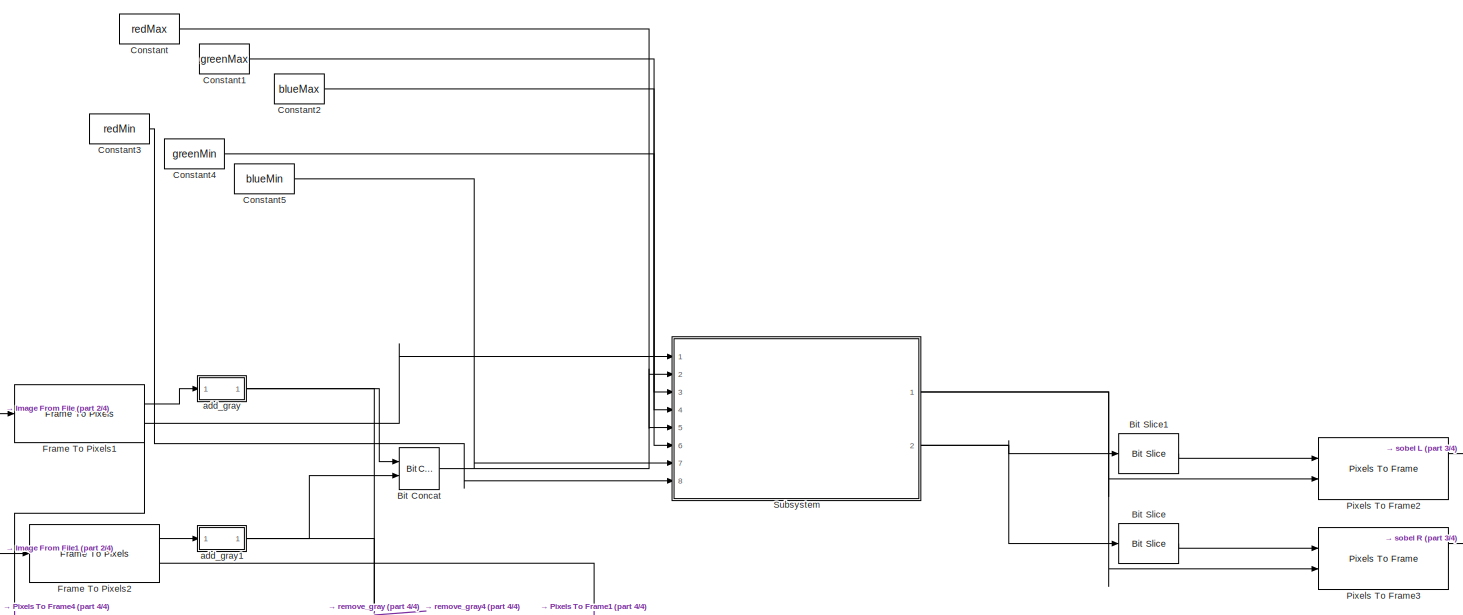
[diagram: root canvas - part 1/4, full width, top band]
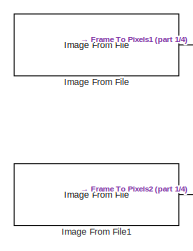
[diagram: root canvas - part 2/4, middle left region]
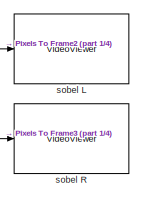
[diagram: root canvas - part 3/4, middle right region]
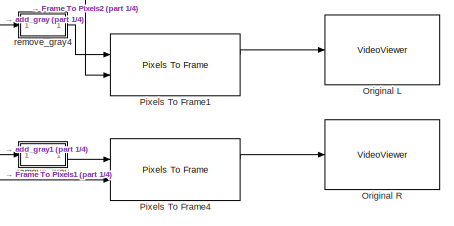
[diagram: root canvas - part 4/4, bottom center region]
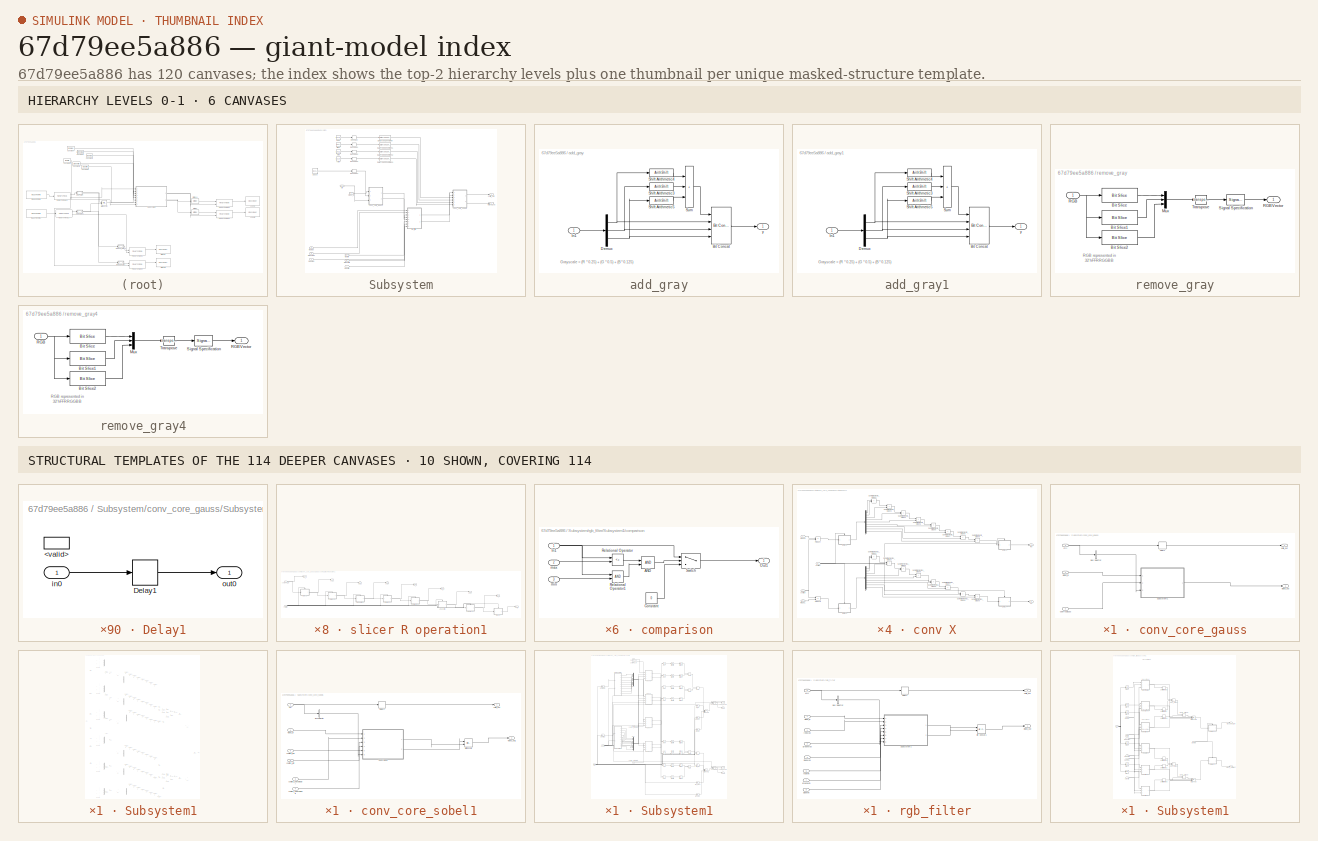
[diagram: thumbnail index - top-2 hierarchy levels (6 canvases) + 10 structural-template representatives of the remaining 114 canvases]
MODEL slx_67d79ee5a886
KIND model
CONFIG AbsTol = auto
CONFIG EnableMultiTasking = off
CONFIG FixedStep = auto
CONFIG MaxStep = auto
CONFIG MinStep = auto
CONFIG RelTol = 1e-3
CONFIG SampleTimeConstraint = Unconstrained
CONFIG SolverName = VariableStepAuto
CONFIG StartTime = 0.0
CONFIG StopTime = 10.0
BLOCK [Reference] Bit Concat  REF=hdlsllib/Logic and Bit
Operations/Bit Concat
  Ports = [2, 1]
  SourceBlock = hdlsllib/Logic and Bit\nOperations/Bit Concat
  SourceProductBaseCode = SL
  SourceType = Bit Concat
BLOCK [Reference] Bit Slice  REF=hdlsllib/Logic and Bit
Operations/Bit Slice
  Ports = [1, 1]
  SourceBlock = hdlsllib/Logic and Bit\nOperations/Bit Slice
  SourceProductBaseCode = SL
  SourceType = Bit Slice
BLOCK [Reference] Bit Slice1  REF=hdlsllib/Logic and Bit
Operations/Bit Slice
  Ports = [1, 1]
  SourceBlock = hdlsllib/Logic and Bit\nOperations/Bit Slice
  SourceProductBaseCode = SL
  SourceType = Bit Slice
BLOCK [Constant] Constant
  OutDataTypeStr = uint8
  SampleTime = -1
  Value = redMax
BLOCK [Constant] Constant1
  OutDataTypeStr = uint8
  SampleTime = -1
  Value = greenMax
BLOCK [Constant] Constant2
  OutDataTypeStr = uint8
  SampleTime = -1
  Value = blueMax
BLOCK [Constant] Constant3
  LockScale = on
  OutDataTypeStr = uint8
  SampleTime = -1
  Value = redMin
BLOCK [Constant] Constant4
  LockScale = on
  OutDataTypeStr = uint8
  SampleTime = -1
  Value = greenMin
BLOCK [Constant] Constant5
  LockScale = on
  OutDataTypeStr = uint8
  SampleTime = -1
  Value = blueMin
BLOCK [Reference] Frame To Pixels1  REF=visionhdlio/Frame To Pixels
  Ports = [1, 2]
  SourceBlock = visionhdlio/Frame To Pixels
  SourceProductBaseCode = VT
  SourceType = Frame To Pixels
BLOCK [Reference] Frame To Pixels2  REF=visionhdlio/Frame To Pixels
  Ports = [1, 2]
  SourceBlock = visionhdlio/Frame To Pixels
  SourceProductBaseCode = VT
  SourceType = Frame To Pixels
BLOCK [Reference] Image From File  REF=visionsources/Image From File
  Ports = [0, 1]
  SourceBlock = visionsources/Image From File
  SourceProductBaseCode = VP
  SourceType = Image From File
  Tag = vipblks_nd
BLOCK [Reference] Image From File1  REF=visionsources/Image From File
  Ports = [0, 1]
  SourceBlock = visionsources/Image From File
  SourceProductBaseCode = VP
  SourceType = Image From File
  Tag = vipblks_nd
BLOCK [VideoViewer] Original L
  FigPos = [949 630 562 322]
  Ports = [1]
  ScopeSpecificationString = vipscopes.VideoViewerScopeCfg('CurrentConfiguration', extmgr.ConfigurationSet(extmgr.Configuration('Core','General UI',true),extmgr.Configuration('Core','Source UI',true),extmgr.Configuration('Sources','WiredSimulink',true),extmgr.Configuration('Sources','Simulink',false),extmgr.Configuration('Sources','Workspace',false),extmgr.Configuration('Sources','File',false),extmgr.Configuration('Sources','...<+579ch>
  colormapValue = gray(256)
BLOCK [VideoViewer] Original R
  FigPos = [342 581 485 298]
  Ports = [1]
  ScopeSpecificationString = vipscopes.VideoViewerScopeCfg('CurrentConfiguration', extmgr.ConfigurationSet(extmgr.Configuration('Core','General UI',true),extmgr.Configuration('Core','Source UI',true),extmgr.Configuration('Sources','WiredSimulink',true),extmgr.Configuration('Sources','Simulink',false),extmgr.Configuration('Sources','Workspace',false),extmgr.Configuration('Sources','File',false),extmgr.Configuration('Sources','...<+608ch>
  colormapValue = gray(256)
BLOCK [Reference] Pixels To Frame1  REF=visionhdlio/Pixels To Frame
  Ports = [2, 2]
  SourceBlock = visionhdlio/Pixels To Frame
  SourceProductBaseCode = VT
  SourceType = Pixels To Frame
BLOCK [Reference] Pixels To Frame2  REF=visionhdlio/Pixels To Frame
  Ports = [2, 2]
  SourceBlock = visionhdlio/Pixels To Frame
  SourceProductBaseCode = VT
  SourceType = Pixels To Frame
BLOCK [Reference] Pixels To Frame3  REF=visionhdlio/Pixels To Frame
  Ports = [2, 2]
  SourceBlock = visionhdlio/Pixels To Frame
  SourceProductBaseCode = VT
  SourceType = Pixels To Frame
BLOCK [Reference] Pixels To Frame4  REF=visionhdlio/Pixels To Frame
  Ports = [2, 2]
  SourceBlock = visionhdlio/Pixels To Frame
  SourceProductBaseCode = VT
  SourceType = Pixels To Frame
BLOCK [SubSystem] Subsystem
  Ports = [8, 2]
  RequestExecContextInheritance = off
  TreatAsAtomicUnit = on
BLOCK [DataTypeConversion] Subsystem/Data Type Conversion
  OutDataTypeStr = int8
  RndMeth = Floor
  SaturateOnIntegerOverflow = off
BLOCK [DataTypeConversion] Subsystem/Data Type Conversion1
  OutDataTypeStr = int8
  RndMeth = Floor
  SaturateOnIntegerOverflow = off
BLOCK [DataTypeConversion] Subsystem/Data Type Conversion2
  OutDataTypeStr = int8
  RndMeth = Floor
  SaturateOnIntegerOverflow = off
BLOCK [DataTypeConversion] Subsystem/Data Type Conversion3
  OutDataTypeStr = int8
  RndMeth = Floor
  SaturateOnIntegerOverflow = off
BLOCK [Reshape] Subsystem/Reshape
  Ports = [1, 1]
BLOCK [Reshape] Subsystem/Reshape1
  Ports = [1, 1]
BLOCK [Reshape] Subsystem/Reshape2
  Ports = [1, 1]
BLOCK [Reshape] Subsystem/Reshape3
  Ports = [1, 1]
BLOCK [Reshape] Subsystem/Reshape4
  Ports = [1, 1]
BLOCK [Inport] Subsystem/blueMax
  OutDataTypeStr = uint8
  Port = 4
  PortDimensions = 1
  SampleTime = 2.77039007092199e-06
BLOCK [Inport] Subsystem/blueMin
  OutDataTypeStr = uint8
  Port = 7
  PortDimensions = 1
  SampleTime = 2.77039007092199e-06
BLOCK [SubSystem] Subsystem/conv_core_gauss
  Ports = [3, 2]
  RequestExecContextInheritance = off
BLOCK [BusSelector] Subsystem/conv_core_gauss/Bus Selector
  OutputSignals = valid
  Ports = [1, 1]
BLOCK [Delay] Subsystem/conv_core_gauss/Delay1
  InitialCondition = 0
  InputPortMap = u0
  Ports = [1, 1]
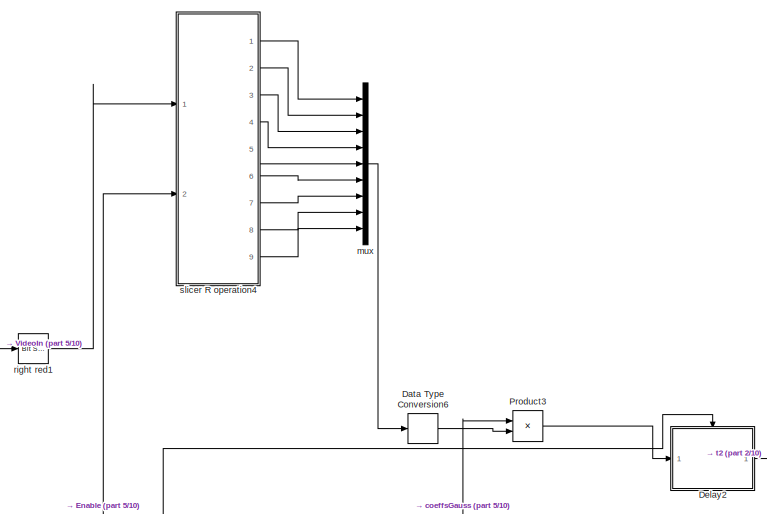
[diagram: Subsystem/conv_core_gauss/Subsystem1 - part 1/10, top left region]
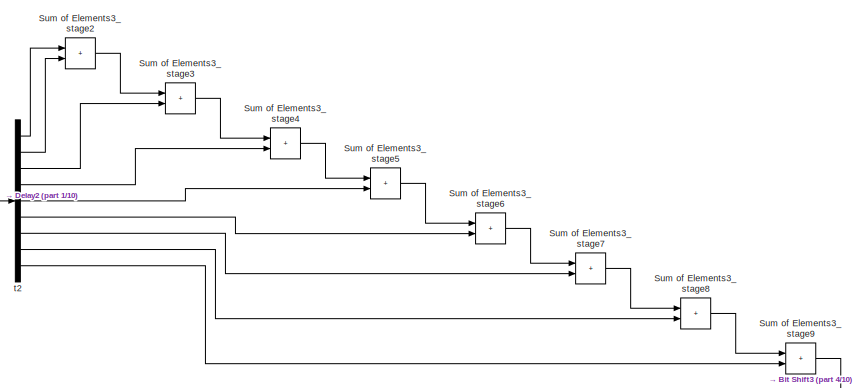
[diagram: Subsystem/conv_core_gauss/Subsystem1 - part 2/10, top center region]
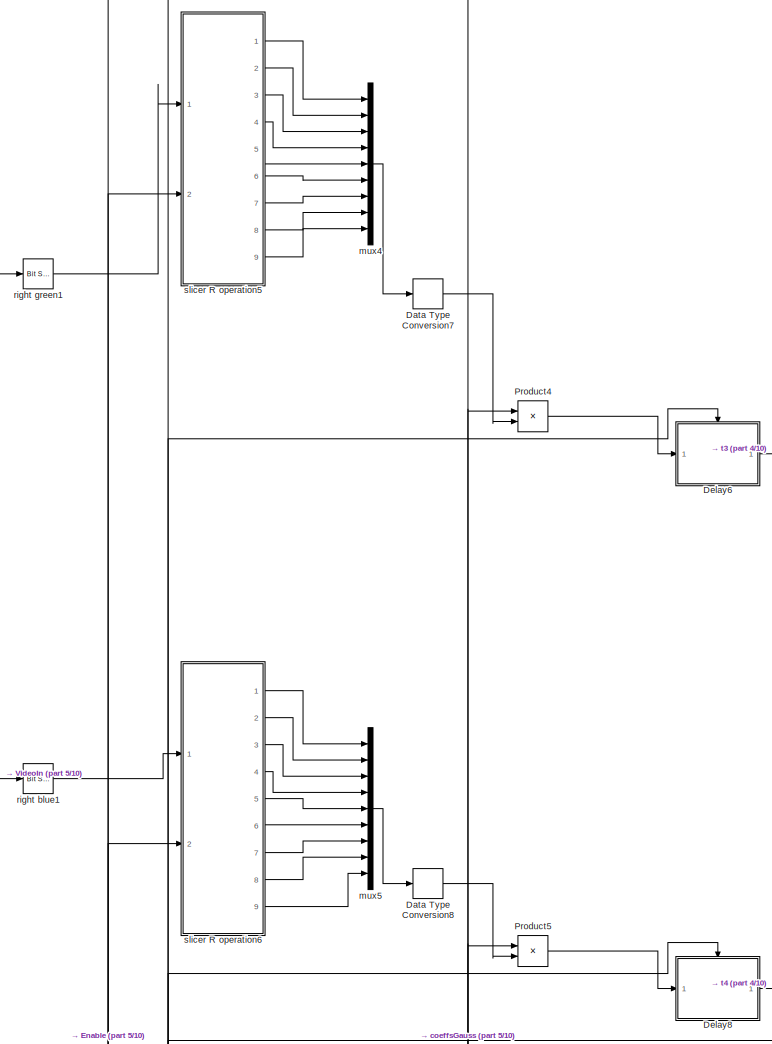
[diagram: Subsystem/conv_core_gauss/Subsystem1 - part 3/10, middle left region]
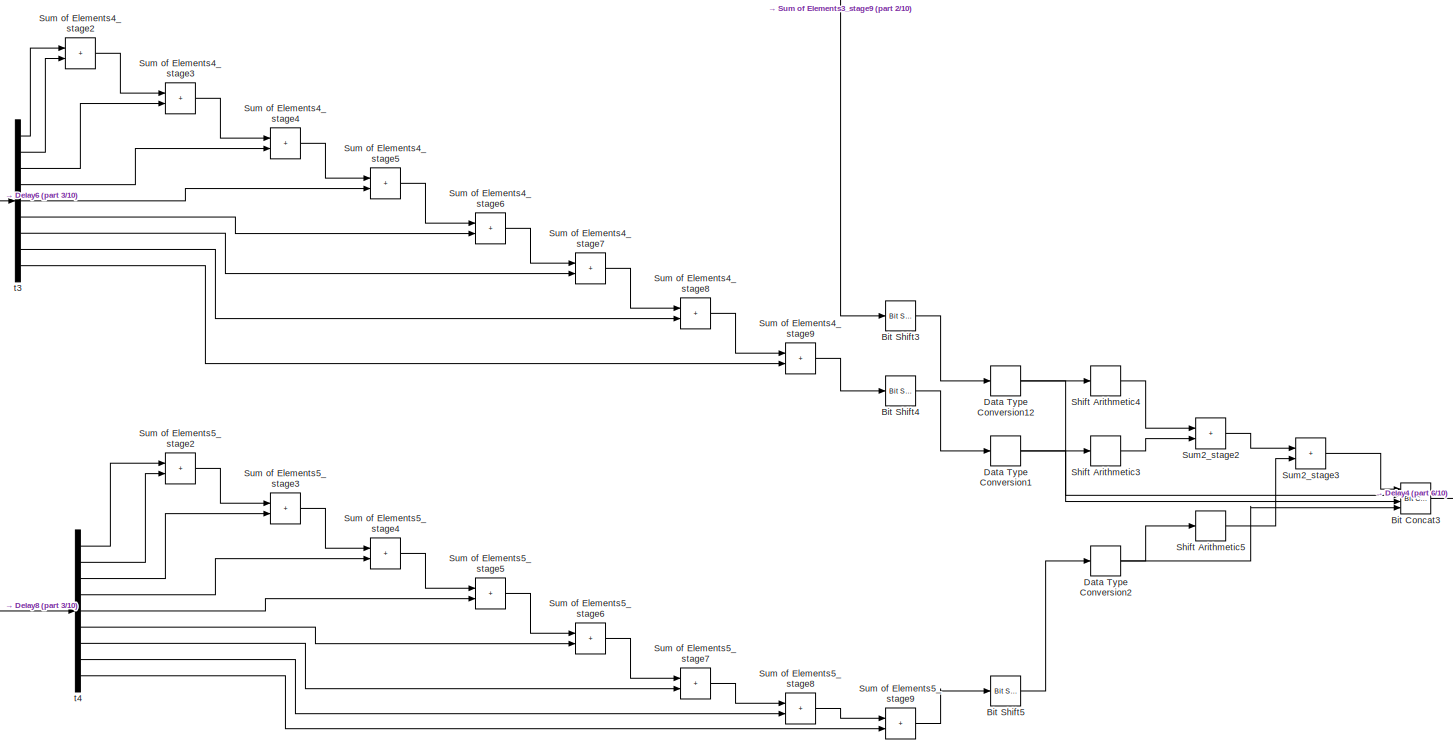
[diagram: Subsystem/conv_core_gauss/Subsystem1 - part 4/10, central region]
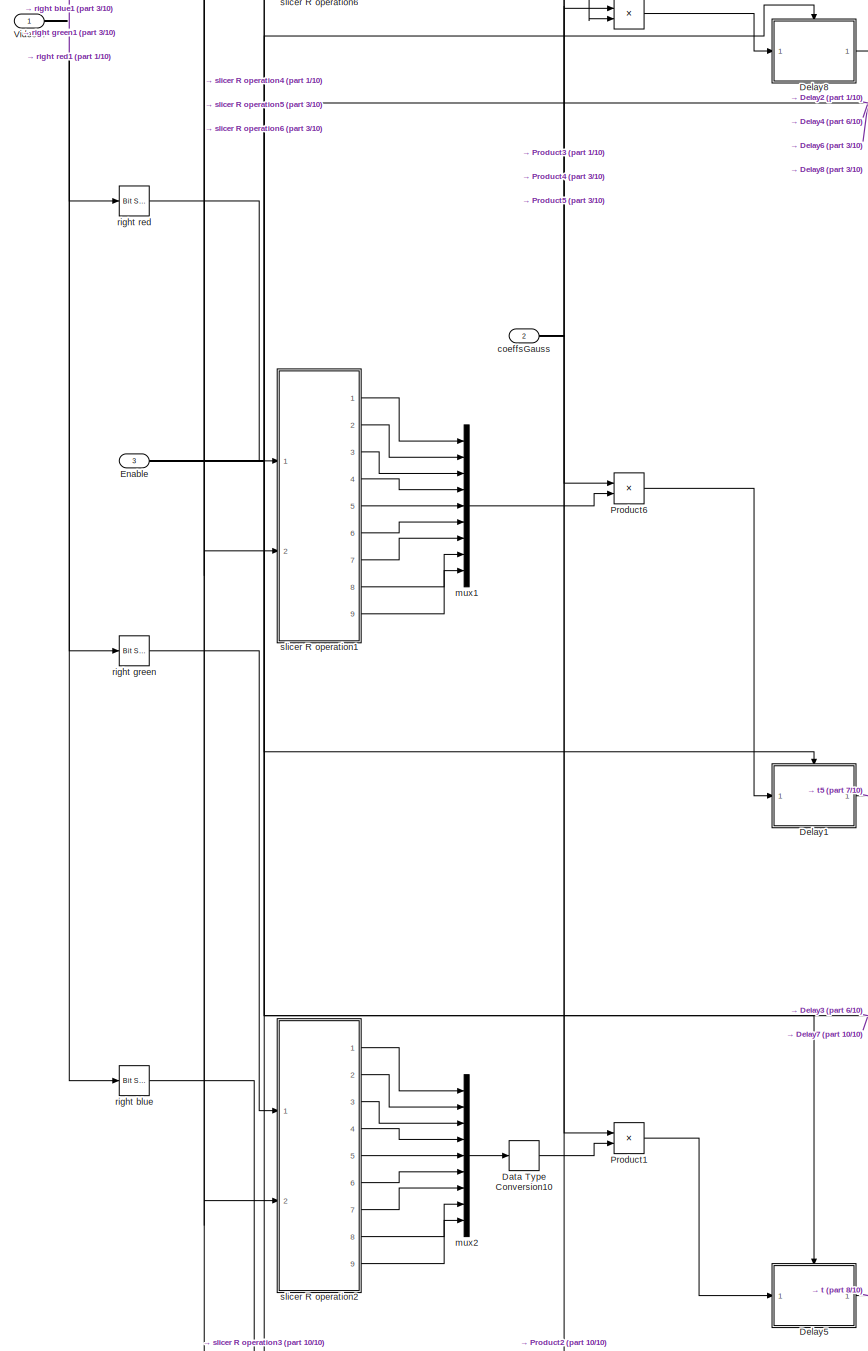
[diagram: Subsystem/conv_core_gauss/Subsystem1 - part 5/10, middle left region]
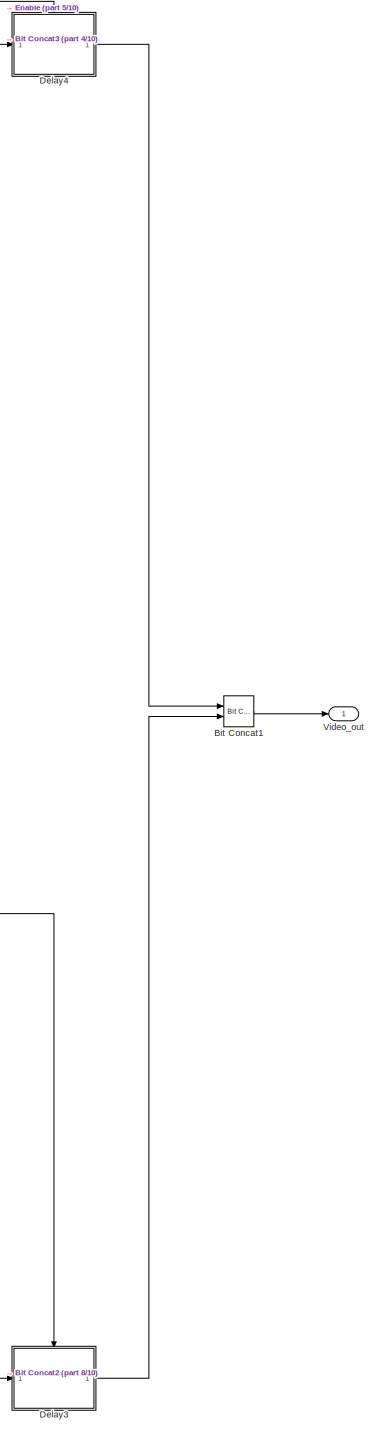
[diagram: Subsystem/conv_core_gauss/Subsystem1 - part 6/10, bottom right region]
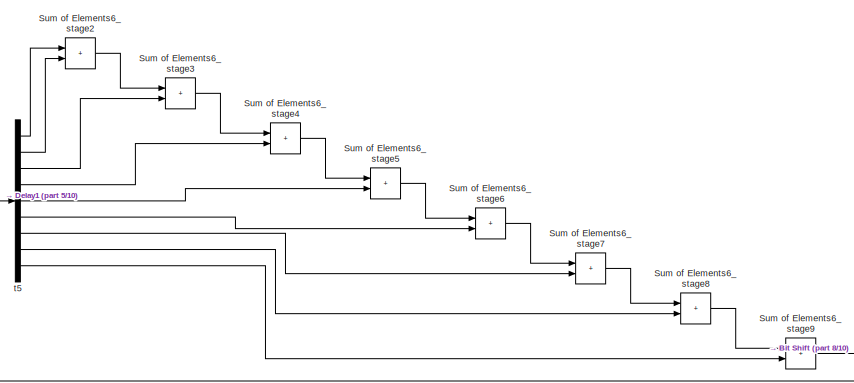
[diagram: Subsystem/conv_core_gauss/Subsystem1 - part 7/10, bottom center region]
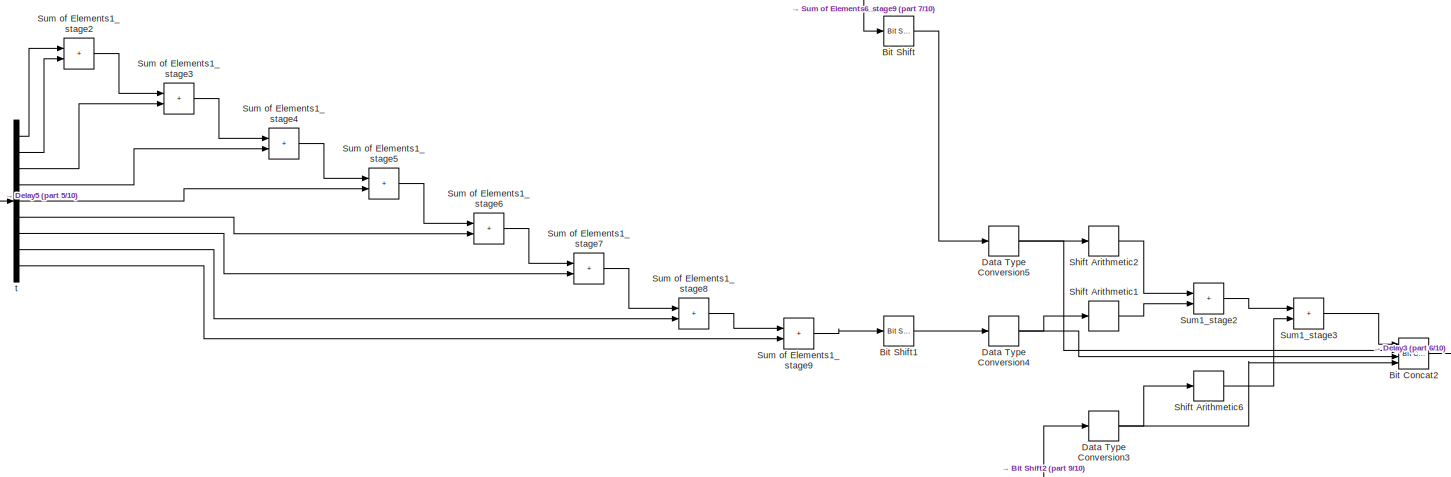
[diagram: Subsystem/conv_core_gauss/Subsystem1 - part 8/10, bottom center region]
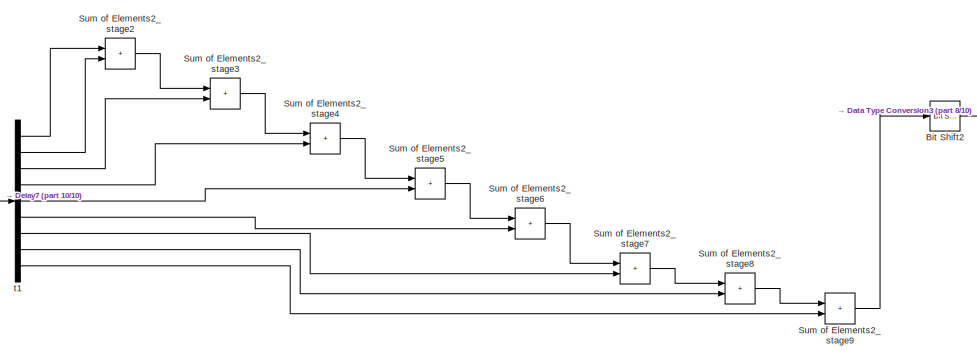
[diagram: Subsystem/conv_core_gauss/Subsystem1 - part 9/10, bottom center region]
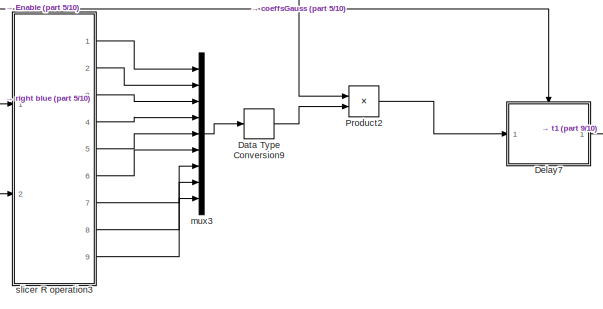
[diagram: Subsystem/conv_core_gauss/Subsystem1 - part 10/10, bottom left region]
BLOCK [SubSystem] Subsystem/conv_core_gauss/Subsystem1
  Ports = [3, 1]
  RequestExecContextInheritance = off
BLOCK [Reference] Subsystem/conv_core_gauss/Subsystem1/Bit Concat1  REF=hdlsllib/Logic and Bit
Operations/Bit Concat
  Ports = [2, 1]
  SourceBlock = hdlsllib/Logic and Bit\nOperations/Bit Concat
  SourceProductBaseCode = SL
  SourceType = Bit Concat
BLOCK [Reference] Subsystem/conv_core_gauss/Subsystem1/Bit Concat2  REF=hdlsllib/Logic and Bit
Operations/Bit Concat
  Ports = [4, 1]
  SourceBlock = hdlsllib/Logic and Bit\nOperations/Bit Concat
  SourceProductBaseCode = SL
  SourceType = Bit Concat
BLOCK [Reference] Subsystem/conv_core_gauss/Subsystem1/Bit Concat3  REF=hdlsllib/Logic and Bit
Operations/Bit Concat
  Ports = [4, 1]
  SourceBlock = hdlsllib/Logic and Bit\nOperations/Bit Concat
  SourceProductBaseCode = SL
  SourceType = Bit Concat
BLOCK [Reference] Subsystem/conv_core_gauss/Subsystem1/Bit Shift  REF=hdlsllib/Logic and Bit
Operations/Bit Shift
  Ports = [1, 1]
  SourceBlock = hdlsllib/Logic and Bit\nOperations/Bit Shift
  SourceProductBaseCode = SL
  SourceType = Bit Shift
BLOCK [Reference] Subsystem/conv_core_gauss/Subsystem1/Bit Shift1  REF=hdlsllib/Logic and Bit
Operations/Bit Shift
  Ports = [1, 1]
  SourceBlock = hdlsllib/Logic and Bit\nOperations/Bit Shift
  SourceProductBaseCode = SL
  SourceType = Bit Shift
BLOCK [Reference] Subsystem/conv_core_gauss/Subsystem1/Bit Shift2  REF=hdlsllib/Logic and Bit
Operations/Bit Shift
  Ports = [1, 1]
  SourceBlock = hdlsllib/Logic and Bit\nOperations/Bit Shift
  SourceProductBaseCode = SL
  SourceType = Bit Shift
BLOCK [Reference] Subsystem/conv_core_gauss/Subsystem1/Bit Shift3  REF=hdlsllib/Logic and Bit
Operations/Bit Shift
  Ports = [1, 1]
  SourceBlock = hdlsllib/Logic and Bit\nOperations/Bit Shift
  SourceProductBaseCode = SL
  SourceType = Bit Shift
BLOCK [Reference] Subsystem/conv_core_gauss/Subsystem1/Bit Shift4  REF=hdlsllib/Logic and Bit
Operations/Bit Shift
  Ports = [1, 1]
  SourceBlock = hdlsllib/Logic and Bit\nOperations/Bit Shift
  SourceProductBaseCode = SL
  SourceType = Bit Shift
BLOCK [Reference] Subsystem/conv_core_gauss/Subsystem1/Bit Shift5  REF=hdlsllib/Logic and Bit
Operations/Bit Shift
  Ports = [1, 1]
  SourceBlock = hdlsllib/Logic and Bit\nOperations/Bit Shift
  SourceProductBaseCode = SL
  SourceType = Bit Shift
BLOCK [DataTypeConversion] Subsystem/conv_core_gauss/Subsystem1/Data Type Conversion1
  OutDataTypeStr = uint8
  RndMeth = Floor
  SampleTime = 2.77039007092199e-06
  SaturateOnIntegerOverflow = off
BLOCK [DataTypeConversion] Subsystem/conv_core_gauss/Subsystem1/Data Type Conversion10
  OutDataTypeStr = uint8
  RndMeth = Floor
  SampleTime = 2.77039007092199e-06
  SaturateOnIntegerOverflow = off
BLOCK [DataTypeConversion] Subsystem/conv_core_gauss/Subsystem1/Data Type Conversion12
  OutDataTypeStr = uint8
  RndMeth = Floor
  SampleTime = 2.77039007092199e-06
  SaturateOnIntegerOverflow = off
BLOCK [DataTypeConversion] Subsystem/conv_core_gauss/Subsystem1/Data Type Conversion2
  OutDataTypeStr = uint8
  RndMeth = Floor
  SampleTime = 2.77039007092199e-06
  SaturateOnIntegerOverflow = off
BLOCK [DataTypeConversion] Subsystem/conv_core_gauss/Subsystem1/Data Type Conversion3
  OutDataTypeStr = uint8
  RndMeth = Floor
  SampleTime = 2.77039007092199e-06
  SaturateOnIntegerOverflow = off
BLOCK [DataTypeConversion] Subsystem/conv_core_gauss/Subsystem1/Data Type Conversion4
  OutDataTypeStr = uint8
  RndMeth = Floor
  SampleTime = 2.77039007092199e-06
  SaturateOnIntegerOverflow = off
BLOCK [DataTypeConversion] Subsystem/conv_core_gauss/Subsystem1/Data Type Conversion5
  OutDataTypeStr = uint8
  RndMeth = Floor
  SampleTime = 2.77039007092199e-06
  SaturateOnIntegerOverflow = off
BLOCK [DataTypeConversion] Subsystem/conv_core_gauss/Subsystem1/Data Type Conversion6
  OutDataTypeStr = uint8
  RndMeth = Floor
  SampleTime = 2.77039007092199e-06
  SaturateOnIntegerOverflow = off
BLOCK [DataTypeConversion] Subsystem/conv_core_gauss/Subsystem1/Data Type Conversion7
  OutDataTypeStr = uint8
  RndMeth = Floor
  SampleTime = 2.77039007092199e-06
  SaturateOnIntegerOverflow = off
BLOCK [DataTypeConversion] Subsystem/conv_core_gauss/Subsystem1/Data Type Conversion8
  OutDataTypeStr = uint8
  RndMeth = Floor
  SampleTime = 2.77039007092199e-06
  SaturateOnIntegerOverflow = off
BLOCK [DataTypeConversion] Subsystem/conv_core_gauss/Subsystem1/Data Type Conversion9
  OutDataTypeStr = uint8
  RndMeth = Floor
  SampleTime = 2.77039007092199e-06
  SaturateOnIntegerOverflow = off
BLOCK [SubSystem] Subsystem/conv_core_gauss/Subsystem1/Delay1
  MinAlgLoopOccurrences = on
  Ports = [1, 1, 1]
  RequestExecContextInheritance = off
BLOCK [EnablePort] Subsystem/conv_core_gauss/Subsystem1/Delay1/<valid>
  OutDataTypeStr = boolean
  Ports = []
BLOCK [Delay] Subsystem/conv_core_gauss/Subsystem1/Delay1/Delay1
  DelayLength = double(1)
  InitialCondition = 0
  InputPortMap = u0
  Ports = [1, 1]
BLOCK [Inport] Subsystem/conv_core_gauss/Subsystem1/Delay1/in0
  OutDataTypeStr = fixdt(0,16,0,'DataTypeOverride', 'Off')
  PortDimensions = [9]
  SampleTime = 2.77039007092199e-06
BLOCK [Outport] Subsystem/conv_core_gauss/Subsystem1/Delay1/out0
  InitialOutput = 0
  OutDataTypeStr = uint16
  PortDimensions = [9]
  SampleTime = 2.77039007092199e-06
BLOCK [SubSystem] Subsystem/conv_core_gauss/Subsystem1/Delay2
  MinAlgLoopOccurrences = on
  Ports = [1, 1, 1]
  RequestExecContextInheritance = off
BLOCK [EnablePort] Subsystem/conv_core_gauss/Subsystem1/Delay2/<valid>
  OutDataTypeStr = boolean
  Ports = []
BLOCK [Delay] Subsystem/conv_core_gauss/Subsystem1/Delay2/Delay2
  DelayLength = double(1)
  InitialCondition = 0
  InputPortMap = u0
  Ports = [1, 1]
BLOCK [Inport] Subsystem/conv_core_gauss/Subsystem1/Delay2/in0
  OutDataTypeStr = fixdt(0,16,0,'DataTypeOverride', 'Off')
  PortDimensions = [9]
  SampleTime = 2.77039007092199e-06
BLOCK [Outport] Subsystem/conv_core_gauss/Subsystem1/Delay2/out0
  InitialOutput = 0
  OutDataTypeStr = uint16
  PortDimensions = [9]
  SampleTime = 2.77039007092199e-06
BLOCK [SubSystem] Subsystem/conv_core_gauss/Subsystem1/Delay3
  MinAlgLoopOccurrences = on
  Ports = [1, 1, 1]
  RequestExecContextInheritance = off
BLOCK [EnablePort] Subsystem/conv_core_gauss/Subsystem1/Delay3/<valid>
  OutDataTypeStr = boolean
  Ports = []
BLOCK [Delay] Subsystem/conv_core_gauss/Subsystem1/Delay3/Delay3
  DelayLength = double(1)
  InitialCondition = 0
  InputPortMap = u0
  Ports = [1, 1]
BLOCK [Inport] Subsystem/conv_core_gauss/Subsystem1/Delay3/in0
  OutDataTypeStr = fixdt(0,32,0,'DataTypeOverride', 'Off')
  SampleTime = 2.77039007092199e-06
BLOCK [Outport] Subsystem/conv_core_gauss/Subsystem1/Delay3/out0
  InitialOutput = 0
  OutDataTypeStr = uint32
  SampleTime = 2.77039007092199e-06
BLOCK [SubSystem] Subsystem/conv_core_gauss/Subsystem1/Delay4
  MinAlgLoopOccurrences = on
  Ports = [1, 1, 1]
  RequestExecContextInheritance = off
BLOCK [EnablePort] Subsystem/conv_core_gauss/Subsystem1/Delay4/<valid>
  OutDataTypeStr = boolean
  Ports = []
BLOCK [Delay] Subsystem/conv_core_gauss/Subsystem1/Delay4/Delay4
  DelayLength = double(1)
  InitialCondition = 0
  InputPortMap = u0
  Ports = [1, 1]
BLOCK [Inport] Subsystem/conv_core_gauss/Subsystem1/Delay4/in0
  OutDataTypeStr = fixdt(0,32,0,'DataTypeOverride', 'Off')
  SampleTime = 2.77039007092199e-06
BLOCK [Outport] Subsystem/conv_core_gauss/Subsystem1/Delay4/out0
  InitialOutput = 0
  OutDataTypeStr = uint32
  SampleTime = 2.77039007092199e-06
BLOCK [SubSystem] Subsystem/conv_core_gauss/Subsystem1/Delay5
  MinAlgLoopOccurrences = on
  Ports = [1, 1, 1]
  RequestExecContextInheritance = off
BLOCK [EnablePort] Subsystem/conv_core_gauss/Subsystem1/Delay5/<valid>
  OutDataTypeStr = boolean
  Ports = []
BLOCK [Delay] Subsystem/conv_core_gauss/Subsystem1/Delay5/Delay5
  DelayLength = double(1)
  InitialCondition = 0
  InputPortMap = u0
  Ports = [1, 1]
BLOCK [Inport] Subsystem/conv_core_gauss/Subsystem1/Delay5/in0
  OutDataTypeStr = fixdt(0,16,0,'DataTypeOverride', 'Off')
  PortDimensions = [9]
  SampleTime = 2.77039007092199e-06
BLOCK [Outport] Subsystem/conv_core_gauss/Subsystem1/Delay5/out0
  InitialOutput = 0
  OutDataTypeStr = uint16
  PortDimensions = [9]
  SampleTime = 2.77039007092199e-06
BLOCK [SubSystem] Subsystem/conv_core_gauss/Subsystem1/Delay6
  MinAlgLoopOccurrences = on
  Ports = [1, 1, 1]
  RequestExecContextInheritance = off
BLOCK [EnablePort] Subsystem/conv_core_gauss/Subsystem1/Delay6/<valid>
  OutDataTypeStr = boolean
  Ports = []
BLOCK [Delay] Subsystem/conv_core_gauss/Subsystem1/Delay6/Delay6
  DelayLength = double(1)
  InitialCondition = 0
  InputPortMap = u0
  Ports = [1, 1]
BLOCK [Inport] Subsystem/conv_core_gauss/Subsystem1/Delay6/in0
  OutDataTypeStr = fixdt(0,16,0,'DataTypeOverride', 'Off')
  PortDimensions = [9]
  SampleTime = 2.77039007092199e-06
BLOCK [Outport] Subsystem/conv_core_gauss/Subsystem1/Delay6/out0
  InitialOutput = 0
  OutDataTypeStr = uint16
  PortDimensions = [9]
  SampleTime = 2.77039007092199e-06
BLOCK [SubSystem] Subsystem/conv_core_gauss/Subsystem1/Delay7
  MinAlgLoopOccurrences = on
  Ports = [1, 1, 1]
  RequestExecContextInheritance = off
BLOCK [EnablePort] Subsystem/conv_core_gauss/Subsystem1/Delay7/<valid>
  OutDataTypeStr = boolean
  Ports = []
BLOCK [Delay] Subsystem/conv_core_gauss/Subsystem1/Delay7/Delay7
  DelayLength = double(1)
  InitialCondition = 0
  InputPortMap = u0
  Ports = [1, 1]
BLOCK [Inport] Subsystem/conv_core_gauss/Subsystem1/Delay7/in0
  OutDataTypeStr = fixdt(0,16,0,'DataTypeOverride', 'Off')
  PortDimensions = [9]
  SampleTime = 2.77039007092199e-06
BLOCK [Outport] Subsystem/conv_core_gauss/Subsystem1/Delay7/out0
  InitialOutput = 0
  OutDataTypeStr = uint16
  PortDimensions = [9]
  SampleTime = 2.77039007092199e-06
BLOCK [SubSystem] Subsystem/conv_core_gauss/Subsystem1/Delay8
  MinAlgLoopOccurrences = on
  Ports = [1, 1, 1]
  RequestExecContextInheritance = off
BLOCK [EnablePort] Subsystem/conv_core_gauss/Subsystem1/Delay8/<valid>
  OutDataTypeStr = boolean
  Ports = []
BLOCK [Delay] Subsystem/conv_core_gauss/Subsystem1/Delay8/Delay8
  DelayLength = double(1)
  InitialCondition = 0
  InputPortMap = u0
  Ports = [1, 1]
BLOCK [Inport] Subsystem/conv_core_gauss/Subsystem1/Delay8/in0
  OutDataTypeStr = fixdt(0,16,0,'DataTypeOverride', 'Off')
  PortDimensions = [9]
  SampleTime = 2.77039007092199e-06
BLOCK [Outport] Subsystem/conv_core_gauss/Subsystem1/Delay8/out0
  InitialOutput = 0
  OutDataTypeStr = uint16
  PortDimensions = [9]
  SampleTime = 2.77039007092199e-06
BLOCK [Inport] Subsystem/conv_core_gauss/Subsystem1/Enable
  OutDataTypeStr = boolean
  Port = 3
  SampleTime = 2.77039007092199e-06
BLOCK [Product] Subsystem/conv_core_gauss/Subsystem1/Product1
  Inputs = **
  OutDataTypeStr = uint16
  Ports = [2, 1]
  SampleTime = 2.77039007092199e-06
  SaturateOnIntegerOverflow = on
BLOCK [Product] Subsystem/conv_core_gauss/Subsystem1/Product2
  Inputs = **
  OutDataTypeStr = uint16
  Ports = [2, 1]
  SampleTime = 2.77039007092199e-06
  SaturateOnIntegerOverflow = on
BLOCK [Product] Subsystem/conv_core_gauss/Subsystem1/Product3
  Inputs = **
  OutDataTypeStr = uint16
  Ports = [2, 1]
  SampleTime = 2.77039007092199e-06
  SaturateOnIntegerOverflow = on
BLOCK [Product] Subsystem/conv_core_gauss/Subsystem1/Product4
  Inputs = **
  OutDataTypeStr = uint16
  Ports = [2, 1]
  SampleTime = 2.77039007092199e-06
  SaturateOnIntegerOverflow = on
BLOCK [Product] Subsystem/conv_core_gauss/Subsystem1/Product5
  Inputs = **
  OutDataTypeStr = uint16
  Ports = [2, 1]
  SampleTime = 2.77039007092199e-06
  SaturateOnIntegerOverflow = on
BLOCK [Product] Subsystem/conv_core_gauss/Subsystem1/Product6
  Inputs = **
  OutDataTypeStr = uint16
  Ports = [2, 1]
  SampleTime = 2.77039007092199e-06
  SaturateOnIntegerOverflow = on
BLOCK [ArithShift] Subsystem/conv_core_gauss/Subsystem1/Shift Arithmetic1
  BinPtShiftNumber = double(0)
  BitShiftNumber = 1
  InputPortMap = u0
  Ports = [1, 1]
BLOCK [ArithShift] Subsystem/conv_core_gauss/Subsystem1/Shift Arithmetic2
  BinPtShiftNumber = double(0)
  BitShiftNumber = 2
  InputPortMap = u0
  Ports = [1, 1]
BLOCK [ArithShift] Subsystem/conv_core_gauss/Subsystem1/Shift Arithmetic3
  BinPtShiftNumber = double(0)
  BitShiftNumber = 1
  InputPortMap = u0
  Ports = [1, 1]
BLOCK [ArithShift] Subsystem/conv_core_gauss/Subsystem1/Shift Arithmetic4
  BinPtShiftNumber = double(0)
  BitShiftNumber = 2
  InputPortMap = u0
  Ports = [1, 1]
BLOCK [ArithShift] Subsystem/conv_core_gauss/Subsystem1/Shift Arithmetic5
  BinPtShiftNumber = double(0)
  BitShiftNumber = 3
  InputPortMap = u0
  Ports = [1, 1]
BLOCK [ArithShift] Subsystem/conv_core_gauss/Subsystem1/Shift Arithmetic6
  BinPtShiftNumber = double(0)
  BitShiftNumber = 3
  InputPortMap = u0
  Ports = [1, 1]
BLOCK [Sum] Subsystem/conv_core_gauss/Subsystem1/Sum of Elements1_stage2
  AccumDataTypeStr = uint32
  IconShape = rectangular
  OutDataTypeStr = uint32
  Ports = [2, 1]
  SampleTime = 2.77039007092199e-06
  SaturateOnIntegerOverflow = on
BLOCK [Sum] Subsystem/conv_core_gauss/Subsystem1/Sum of Elements1_stage3
  AccumDataTypeStr = uint32
  IconShape = rectangular
  OutDataTypeStr = uint32
  Ports = [2, 1]
  SampleTime = 2.77039007092199e-06
  SaturateOnIntegerOverflow = on
BLOCK [Sum] Subsystem/conv_core_gauss/Subsystem1/Sum of Elements1_stage4
  AccumDataTypeStr = uint32
  IconShape = rectangular
  OutDataTypeStr = uint32
  Ports = [2, 1]
  SampleTime = 2.77039007092199e-06
  SaturateOnIntegerOverflow = on
BLOCK [Sum] Subsystem/conv_core_gauss/Subsystem1/Sum of Elements1_stage5
  AccumDataTypeStr = uint32
  IconShape = rectangular
  OutDataTypeStr = uint32
  Ports = [2, 1]
  SampleTime = 2.77039007092199e-06
  SaturateOnIntegerOverflow = on
BLOCK [Sum] Subsystem/conv_core_gauss/Subsystem1/Sum of Elements1_stage6
  AccumDataTypeStr = uint32
  IconShape = rectangular
  OutDataTypeStr = uint32
  Ports = [2, 1]
  SampleTime = 2.77039007092199e-06
  SaturateOnIntegerOverflow = on
BLOCK [Sum] Subsystem/conv_core_gauss/Subsystem1/Sum of Elements1_stage7
  AccumDataTypeStr = uint32
  IconShape = rectangular
  OutDataTypeStr = uint32
  Ports = [2, 1]
  SampleTime = 2.77039007092199e-06
  SaturateOnIntegerOverflow = on
BLOCK [Sum] Subsystem/conv_core_gauss/Subsystem1/Sum of Elements1_stage8
  AccumDataTypeStr = uint32
  IconShape = rectangular
  OutDataTypeStr = uint32
  Ports = [2, 1]
  SampleTime = 2.77039007092199e-06
  SaturateOnIntegerOverflow = on
BLOCK [Sum] Subsystem/conv_core_gauss/Subsystem1/Sum of Elements1_stage9
  AccumDataTypeStr = uint32
  IconShape = rectangular
  OutDataTypeStr = uint32
  Ports = [2, 1]
  SampleTime = 2.77039007092199e-06
  SaturateOnIntegerOverflow = on
BLOCK [Sum] Subsystem/conv_core_gauss/Subsystem1/Sum of Elements2_stage2
  AccumDataTypeStr = uint32
  IconShape = rectangular
  OutDataTypeStr = uint32
  Ports = [2, 1]
  SampleTime = 2.77039007092199e-06
  SaturateOnIntegerOverflow = on
BLOCK [Sum] Subsystem/conv_core_gauss/Subsystem1/Sum of Elements2_stage3
  AccumDataTypeStr = uint32
  IconShape = rectangular
  OutDataTypeStr = uint32
  Ports = [2, 1]
  SampleTime = 2.77039007092199e-06
  SaturateOnIntegerOverflow = on
BLOCK [Sum] Subsystem/conv_core_gauss/Subsystem1/Sum of Elements2_stage4
  AccumDataTypeStr = uint32
  IconShape = rectangular
  OutDataTypeStr = uint32
  Ports = [2, 1]
  SampleTime = 2.77039007092199e-06
  SaturateOnIntegerOverflow = on
BLOCK [Sum] Subsystem/conv_core_gauss/Subsystem1/Sum of Elements2_stage5
  AccumDataTypeStr = uint32
  IconShape = rectangular
  OutDataTypeStr = uint32
  Ports = [2, 1]
  SampleTime = 2.77039007092199e-06
  SaturateOnIntegerOverflow = on
BLOCK [Sum] Subsystem/conv_core_gauss/Subsystem1/Sum of Elements2_stage6
  AccumDataTypeStr = uint32
  IconShape = rectangular
  OutDataTypeStr = uint32
  Ports = [2, 1]
  SampleTime = 2.77039007092199e-06
  SaturateOnIntegerOverflow = on
BLOCK [Sum] Subsystem/conv_core_gauss/Subsystem1/Sum of Elements2_stage7
  AccumDataTypeStr = uint32
  IconShape = rectangular
  OutDataTypeStr = uint32
  Ports = [2, 1]
  SampleTime = 2.77039007092199e-06
  SaturateOnIntegerOverflow = on
BLOCK [Sum] Subsystem/conv_core_gauss/Subsystem1/Sum of Elements2_stage8
  AccumDataTypeStr = uint32
  IconShape = rectangular
  OutDataTypeStr = uint32
  Ports = [2, 1]
  SampleTime = 2.77039007092199e-06
  SaturateOnIntegerOverflow = on
BLOCK [Sum] Subsystem/conv_core_gauss/Subsystem1/Sum of Elements2_stage9
  AccumDataTypeStr = uint32
  IconShape = rectangular
  OutDataTypeStr = uint32
  Ports = [2, 1]
  SampleTime = 2.77039007092199e-06
  SaturateOnIntegerOverflow = on
BLOCK [Sum] Subsystem/conv_core_gauss/Subsystem1/Sum of Elements3_stage2
  AccumDataTypeStr = uint32
  IconShape = rectangular
  OutDataTypeStr = uint32
  Ports = [2, 1]
  SampleTime = 2.77039007092199e-06
  SaturateOnIntegerOverflow = on
BLOCK [Sum] Subsystem/conv_core_gauss/Subsystem1/Sum of Elements3_stage3
  AccumDataTypeStr = uint32
  IconShape = rectangular
  OutDataTypeStr = uint32
  Ports = [2, 1]
  SampleTime = 2.77039007092199e-06
  SaturateOnIntegerOverflow = on
BLOCK [Sum] Subsystem/conv_core_gauss/Subsystem1/Sum of Elements3_stage4
  AccumDataTypeStr = uint32
  IconShape = rectangular
  OutDataTypeStr = uint32
  Ports = [2, 1]
  SampleTime = 2.77039007092199e-06
  SaturateOnIntegerOverflow = on
BLOCK [Sum] Subsystem/conv_core_gauss/Subsystem1/Sum of Elements3_stage5
  AccumDataTypeStr = uint32
  IconShape = rectangular
  OutDataTypeStr = uint32
  Ports = [2, 1]
  SampleTime = 2.77039007092199e-06
  SaturateOnIntegerOverflow = on
BLOCK [Sum] Subsystem/conv_core_gauss/Subsystem1/Sum of Elements3_stage6
  AccumDataTypeStr = uint32
  IconShape = rectangular
  OutDataTypeStr = uint32
  Ports = [2, 1]
  SampleTime = 2.77039007092199e-06
  SaturateOnIntegerOverflow = on
BLOCK [Sum] Subsystem/conv_core_gauss/Subsystem1/Sum of Elements3_stage7
  AccumDataTypeStr = uint32
  IconShape = rectangular
  OutDataTypeStr = uint32
  Ports = [2, 1]
  SampleTime = 2.77039007092199e-06
  SaturateOnIntegerOverflow = on
BLOCK [Sum] Subsystem/conv_core_gauss/Subsystem1/Sum of Elements3_stage8
  AccumDataTypeStr = uint32
  IconShape = rectangular
  OutDataTypeStr = uint32
  Ports = [2, 1]
  SampleTime = 2.77039007092199e-06
  SaturateOnIntegerOverflow = on
BLOCK [Sum] Subsystem/conv_core_gauss/Subsystem1/Sum of Elements3_stage9
  AccumDataTypeStr = uint32
  IconShape = rectangular
  OutDataTypeStr = uint32
  Ports = [2, 1]
  SampleTime = 2.77039007092199e-06
  SaturateOnIntegerOverflow = on
BLOCK [Sum] Subsystem/conv_core_gauss/Subsystem1/Sum of Elements4_stage2
  AccumDataTypeStr = uint32
  IconShape = rectangular
  OutDataTypeStr = uint32
  Ports = [2, 1]
  SampleTime = 2.77039007092199e-06
  SaturateOnIntegerOverflow = on
BLOCK [Sum] Subsystem/conv_core_gauss/Subsystem1/Sum of Elements4_stage3
  AccumDataTypeStr = uint32
  IconShape = rectangular
  OutDataTypeStr = uint32
  Ports = [2, 1]
  SampleTime = 2.77039007092199e-06
  SaturateOnIntegerOverflow = on
BLOCK [Sum] Subsystem/conv_core_gauss/Subsystem1/Sum of Elements4_stage4
  AccumDataTypeStr = uint32
  IconShape = rectangular
  OutDataTypeStr = uint32
  Ports = [2, 1]
  SampleTime = 2.77039007092199e-06
  SaturateOnIntegerOverflow = on
BLOCK [Sum] Subsystem/conv_core_gauss/Subsystem1/Sum of Elements4_stage5
  AccumDataTypeStr = uint32
  IconShape = rectangular
  OutDataTypeStr = uint32
  Ports = [2, 1]
  SampleTime = 2.77039007092199e-06
  SaturateOnIntegerOverflow = on
BLOCK [Sum] Subsystem/conv_core_gauss/Subsystem1/Sum of Elements4_stage6
  AccumDataTypeStr = uint32
  IconShape = rectangular
  OutDataTypeStr = uint32
  Ports = [2, 1]
  SampleTime = 2.77039007092199e-06
  SaturateOnIntegerOverflow = on
BLOCK [Sum] Subsystem/conv_core_gauss/Subsystem1/Sum of Elements4_stage7
  AccumDataTypeStr = uint32
  IconShape = rectangular
  OutDataTypeStr = uint32
  Ports = [2, 1]
  SampleTime = 2.77039007092199e-06
  SaturateOnIntegerOverflow = on
BLOCK [Sum] Subsystem/conv_core_gauss/Subsystem1/Sum of Elements4_stage8
  AccumDataTypeStr = uint32
  IconShape = rectangular
  OutDataTypeStr = uint32
  Ports = [2, 1]
  SampleTime = 2.77039007092199e-06
  SaturateOnIntegerOverflow = on
BLOCK [Sum] Subsystem/conv_core_gauss/Subsystem1/Sum of Elements4_stage9
  AccumDataTypeStr = uint32
  IconShape = rectangular
  OutDataTypeStr = uint32
  Ports = [2, 1]
  SampleTime = 2.77039007092199e-06
  SaturateOnIntegerOverflow = on
BLOCK [Sum] Subsystem/conv_core_gauss/Subsystem1/Sum of Elements5_stage2
  AccumDataTypeStr = uint32
  IconShape = rectangular
  OutDataTypeStr = uint32
  Ports = [2, 1]
  SampleTime = 2.77039007092199e-06
  SaturateOnIntegerOverflow = on
BLOCK [Sum] Subsystem/conv_core_gauss/Subsystem1/Sum of Elements5_stage3
  AccumDataTypeStr = uint32
  IconShape = rectangular
  OutDataTypeStr = uint32
  Ports = [2, 1]
  SampleTime = 2.77039007092199e-06
  SaturateOnIntegerOverflow = on
BLOCK [Sum] Subsystem/conv_core_gauss/Subsystem1/Sum of Elements5_stage4
  AccumDataTypeStr = uint32
  IconShape = rectangular
  OutDataTypeStr = uint32
  Ports = [2, 1]
  SampleTime = 2.77039007092199e-06
  SaturateOnIntegerOverflow = on
BLOCK [Sum] Subsystem/conv_core_gauss/Subsystem1/Sum of Elements5_stage5
  AccumDataTypeStr = uint32
  IconShape = rectangular
  OutDataTypeStr = uint32
  Ports = [2, 1]
  SampleTime = 2.77039007092199e-06
  SaturateOnIntegerOverflow = on
BLOCK [Sum] Subsystem/conv_core_gauss/Subsystem1/Sum of Elements5_stage6
  AccumDataTypeStr = uint32
  IconShape = rectangular
  OutDataTypeStr = uint32
  Ports = [2, 1]
  SampleTime = 2.77039007092199e-06
  SaturateOnIntegerOverflow = on
BLOCK [Sum] Subsystem/conv_core_gauss/Subsystem1/Sum of Elements5_stage7
  AccumDataTypeStr = uint32
  IconShape = rectangular
  OutDataTypeStr = uint32
  Ports = [2, 1]
  SampleTime = 2.77039007092199e-06
  SaturateOnIntegerOverflow = on
BLOCK [Sum] Subsystem/conv_core_gauss/Subsystem1/Sum of Elements5_stage8
  AccumDataTypeStr = uint32
  IconShape = rectangular
  OutDataTypeStr = uint32
  Ports = [2, 1]
  SampleTime = 2.77039007092199e-06
  SaturateOnIntegerOverflow = on
BLOCK [Sum] Subsystem/conv_core_gauss/Subsystem1/Sum of Elements5_stage9
  AccumDataTypeStr = uint32
  IconShape = rectangular
  OutDataTypeStr = uint32
  Ports = [2, 1]
  SampleTime = 2.77039007092199e-06
  SaturateOnIntegerOverflow = on
BLOCK [Sum] Subsystem/conv_core_gauss/Subsystem1/Sum of Elements6_stage2
  AccumDataTypeStr = uint32
  IconShape = rectangular
  OutDataTypeStr = uint32
  Ports = [2, 1]
  SampleTime = 2.77039007092199e-06
  SaturateOnIntegerOverflow = on
BLOCK [Sum] Subsystem/conv_core_gauss/Subsystem1/Sum of Elements6_stage3
  AccumDataTypeStr = uint32
  IconShape = rectangular
  OutDataTypeStr = uint32
  Ports = [2, 1]
  SampleTime = 2.77039007092199e-06
  SaturateOnIntegerOverflow = on
BLOCK [Sum] Subsystem/conv_core_gauss/Subsystem1/Sum of Elements6_stage4
  AccumDataTypeStr = uint32
  IconShape = rectangular
  OutDataTypeStr = uint32
  Ports = [2, 1]
  SampleTime = 2.77039007092199e-06
  SaturateOnIntegerOverflow = on
BLOCK [Sum] Subsystem/conv_core_gauss/Subsystem1/Sum of Elements6_stage5
  AccumDataTypeStr = uint32
  IconShape = rectangular
  OutDataTypeStr = uint32
  Ports = [2, 1]
  SampleTime = 2.77039007092199e-06
  SaturateOnIntegerOverflow = on
BLOCK [Sum] Subsystem/conv_core_gauss/Subsystem1/Sum of Elements6_stage6
  AccumDataTypeStr = uint32
  IconShape = rectangular
  OutDataTypeStr = uint32
  Ports = [2, 1]
  SampleTime = 2.77039007092199e-06
  SaturateOnIntegerOverflow = on
BLOCK [Sum] Subsystem/conv_core_gauss/Subsystem1/Sum of Elements6_stage7
  AccumDataTypeStr = uint32
  IconShape = rectangular
  OutDataTypeStr = uint32
  Ports = [2, 1]
  SampleTime = 2.77039007092199e-06
  SaturateOnIntegerOverflow = on
BLOCK [Sum] Subsystem/conv_core_gauss/Subsystem1/Sum of Elements6_stage8
  AccumDataTypeStr = uint32
  IconShape = rectangular
  OutDataTypeStr = uint32
  Ports = [2, 1]
  SampleTime = 2.77039007092199e-06
  SaturateOnIntegerOverflow = on
BLOCK [Sum] Subsystem/conv_core_gauss/Subsystem1/Sum of Elements6_stage9
  AccumDataTypeStr = uint32
  IconShape = rectangular
  OutDataTypeStr = uint32
  Ports = [2, 1]
  SampleTime = 2.77039007092199e-06
  SaturateOnIntegerOverflow = on
BLOCK [Sum] Subsystem/conv_core_gauss/Subsystem1/Sum1_stage2
  AccumDataTypeStr = uint8
  IconShape = rectangular
  OutDataTypeStr = uint8
  Ports = [2, 1]
  SampleTime = 2.77039007092199e-06
BLOCK [Sum] Subsystem/conv_core_gauss/Subsystem1/Sum1_stage3
  AccumDataTypeStr = uint8
  IconShape = rectangular
  OutDataTypeStr = uint8
  Ports = [2, 1]
  SampleTime = 2.77039007092199e-06
BLOCK [Sum] Subsystem/conv_core_gauss/Subsystem1/Sum2_stage2
  AccumDataTypeStr = uint8
  IconShape = rectangular
  OutDataTypeStr = uint8
  Ports = [2, 1]
  SampleTime = 2.77039007092199e-06
BLOCK [Sum] Subsystem/conv_core_gauss/Subsystem1/Sum2_stage3
  AccumDataTypeStr = uint8
  IconShape = rectangular
  OutDataTypeStr = uint8
  Ports = [2, 1]
  SampleTime = 2.77039007092199e-06
BLOCK [Inport] Subsystem/conv_core_gauss/Subsystem1/VideoIn
  OutDataTypeStr = fixdt(0, 64, 0)
  PortDimensions = 1
  SampleTime = 2.77039007092199e-06
BLOCK [Outport] Subsystem/conv_core_gauss/Subsystem1/Video_out
  InitialOutput = 0
  SampleTime = 2.77039007092199e-06
  VectorParamsAs1DForOutWhenUnconnected = off
BLOCK [Inport] Subsystem/conv_core_gauss/Subsystem1/coeffsGauss
  OutDataTypeStr = uint8
  Port = 2
  PortDimensions = [9]
  SampleTime = 2.77039007092199e-06
BLOCK [Mux] Subsystem/conv_core_gauss/Subsystem1/mux
  DisplayOption = bar
  Inputs = 9
  Ports = [9, 1]
BLOCK [Mux] Subsystem/conv_core_gauss/Subsystem1/mux1
  DisplayOption = bar
  Inputs = 9
  Ports = [9, 1]
BLOCK [Mux] Subsystem/conv_core_gauss/Subsystem1/mux2
  DisplayOption = bar
  Inputs = 9
  Ports = [9, 1]
BLOCK [Mux] Subsystem/conv_core_gauss/Subsystem1/mux3
  DisplayOption = bar
  Inputs = 9
  Ports = [9, 1]
BLOCK [Mux] Subsystem/conv_core_gauss/Subsystem1/mux4
  DisplayOption = bar
  Inputs = 9
  Ports = [9, 1]
BLOCK [Mux] Subsystem/conv_core_gauss/Subsystem1/mux5
  DisplayOption = bar
  Inputs = 9
  Ports = [9, 1]
BLOCK [Reference] Subsystem/conv_core_gauss/Subsystem1/right blue  REF=hdlsllib/Logic and Bit
Operations/Bit Slice
  Ports = [1, 1]
  SourceBlock = hdlsllib/Logic and Bit\nOperations/Bit Slice
  SourceProductBaseCode = SL
  SourceType = Bit Slice
BLOCK [Reference] Subsystem/conv_core_gauss/Subsystem1/right blue1  REF=hdlsllib/Logic and Bit
Operations/Bit Slice
  Ports = [1, 1]
  SourceBlock = hdlsllib/Logic and Bit\nOperations/Bit Slice
  SourceProductBaseCode = SL
  SourceType = Bit Slice
BLOCK [Reference] Subsystem/conv_core_gauss/Subsystem1/right green  REF=hdlsllib/Logic and Bit
Operations/Bit Slice
  Ports = [1, 1]
  SourceBlock = hdlsllib/Logic and Bit\nOperations/Bit Slice
  SourceProductBaseCode = SL
  SourceType = Bit Slice
BLOCK [Reference] Subsystem/conv_core_gauss/Subsystem1/right green1  REF=hdlsllib/Logic and Bit
Operations/Bit Slice
  Ports = [1, 1]
  SourceBlock = hdlsllib/Logic and Bit\nOperations/Bit Slice
  SourceProductBaseCode = SL
  SourceType = Bit Slice
BLOCK [Reference] Subsystem/conv_core_gauss/Subsystem1/right red  REF=hdlsllib/Logic and Bit
Operations/Bit Slice
  Ports = [1, 1]
  SourceBlock = hdlsllib/Logic and Bit\nOperations/Bit Slice
  SourceProductBaseCode = SL
  SourceType = Bit Slice
BLOCK [Reference] Subsystem/conv_core_gauss/Subsystem1/right red1  REF=hdlsllib/Logic and Bit
Operations/Bit Slice
  Ports = [1, 1]
  SourceBlock = hdlsllib/Logic and Bit\nOperations/Bit Slice
  SourceProductBaseCode = SL
  SourceType = Bit Slice
BLOCK [SubSystem] Subsystem/conv_core_gauss/Subsystem1/slicer R operation1
  Ports = [2, 9]
  RequestExecContextInheritance = off
BLOCK [Inport] Subsystem/conv_core_gauss/Subsystem1/slicer R operation1/<valid>
  OutDataTypeStr = boolean
  Port = 2
  SampleTime = 2.77039007092199e-06
BLOCK [SubSystem] Subsystem/conv_core_gauss/Subsystem1/slicer R operation1/Delay1
  MinAlgLoopOccurrences = on
  Ports = [1, 1, 1]
  RequestExecContextInheritance = off
BLOCK [EnablePort] Subsystem/conv_core_gauss/Subsystem1/slicer R operation1/Delay1/<valid>
  OutDataTypeStr = boolean
  Ports = []
BLOCK [Delay] Subsystem/conv_core_gauss/Subsystem1/slicer R operation1/Delay1/Delay1
  DelayLength = double(1)
  InitialCondition = 0
  InputPortMap = u0
  Ports = [1, 1]
BLOCK [Inport] Subsystem/conv_core_gauss/Subsystem1/slicer R operation1/Delay1/in0
  OutDataTypeStr = fixdt(0,8,0,'DataTypeOverride', 'Off')
  SampleTime = 2.77039007092199e-06
BLOCK [Outport] Subsystem/conv_core_gauss/Subsystem1/slicer R operation1/Delay1/out0
  InitialOutput = 0
  OutDataTypeStr = uint8
  SampleTime = 2.77039007092199e-06
BLOCK [SubSystem] Subsystem/conv_core_gauss/Subsystem1/slicer R operation1/Delay2
  MinAlgLoopOccurrences = on
  Ports = [1, 1, 1]
  RequestExecContextInheritance = off
BLOCK [EnablePort] Subsystem/conv_core_gauss/Subsystem1/slicer R operation1/Delay2/<valid>
  OutDataTypeStr = boolean
  Ports = []
BLOCK [Delay] Subsystem/conv_core_gauss/Subsystem1/slicer R operation1/Delay2/Delay2
  DelayLength = double(1)
  InitialCondition = 0
  InputPortMap = u0
  Ports = [1, 1]
BLOCK [Inport] Subsystem/conv_core_gauss/Subsystem1/slicer R operation1/Delay2/in0
  OutDataTypeStr = fixdt(0,8,0,'DataTypeOverride', 'Off')
  SampleTime = 2.77039007092199e-06
BLOCK [Outport] Subsystem/conv_core_gauss/Subsystem1/slicer R operation1/Delay2/out0
  InitialOutput = 0
  OutDataTypeStr = uint8
  SampleTime = 2.77039007092199e-06
BLOCK [SubSystem] Subsystem/conv_core_gauss/Subsystem1/slicer R operation1/Delay3
  MinAlgLoopOccurrences = on
  Ports = [1, 1, 1]
  RequestExecContextInheritance = off
BLOCK [EnablePort] Subsystem/conv_core_gauss/Subsystem1/slicer R operation1/Delay3/<valid>
  OutDataTypeStr = boolean
  Ports = []
BLOCK [Delay] Subsystem/conv_core_gauss/Subsystem1/slicer R operation1/Delay3/Delay3
  DelayLength = double(1)
  InitialCondition = 0
  InputPortMap = u0
  Ports = [1, 1]
BLOCK [Inport] Subsystem/conv_core_gauss/Subsystem1/slicer R operation1/Delay3/in0
  OutDataTypeStr = fixdt(0,8,0,'DataTypeOverride', 'Off')
  SampleTime = 2.77039007092199e-06
BLOCK [Outport] Subsystem/conv_core_gauss/Subsystem1/slicer R operation1/Delay3/out0
  InitialOutput = 0
  OutDataTypeStr = uint8
  SampleTime = 2.77039007092199e-06
BLOCK [SubSystem] Subsystem/conv_core_gauss/Subsystem1/slicer R operation1/Delay4
  MinAlgLoopOccurrences = on
  Ports = [1, 1, 1]
  RequestExecContextInheritance = off
BLOCK [EnablePort] Subsystem/conv_core_gauss/Subsystem1/slicer R operation1/Delay4/<valid>
  OutDataTypeStr = boolean
  Ports = []
BLOCK [Delay] Subsystem/conv_core_gauss/Subsystem1/slicer R operation1/Delay4/Delay4
  DelayLength = double(1)
  InitialCondition = 0
  InputPortMap = u0
  Ports = [1, 1]
BLOCK [Inport] Subsystem/conv_core_gauss/Subsystem1/slicer R operation1/Delay4/in0
  OutDataTypeStr = fixdt(0,8,0,'DataTypeOverride', 'Off')
  SampleTime = 2.77039007092199e-06
BLOCK [Outport] Subsystem/conv_core_gauss/Subsystem1/slicer R operation1/Delay4/out0
  InitialOutput = 0
  OutDataTypeStr = uint8
  SampleTime = 2.77039007092199e-06
BLOCK [SubSystem] Subsystem/conv_core_gauss/Subsystem1/slicer R operation1/Delay5
  MinAlgLoopOccurrences = on
  Ports = [1, 1, 1]
  RequestExecContextInheritance = off
BLOCK [EnablePort] Subsystem/conv_core_gauss/Subsystem1/slicer R operation1/Delay5/<valid>
  OutDataTypeStr = boolean
  Ports = []
BLOCK [Delay] Subsystem/conv_core_gauss/Subsystem1/slicer R operation1/Delay5/Delay5
  DelayLength = double(1)
  InitialCondition = 0
  InputPortMap = u0
  Ports = [1, 1]
BLOCK [Inport] Subsystem/conv_core_gauss/Subsystem1/slicer R operation1/Delay5/in0
  OutDataTypeStr = fixdt(0,8,0,'DataTypeOverride', 'Off')
  SampleTime = 2.77039007092199e-06
BLOCK [Outport] Subsystem/conv_core_gauss/Subsystem1/slicer R operation1/Delay5/out0
  InitialOutput = 0
  OutDataTypeStr = uint8
  SampleTime = 2.77039007092199e-06
BLOCK [SubSystem] Subsystem/conv_core_gauss/Subsystem1/slicer R operation1/Delay6
  MinAlgLoopOccurrences = on
  Ports = [1, 1, 1]
  RequestExecContextInheritance = off
BLOCK [EnablePort] Subsystem/conv_core_gauss/Subsystem1/slicer R operation1/Delay6/<valid>
  OutDataTypeStr = boolean
  Ports = []
BLOCK [Delay] Subsystem/conv_core_gauss/Subsystem1/slicer R operation1/Delay6/Delay6
  DelayLength = double(1)
  InitialCondition = 0
  InputPortMap = u0
  Ports = [1, 1]
BLOCK [Inport] Subsystem/conv_core_gauss/Subsystem1/slicer R operation1/Delay6/in0
  OutDataTypeStr = fixdt(0,8,0,'DataTypeOverride', 'Off')
  SampleTime = 2.77039007092199e-06
BLOCK [Outport] Subsystem/conv_core_gauss/Subsystem1/slicer R operation1/Delay6/out0
  InitialOutput = 0
  OutDataTypeStr = uint8
  SampleTime = 2.77039007092199e-06
BLOCK [SubSystem] Subsystem/conv_core_gauss/Subsystem1/slicer R operation1/Line buffer
  MinAlgLoopOccurrences = on
  Ports = [1, 1, 1]
  RequestExecContextInheritance = off
BLOCK [EnablePort] Subsystem/conv_core_gauss/Subsystem1/slicer R operation1/Line buffer/<valid>
  OutDataTypeStr = boolean
  Ports = []
BLOCK [Delay] Subsystem/conv_core_gauss/Subsystem1/slicer R operation1/Line buffer/Line buffer
  DelayLength = double(750)
  InitialCondition = 0
  InputPortMap = u0
  Ports = [1, 1]
BLOCK [Inport] Subsystem/conv_core_gauss/Subsystem1/slicer R operation1/Line buffer/in0
  OutDataTypeStr = fixdt(0,8,0,'DataTypeOverride', 'Off')
  SampleTime = 2.77039007092199e-06
BLOCK [Outport] Subsystem/conv_core_gauss/Subsystem1/slicer R operation1/Line buffer/out0
  InitialOutput = 0
  OutDataTypeStr = uint8
  SampleTime = 2.77039007092199e-06
BLOCK [SubSystem] Subsystem/conv_core_gauss/Subsystem1/slicer R operation1/Line buffer1
  MinAlgLoopOccurrences = on
  Ports = [1, 1, 1]
  RequestExecContextInheritance = off
BLOCK [EnablePort] Subsystem/conv_core_gauss/Subsystem1/slicer R operation1/Line buffer1/<valid>
  OutDataTypeStr = boolean
  Ports = []
BLOCK [Delay] Subsystem/conv_core_gauss/Subsystem1/slicer R operation1/Line buffer1/Line buffer1
  DelayLength = double(750)
  InitialCondition = 0
  InputPortMap = u0
  Ports = [1, 1]
BLOCK [Inport] Subsystem/conv_core_gauss/Subsystem1/slicer R operation1/Line buffer1/in0
  OutDataTypeStr = fixdt(0,8,0,'DataTypeOverride', 'Off')
  SampleTime = 2.77039007092199e-06
BLOCK [Outport] Subsystem/conv_core_gauss/Subsystem1/slicer R operation1/Line buffer1/out0
  InitialOutput = 0
  OutDataTypeStr = uint8
  SampleTime = 2.77039007092199e-06
BLOCK [Inport] Subsystem/conv_core_gauss/Subsystem1/slicer R operation1/channel_in
  OutDataTypeStr = uint8
  PortDimensions = 1
  SampleTime = 2.77039007092199e-06
BLOCK [Outport] Subsystem/conv_core_gauss/Subsystem1/slicer R operation1/out_1
  InitialOutput = 0
  SampleTime = 2.77039007092199e-06
  VectorParamsAs1DForOutWhenUnconnected = off
BLOCK [Outport] Subsystem/conv_core_gauss/Subsystem1/slicer R operation1/out_2
  InitialOutput = 0
  Port = 2
  SampleTime = 2.77039007092199e-06
  VectorParamsAs1DForOutWhenUnconnected = off
BLOCK [Outport] Subsystem/conv_core_gauss/Subsystem1/slicer R operation1/out_3
  InitialOutput = 0
  Port = 3
  SampleTime = 2.77039007092199e-06
  VectorParamsAs1DForOutWhenUnconnected = off
BLOCK [Outport] Subsystem/conv_core_gauss/Subsystem1/slicer R operation1/out_4
  InitialOutput = 0
  Port = 4
  SampleTime = 2.77039007092199e-06
  VectorParamsAs1DForOutWhenUnconnected = off
BLOCK [Outport] Subsystem/conv_core_gauss/Subsystem1/slicer R operation1/out_5
  InitialOutput = 0
  Port = 5
  SampleTime = 2.77039007092199e-06
  VectorParamsAs1DForOutWhenUnconnected = off
BLOCK [Outport] Subsystem/conv_core_gauss/Subsystem1/slicer R operation1/out_6
  InitialOutput = 0
  Port = 6
  SampleTime = 2.77039007092199e-06
  VectorParamsAs1DForOutWhenUnconnected = off
BLOCK [Outport] Subsystem/conv_core_gauss/Subsystem1/slicer R operation1/out_7
  InitialOutput = 0
  Port = 7
  SampleTime = 2.77039007092199e-06
  VectorParamsAs1DForOutWhenUnconnected = off
BLOCK [Outport] Subsystem/conv_core_gauss/Subsystem1/slicer R operation1/out_8
  InitialOutput = 0
  Port = 8
  SampleTime = 2.77039007092199e-06
  VectorParamsAs1DForOutWhenUnconnected = off
BLOCK [Outport] Subsystem/conv_core_gauss/Subsystem1/slicer R operation1/out_9
  InitialOutput = 0
  Port = 9
  SampleTime = 2.77039007092199e-06
  VectorParamsAs1DForOutWhenUnconnected = off
BLOCK [SubSystem] Subsystem/conv_core_gauss/Subsystem1/slicer R operation2
  Ports = [2, 9]
  RequestExecContextInheritance = off
BLOCK [Inport] Subsystem/conv_core_gauss/Subsystem1/slicer R operation2/<valid>
  OutDataTypeStr = boolean
  Port = 2
  SampleTime = 2.77039007092199e-06
BLOCK [SubSystem] Subsystem/conv_core_gauss/Subsystem1/slicer R operation2/Delay1
  MinAlgLoopOccurrences = on
  Ports = [1, 1, 1]
  RequestExecContextInheritance = off
BLOCK [EnablePort] Subsystem/conv_core_gauss/Subsystem1/slicer R operation2/Delay1/<valid>
  OutDataTypeStr = boolean
  Ports = []
BLOCK [Delay] Subsystem/conv_core_gauss/Subsystem1/slicer R operation2/Delay1/Delay1
  DelayLength = double(1)
  InitialCondition = 0
  InputPortMap = u0
  Ports = [1, 1]
BLOCK [Inport] Subsystem/conv_core_gauss/Subsystem1/slicer R operation2/Delay1/in0
  OutDataTypeStr = fixdt(0,8,0,'DataTypeOverride', 'Off')
  SampleTime = 2.77039007092199e-06
BLOCK [Outport] Subsystem/conv_core_gauss/Subsystem1/slicer R operation2/Delay1/out0
  InitialOutput = 0
  OutDataTypeStr = uint8
  SampleTime = 2.77039007092199e-06
BLOCK [SubSystem] Subsystem/conv_core_gauss/Subsystem1/slicer R operation2/Delay2
  MinAlgLoopOccurrences = on
  Ports = [1, 1, 1]
  RequestExecContextInheritance = off
BLOCK [EnablePort] Subsystem/conv_core_gauss/Subsystem1/slicer R operation2/Delay2/<valid>
  OutDataTypeStr = boolean
  Ports = []
BLOCK [Delay] Subsystem/conv_core_gauss/Subsystem1/slicer R operation2/Delay2/Delay2
  DelayLength = double(1)
  InitialCondition = 0
  InputPortMap = u0
  Ports = [1, 1]
BLOCK [Inport] Subsystem/conv_core_gauss/Subsystem1/slicer R operation2/Delay2/in0
  OutDataTypeStr = fixdt(0,8,0,'DataTypeOverride', 'Off')
  SampleTime = 2.77039007092199e-06
BLOCK [Outport] Subsystem/conv_core_gauss/Subsystem1/slicer R operation2/Delay2/out0
  InitialOutput = 0
  OutDataTypeStr = uint8
  SampleTime = 2.77039007092199e-06
BLOCK [SubSystem] Subsystem/conv_core_gauss/Subsystem1/slicer R operation2/Delay3
  MinAlgLoopOccurrences = on
  Ports = [1, 1, 1]
  RequestExecContextInheritance = off
BLOCK [EnablePort] Subsystem/conv_core_gauss/Subsystem1/slicer R operation2/Delay3/<valid>
  OutDataTypeStr = boolean
  Ports = []
BLOCK [Delay] Subsystem/conv_core_gauss/Subsystem1/slicer R operation2/Delay3/Delay3
  DelayLength = double(1)
  InitialCondition = 0
  InputPortMap = u0
  Ports = [1, 1]
BLOCK [Inport] Subsystem/conv_core_gauss/Subsystem1/slicer R operation2/Delay3/in0
  OutDataTypeStr = fixdt(0,8,0,'DataTypeOverride', 'Off')
  SampleTime = 2.77039007092199e-06
BLOCK [Outport] Subsystem/conv_core_gauss/Subsystem1/slicer R operation2/Delay3/out0
  InitialOutput = 0
  OutDataTypeStr = uint8
  SampleTime = 2.77039007092199e-06
BLOCK [SubSystem] Subsystem/conv_core_gauss/Subsystem1/slicer R operation2/Delay4
  MinAlgLoopOccurrences = on
  Ports = [1, 1, 1]
  RequestExecContextInheritance = off
BLOCK [EnablePort] Subsystem/conv_core_gauss/Subsystem1/slicer R operation2/Delay4/<valid>
  OutDataTypeStr = boolean
  Ports = []
BLOCK [Delay] Subsystem/conv_core_gauss/Subsystem1/slicer R operation2/Delay4/Delay4
  DelayLength = double(1)
  InitialCondition = 0
  InputPortMap = u0
  Ports = [1, 1]
BLOCK [Inport] Subsystem/conv_core_gauss/Subsystem1/slicer R operation2/Delay4/in0
  OutDataTypeStr = fixdt(0,8,0,'DataTypeOverride', 'Off')
  SampleTime = 2.77039007092199e-06
BLOCK [Outport] Subsystem/conv_core_gauss/Subsystem1/slicer R operation2/Delay4/out0
  InitialOutput = 0
  OutDataTypeStr = uint8
  SampleTime = 2.77039007092199e-06
BLOCK [SubSystem] Subsystem/conv_core_gauss/Subsystem1/slicer R operation2/Delay5
  MinAlgLoopOccurrences = on
  Ports = [1, 1, 1]
  RequestExecContextInheritance = off
BLOCK [EnablePort] Subsystem/conv_core_gauss/Subsystem1/slicer R operation2/Delay5/<valid>
  OutDataTypeStr = boolean
  Ports = []
BLOCK [Delay] Subsystem/conv_core_gauss/Subsystem1/slicer R operation2/Delay5/Delay5
  DelayLength = double(1)
  InitialCondition = 0
  InputPortMap = u0
  Ports = [1, 1]
BLOCK [Inport] Subsystem/conv_core_gauss/Subsystem1/slicer R operation2/Delay5/in0
  OutDataTypeStr = fixdt(0,8,0,'DataTypeOverride', 'Off')
  SampleTime = 2.77039007092199e-06
BLOCK [Outport] Subsystem/conv_core_gauss/Subsystem1/slicer R operation2/Delay5/out0
  InitialOutput = 0
  OutDataTypeStr = uint8
  SampleTime = 2.77039007092199e-06
BLOCK [SubSystem] Subsystem/conv_core_gauss/Subsystem1/slicer R operation2/Delay6
  MinAlgLoopOccurrences = on
  Ports = [1, 1, 1]
  RequestExecContextInheritance = off
BLOCK [EnablePort] Subsystem/conv_core_gauss/Subsystem1/slicer R operation2/Delay6/<valid>
  OutDataTypeStr = boolean
  Ports = []
BLOCK [Delay] Subsystem/conv_core_gauss/Subsystem1/slicer R operation2/Delay6/Delay6
  DelayLength = double(1)
  InitialCondition = 0
  InputPortMap = u0
  Ports = [1, 1]
BLOCK [Inport] Subsystem/conv_core_gauss/Subsystem1/slicer R operation2/Delay6/in0
  OutDataTypeStr = fixdt(0,8,0,'DataTypeOverride', 'Off')
  SampleTime = 2.77039007092199e-06
BLOCK [Outport] Subsystem/conv_core_gauss/Subsystem1/slicer R operation2/Delay6/out0
  InitialOutput = 0
  OutDataTypeStr = uint8
  SampleTime = 2.77039007092199e-06
BLOCK [SubSystem] Subsystem/conv_core_gauss/Subsystem1/slicer R operation2/Line buffer
  MinAlgLoopOccurrences = on
  Ports = [1, 1, 1]
  RequestExecContextInheritance = off
BLOCK [EnablePort] Subsystem/conv_core_gauss/Subsystem1/slicer R operation2/Line buffer/<valid>
  OutDataTypeStr = boolean
  Ports = []
BLOCK [Delay] Subsystem/conv_core_gauss/Subsystem1/slicer R operation2/Line buffer/Line buffer
  DelayLength = double(750)
  InitialCondition = 0
  InputPortMap = u0
  Ports = [1, 1]
BLOCK [Inport] Subsystem/conv_core_gauss/Subsystem1/slicer R operation2/Line buffer/in0
  OutDataTypeStr = fixdt(0,8,0,'DataTypeOverride', 'Off')
  SampleTime = 2.77039007092199e-06
BLOCK [Outport] Subsystem/conv_core_gauss/Subsystem1/slicer R operation2/Line buffer/out0
  InitialOutput = 0
  OutDataTypeStr = uint8
  SampleTime = 2.77039007092199e-06
BLOCK [SubSystem] Subsystem/conv_core_gauss/Subsystem1/slicer R operation2/Line buffer1
  MinAlgLoopOccurrences = on
  Ports = [1, 1, 1]
  RequestExecContextInheritance = off
BLOCK [EnablePort] Subsystem/conv_core_gauss/Subsystem1/slicer R operation2/Line buffer1/<valid>
  OutDataTypeStr = boolean
  Ports = []
BLOCK [Delay] Subsystem/conv_core_gauss/Subsystem1/slicer R operation2/Line buffer1/Line buffer1
  DelayLength = double(750)
  InitialCondition = 0
  InputPortMap = u0
  Ports = [1, 1]
BLOCK [Inport] Subsystem/conv_core_gauss/Subsystem1/slicer R operation2/Line buffer1/in0
  OutDataTypeStr = fixdt(0,8,0,'DataTypeOverride', 'Off')
  SampleTime = 2.77039007092199e-06
BLOCK [Outport] Subsystem/conv_core_gauss/Subsystem1/slicer R operation2/Line buffer1/out0
  InitialOutput = 0
  OutDataTypeStr = uint8
  SampleTime = 2.77039007092199e-06
BLOCK [Inport] Subsystem/conv_core_gauss/Subsystem1/slicer R operation2/channel_in
  OutDataTypeStr = uint8
  PortDimensions = 1
  SampleTime = 2.77039007092199e-06
BLOCK [Outport] Subsystem/conv_core_gauss/Subsystem1/slicer R operation2/out_1
  InitialOutput = 0
  SampleTime = 2.77039007092199e-06
  VectorParamsAs1DForOutWhenUnconnected = off
BLOCK [Outport] Subsystem/conv_core_gauss/Subsystem1/slicer R operation2/out_2
  InitialOutput = 0
  Port = 2
  SampleTime = 2.77039007092199e-06
  VectorParamsAs1DForOutWhenUnconnected = off
BLOCK [Outport] Subsystem/conv_core_gauss/Subsystem1/slicer R operation2/out_3
  InitialOutput = 0
  Port = 3
  SampleTime = 2.77039007092199e-06
  VectorParamsAs1DForOutWhenUnconnected = off
BLOCK [Outport] Subsystem/conv_core_gauss/Subsystem1/slicer R operation2/out_4
  InitialOutput = 0
  Port = 4
  SampleTime = 2.77039007092199e-06
  VectorParamsAs1DForOutWhenUnconnected = off
BLOCK [Outport] Subsystem/conv_core_gauss/Subsystem1/slicer R operation2/out_5
  InitialOutput = 0
  Port = 5
  SampleTime = 2.77039007092199e-06
  VectorParamsAs1DForOutWhenUnconnected = off
BLOCK [Outport] Subsystem/conv_core_gauss/Subsystem1/slicer R operation2/out_6
  InitialOutput = 0
  Port = 6
  SampleTime = 2.77039007092199e-06
  VectorParamsAs1DForOutWhenUnconnected = off
BLOCK [Outport] Subsystem/conv_core_gauss/Subsystem1/slicer R operation2/out_7
  InitialOutput = 0
  Port = 7
  SampleTime = 2.77039007092199e-06
  VectorParamsAs1DForOutWhenUnconnected = off
BLOCK [Outport] Subsystem/conv_core_gauss/Subsystem1/slicer R operation2/out_8
  InitialOutput = 0
  Port = 8
  SampleTime = 2.77039007092199e-06
  VectorParamsAs1DForOutWhenUnconnected = off
BLOCK [Outport] Subsystem/conv_core_gauss/Subsystem1/slicer R operation2/out_9
  InitialOutput = 0
  Port = 9
  SampleTime = 2.77039007092199e-06
  VectorParamsAs1DForOutWhenUnconnected = off
BLOCK [SubSystem] Subsystem/conv_core_gauss/Subsystem1/slicer R operation3
  Ports = [2, 9]
  RequestExecContextInheritance = off
BLOCK [Inport] Subsystem/conv_core_gauss/Subsystem1/slicer R operation3/<valid>
  OutDataTypeStr = boolean
  Port = 2
  SampleTime = 2.77039007092199e-06
BLOCK [SubSystem] Subsystem/conv_core_gauss/Subsystem1/slicer R operation3/Delay1
  MinAlgLoopOccurrences = on
  Ports = [1, 1, 1]
  RequestExecContextInheritance = off
BLOCK [EnablePort] Subsystem/conv_core_gauss/Subsystem1/slicer R operation3/Delay1/<valid>
  OutDataTypeStr = boolean
  Ports = []
BLOCK [Delay] Subsystem/conv_core_gauss/Subsystem1/slicer R operation3/Delay1/Delay1
  DelayLength = double(1)
  InitialCondition = 0
  InputPortMap = u0
  Ports = [1, 1]
BLOCK [Inport] Subsystem/conv_core_gauss/Subsystem1/slicer R operation3/Delay1/in0
  OutDataTypeStr = fixdt(0,8,0,'DataTypeOverride', 'Off')
  SampleTime = 2.77039007092199e-06
BLOCK [Outport] Subsystem/conv_core_gauss/Subsystem1/slicer R operation3/Delay1/out0
  InitialOutput = 0
  OutDataTypeStr = uint8
  SampleTime = 2.77039007092199e-06
BLOCK [SubSystem] Subsystem/conv_core_gauss/Subsystem1/slicer R operation3/Delay2
  MinAlgLoopOccurrences = on
  Ports = [1, 1, 1]
  RequestExecContextInheritance = off
BLOCK [EnablePort] Subsystem/conv_core_gauss/Subsystem1/slicer R operation3/Delay2/<valid>
  OutDataTypeStr = boolean
  Ports = []
BLOCK [Delay] Subsystem/conv_core_gauss/Subsystem1/slicer R operation3/Delay2/Delay2
  DelayLength = double(1)
  InitialCondition = 0
  InputPortMap = u0
  Ports = [1, 1]
BLOCK [Inport] Subsystem/conv_core_gauss/Subsystem1/slicer R operation3/Delay2/in0
  OutDataTypeStr = fixdt(0,8,0,'DataTypeOverride', 'Off')
  SampleTime = 2.77039007092199e-06
BLOCK [Outport] Subsystem/conv_core_gauss/Subsystem1/slicer R operation3/Delay2/out0
  InitialOutput = 0
  OutDataTypeStr = uint8
  SampleTime = 2.77039007092199e-06
BLOCK [SubSystem] Subsystem/conv_core_gauss/Subsystem1/slicer R operation3/Delay3
  MinAlgLoopOccurrences = on
  Ports = [1, 1, 1]
  RequestExecContextInheritance = off
BLOCK [EnablePort] Subsystem/conv_core_gauss/Subsystem1/slicer R operation3/Delay3/<valid>
  OutDataTypeStr = boolean
  Ports = []
BLOCK [Delay] Subsystem/conv_core_gauss/Subsystem1/slicer R operation3/Delay3/Delay3
  DelayLength = double(1)
  InitialCondition = 0
  InputPortMap = u0
  Ports = [1, 1]
BLOCK [Inport] Subsystem/conv_core_gauss/Subsystem1/slicer R operation3/Delay3/in0
  OutDataTypeStr = fixdt(0,8,0,'DataTypeOverride', 'Off')
  SampleTime = 2.77039007092199e-06
BLOCK [Outport] Subsystem/conv_core_gauss/Subsystem1/slicer R operation3/Delay3/out0
  InitialOutput = 0
  OutDataTypeStr = uint8
  SampleTime = 2.77039007092199e-06
BLOCK [SubSystem] Subsystem/conv_core_gauss/Subsystem1/slicer R operation3/Delay4
  MinAlgLoopOccurrences = on
  Ports = [1, 1, 1]
  RequestExecContextInheritance = off
BLOCK [EnablePort] Subsystem/conv_core_gauss/Subsystem1/slicer R operation3/Delay4/<valid>
  OutDataTypeStr = boolean
  Ports = []
BLOCK [Delay] Subsystem/conv_core_gauss/Subsystem1/slicer R operation3/Delay4/Delay4
  DelayLength = double(1)
  InitialCondition = 0
  InputPortMap = u0
  Ports = [1, 1]
BLOCK [Inport] Subsystem/conv_core_gauss/Subsystem1/slicer R operation3/Delay4/in0
  OutDataTypeStr = fixdt(0,8,0,'DataTypeOverride', 'Off')
  SampleTime = 2.77039007092199e-06
BLOCK [Outport] Subsystem/conv_core_gauss/Subsystem1/slicer R operation3/Delay4/out0
  InitialOutput = 0
  OutDataTypeStr = uint8
  SampleTime = 2.77039007092199e-06
BLOCK [SubSystem] Subsystem/conv_core_gauss/Subsystem1/slicer R operation3/Delay5
  MinAlgLoopOccurrences = on
  Ports = [1, 1, 1]
  RequestExecContextInheritance = off
BLOCK [EnablePort] Subsystem/conv_core_gauss/Subsystem1/slicer R operation3/Delay5/<valid>
  OutDataTypeStr = boolean
  Ports = []
BLOCK [Delay] Subsystem/conv_core_gauss/Subsystem1/slicer R operation3/Delay5/Delay5
  DelayLength = double(1)
  InitialCondition = 0
  InputPortMap = u0
  Ports = [1, 1]
BLOCK [Inport] Subsystem/conv_core_gauss/Subsystem1/slicer R operation3/Delay5/in0
  OutDataTypeStr = fixdt(0,8,0,'DataTypeOverride', 'Off')
  SampleTime = 2.77039007092199e-06
BLOCK [Outport] Subsystem/conv_core_gauss/Subsystem1/slicer R operation3/Delay5/out0
  InitialOutput = 0
  OutDataTypeStr = uint8
  SampleTime = 2.77039007092199e-06
BLOCK [SubSystem] Subsystem/conv_core_gauss/Subsystem1/slicer R operation3/Delay6
  MinAlgLoopOccurrences = on
  Ports = [1, 1, 1]
  RequestExecContextInheritance = off
BLOCK [EnablePort] Subsystem/conv_core_gauss/Subsystem1/slicer R operation3/Delay6/<valid>
  OutDataTypeStr = boolean
  Ports = []
BLOCK [Delay] Subsystem/conv_core_gauss/Subsystem1/slicer R operation3/Delay6/Delay6
  DelayLength = double(1)
  InitialCondition = 0
  InputPortMap = u0
  Ports = [1, 1]
BLOCK [Inport] Subsystem/conv_core_gauss/Subsystem1/slicer R operation3/Delay6/in0
  OutDataTypeStr = fixdt(0,8,0,'DataTypeOverride', 'Off')
  SampleTime = 2.77039007092199e-06
BLOCK [Outport] Subsystem/conv_core_gauss/Subsystem1/slicer R operation3/Delay6/out0
  InitialOutput = 0
  OutDataTypeStr = uint8
  SampleTime = 2.77039007092199e-06
BLOCK [SubSystem] Subsystem/conv_core_gauss/Subsystem1/slicer R operation3/Line buffer
  MinAlgLoopOccurrences = on
  Ports = [1, 1, 1]
  RequestExecContextInheritance = off
BLOCK [EnablePort] Subsystem/conv_core_gauss/Subsystem1/slicer R operation3/Line buffer/<valid>
  OutDataTypeStr = boolean
  Ports = []
BLOCK [Delay] Subsystem/conv_core_gauss/Subsystem1/slicer R operation3/Line buffer/Line buffer
  DelayLength = double(750)
  InitialCondition = 0
  InputPortMap = u0
  Ports = [1, 1]
BLOCK [Inport] Subsystem/conv_core_gauss/Subsystem1/slicer R operation3/Line buffer/in0
  OutDataTypeStr = fixdt(0,8,0,'DataTypeOverride', 'Off')
  SampleTime = 2.77039007092199e-06
BLOCK [Outport] Subsystem/conv_core_gauss/Subsystem1/slicer R operation3/Line buffer/out0
  InitialOutput = 0
  OutDataTypeStr = uint8
  SampleTime = 2.77039007092199e-06
BLOCK [SubSystem] Subsystem/conv_core_gauss/Subsystem1/slicer R operation3/Line buffer1
  MinAlgLoopOccurrences = on
  Ports = [1, 1, 1]
  RequestExecContextInheritance = off
BLOCK [EnablePort] Subsystem/conv_core_gauss/Subsystem1/slicer R operation3/Line buffer1/<valid>
  OutDataTypeStr = boolean
  Ports = []
BLOCK [Delay] Subsystem/conv_core_gauss/Subsystem1/slicer R operation3/Line buffer1/Line buffer1
  DelayLength = double(750)
  InitialCondition = 0
  InputPortMap = u0
  Ports = [1, 1]
BLOCK [Inport] Subsystem/conv_core_gauss/Subsystem1/slicer R operation3/Line buffer1/in0
  OutDataTypeStr = fixdt(0,8,0,'DataTypeOverride', 'Off')
  SampleTime = 2.77039007092199e-06
BLOCK [Outport] Subsystem/conv_core_gauss/Subsystem1/slicer R operation3/Line buffer1/out0
  InitialOutput = 0
  OutDataTypeStr = uint8
  SampleTime = 2.77039007092199e-06
BLOCK [Inport] Subsystem/conv_core_gauss/Subsystem1/slicer R operation3/channel_in
  OutDataTypeStr = uint8
  PortDimensions = 1
  SampleTime = 2.77039007092199e-06
BLOCK [Outport] Subsystem/conv_core_gauss/Subsystem1/slicer R operation3/out_1
  InitialOutput = 0
  SampleTime = 2.77039007092199e-06
  VectorParamsAs1DForOutWhenUnconnected = off
BLOCK [Outport] Subsystem/conv_core_gauss/Subsystem1/slicer R operation3/out_2
  InitialOutput = 0
  Port = 2
  SampleTime = 2.77039007092199e-06
  VectorParamsAs1DForOutWhenUnconnected = off
BLOCK [Outport] Subsystem/conv_core_gauss/Subsystem1/slicer R operation3/out_3
  InitialOutput = 0
  Port = 3
  SampleTime = 2.77039007092199e-06
  VectorParamsAs1DForOutWhenUnconnected = off
BLOCK [Outport] Subsystem/conv_core_gauss/Subsystem1/slicer R operation3/out_4
  InitialOutput = 0
  Port = 4
  SampleTime = 2.77039007092199e-06
  VectorParamsAs1DForOutWhenUnconnected = off
BLOCK [Outport] Subsystem/conv_core_gauss/Subsystem1/slicer R operation3/out_5
  InitialOutput = 0
  Port = 5
  SampleTime = 2.77039007092199e-06
  VectorParamsAs1DForOutWhenUnconnected = off
BLOCK [Outport] Subsystem/conv_core_gauss/Subsystem1/slicer R operation3/out_6
  InitialOutput = 0
  Port = 6
  SampleTime = 2.77039007092199e-06
  VectorParamsAs1DForOutWhenUnconnected = off
BLOCK [Outport] Subsystem/conv_core_gauss/Subsystem1/slicer R operation3/out_7
  InitialOutput = 0
  Port = 7
  SampleTime = 2.77039007092199e-06
  VectorParamsAs1DForOutWhenUnconnected = off
BLOCK [Outport] Subsystem/conv_core_gauss/Subsystem1/slicer R operation3/out_8
  InitialOutput = 0
  Port = 8
  SampleTime = 2.77039007092199e-06
  VectorParamsAs1DForOutWhenUnconnected = off
BLOCK [Outport] Subsystem/conv_core_gauss/Subsystem1/slicer R operation3/out_9
  InitialOutput = 0
  Port = 9
  SampleTime = 2.77039007092199e-06
  VectorParamsAs1DForOutWhenUnconnected = off
BLOCK [SubSystem] Subsystem/conv_core_gauss/Subsystem1/slicer R operation4
  Ports = [2, 9]
  RequestExecContextInheritance = off
BLOCK [Inport] Subsystem/conv_core_gauss/Subsystem1/slicer R operation4/<valid>
  OutDataTypeStr = boolean
  Port = 2
  SampleTime = 2.77039007092199e-06
BLOCK [SubSystem] Subsystem/conv_core_gauss/Subsystem1/slicer R operation4/Delay1
  MinAlgLoopOccurrences = on
  Ports = [1, 1, 1]
  RequestExecContextInheritance = off
BLOCK [EnablePort] Subsystem/conv_core_gauss/Subsystem1/slicer R operation4/Delay1/<valid>
  OutDataTypeStr = boolean
  Ports = []
BLOCK [Delay] Subsystem/conv_core_gauss/Subsystem1/slicer R operation4/Delay1/Delay1
  DelayLength = double(1)
  InitialCondition = 0
  InputPortMap = u0
  Ports = [1, 1]
BLOCK [Inport] Subsystem/conv_core_gauss/Subsystem1/slicer R operation4/Delay1/in0
  OutDataTypeStr = fixdt(0,8,0,'DataTypeOverride', 'Off')
  SampleTime = 2.77039007092199e-06
BLOCK [Outport] Subsystem/conv_core_gauss/Subsystem1/slicer R operation4/Delay1/out0
  InitialOutput = 0
  OutDataTypeStr = uint8
  SampleTime = 2.77039007092199e-06
BLOCK [SubSystem] Subsystem/conv_core_gauss/Subsystem1/slicer R operation4/Delay2
  MinAlgLoopOccurrences = on
  Ports = [1, 1, 1]
  RequestExecContextInheritance = off
BLOCK [EnablePort] Subsystem/conv_core_gauss/Subsystem1/slicer R operation4/Delay2/<valid>
  OutDataTypeStr = boolean
  Ports = []
BLOCK [Delay] Subsystem/conv_core_gauss/Subsystem1/slicer R operation4/Delay2/Delay2
  DelayLength = double(1)
  InitialCondition = 0
  InputPortMap = u0
  Ports = [1, 1]
BLOCK [Inport] Subsystem/conv_core_gauss/Subsystem1/slicer R operation4/Delay2/in0
  OutDataTypeStr = fixdt(0,8,0,'DataTypeOverride', 'Off')
  SampleTime = 2.77039007092199e-06
BLOCK [Outport] Subsystem/conv_core_gauss/Subsystem1/slicer R operation4/Delay2/out0
  InitialOutput = 0
  OutDataTypeStr = uint8
  SampleTime = 2.77039007092199e-06
BLOCK [SubSystem] Subsystem/conv_core_gauss/Subsystem1/slicer R operation4/Delay3
  MinAlgLoopOccurrences = on
  Ports = [1, 1, 1]
  RequestExecContextInheritance = off
BLOCK [EnablePort] Subsystem/conv_core_gauss/Subsystem1/slicer R operation4/Delay3/<valid>
  OutDataTypeStr = boolean
  Ports = []
BLOCK [Delay] Subsystem/conv_core_gauss/Subsystem1/slicer R operation4/Delay3/Delay3
  DelayLength = double(1)
  InitialCondition = 0
  InputPortMap = u0
  Ports = [1, 1]
BLOCK [Inport] Subsystem/conv_core_gauss/Subsystem1/slicer R operation4/Delay3/in0
  OutDataTypeStr = fixdt(0,8,0,'DataTypeOverride', 'Off')
  SampleTime = 2.77039007092199e-06
BLOCK [Outport] Subsystem/conv_core_gauss/Subsystem1/slicer R operation4/Delay3/out0
  InitialOutput = 0
  OutDataTypeStr = uint8
  SampleTime = 2.77039007092199e-06
BLOCK [SubSystem] Subsystem/conv_core_gauss/Subsystem1/slicer R operation4/Delay4
  MinAlgLoopOccurrences = on
  Ports = [1, 1, 1]
  RequestExecContextInheritance = off
BLOCK [EnablePort] Subsystem/conv_core_gauss/Subsystem1/slicer R operation4/Delay4/<valid>
  OutDataTypeStr = boolean
  Ports = []
BLOCK [Delay] Subsystem/conv_core_gauss/Subsystem1/slicer R operation4/Delay4/Delay4
  DelayLength = double(1)
  InitialCondition = 0
  InputPortMap = u0
  Ports = [1, 1]
BLOCK [Inport] Subsystem/conv_core_gauss/Subsystem1/slicer R operation4/Delay4/in0
  OutDataTypeStr = fixdt(0,8,0,'DataTypeOverride', 'Off')
  SampleTime = 2.77039007092199e-06
BLOCK [Outport] Subsystem/conv_core_gauss/Subsystem1/slicer R operation4/Delay4/out0
  InitialOutput = 0
  OutDataTypeStr = uint8
  SampleTime = 2.77039007092199e-06
BLOCK [SubSystem] Subsystem/conv_core_gauss/Subsystem1/slicer R operation4/Delay5
  MinAlgLoopOccurrences = on
  Ports = [1, 1, 1]
  RequestExecContextInheritance = off
BLOCK [EnablePort] Subsystem/conv_core_gauss/Subsystem1/slicer R operation4/Delay5/<valid>
  OutDataTypeStr = boolean
  Ports = []
BLOCK [Delay] Subsystem/conv_core_gauss/Subsystem1/slicer R operation4/Delay5/Delay5
  DelayLength = double(1)
  InitialCondition = 0
  InputPortMap = u0
  Ports = [1, 1]
BLOCK [Inport] Subsystem/conv_core_gauss/Subsystem1/slicer R operation4/Delay5/in0
  OutDataTypeStr = fixdt(0,8,0,'DataTypeOverride', 'Off')
  SampleTime = 2.77039007092199e-06
BLOCK [Outport] Subsystem/conv_core_gauss/Subsystem1/slicer R operation4/Delay5/out0
  InitialOutput = 0
  OutDataTypeStr = uint8
  SampleTime = 2.77039007092199e-06
BLOCK [SubSystem] Subsystem/conv_core_gauss/Subsystem1/slicer R operation4/Delay6
  MinAlgLoopOccurrences = on
  Ports = [1, 1, 1]
  RequestExecContextInheritance = off
BLOCK [EnablePort] Subsystem/conv_core_gauss/Subsystem1/slicer R operation4/Delay6/<valid>
  OutDataTypeStr = boolean
  Ports = []
BLOCK [Delay] Subsystem/conv_core_gauss/Subsystem1/slicer R operation4/Delay6/Delay6
  DelayLength = double(1)
  InitialCondition = 0
  InputPortMap = u0
  Ports = [1, 1]
BLOCK [Inport] Subsystem/conv_core_gauss/Subsystem1/slicer R operation4/Delay6/in0
  OutDataTypeStr = fixdt(0,8,0,'DataTypeOverride', 'Off')
  SampleTime = 2.77039007092199e-06
BLOCK [Outport] Subsystem/conv_core_gauss/Subsystem1/slicer R operation4/Delay6/out0
  InitialOutput = 0
  OutDataTypeStr = uint8
  SampleTime = 2.77039007092199e-06
BLOCK [SubSystem] Subsystem/conv_core_gauss/Subsystem1/slicer R operation4/Line buffer
  MinAlgLoopOccurrences = on
  Ports = [1, 1, 1]
  RequestExecContextInheritance = off
BLOCK [EnablePort] Subsystem/conv_core_gauss/Subsystem1/slicer R operation4/Line buffer/<valid>
  OutDataTypeStr = boolean
  Ports = []
BLOCK [Delay] Subsystem/conv_core_gauss/Subsystem1/slicer R operation4/Line buffer/Line buffer
  DelayLength = double(750)
  InitialCondition = 0
  InputPortMap = u0
  Ports = [1, 1]
BLOCK [Inport] Subsystem/conv_core_gauss/Subsystem1/slicer R operation4/Line buffer/in0
  OutDataTypeStr = fixdt(0,8,0,'DataTypeOverride', 'Off')
  SampleTime = 2.77039007092199e-06
BLOCK [Outport] Subsystem/conv_core_gauss/Subsystem1/slicer R operation4/Line buffer/out0
  InitialOutput = 0
  OutDataTypeStr = uint8
  SampleTime = 2.77039007092199e-06
BLOCK [SubSystem] Subsystem/conv_core_gauss/Subsystem1/slicer R operation4/Line buffer1
  MinAlgLoopOccurrences = on
  Ports = [1, 1, 1]
  RequestExecContextInheritance = off
BLOCK [EnablePort] Subsystem/conv_core_gauss/Subsystem1/slicer R operation4/Line buffer1/<valid>
  OutDataTypeStr = boolean
  Ports = []
BLOCK [Delay] Subsystem/conv_core_gauss/Subsystem1/slicer R operation4/Line buffer1/Line buffer1
  DelayLength = double(750)
  InitialCondition = 0
  InputPortMap = u0
  Ports = [1, 1]
BLOCK [Inport] Subsystem/conv_core_gauss/Subsystem1/slicer R operation4/Line buffer1/in0
  OutDataTypeStr = fixdt(0,8,0,'DataTypeOverride', 'Off')
  SampleTime = 2.77039007092199e-06
BLOCK [Outport] Subsystem/conv_core_gauss/Subsystem1/slicer R operation4/Line buffer1/out0
  InitialOutput = 0
  OutDataTypeStr = uint8
  SampleTime = 2.77039007092199e-06
BLOCK [Inport] Subsystem/conv_core_gauss/Subsystem1/slicer R operation4/channel_in
  OutDataTypeStr = uint8
  PortDimensions = 1
  SampleTime = 2.77039007092199e-06
BLOCK [Outport] Subsystem/conv_core_gauss/Subsystem1/slicer R operation4/out_1
  InitialOutput = 0
  SampleTime = 2.77039007092199e-06
  VectorParamsAs1DForOutWhenUnconnected = off
BLOCK [Outport] Subsystem/conv_core_gauss/Subsystem1/slicer R operation4/out_2
  InitialOutput = 0
  Port = 2
  SampleTime = 2.77039007092199e-06
  VectorParamsAs1DForOutWhenUnconnected = off
BLOCK [Outport] Subsystem/conv_core_gauss/Subsystem1/slicer R operation4/out_3
  InitialOutput = 0
  Port = 3
  SampleTime = 2.77039007092199e-06
  VectorParamsAs1DForOutWhenUnconnected = off
BLOCK [Outport] Subsystem/conv_core_gauss/Subsystem1/slicer R operation4/out_4
  InitialOutput = 0
  Port = 4
  SampleTime = 2.77039007092199e-06
  VectorParamsAs1DForOutWhenUnconnected = off
BLOCK [Outport] Subsystem/conv_core_gauss/Subsystem1/slicer R operation4/out_5
  InitialOutput = 0
  Port = 5
  SampleTime = 2.77039007092199e-06
  VectorParamsAs1DForOutWhenUnconnected = off
BLOCK [Outport] Subsystem/conv_core_gauss/Subsystem1/slicer R operation4/out_6
  InitialOutput = 0
  Port = 6
  SampleTime = 2.77039007092199e-06
  VectorParamsAs1DForOutWhenUnconnected = off
BLOCK [Outport] Subsystem/conv_core_gauss/Subsystem1/slicer R operation4/out_7
  InitialOutput = 0
  Port = 7
  SampleTime = 2.77039007092199e-06
  VectorParamsAs1DForOutWhenUnconnected = off
BLOCK [Outport] Subsystem/conv_core_gauss/Subsystem1/slicer R operation4/out_8
  InitialOutput = 0
  Port = 8
  SampleTime = 2.77039007092199e-06
  VectorParamsAs1DForOutWhenUnconnected = off
BLOCK [Outport] Subsystem/conv_core_gauss/Subsystem1/slicer R operation4/out_9
  InitialOutput = 0
  Port = 9
  SampleTime = 2.77039007092199e-06
  VectorParamsAs1DForOutWhenUnconnected = off
BLOCK [SubSystem] Subsystem/conv_core_gauss/Subsystem1/slicer R operation5
  Ports = [2, 9]
  RequestExecContextInheritance = off
BLOCK [Inport] Subsystem/conv_core_gauss/Subsystem1/slicer R operation5/<valid>
  OutDataTypeStr = boolean
  Port = 2
  SampleTime = 2.77039007092199e-06
BLOCK [SubSystem] Subsystem/conv_core_gauss/Subsystem1/slicer R operation5/Delay1
  MinAlgLoopOccurrences = on
  Ports = [1, 1, 1]
  RequestExecContextInheritance = off
BLOCK [EnablePort] Subsystem/conv_core_gauss/Subsystem1/slicer R operation5/Delay1/<valid>
  OutDataTypeStr = boolean
  Ports = []
BLOCK [Delay] Subsystem/conv_core_gauss/Subsystem1/slicer R operation5/Delay1/Delay1
  DelayLength = double(1)
  InitialCondition = 0
  InputPortMap = u0
  Ports = [1, 1]
BLOCK [Inport] Subsystem/conv_core_gauss/Subsystem1/slicer R operation5/Delay1/in0
  OutDataTypeStr = fixdt(0,8,0,'DataTypeOverride', 'Off')
  SampleTime = 2.77039007092199e-06
BLOCK [Outport] Subsystem/conv_core_gauss/Subsystem1/slicer R operation5/Delay1/out0
  InitialOutput = 0
  OutDataTypeStr = uint8
  SampleTime = 2.77039007092199e-06
BLOCK [SubSystem] Subsystem/conv_core_gauss/Subsystem1/slicer R operation5/Delay2
  MinAlgLoopOccurrences = on
  Ports = [1, 1, 1]
  RequestExecContextInheritance = off
BLOCK [EnablePort] Subsystem/conv_core_gauss/Subsystem1/slicer R operation5/Delay2/<valid>
  OutDataTypeStr = boolean
  Ports = []
BLOCK [Delay] Subsystem/conv_core_gauss/Subsystem1/slicer R operation5/Delay2/Delay2
  DelayLength = double(1)
  InitialCondition = 0
  InputPortMap = u0
  Ports = [1, 1]
BLOCK [Inport] Subsystem/conv_core_gauss/Subsystem1/slicer R operation5/Delay2/in0
  OutDataTypeStr = fixdt(0,8,0,'DataTypeOverride', 'Off')
  SampleTime = 2.77039007092199e-06
BLOCK [Outport] Subsystem/conv_core_gauss/Subsystem1/slicer R operation5/Delay2/out0
  InitialOutput = 0
  OutDataTypeStr = uint8
  SampleTime = 2.77039007092199e-06
BLOCK [SubSystem] Subsystem/conv_core_gauss/Subsystem1/slicer R operation5/Delay3
  MinAlgLoopOccurrences = on
  Ports = [1, 1, 1]
  RequestExecContextInheritance = off
BLOCK [EnablePort] Subsystem/conv_core_gauss/Subsystem1/slicer R operation5/Delay3/<valid>
  OutDataTypeStr = boolean
  Ports = []
BLOCK [Delay] Subsystem/conv_core_gauss/Subsystem1/slicer R operation5/Delay3/Delay3
  DelayLength = double(1)
  InitialCondition = 0
  InputPortMap = u0
  Ports = [1, 1]
BLOCK [Inport] Subsystem/conv_core_gauss/Subsystem1/slicer R operation5/Delay3/in0
  OutDataTypeStr = fixdt(0,8,0,'DataTypeOverride', 'Off')
  SampleTime = 2.77039007092199e-06
BLOCK [Outport] Subsystem/conv_core_gauss/Subsystem1/slicer R operation5/Delay3/out0
  InitialOutput = 0
  OutDataTypeStr = uint8
  SampleTime = 2.77039007092199e-06
BLOCK [SubSystem] Subsystem/conv_core_gauss/Subsystem1/slicer R operation5/Delay4
  MinAlgLoopOccurrences = on
  Ports = [1, 1, 1]
  RequestExecContextInheritance = off
BLOCK [EnablePort] Subsystem/conv_core_gauss/Subsystem1/slicer R operation5/Delay4/<valid>
  OutDataTypeStr = boolean
  Ports = []
BLOCK [Delay] Subsystem/conv_core_gauss/Subsystem1/slicer R operation5/Delay4/Delay4
  DelayLength = double(1)
  InitialCondition = 0
  InputPortMap = u0
  Ports = [1, 1]
BLOCK [Inport] Subsystem/conv_core_gauss/Subsystem1/slicer R operation5/Delay4/in0
  OutDataTypeStr = fixdt(0,8,0,'DataTypeOverride', 'Off')
  SampleTime = 2.77039007092199e-06
BLOCK [Outport] Subsystem/conv_core_gauss/Subsystem1/slicer R operation5/Delay4/out0
  InitialOutput = 0
  OutDataTypeStr = uint8
  SampleTime = 2.77039007092199e-06
BLOCK [SubSystem] Subsystem/conv_core_gauss/Subsystem1/slicer R operation5/Delay5
  MinAlgLoopOccurrences = on
  Ports = [1, 1, 1]
  RequestExecContextInheritance = off
BLOCK [EnablePort] Subsystem/conv_core_gauss/Subsystem1/slicer R operation5/Delay5/<valid>
  OutDataTypeStr = boolean
  Ports = []
BLOCK [Delay] Subsystem/conv_core_gauss/Subsystem1/slicer R operation5/Delay5/Delay5
  DelayLength = double(1)
  InitialCondition = 0
  InputPortMap = u0
  Ports = [1, 1]
BLOCK [Inport] Subsystem/conv_core_gauss/Subsystem1/slicer R operation5/Delay5/in0
  OutDataTypeStr = fixdt(0,8,0,'DataTypeOverride', 'Off')
  SampleTime = 2.77039007092199e-06
BLOCK [Outport] Subsystem/conv_core_gauss/Subsystem1/slicer R operation5/Delay5/out0
  InitialOutput = 0
  OutDataTypeStr = uint8
  SampleTime = 2.77039007092199e-06
BLOCK [SubSystem] Subsystem/conv_core_gauss/Subsystem1/slicer R operation5/Delay6
  MinAlgLoopOccurrences = on
  Ports = [1, 1, 1]
  RequestExecContextInheritance = off
BLOCK [EnablePort] Subsystem/conv_core_gauss/Subsystem1/slicer R operation5/Delay6/<valid>
  OutDataTypeStr = boolean
  Ports = []
BLOCK [Delay] Subsystem/conv_core_gauss/Subsystem1/slicer R operation5/Delay6/Delay6
  DelayLength = double(1)
  InitialCondition = 0
  InputPortMap = u0
  Ports = [1, 1]
BLOCK [Inport] Subsystem/conv_core_gauss/Subsystem1/slicer R operation5/Delay6/in0
  OutDataTypeStr = fixdt(0,8,0,'DataTypeOverride', 'Off')
  SampleTime = 2.77039007092199e-06
BLOCK [Outport] Subsystem/conv_core_gauss/Subsystem1/slicer R operation5/Delay6/out0
  InitialOutput = 0
  OutDataTypeStr = uint8
  SampleTime = 2.77039007092199e-06
BLOCK [SubSystem] Subsystem/conv_core_gauss/Subsystem1/slicer R operation5/Line buffer
  MinAlgLoopOccurrences = on
  Ports = [1, 1, 1]
  RequestExecContextInheritance = off
BLOCK [EnablePort] Subsystem/conv_core_gauss/Subsystem1/slicer R operation5/Line buffer/<valid>
  OutDataTypeStr = boolean
  Ports = []
BLOCK [Delay] Subsystem/conv_core_gauss/Subsystem1/slicer R operation5/Line buffer/Line buffer
  DelayLength = double(750)
  InitialCondition = 0
  InputPortMap = u0
  Ports = [1, 1]
BLOCK [Inport] Subsystem/conv_core_gauss/Subsystem1/slicer R operation5/Line buffer/in0
  OutDataTypeStr = fixdt(0,8,0,'DataTypeOverride', 'Off')
  SampleTime = 2.77039007092199e-06
BLOCK [Outport] Subsystem/conv_core_gauss/Subsystem1/slicer R operation5/Line buffer/out0
  InitialOutput = 0
  OutDataTypeStr = uint8
  SampleTime = 2.77039007092199e-06
BLOCK [SubSystem] Subsystem/conv_core_gauss/Subsystem1/slicer R operation5/Line buffer1
  MinAlgLoopOccurrences = on
  Ports = [1, 1, 1]
  RequestExecContextInheritance = off
BLOCK [EnablePort] Subsystem/conv_core_gauss/Subsystem1/slicer R operation5/Line buffer1/<valid>
  OutDataTypeStr = boolean
  Ports = []
BLOCK [Delay] Subsystem/conv_core_gauss/Subsystem1/slicer R operation5/Line buffer1/Line buffer1
  DelayLength = double(750)
  InitialCondition = 0
  InputPortMap = u0
  Ports = [1, 1]
BLOCK [Inport] Subsystem/conv_core_gauss/Subsystem1/slicer R operation5/Line buffer1/in0
  OutDataTypeStr = fixdt(0,8,0,'DataTypeOverride', 'Off')
  SampleTime = 2.77039007092199e-06
BLOCK [Outport] Subsystem/conv_core_gauss/Subsystem1/slicer R operation5/Line buffer1/out0
  InitialOutput = 0
  OutDataTypeStr = uint8
  SampleTime = 2.77039007092199e-06
BLOCK [Inport] Subsystem/conv_core_gauss/Subsystem1/slicer R operation5/channel_in
  OutDataTypeStr = uint8
  PortDimensions = 1
  SampleTime = 2.77039007092199e-06
BLOCK [Outport] Subsystem/conv_core_gauss/Subsystem1/slicer R operation5/out_1
  InitialOutput = 0
  SampleTime = 2.77039007092199e-06
  VectorParamsAs1DForOutWhenUnconnected = off
BLOCK [Outport] Subsystem/conv_core_gauss/Subsystem1/slicer R operation5/out_2
  InitialOutput = 0
  Port = 2
  SampleTime = 2.77039007092199e-06
  VectorParamsAs1DForOutWhenUnconnected = off
BLOCK [Outport] Subsystem/conv_core_gauss/Subsystem1/slicer R operation5/out_3
  InitialOutput = 0
  Port = 3
  SampleTime = 2.77039007092199e-06
  VectorParamsAs1DForOutWhenUnconnected = off
BLOCK [Outport] Subsystem/conv_core_gauss/Subsystem1/slicer R operation5/out_4
  InitialOutput = 0
  Port = 4
  SampleTime = 2.77039007092199e-06
  VectorParamsAs1DForOutWhenUnconnected = off
BLOCK [Outport] Subsystem/conv_core_gauss/Subsystem1/slicer R operation5/out_5
  InitialOutput = 0
  Port = 5
  SampleTime = 2.77039007092199e-06
  VectorParamsAs1DForOutWhenUnconnected = off
BLOCK [Outport] Subsystem/conv_core_gauss/Subsystem1/slicer R operation5/out_6
  InitialOutput = 0
  Port = 6
  SampleTime = 2.77039007092199e-06
  VectorParamsAs1DForOutWhenUnconnected = off
BLOCK [Outport] Subsystem/conv_core_gauss/Subsystem1/slicer R operation5/out_7
  InitialOutput = 0
  Port = 7
  SampleTime = 2.77039007092199e-06
  VectorParamsAs1DForOutWhenUnconnected = off
BLOCK [Outport] Subsystem/conv_core_gauss/Subsystem1/slicer R operation5/out_8
  InitialOutput = 0
  Port = 8
  SampleTime = 2.77039007092199e-06
  VectorParamsAs1DForOutWhenUnconnected = off
BLOCK [Outport] Subsystem/conv_core_gauss/Subsystem1/slicer R operation5/out_9
  InitialOutput = 0
  Port = 9
  SampleTime = 2.77039007092199e-06
  VectorParamsAs1DForOutWhenUnconnected = off
BLOCK [SubSystem] Subsystem/conv_core_gauss/Subsystem1/slicer R operation6
  Ports = [2, 9]
  RequestExecContextInheritance = off
BLOCK [Inport] Subsystem/conv_core_gauss/Subsystem1/slicer R operation6/<valid>
  OutDataTypeStr = boolean
  Port = 2
  SampleTime = 2.77039007092199e-06
BLOCK [SubSystem] Subsystem/conv_core_gauss/Subsystem1/slicer R operation6/Delay1
  MinAlgLoopOccurrences = on
  Ports = [1, 1, 1]
  RequestExecContextInheritance = off
BLOCK [EnablePort] Subsystem/conv_core_gauss/Subsystem1/slicer R operation6/Delay1/<valid>
  OutDataTypeStr = boolean
  Ports = []
BLOCK [Delay] Subsystem/conv_core_gauss/Subsystem1/slicer R operation6/Delay1/Delay1
  DelayLength = double(1)
  InitialCondition = 0
  InputPortMap = u0
  Ports = [1, 1]
BLOCK [Inport] Subsystem/conv_core_gauss/Subsystem1/slicer R operation6/Delay1/in0
  OutDataTypeStr = fixdt(0,8,0,'DataTypeOverride', 'Off')
  SampleTime = 2.77039007092199e-06
BLOCK [Outport] Subsystem/conv_core_gauss/Subsystem1/slicer R operation6/Delay1/out0
  InitialOutput = 0
  OutDataTypeStr = uint8
  SampleTime = 2.77039007092199e-06
BLOCK [SubSystem] Subsystem/conv_core_gauss/Subsystem1/slicer R operation6/Delay2
  MinAlgLoopOccurrences = on
  Ports = [1, 1, 1]
  RequestExecContextInheritance = off
BLOCK [EnablePort] Subsystem/conv_core_gauss/Subsystem1/slicer R operation6/Delay2/<valid>
  OutDataTypeStr = boolean
  Ports = []
BLOCK [Delay] Subsystem/conv_core_gauss/Subsystem1/slicer R operation6/Delay2/Delay2
  DelayLength = double(1)
  InitialCondition = 0
  InputPortMap = u0
  Ports = [1, 1]
BLOCK [Inport] Subsystem/conv_core_gauss/Subsystem1/slicer R operation6/Delay2/in0
  OutDataTypeStr = fixdt(0,8,0,'DataTypeOverride', 'Off')
  SampleTime = 2.77039007092199e-06
BLOCK [Outport] Subsystem/conv_core_gauss/Subsystem1/slicer R operation6/Delay2/out0
  InitialOutput = 0
  OutDataTypeStr = uint8
  SampleTime = 2.77039007092199e-06
BLOCK [SubSystem] Subsystem/conv_core_gauss/Subsystem1/slicer R operation6/Delay3
  MinAlgLoopOccurrences = on
  Ports = [1, 1, 1]
  RequestExecContextInheritance = off
BLOCK [EnablePort] Subsystem/conv_core_gauss/Subsystem1/slicer R operation6/Delay3/<valid>
  OutDataTypeStr = boolean
  Ports = []
BLOCK [Delay] Subsystem/conv_core_gauss/Subsystem1/slicer R operation6/Delay3/Delay3
  DelayLength = double(1)
  InitialCondition = 0
  InputPortMap = u0
  Ports = [1, 1]
BLOCK [Inport] Subsystem/conv_core_gauss/Subsystem1/slicer R operation6/Delay3/in0
  OutDataTypeStr = fixdt(0,8,0,'DataTypeOverride', 'Off')
  SampleTime = 2.77039007092199e-06
BLOCK [Outport] Subsystem/conv_core_gauss/Subsystem1/slicer R operation6/Delay3/out0
  InitialOutput = 0
  OutDataTypeStr = uint8
  SampleTime = 2.77039007092199e-06
BLOCK [SubSystem] Subsystem/conv_core_gauss/Subsystem1/slicer R operation6/Delay4
  MinAlgLoopOccurrences = on
  Ports = [1, 1, 1]
  RequestExecContextInheritance = off
BLOCK [EnablePort] Subsystem/conv_core_gauss/Subsystem1/slicer R operation6/Delay4/<valid>
  OutDataTypeStr = boolean
  Ports = []
BLOCK [Delay] Subsystem/conv_core_gauss/Subsystem1/slicer R operation6/Delay4/Delay4
  DelayLength = double(1)
  InitialCondition = 0
  InputPortMap = u0
  Ports = [1, 1]
BLOCK [Inport] Subsystem/conv_core_gauss/Subsystem1/slicer R operation6/Delay4/in0
  OutDataTypeStr = fixdt(0,8,0,'DataTypeOverride', 'Off')
  SampleTime = 2.77039007092199e-06
BLOCK [Outport] Subsystem/conv_core_gauss/Subsystem1/slicer R operation6/Delay4/out0
  InitialOutput = 0
  OutDataTypeStr = uint8
  SampleTime = 2.77039007092199e-06
BLOCK [SubSystem] Subsystem/conv_core_gauss/Subsystem1/slicer R operation6/Delay5
  MinAlgLoopOccurrences = on
  Ports = [1, 1, 1]
  RequestExecContextInheritance = off
BLOCK [EnablePort] Subsystem/conv_core_gauss/Subsystem1/slicer R operation6/Delay5/<valid>
  OutDataTypeStr = boolean
  Ports = []
BLOCK [Delay] Subsystem/conv_core_gauss/Subsystem1/slicer R operation6/Delay5/Delay5
  DelayLength = double(1)
  InitialCondition = 0
  InputPortMap = u0
  Ports = [1, 1]
BLOCK [Inport] Subsystem/conv_core_gauss/Subsystem1/slicer R operation6/Delay5/in0
  OutDataTypeStr = fixdt(0,8,0,'DataTypeOverride', 'Off')
  SampleTime = 2.77039007092199e-06
BLOCK [Outport] Subsystem/conv_core_gauss/Subsystem1/slicer R operation6/Delay5/out0
  InitialOutput = 0
  OutDataTypeStr = uint8
  SampleTime = 2.77039007092199e-06
BLOCK [SubSystem] Subsystem/conv_core_gauss/Subsystem1/slicer R operation6/Delay6
  MinAlgLoopOccurrences = on
  Ports = [1, 1, 1]
  RequestExecContextInheritance = off
BLOCK [EnablePort] Subsystem/conv_core_gauss/Subsystem1/slicer R operation6/Delay6/<valid>
  OutDataTypeStr = boolean
  Ports = []
BLOCK [Delay] Subsystem/conv_core_gauss/Subsystem1/slicer R operation6/Delay6/Delay6
  DelayLength = double(1)
  InitialCondition = 0
  InputPortMap = u0
  Ports = [1, 1]
BLOCK [Inport] Subsystem/conv_core_gauss/Subsystem1/slicer R operation6/Delay6/in0
  OutDataTypeStr = fixdt(0,8,0,'DataTypeOverride', 'Off')
  SampleTime = 2.77039007092199e-06
BLOCK [Outport] Subsystem/conv_core_gauss/Subsystem1/slicer R operation6/Delay6/out0
  InitialOutput = 0
  OutDataTypeStr = uint8
  SampleTime = 2.77039007092199e-06
BLOCK [SubSystem] Subsystem/conv_core_gauss/Subsystem1/slicer R operation6/Line buffer
  MinAlgLoopOccurrences = on
  Ports = [1, 1, 1]
  RequestExecContextInheritance = off
BLOCK [EnablePort] Subsystem/conv_core_gauss/Subsystem1/slicer R operation6/Line buffer/<valid>
  OutDataTypeStr = boolean
  Ports = []
BLOCK [Delay] Subsystem/conv_core_gauss/Subsystem1/slicer R operation6/Line buffer/Line buffer
  DelayLength = double(750)
  InitialCondition = 0
  InputPortMap = u0
  Ports = [1, 1]
BLOCK [Inport] Subsystem/conv_core_gauss/Subsystem1/slicer R operation6/Line buffer/in0
  OutDataTypeStr = fixdt(0,8,0,'DataTypeOverride', 'Off')
  SampleTime = 2.77039007092199e-06
BLOCK [Outport] Subsystem/conv_core_gauss/Subsystem1/slicer R operation6/Line buffer/out0
  InitialOutput = 0
  OutDataTypeStr = uint8
  SampleTime = 2.77039007092199e-06
BLOCK [SubSystem] Subsystem/conv_core_gauss/Subsystem1/slicer R operation6/Line buffer1
  MinAlgLoopOccurrences = on
  Ports = [1, 1, 1]
  RequestExecContextInheritance = off
BLOCK [EnablePort] Subsystem/conv_core_gauss/Subsystem1/slicer R operation6/Line buffer1/<valid>
  OutDataTypeStr = boolean
  Ports = []
BLOCK [Delay] Subsystem/conv_core_gauss/Subsystem1/slicer R operation6/Line buffer1/Line buffer1
  DelayLength = double(750)
  InitialCondition = 0
  InputPortMap = u0
  Ports = [1, 1]
BLOCK [Inport] Subsystem/conv_core_gauss/Subsystem1/slicer R operation6/Line buffer1/in0
  OutDataTypeStr = fixdt(0,8,0,'DataTypeOverride', 'Off')
  SampleTime = 2.77039007092199e-06
BLOCK [Outport] Subsystem/conv_core_gauss/Subsystem1/slicer R operation6/Line buffer1/out0
  InitialOutput = 0
  OutDataTypeStr = uint8
  SampleTime = 2.77039007092199e-06
BLOCK [Inport] Subsystem/conv_core_gauss/Subsystem1/slicer R operation6/channel_in
  OutDataTypeStr = uint8
  PortDimensions = 1
  SampleTime = 2.77039007092199e-06
BLOCK [Outport] Subsystem/conv_core_gauss/Subsystem1/slicer R operation6/out_1
  InitialOutput = 0
  SampleTime = 2.77039007092199e-06
  VectorParamsAs1DForOutWhenUnconnected = off
BLOCK [Outport] Subsystem/conv_core_gauss/Subsystem1/slicer R operation6/out_2
  InitialOutput = 0
  Port = 2
  SampleTime = 2.77039007092199e-06
  VectorParamsAs1DForOutWhenUnconnected = off
BLOCK [Outport] Subsystem/conv_core_gauss/Subsystem1/slicer R operation6/out_3
  InitialOutput = 0
  Port = 3
  SampleTime = 2.77039007092199e-06
  VectorParamsAs1DForOutWhenUnconnected = off
BLOCK [Outport] Subsystem/conv_core_gauss/Subsystem1/slicer R operation6/out_4
  InitialOutput = 0
  Port = 4
  SampleTime = 2.77039007092199e-06
  VectorParamsAs1DForOutWhenUnconnected = off
BLOCK [Outport] Subsystem/conv_core_gauss/Subsystem1/slicer R operation6/out_5
  InitialOutput = 0
  Port = 5
  SampleTime = 2.77039007092199e-06
  VectorParamsAs1DForOutWhenUnconnected = off
BLOCK [Outport] Subsystem/conv_core_gauss/Subsystem1/slicer R operation6/out_6
  InitialOutput = 0
  Port = 6
  SampleTime = 2.77039007092199e-06
  VectorParamsAs1DForOutWhenUnconnected = off
BLOCK [Outport] Subsystem/conv_core_gauss/Subsystem1/slicer R operation6/out_7
  InitialOutput = 0
  Port = 7
  SampleTime = 2.77039007092199e-06
  VectorParamsAs1DForOutWhenUnconnected = off
BLOCK [Outport] Subsystem/conv_core_gauss/Subsystem1/slicer R operation6/out_8
  InitialOutput = 0
  Port = 8
  SampleTime = 2.77039007092199e-06
  VectorParamsAs1DForOutWhenUnconnected = off
BLOCK [Outport] Subsystem/conv_core_gauss/Subsystem1/slicer R operation6/out_9
  InitialOutput = 0
  Port = 9
  SampleTime = 2.77039007092199e-06
  VectorParamsAs1DForOutWhenUnconnected = off
BLOCK [Demux] Subsystem/conv_core_gauss/Subsystem1/t
  Outputs = 9
  Ports = [1, 9]
BLOCK [Demux] Subsystem/conv_core_gauss/Subsystem1/t1
  Outputs = 9
  Ports = [1, 9]
BLOCK [Demux] Subsystem/conv_core_gauss/Subsystem1/t2
  Outputs = 9
  Ports = [1, 9]
BLOCK [Demux] Subsystem/conv_core_gauss/Subsystem1/t3
  Outputs = 9
  Ports = [1, 9]
BLOCK [Demux] Subsystem/conv_core_gauss/Subsystem1/t4
  Outputs = 9
  Ports = [1, 9]
BLOCK [Demux] Subsystem/conv_core_gauss/Subsystem1/t5
  Outputs = 9
  Ports = [1, 9]
BLOCK [Inport] Subsystem/conv_core_gauss/Video_in
  OutDataTypeStr = fixdt(0, 64, 0)
  PortDimensions = 1
  SampleTime = 2.77039007092199e-06
BLOCK [Outport] Subsystem/conv_core_gauss/Video_out
  SampleTime = 2.77039007092199e-06
  VectorParamsAs1DForOutWhenUnconnected = off
BLOCK [Inport] Subsystem/conv_core_gauss/coeffsGauss
  OutDataTypeStr = uint8
  Port = 2
  PortDimensions = [9]
  SampleTime = 2.77039007092199e-06
BLOCK [Inport] Subsystem/conv_core_gauss/ctrl
  Port = 3
  SampleTime = 2.77039007092199e-06
BLOCK [Outport] Subsystem/conv_core_gauss/valid_out
  Port = 2
  SampleTime = 2.77039007092199e-06
  VectorParamsAs1DForOutWhenUnconnected = off
BLOCK [SubSystem] Subsystem/conv_core_sobel1
  Ports = [6, 2]
  RequestExecContextInheritance = off
BLOCK [Reference] Subsystem/conv_core_sobel1/Bit Concat1  REF=hdlsllib/Logic and Bit
Operations/Bit Concat
  Ports = [2, 1]
  SourceBlock = hdlsllib/Logic and Bit\nOperations/Bit Concat
  SourceProductBaseCode = SL
  SourceType = Bit Concat
BLOCK [BusSelector] Subsystem/conv_core_sobel1/Bus Selector
  OutputSignals = valid
  Ports = [1, 1]
BLOCK [Delay] Subsystem/conv_core_sobel1/Delay1
  InitialCondition = 0
  InputPortMap = u0
  Ports = [1, 1]
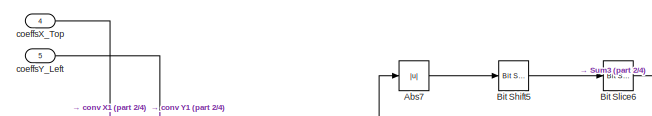
[diagram: Subsystem/conv_core_sobel1/Subsystem1 - part 1/4, top center region]
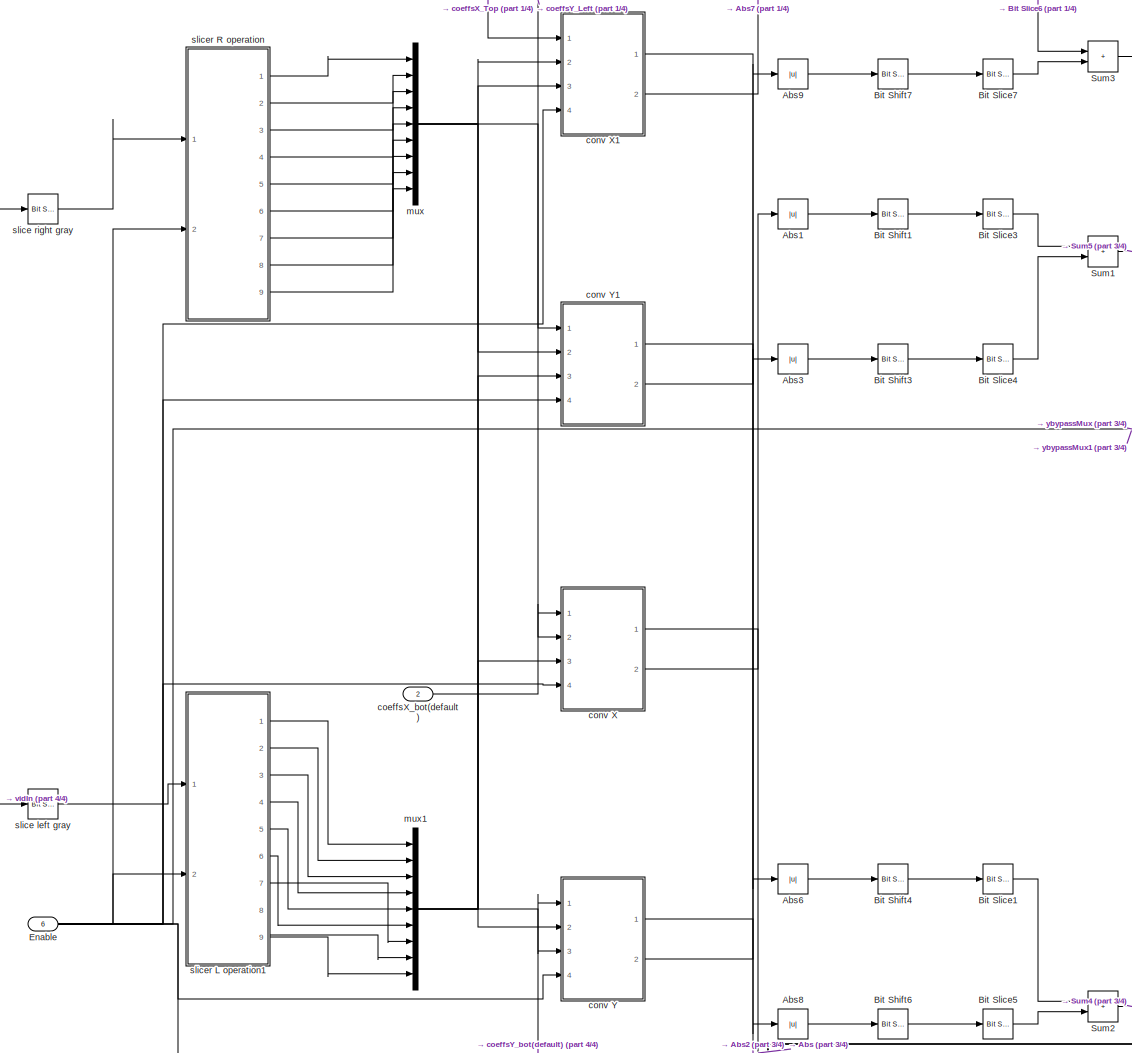
[diagram: Subsystem/conv_core_sobel1/Subsystem1 - part 2/4, central region]
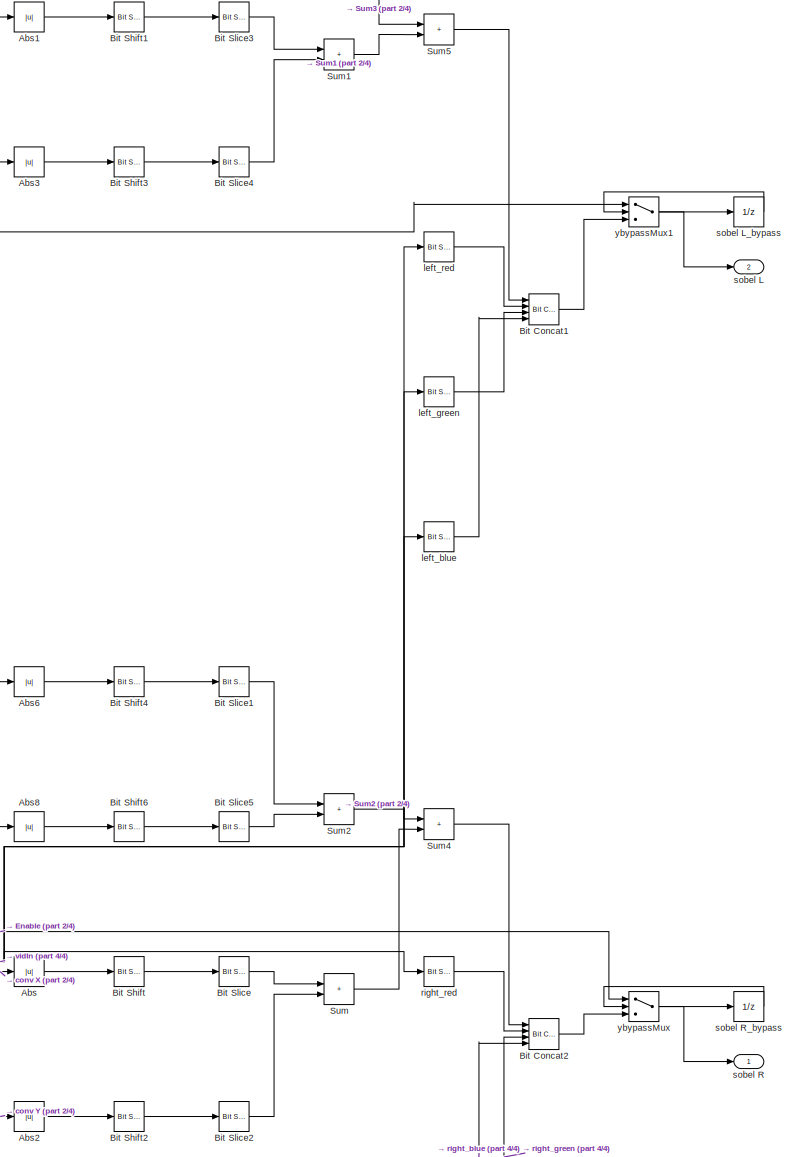
[diagram: Subsystem/conv_core_sobel1/Subsystem1 - part 3/4, middle right region]
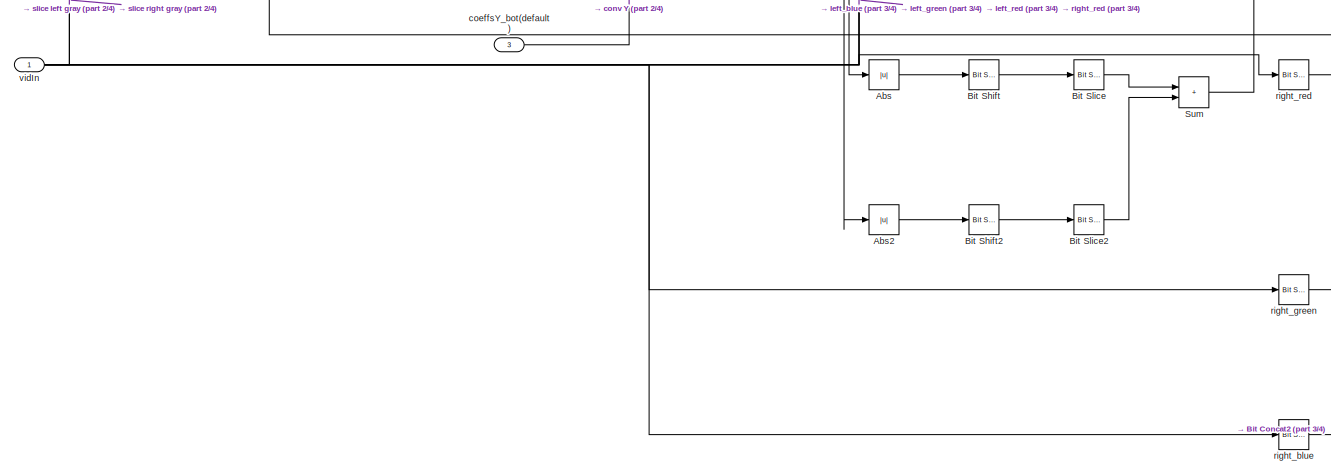
[diagram: Subsystem/conv_core_sobel1/Subsystem1 - part 4/4, full width, bottom band]
BLOCK [SubSystem] Subsystem/conv_core_sobel1/Subsystem1
  Ports = [6, 2]
  RequestExecContextInheritance = off
BLOCK [Abs] Subsystem/conv_core_sobel1/Subsystem1/Abs
  OutDataTypeStr = uint8
  SampleTime = 2.77039007092199e-06
  SaturateOnIntegerOverflow = off
BLOCK [Abs] Subsystem/conv_core_sobel1/Subsystem1/Abs1
  OutDataTypeStr = uint8
  SampleTime = 2.77039007092199e-06
  SaturateOnIntegerOverflow = off
BLOCK [Abs] Subsystem/conv_core_sobel1/Subsystem1/Abs2
  OutDataTypeStr = uint8
  SampleTime = 2.77039007092199e-06
  SaturateOnIntegerOverflow = off
BLOCK [Abs] Subsystem/conv_core_sobel1/Subsystem1/Abs3
  OutDataTypeStr = uint8
  SampleTime = 2.77039007092199e-06
  SaturateOnIntegerOverflow = off
BLOCK [Abs] Subsystem/conv_core_sobel1/Subsystem1/Abs6
  OutDataTypeStr = uint8
  SampleTime = 2.77039007092199e-06
  SaturateOnIntegerOverflow = off
BLOCK [Abs] Subsystem/conv_core_sobel1/Subsystem1/Abs7
  OutDataTypeStr = uint8
  SampleTime = 2.77039007092199e-06
  SaturateOnIntegerOverflow = off
BLOCK [Abs] Subsystem/conv_core_sobel1/Subsystem1/Abs8
  OutDataTypeStr = uint8
  SampleTime = 2.77039007092199e-06
  SaturateOnIntegerOverflow = off
BLOCK [Abs] Subsystem/conv_core_sobel1/Subsystem1/Abs9
  OutDataTypeStr = uint8
  SampleTime = 2.77039007092199e-06
  SaturateOnIntegerOverflow = off
BLOCK [Reference] Subsystem/conv_core_sobel1/Subsystem1/Bit Concat1  REF=hdlsllib/Logic and Bit
Operations/Bit Concat
  Ports = [4, 1]
  SourceBlock = hdlsllib/Logic and Bit\nOperations/Bit Concat
  SourceProductBaseCode = SL
  SourceType = Bit Concat
BLOCK [Reference] Subsystem/conv_core_sobel1/Subsystem1/Bit Concat2  REF=hdlsllib/Logic and Bit
Operations/Bit Concat
  Ports = [4, 1]
  SourceBlock = hdlsllib/Logic and Bit\nOperations/Bit Concat
  SourceProductBaseCode = SL
  SourceType = Bit Concat
BLOCK [Reference] Subsystem/conv_core_sobel1/Subsystem1/Bit Shift  REF=hdlsllib/Logic and Bit
Operations/Bit Shift
  Ports = [1, 1]
  SourceBlock = hdlsllib/Logic and Bit\nOperations/Bit Shift
  SourceProductBaseCode = SL
  SourceType = Bit Shift
BLOCK [Reference] Subsystem/conv_core_sobel1/Subsystem1/Bit Shift1  REF=hdlsllib/Logic and Bit
Operations/Bit Shift
  Ports = [1, 1]
  SourceBlock = hdlsllib/Logic and Bit\nOperations/Bit Shift
  SourceProductBaseCode = SL
  SourceType = Bit Shift
BLOCK [Reference] Subsystem/conv_core_sobel1/Subsystem1/Bit Shift2  REF=hdlsllib/Logic and Bit
Operations/Bit Shift
  Ports = [1, 1]
  SourceBlock = hdlsllib/Logic and Bit\nOperations/Bit Shift
  SourceProductBaseCode = SL
  SourceType = Bit Shift
BLOCK [Reference] Subsystem/conv_core_sobel1/Subsystem1/Bit Shift3  REF=hdlsllib/Logic and Bit
Operations/Bit Shift
  Ports = [1, 1]
  SourceBlock = hdlsllib/Logic and Bit\nOperations/Bit Shift
  SourceProductBaseCode = SL
  SourceType = Bit Shift
BLOCK [Reference] Subsystem/conv_core_sobel1/Subsystem1/Bit Shift4  REF=hdlsllib/Logic and Bit
Operations/Bit Shift
  Ports = [1, 1]
  SourceBlock = hdlsllib/Logic and Bit\nOperations/Bit Shift
  SourceProductBaseCode = SL
  SourceType = Bit Shift
BLOCK [Reference] Subsystem/conv_core_sobel1/Subsystem1/Bit Shift5  REF=hdlsllib/Logic and Bit
Operations/Bit Shift
  Ports = [1, 1]
  SourceBlock = hdlsllib/Logic and Bit\nOperations/Bit Shift
  SourceProductBaseCode = SL
  SourceType = Bit Shift
BLOCK [Reference] Subsystem/conv_core_sobel1/Subsystem1/Bit Shift6  REF=hdlsllib/Logic and Bit
Operations/Bit Shift
  Ports = [1, 1]
  SourceBlock = hdlsllib/Logic and Bit\nOperations/Bit Shift
  SourceProductBaseCode = SL
  SourceType = Bit Shift
BLOCK [Reference] Subsystem/conv_core_sobel1/Subsystem1/Bit Shift7  REF=hdlsllib/Logic and Bit
Operations/Bit Shift
  Ports = [1, 1]
  SourceBlock = hdlsllib/Logic and Bit\nOperations/Bit Shift
  SourceProductBaseCode = SL
  SourceType = Bit Shift
BLOCK [Reference] Subsystem/conv_core_sobel1/Subsystem1/Bit Slice  REF=hdlsllib/Logic and Bit
Operations/Bit Slice
  Ports = [1, 1]
  SourceBlock = hdlsllib/Logic and Bit\nOperations/Bit Slice
  SourceProductBaseCode = SL
  SourceType = Bit Slice
BLOCK [Reference] Subsystem/conv_core_sobel1/Subsystem1/Bit Slice1  REF=hdlsllib/Logic and Bit
Operations/Bit Slice
  Ports = [1, 1]
  SourceBlock = hdlsllib/Logic and Bit\nOperations/Bit Slice
  SourceProductBaseCode = SL
  SourceType = Bit Slice
BLOCK [Reference] Subsystem/conv_core_sobel1/Subsystem1/Bit Slice2  REF=hdlsllib/Logic and Bit
Operations/Bit Slice
  Ports = [1, 1]
  SourceBlock = hdlsllib/Logic and Bit\nOperations/Bit Slice
  SourceProductBaseCode = SL
  SourceType = Bit Slice
BLOCK [Reference] Subsystem/conv_core_sobel1/Subsystem1/Bit Slice3  REF=hdlsllib/Logic and Bit
Operations/Bit Slice
  Ports = [1, 1]
  SourceBlock = hdlsllib/Logic and Bit\nOperations/Bit Slice
  SourceProductBaseCode = SL
  SourceType = Bit Slice
BLOCK [Reference] Subsystem/conv_core_sobel1/Subsystem1/Bit Slice4  REF=hdlsllib/Logic and Bit
Operations/Bit Slice
  Ports = [1, 1]
  SourceBlock = hdlsllib/Logic and Bit\nOperations/Bit Slice
  SourceProductBaseCode = SL
  SourceType = Bit Slice
BLOCK [Reference] Subsystem/conv_core_sobel1/Subsystem1/Bit Slice5  REF=hdlsllib/Logic and Bit
Operations/Bit Slice
  Ports = [1, 1]
  SourceBlock = hdlsllib/Logic and Bit\nOperations/Bit Slice
  SourceProductBaseCode = SL
  SourceType = Bit Slice
BLOCK [Reference] Subsystem/conv_core_sobel1/Subsystem1/Bit Slice6  REF=hdlsllib/Logic and Bit
Operations/Bit Slice
  Ports = [1, 1]
  SourceBlock = hdlsllib/Logic and Bit\nOperations/Bit Slice
  SourceProductBaseCode = SL
  SourceType = Bit Slice
BLOCK [Reference] Subsystem/conv_core_sobel1/Subsystem1/Bit Slice7  REF=hdlsllib/Logic and Bit
Operations/Bit Slice
  Ports = [1, 1]
  SourceBlock = hdlsllib/Logic and Bit\nOperations/Bit Slice
  SourceProductBaseCode = SL
  SourceType = Bit Slice
BLOCK [Inport] Subsystem/conv_core_sobel1/Subsystem1/Enable
  OutDataTypeStr = boolean
  Port = 6
  SampleTime = 2.77039007092199e-06
BLOCK [Sum] Subsystem/conv_core_sobel1/Subsystem1/Sum
  AccumDataTypeStr = uint32
  IconShape = rectangular
  OutDataTypeStr = uint8
  Ports = [2, 1]
  SampleTime = 2.77039007092199e-06
BLOCK [Sum] Subsystem/conv_core_sobel1/Subsystem1/Sum1
  AccumDataTypeStr = uint32
  IconShape = rectangular
  OutDataTypeStr = uint8
  Ports = [2, 1]
  SampleTime = 2.77039007092199e-06
BLOCK [Sum] Subsystem/conv_core_sobel1/Subsystem1/Sum2
  AccumDataTypeStr = uint32
  IconShape = rectangular
  OutDataTypeStr = uint8
  Ports = [2, 1]
  SampleTime = 2.77039007092199e-06
BLOCK [Sum] Subsystem/conv_core_sobel1/Subsystem1/Sum3
  AccumDataTypeStr = uint32
  IconShape = rectangular
  OutDataTypeStr = uint8
  Ports = [2, 1]
  SampleTime = 2.77039007092199e-06
BLOCK [Sum] Subsystem/conv_core_sobel1/Subsystem1/Sum4
  AccumDataTypeStr = uint8
  IconShape = rectangular
  OutDataTypeStr = uint8
  Ports = [2, 1]
  SampleTime = 2.77039007092199e-06
BLOCK [Sum] Subsystem/conv_core_sobel1/Subsystem1/Sum5
  AccumDataTypeStr = uint8
  IconShape = rectangular
  OutDataTypeStr = uint8
  Ports = [2, 1]
  SampleTime = 2.77039007092199e-06
BLOCK [Inport] Subsystem/conv_core_sobel1/Subsystem1/coeffsX_Top
  OutDataTypeStr = int8
  Port = 4
  PortDimensions = [9]
  SampleTime = 2.77039007092199e-06
BLOCK [Inport] Subsystem/conv_core_sobel1/Subsystem1/coeffsX_bot(default)
  OutDataTypeStr = int8
  Port = 2
  PortDimensions = [9]
  SampleTime = 2.77039007092199e-06
BLOCK [Inport] Subsystem/conv_core_sobel1/Subsystem1/coeffsY_Left
  OutDataTypeStr = int8
  Port = 5
  PortDimensions = [9]
  SampleTime = 2.77039007092199e-06
BLOCK [Inport] Subsystem/conv_core_sobel1/Subsystem1/coeffsY_bot(default)
  OutDataTypeStr = int8
  Port = 3
  PortDimensions = [9]
  SampleTime = 2.77039007092199e-06
BLOCK [SubSystem] Subsystem/conv_core_sobel1/Subsystem1/conv X
  Ports = [4, 2]
  RequestExecContextInheritance = off
BLOCK [Inport] Subsystem/conv_core_sobel1/Subsystem1/conv X/<valid>
  OutDataTypeStr = boolean
  Port = 4
  SampleTime = 2.77039007092199e-06
BLOCK [SubSystem] Subsystem/conv_core_sobel1/Subsystem1/conv X/Delay1
  MinAlgLoopOccurrences = on
  Ports = [1, 1, 1]
  RequestExecContextInheritance = off
BLOCK [EnablePort] Subsystem/conv_core_sobel1/Subsystem1/conv X/Delay1/<valid>
  OutDataTypeStr = boolean
  Ports = []
BLOCK [Delay] Subsystem/conv_core_sobel1/Subsystem1/conv X/Delay1/Delay1
  DelayLength = double(1)
  InitialCondition = 0
  InputPortMap = u0
  Ports = [1, 1]
BLOCK [Inport] Subsystem/conv_core_sobel1/Subsystem1/conv X/Delay1/in0
  OutDataTypeStr = fixdt(1,16,0,'DataTypeOverride', 'Off')
  PortDimensions = [9]
  SampleTime = 2.77039007092199e-06
BLOCK [Outport] Subsystem/conv_core_sobel1/Subsystem1/conv X/Delay1/out0
  InitialOutput = 0
  OutDataTypeStr = int16
  PortDimensions = [9]
  SampleTime = 2.77039007092199e-06
BLOCK [SubSystem] Subsystem/conv_core_sobel1/Subsystem1/conv X/Delay2
  MinAlgLoopOccurrences = on
  Ports = [1, 1, 1]
  RequestExecContextInheritance = off
BLOCK [EnablePort] Subsystem/conv_core_sobel1/Subsystem1/conv X/Delay2/<valid>
  OutDataTypeStr = boolean
  Ports = []
BLOCK [Delay] Subsystem/conv_core_sobel1/Subsystem1/conv X/Delay2/Delay2
  DelayLength = double(1)
  InitialCondition = 0
  InputPortMap = u0
  Ports = [1, 1]
BLOCK [Inport] Subsystem/conv_core_sobel1/Subsystem1/conv X/Delay2/in0
  OutDataTypeStr = fixdt(1,16,0,'DataTypeOverride', 'Off')
  PortDimensions = [9]
  SampleTime = 2.77039007092199e-06
BLOCK [Outport] Subsystem/conv_core_sobel1/Subsystem1/conv X/Delay2/out0
  InitialOutput = 0
  OutDataTypeStr = int16
  PortDimensions = [9]
  SampleTime = 2.77039007092199e-06
BLOCK [SubSystem] Subsystem/conv_core_sobel1/Subsystem1/conv X/Delay3
  MinAlgLoopOccurrences = on
  Ports = [1, 1, 1]
  RequestExecContextInheritance = off
BLOCK [EnablePort] Subsystem/conv_core_sobel1/Subsystem1/conv X/Delay3/<valid>
  OutDataTypeStr = boolean
  Ports = []
BLOCK [Delay] Subsystem/conv_core_sobel1/Subsystem1/conv X/Delay3/Delay3
  DelayLength = double(1)
  InitialCondition = 0
  InputPortMap = u0
  Ports = [1, 1]
BLOCK [Inport] Subsystem/conv_core_sobel1/Subsystem1/conv X/Delay3/in0
  OutDataTypeStr = fixdt(0,8,0,'DataTypeOverride', 'Off')
  SampleTime = 2.77039007092199e-06
BLOCK [Outport] Subsystem/conv_core_sobel1/Subsystem1/conv X/Delay3/out0
  InitialOutput = 0
  OutDataTypeStr = uint8
  SampleTime = 2.77039007092199e-06
BLOCK [SubSystem] Subsystem/conv_core_sobel1/Subsystem1/conv X/Delay4
  MinAlgLoopOccurrences = on
  Ports = [1, 1, 1]
  RequestExecContextInheritance = off
BLOCK [EnablePort] Subsystem/conv_core_sobel1/Subsystem1/conv X/Delay4/<valid>
  OutDataTypeStr = boolean
  Ports = []
BLOCK [Delay] Subsystem/conv_core_sobel1/Subsystem1/conv X/Delay4/Delay4
  DelayLength = double(1)
  InitialCondition = 0
  InputPortMap = u0
  Ports = [1, 1]
BLOCK [Inport] Subsystem/conv_core_sobel1/Subsystem1/conv X/Delay4/in0
  OutDataTypeStr = fixdt(0,8,0,'DataTypeOverride', 'Off')
  SampleTime = 2.77039007092199e-06
BLOCK [Outport] Subsystem/conv_core_sobel1/Subsystem1/conv X/Delay4/out0
  InitialOutput = 0
  OutDataTypeStr = uint8
  SampleTime = 2.77039007092199e-06
BLOCK [Inport] Subsystem/conv_core_sobel1/Subsystem1/conv X/Image L
  OutDataTypeStr = uint8
  Port = 3
  PortDimensions = [9]
  SampleTime = 2.77039007092199e-06
BLOCK [Inport] Subsystem/conv_core_sobel1/Subsystem1/conv X/Image R
  OutDataTypeStr = uint8
  Port = 2
  PortDimensions = [9]
  SampleTime = 2.77039007092199e-06
BLOCK [Outport] Subsystem/conv_core_sobel1/Subsystem1/conv X/LX
  InitialOutput = 0
  Port = 2
  SampleTime = 2.77039007092199e-06
BLOCK [Product] Subsystem/conv_core_sobel1/Subsystem1/conv X/Product
  Inputs = **
  OutDataTypeStr = int16
  Ports = [2, 1]
  SampleTime = 2.77039007092199e-06
  SaturateOnIntegerOverflow = on
BLOCK [Product] Subsystem/conv_core_sobel1/Subsystem1/conv X/Product1
  Inputs = **
  OutDataTypeStr = int16
  Ports = [2, 1]
  SampleTime = 2.77039007092199e-06
  SaturateOnIntegerOverflow = on
BLOCK [Outport] Subsystem/conv_core_sobel1/Subsystem1/conv X/RX
  InitialOutput = 0
  SampleTime = 2.77039007092199e-06
BLOCK [Sum] Subsystem/conv_core_sobel1/Subsystem1/conv X/Sum of Elements1_stage2
  AccumDataTypeStr = int32
  IconShape = rectangular
  OutDataTypeStr = int32
  Ports = [2, 1]
  SampleTime = 2.77039007092199e-06
  SaturateOnIntegerOverflow = on
BLOCK [Sum] Subsystem/conv_core_sobel1/Subsystem1/conv X/Sum of Elements1_stage3
  AccumDataTypeStr = int32
  IconShape = rectangular
  OutDataTypeStr = int32
  Ports = [2, 1]
  SampleTime = 2.77039007092199e-06
  SaturateOnIntegerOverflow = on
BLOCK [Sum] Subsystem/conv_core_sobel1/Subsystem1/conv X/Sum of Elements1_stage4
  AccumDataTypeStr = int32
  IconShape = rectangular
  OutDataTypeStr = int32
  Ports = [2, 1]
  SampleTime = 2.77039007092199e-06
  SaturateOnIntegerOverflow = on
BLOCK [Sum] Subsystem/conv_core_sobel1/Subsystem1/conv X/Sum of Elements1_stage5
  AccumDataTypeStr = int32
  IconShape = rectangular
  OutDataTypeStr = int32
  Ports = [2, 1]
  SampleTime = 2.77039007092199e-06
  SaturateOnIntegerOverflow = on
BLOCK [Sum] Subsystem/conv_core_sobel1/Subsystem1/conv X/Sum of Elements1_stage6
  AccumDataTypeStr = int32
  IconShape = rectangular
  OutDataTypeStr = int32
  Ports = [2, 1]
  SampleTime = 2.77039007092199e-06
  SaturateOnIntegerOverflow = on
BLOCK [Sum] Subsystem/conv_core_sobel1/Subsystem1/conv X/Sum of Elements1_stage7
  AccumDataTypeStr = int32
  IconShape = rectangular
  OutDataTypeStr = int32
  Ports = [2, 1]
  SampleTime = 2.77039007092199e-06
  SaturateOnIntegerOverflow = on
BLOCK [Sum] Subsystem/conv_core_sobel1/Subsystem1/conv X/Sum of Elements1_stage8
  AccumDataTypeStr = int32
  IconShape = rectangular
  OutDataTypeStr = int32
  Ports = [2, 1]
  SampleTime = 2.77039007092199e-06
  SaturateOnIntegerOverflow = on
BLOCK [Sum] Subsystem/conv_core_sobel1/Subsystem1/conv X/Sum of Elements1_stage9
  AccumDataTypeStr = int32
  IconShape = rectangular
  OutDataTypeStr = uint8
  Ports = [2, 1]
  SampleTime = 2.77039007092199e-06
  SaturateOnIntegerOverflow = on
BLOCK [Sum] Subsystem/conv_core_sobel1/Subsystem1/conv X/Sum of Elements_stage2
  AccumDataTypeStr = int32
  IconShape = rectangular
  OutDataTypeStr = int32
  Ports = [2, 1]
  SampleTime = 2.77039007092199e-06
  SaturateOnIntegerOverflow = on
BLOCK [Sum] Subsystem/conv_core_sobel1/Subsystem1/conv X/Sum of Elements_stage3
  AccumDataTypeStr = int32
  IconShape = rectangular
  OutDataTypeStr = int32
  Ports = [2, 1]
  SampleTime = 2.77039007092199e-06
  SaturateOnIntegerOverflow = on
BLOCK [Sum] Subsystem/conv_core_sobel1/Subsystem1/conv X/Sum of Elements_stage4
  AccumDataTypeStr = int32
  IconShape = rectangular
  OutDataTypeStr = int32
  Ports = [2, 1]
  SampleTime = 2.77039007092199e-06
  SaturateOnIntegerOverflow = on
BLOCK [Sum] Subsystem/conv_core_sobel1/Subsystem1/conv X/Sum of Elements_stage5
  AccumDataTypeStr = int32
  IconShape = rectangular
  OutDataTypeStr = int32
  Ports = [2, 1]
  SampleTime = 2.77039007092199e-06
  SaturateOnIntegerOverflow = on
BLOCK [Sum] Subsystem/conv_core_sobel1/Subsystem1/conv X/Sum of Elements_stage6
  AccumDataTypeStr = int32
  IconShape = rectangular
  OutDataTypeStr = int32
  Ports = [2, 1]
  SampleTime = 2.77039007092199e-06
  SaturateOnIntegerOverflow = on
BLOCK [Sum] Subsystem/conv_core_sobel1/Subsystem1/conv X/Sum of Elements_stage7
  AccumDataTypeStr = int32
  IconShape = rectangular
  OutDataTypeStr = int32
  Ports = [2, 1]
  SampleTime = 2.77039007092199e-06
  SaturateOnIntegerOverflow = on
BLOCK [Sum] Subsystem/conv_core_sobel1/Subsystem1/conv X/Sum of Elements_stage8
  AccumDataTypeStr = int32
  IconShape = rectangular
  OutDataTypeStr = int32
  Ports = [2, 1]
  SampleTime = 2.77039007092199e-06
  SaturateOnIntegerOverflow = on
BLOCK [Sum] Subsystem/conv_core_sobel1/Subsystem1/conv X/Sum of Elements_stage9
  AccumDataTypeStr = int32
  IconShape = rectangular
  OutDataTypeStr = uint8
  Ports = [2, 1]
  SampleTime = 2.77039007092199e-06
  SaturateOnIntegerOverflow = on
BLOCK [Inport] Subsystem/conv_core_sobel1/Subsystem1/conv X/coeffsX
  OutDataTypeStr = int8
  PortDimensions = [9]
  SampleTime = 2.77039007092199e-06
BLOCK [Demux] Subsystem/conv_core_sobel1/Subsystem1/conv X/t
  Outputs = 9
  Ports = [1, 9]
BLOCK [Demux] Subsystem/conv_core_sobel1/Subsystem1/conv X/t1
  Outputs = 9
  Ports = [1, 9]
BLOCK [SubSystem] Subsystem/conv_core_sobel1/Subsystem1/conv X1
  Ports = [4, 2]
  RequestExecContextInheritance = off
BLOCK [Inport] Subsystem/conv_core_sobel1/Subsystem1/conv X1/<valid>
  OutDataTypeStr = boolean
  Port = 4
  SampleTime = 2.77039007092199e-06
BLOCK [SubSystem] Subsystem/conv_core_sobel1/Subsystem1/conv X1/Delay1
  MinAlgLoopOccurrences = on
  Ports = [1, 1, 1]
  RequestExecContextInheritance = off
BLOCK [EnablePort] Subsystem/conv_core_sobel1/Subsystem1/conv X1/Delay1/<valid>
  OutDataTypeStr = boolean
  Ports = []
BLOCK [Delay] Subsystem/conv_core_sobel1/Subsystem1/conv X1/Delay1/Delay1
  DelayLength = double(1)
  InitialCondition = 0
  InputPortMap = u0
  Ports = [1, 1]
BLOCK [Inport] Subsystem/conv_core_sobel1/Subsystem1/conv X1/Delay1/in0
  OutDataTypeStr = fixdt(1,16,0,'DataTypeOverride', 'Off')
  PortDimensions = [9]
  SampleTime = 2.77039007092199e-06
BLOCK [Outport] Subsystem/conv_core_sobel1/Subsystem1/conv X1/Delay1/out0
  InitialOutput = 0
  OutDataTypeStr = int16
  PortDimensions = [9]
  SampleTime = 2.77039007092199e-06
BLOCK [SubSystem] Subsystem/conv_core_sobel1/Subsystem1/conv X1/Delay2
  MinAlgLoopOccurrences = on
  Ports = [1, 1, 1]
  RequestExecContextInheritance = off
BLOCK [EnablePort] Subsystem/conv_core_sobel1/Subsystem1/conv X1/Delay2/<valid>
  OutDataTypeStr = boolean
  Ports = []
BLOCK [Delay] Subsystem/conv_core_sobel1/Subsystem1/conv X1/Delay2/Delay2
  DelayLength = double(1)
  InitialCondition = 0
  InputPortMap = u0
  Ports = [1, 1]
BLOCK [Inport] Subsystem/conv_core_sobel1/Subsystem1/conv X1/Delay2/in0
  OutDataTypeStr = fixdt(1,16,0,'DataTypeOverride', 'Off')
  PortDimensions = [9]
  SampleTime = 2.77039007092199e-06
BLOCK [Outport] Subsystem/conv_core_sobel1/Subsystem1/conv X1/Delay2/out0
  InitialOutput = 0
  OutDataTypeStr = int16
  PortDimensions = [9]
  SampleTime = 2.77039007092199e-06
BLOCK [SubSystem] Subsystem/conv_core_sobel1/Subsystem1/conv X1/Delay3
  MinAlgLoopOccurrences = on
  Ports = [1, 1, 1]
  RequestExecContextInheritance = off
BLOCK [EnablePort] Subsystem/conv_core_sobel1/Subsystem1/conv X1/Delay3/<valid>
  OutDataTypeStr = boolean
  Ports = []
BLOCK [Delay] Subsystem/conv_core_sobel1/Subsystem1/conv X1/Delay3/Delay3
  DelayLength = double(1)
  InitialCondition = 0
  InputPortMap = u0
  Ports = [1, 1]
BLOCK [Inport] Subsystem/conv_core_sobel1/Subsystem1/conv X1/Delay3/in0
  OutDataTypeStr = fixdt(0,8,0,'DataTypeOverride', 'Off')
  SampleTime = 2.77039007092199e-06
BLOCK [Outport] Subsystem/conv_core_sobel1/Subsystem1/conv X1/Delay3/out0
  InitialOutput = 0
  OutDataTypeStr = uint8
  SampleTime = 2.77039007092199e-06
BLOCK [SubSystem] Subsystem/conv_core_sobel1/Subsystem1/conv X1/Delay4
  MinAlgLoopOccurrences = on
  Ports = [1, 1, 1]
  RequestExecContextInheritance = off
BLOCK [EnablePort] Subsystem/conv_core_sobel1/Subsystem1/conv X1/Delay4/<valid>
  OutDataTypeStr = boolean
  Ports = []
BLOCK [Delay] Subsystem/conv_core_sobel1/Subsystem1/conv X1/Delay4/Delay4
  DelayLength = double(1)
  InitialCondition = 0
  InputPortMap = u0
  Ports = [1, 1]
BLOCK [Inport] Subsystem/conv_core_sobel1/Subsystem1/conv X1/Delay4/in0
  OutDataTypeStr = fixdt(0,8,0,'DataTypeOverride', 'Off')
  SampleTime = 2.77039007092199e-06
BLOCK [Outport] Subsystem/conv_core_sobel1/Subsystem1/conv X1/Delay4/out0
  InitialOutput = 0
  OutDataTypeStr = uint8
  SampleTime = 2.77039007092199e-06
BLOCK [Inport] Subsystem/conv_core_sobel1/Subsystem1/conv X1/Image L
  OutDataTypeStr = uint8
  Port = 3
  PortDimensions = [9]
  SampleTime = 2.77039007092199e-06
BLOCK [Inport] Subsystem/conv_core_sobel1/Subsystem1/conv X1/Image R
  OutDataTypeStr = uint8
  Port = 2
  PortDimensions = [9]
  SampleTime = 2.77039007092199e-06
BLOCK [Outport] Subsystem/conv_core_sobel1/Subsystem1/conv X1/LX
  InitialOutput = 0
  Port = 2
  SampleTime = 2.77039007092199e-06
BLOCK [Product] Subsystem/conv_core_sobel1/Subsystem1/conv X1/Product
  Inputs = **
  OutDataTypeStr = int16
  Ports = [2, 1]
  SampleTime = 2.77039007092199e-06
  SaturateOnIntegerOverflow = on
BLOCK [Product] Subsystem/conv_core_sobel1/Subsystem1/conv X1/Product1
  Inputs = **
  OutDataTypeStr = int16
  Ports = [2, 1]
  SampleTime = 2.77039007092199e-06
  SaturateOnIntegerOverflow = on
BLOCK [Outport] Subsystem/conv_core_sobel1/Subsystem1/conv X1/RX
  InitialOutput = 0
  SampleTime = 2.77039007092199e-06
BLOCK [Sum] Subsystem/conv_core_sobel1/Subsystem1/conv X1/Sum of Elements1_stage2
  AccumDataTypeStr = int32
  IconShape = rectangular
  OutDataTypeStr = int32
  Ports = [2, 1]
  SampleTime = 2.77039007092199e-06
  SaturateOnIntegerOverflow = on
BLOCK [Sum] Subsystem/conv_core_sobel1/Subsystem1/conv X1/Sum of Elements1_stage3
  AccumDataTypeStr = int32
  IconShape = rectangular
  OutDataTypeStr = int32
  Ports = [2, 1]
  SampleTime = 2.77039007092199e-06
  SaturateOnIntegerOverflow = on
BLOCK [Sum] Subsystem/conv_core_sobel1/Subsystem1/conv X1/Sum of Elements1_stage4
  AccumDataTypeStr = int32
  IconShape = rectangular
  OutDataTypeStr = int32
  Ports = [2, 1]
  SampleTime = 2.77039007092199e-06
  SaturateOnIntegerOverflow = on
BLOCK [Sum] Subsystem/conv_core_sobel1/Subsystem1/conv X1/Sum of Elements1_stage5
  AccumDataTypeStr = int32
  IconShape = rectangular
  OutDataTypeStr = int32
  Ports = [2, 1]
  SampleTime = 2.77039007092199e-06
  SaturateOnIntegerOverflow = on
BLOCK [Sum] Subsystem/conv_core_sobel1/Subsystem1/conv X1/Sum of Elements1_stage6
  AccumDataTypeStr = int32
  IconShape = rectangular
  OutDataTypeStr = int32
  Ports = [2, 1]
  SampleTime = 2.77039007092199e-06
  SaturateOnIntegerOverflow = on
BLOCK [Sum] Subsystem/conv_core_sobel1/Subsystem1/conv X1/Sum of Elements1_stage7
  AccumDataTypeStr = int32
  IconShape = rectangular
  OutDataTypeStr = int32
  Ports = [2, 1]
  SampleTime = 2.77039007092199e-06
  SaturateOnIntegerOverflow = on
BLOCK [Sum] Subsystem/conv_core_sobel1/Subsystem1/conv X1/Sum of Elements1_stage8
  AccumDataTypeStr = int32
  IconShape = rectangular
  OutDataTypeStr = int32
  Ports = [2, 1]
  SampleTime = 2.77039007092199e-06
  SaturateOnIntegerOverflow = on
BLOCK [Sum] Subsystem/conv_core_sobel1/Subsystem1/conv X1/Sum of Elements1_stage9
  AccumDataTypeStr = int32
  IconShape = rectangular
  OutDataTypeStr = uint8
  Ports = [2, 1]
  SampleTime = 2.77039007092199e-06
  SaturateOnIntegerOverflow = on
BLOCK [Sum] Subsystem/conv_core_sobel1/Subsystem1/conv X1/Sum of Elements_stage2
  AccumDataTypeStr = int32
  IconShape = rectangular
  OutDataTypeStr = int32
  Ports = [2, 1]
  SampleTime = 2.77039007092199e-06
  SaturateOnIntegerOverflow = on
BLOCK [Sum] Subsystem/conv_core_sobel1/Subsystem1/conv X1/Sum of Elements_stage3
  AccumDataTypeStr = int32
  IconShape = rectangular
  OutDataTypeStr = int32
  Ports = [2, 1]
  SampleTime = 2.77039007092199e-06
  SaturateOnIntegerOverflow = on
BLOCK [Sum] Subsystem/conv_core_sobel1/Subsystem1/conv X1/Sum of Elements_stage4
  AccumDataTypeStr = int32
  IconShape = rectangular
  OutDataTypeStr = int32
  Ports = [2, 1]
  SampleTime = 2.77039007092199e-06
  SaturateOnIntegerOverflow = on
BLOCK [Sum] Subsystem/conv_core_sobel1/Subsystem1/conv X1/Sum of Elements_stage5
  AccumDataTypeStr = int32
  IconShape = rectangular
  OutDataTypeStr = int32
  Ports = [2, 1]
  SampleTime = 2.77039007092199e-06
  SaturateOnIntegerOverflow = on
BLOCK [Sum] Subsystem/conv_core_sobel1/Subsystem1/conv X1/Sum of Elements_stage6
  AccumDataTypeStr = int32
  IconShape = rectangular
  OutDataTypeStr = int32
  Ports = [2, 1]
  SampleTime = 2.77039007092199e-06
  SaturateOnIntegerOverflow = on
BLOCK [Sum] Subsystem/conv_core_sobel1/Subsystem1/conv X1/Sum of Elements_stage7
  AccumDataTypeStr = int32
  IconShape = rectangular
  OutDataTypeStr = int32
  Ports = [2, 1]
  SampleTime = 2.77039007092199e-06
  SaturateOnIntegerOverflow = on
BLOCK [Sum] Subsystem/conv_core_sobel1/Subsystem1/conv X1/Sum of Elements_stage8
  AccumDataTypeStr = int32
  IconShape = rectangular
  OutDataTypeStr = int32
  Ports = [2, 1]
  SampleTime = 2.77039007092199e-06
  SaturateOnIntegerOverflow = on
BLOCK [Sum] Subsystem/conv_core_sobel1/Subsystem1/conv X1/Sum of Elements_stage9
  AccumDataTypeStr = int32
  IconShape = rectangular
  OutDataTypeStr = uint8
  Ports = [2, 1]
  SampleTime = 2.77039007092199e-06
  SaturateOnIntegerOverflow = on
BLOCK [Inport] Subsystem/conv_core_sobel1/Subsystem1/conv X1/coeffsX
  OutDataTypeStr = int8
  PortDimensions = [9]
  SampleTime = 2.77039007092199e-06
BLOCK [Demux] Subsystem/conv_core_sobel1/Subsystem1/conv X1/t
  Outputs = 9
  Ports = [1, 9]
BLOCK [Demux] Subsystem/conv_core_sobel1/Subsystem1/conv X1/t1
  Outputs = 9
  Ports = [1, 9]
BLOCK [SubSystem] Subsystem/conv_core_sobel1/Subsystem1/conv Y
  Ports = [4, 2]
  RequestExecContextInheritance = off
BLOCK [Inport] Subsystem/conv_core_sobel1/Subsystem1/conv Y/<valid>
  OutDataTypeStr = boolean
  Port = 4
  SampleTime = 2.77039007092199e-06
BLOCK [SubSystem] Subsystem/conv_core_sobel1/Subsystem1/conv Y/Delay1
  MinAlgLoopOccurrences = on
  Ports = [1, 1, 1]
  RequestExecContextInheritance = off
BLOCK [EnablePort] Subsystem/conv_core_sobel1/Subsystem1/conv Y/Delay1/<valid>
  OutDataTypeStr = boolean
  Ports = []
BLOCK [Delay] Subsystem/conv_core_sobel1/Subsystem1/conv Y/Delay1/Delay1
  DelayLength = double(1)
  InitialCondition = 0
  InputPortMap = u0
  Ports = [1, 1]
BLOCK [Inport] Subsystem/conv_core_sobel1/Subsystem1/conv Y/Delay1/in0
  OutDataTypeStr = fixdt(1,16,0,'DataTypeOverride', 'Off')
  PortDimensions = [9]
  SampleTime = 2.77039007092199e-06
BLOCK [Outport] Subsystem/conv_core_sobel1/Subsystem1/conv Y/Delay1/out0
  InitialOutput = 0
  OutDataTypeStr = int16
  PortDimensions = [9]
  SampleTime = 2.77039007092199e-06
BLOCK [SubSystem] Subsystem/conv_core_sobel1/Subsystem1/conv Y/Delay2
  MinAlgLoopOccurrences = on
  Ports = [1, 1, 1]
  RequestExecContextInheritance = off
BLOCK [EnablePort] Subsystem/conv_core_sobel1/Subsystem1/conv Y/Delay2/<valid>
  OutDataTypeStr = boolean
  Ports = []
BLOCK [Delay] Subsystem/conv_core_sobel1/Subsystem1/conv Y/Delay2/Delay2
  DelayLength = double(1)
  InitialCondition = 0
  InputPortMap = u0
  Ports = [1, 1]
BLOCK [Inport] Subsystem/conv_core_sobel1/Subsystem1/conv Y/Delay2/in0
  OutDataTypeStr = fixdt(1,16,0,'DataTypeOverride', 'Off')
  PortDimensions = [9]
  SampleTime = 2.77039007092199e-06
BLOCK [Outport] Subsystem/conv_core_sobel1/Subsystem1/conv Y/Delay2/out0
  InitialOutput = 0
  OutDataTypeStr = int16
  PortDimensions = [9]
  SampleTime = 2.77039007092199e-06
BLOCK [SubSystem] Subsystem/conv_core_sobel1/Subsystem1/conv Y/Delay4
  MinAlgLoopOccurrences = on
  Ports = [1, 1, 1]
  RequestExecContextInheritance = off
BLOCK [EnablePort] Subsystem/conv_core_sobel1/Subsystem1/conv Y/Delay4/<valid>
  OutDataTypeStr = boolean
  Ports = []
BLOCK [Delay] Subsystem/conv_core_sobel1/Subsystem1/conv Y/Delay4/Delay4
  DelayLength = double(1)
  InitialCondition = 0
  InputPortMap = u0
  Ports = [1, 1]
BLOCK [Inport] Subsystem/conv_core_sobel1/Subsystem1/conv Y/Delay4/in0
  OutDataTypeStr = fixdt(0,8,0,'DataTypeOverride', 'Off')
  SampleTime = 2.77039007092199e-06
BLOCK [Outport] Subsystem/conv_core_sobel1/Subsystem1/conv Y/Delay4/out0
  InitialOutput = 0
  OutDataTypeStr = uint8
  SampleTime = 2.77039007092199e-06
BLOCK [SubSystem] Subsystem/conv_core_sobel1/Subsystem1/conv Y/Delay5
  MinAlgLoopOccurrences = on
  Ports = [1, 1, 1]
  RequestExecContextInheritance = off
BLOCK [EnablePort] Subsystem/conv_core_sobel1/Subsystem1/conv Y/Delay5/<valid>
  OutDataTypeStr = boolean
  Ports = []
BLOCK [Delay] Subsystem/conv_core_sobel1/Subsystem1/conv Y/Delay5/Delay5
  DelayLength = double(1)
  InitialCondition = 0
  InputPortMap = u0
  Ports = [1, 1]
BLOCK [Inport] Subsystem/conv_core_sobel1/Subsystem1/conv Y/Delay5/in0
  OutDataTypeStr = fixdt(0,8,0,'DataTypeOverride', 'Off')
  SampleTime = 2.77039007092199e-06
BLOCK [Outport] Subsystem/conv_core_sobel1/Subsystem1/conv Y/Delay5/out0
  InitialOutput = 0
  OutDataTypeStr = uint8
  SampleTime = 2.77039007092199e-06
BLOCK [Inport] Subsystem/conv_core_sobel1/Subsystem1/conv Y/Image L
  OutDataTypeStr = uint8
  Port = 3
  PortDimensions = [9]
  SampleTime = 2.77039007092199e-06
BLOCK [Inport] Subsystem/conv_core_sobel1/Subsystem1/conv Y/Image R
  OutDataTypeStr = uint8
  Port = 2
  PortDimensions = [9]
  SampleTime = 2.77039007092199e-06
BLOCK [Outport] Subsystem/conv_core_sobel1/Subsystem1/conv Y/LY
  InitialOutput = 0
  Port = 2
  SampleTime = 2.77039007092199e-06
BLOCK [Product] Subsystem/conv_core_sobel1/Subsystem1/conv Y/Product
  Inputs = **
  OutDataTypeStr = int16
  Ports = [2, 1]
  SampleTime = 2.77039007092199e-06
  SaturateOnIntegerOverflow = on
BLOCK [Product] Subsystem/conv_core_sobel1/Subsystem1/conv Y/Product1
  Inputs = **
  OutDataTypeStr = int16
  Ports = [2, 1]
  SampleTime = 2.77039007092199e-06
  SaturateOnIntegerOverflow = on
BLOCK [Outport] Subsystem/conv_core_sobel1/Subsystem1/conv Y/RY
  InitialOutput = 0
  SampleTime = 2.77039007092199e-06
BLOCK [Sum] Subsystem/conv_core_sobel1/Subsystem1/conv Y/Sum of Elements1_stage2
  AccumDataTypeStr = int32
  IconShape = rectangular
  OutDataTypeStr = int32
  Ports = [2, 1]
  SampleTime = 2.77039007092199e-06
  SaturateOnIntegerOverflow = on
BLOCK [Sum] Subsystem/conv_core_sobel1/Subsystem1/conv Y/Sum of Elements1_stage3
  AccumDataTypeStr = int32
  IconShape = rectangular
  OutDataTypeStr = int32
  Ports = [2, 1]
  SampleTime = 2.77039007092199e-06
  SaturateOnIntegerOverflow = on
BLOCK [Sum] Subsystem/conv_core_sobel1/Subsystem1/conv Y/Sum of Elements1_stage4
  AccumDataTypeStr = int32
  IconShape = rectangular
  OutDataTypeStr = int32
  Ports = [2, 1]
  SampleTime = 2.77039007092199e-06
  SaturateOnIntegerOverflow = on
BLOCK [Sum] Subsystem/conv_core_sobel1/Subsystem1/conv Y/Sum of Elements1_stage5
  AccumDataTypeStr = int32
  IconShape = rectangular
  OutDataTypeStr = int32
  Ports = [2, 1]
  SampleTime = 2.77039007092199e-06
  SaturateOnIntegerOverflow = on
BLOCK [Sum] Subsystem/conv_core_sobel1/Subsystem1/conv Y/Sum of Elements1_stage6
  AccumDataTypeStr = int32
  IconShape = rectangular
  OutDataTypeStr = int32
  Ports = [2, 1]
  SampleTime = 2.77039007092199e-06
  SaturateOnIntegerOverflow = on
BLOCK [Sum] Subsystem/conv_core_sobel1/Subsystem1/conv Y/Sum of Elements1_stage7
  AccumDataTypeStr = int32
  IconShape = rectangular
  OutDataTypeStr = int32
  Ports = [2, 1]
  SampleTime = 2.77039007092199e-06
  SaturateOnIntegerOverflow = on
BLOCK [Sum] Subsystem/conv_core_sobel1/Subsystem1/conv Y/Sum of Elements1_stage8
  AccumDataTypeStr = int32
  IconShape = rectangular
  OutDataTypeStr = int32
  Ports = [2, 1]
  SampleTime = 2.77039007092199e-06
  SaturateOnIntegerOverflow = on
BLOCK [Sum] Subsystem/conv_core_sobel1/Subsystem1/conv Y/Sum of Elements1_stage9
  AccumDataTypeStr = int32
  IconShape = rectangular
  OutDataTypeStr = uint8
  Ports = [2, 1]
  SampleTime = 2.77039007092199e-06
  SaturateOnIntegerOverflow = on
BLOCK [Sum] Subsystem/conv_core_sobel1/Subsystem1/conv Y/Sum of Elements_stage2
  AccumDataTypeStr = int32
  IconShape = rectangular
  OutDataTypeStr = int32
  Ports = [2, 1]
  SampleTime = 2.77039007092199e-06
  SaturateOnIntegerOverflow = on
BLOCK [Sum] Subsystem/conv_core_sobel1/Subsystem1/conv Y/Sum of Elements_stage3
  AccumDataTypeStr = int32
  IconShape = rectangular
  OutDataTypeStr = int32
  Ports = [2, 1]
  SampleTime = 2.77039007092199e-06
  SaturateOnIntegerOverflow = on
BLOCK [Sum] Subsystem/conv_core_sobel1/Subsystem1/conv Y/Sum of Elements_stage4
  AccumDataTypeStr = int32
  IconShape = rectangular
  OutDataTypeStr = int32
  Ports = [2, 1]
  SampleTime = 2.77039007092199e-06
  SaturateOnIntegerOverflow = on
BLOCK [Sum] Subsystem/conv_core_sobel1/Subsystem1/conv Y/Sum of Elements_stage5
  AccumDataTypeStr = int32
  IconShape = rectangular
  OutDataTypeStr = int32
  Ports = [2, 1]
  SampleTime = 2.77039007092199e-06
  SaturateOnIntegerOverflow = on
BLOCK [Sum] Subsystem/conv_core_sobel1/Subsystem1/conv Y/Sum of Elements_stage6
  AccumDataTypeStr = int32
  IconShape = rectangular
  OutDataTypeStr = int32
  Ports = [2, 1]
  SampleTime = 2.77039007092199e-06
  SaturateOnIntegerOverflow = on
BLOCK [Sum] Subsystem/conv_core_sobel1/Subsystem1/conv Y/Sum of Elements_stage7
  AccumDataTypeStr = int32
  IconShape = rectangular
  OutDataTypeStr = int32
  Ports = [2, 1]
  SampleTime = 2.77039007092199e-06
  SaturateOnIntegerOverflow = on
BLOCK [Sum] Subsystem/conv_core_sobel1/Subsystem1/conv Y/Sum of Elements_stage8
  AccumDataTypeStr = int32
  IconShape = rectangular
  OutDataTypeStr = int32
  Ports = [2, 1]
  SampleTime = 2.77039007092199e-06
  SaturateOnIntegerOverflow = on
BLOCK [Sum] Subsystem/conv_core_sobel1/Subsystem1/conv Y/Sum of Elements_stage9
  AccumDataTypeStr = int32
  IconShape = rectangular
  OutDataTypeStr = uint8
  Ports = [2, 1]
  SampleTime = 2.77039007092199e-06
  SaturateOnIntegerOverflow = on
BLOCK [Inport] Subsystem/conv_core_sobel1/Subsystem1/conv Y/coeffsY
  OutDataTypeStr = int8
  PortDimensions = [9]
  SampleTime = 2.77039007092199e-06
BLOCK [Demux] Subsystem/conv_core_sobel1/Subsystem1/conv Y/t
  Outputs = 9
  Ports = [1, 9]
BLOCK [Demux] Subsystem/conv_core_sobel1/Subsystem1/conv Y/t1
  Outputs = 9
  Ports = [1, 9]
BLOCK [SubSystem] Subsystem/conv_core_sobel1/Subsystem1/conv Y1
  Ports = [4, 2]
  RequestExecContextInheritance = off
BLOCK [Inport] Subsystem/conv_core_sobel1/Subsystem1/conv Y1/<valid>
  OutDataTypeStr = boolean
  Port = 4
  SampleTime = 2.77039007092199e-06
BLOCK [SubSystem] Subsystem/conv_core_sobel1/Subsystem1/conv Y1/Delay1
  MinAlgLoopOccurrences = on
  Ports = [1, 1, 1]
  RequestExecContextInheritance = off
BLOCK [EnablePort] Subsystem/conv_core_sobel1/Subsystem1/conv Y1/Delay1/<valid>
  OutDataTypeStr = boolean
  Ports = []
BLOCK [Delay] Subsystem/conv_core_sobel1/Subsystem1/conv Y1/Delay1/Delay1
  DelayLength = double(1)
  InitialCondition = 0
  InputPortMap = u0
  Ports = [1, 1]
BLOCK [Inport] Subsystem/conv_core_sobel1/Subsystem1/conv Y1/Delay1/in0
  OutDataTypeStr = fixdt(1,16,0,'DataTypeOverride', 'Off')
  PortDimensions = [9]
  SampleTime = 2.77039007092199e-06
BLOCK [Outport] Subsystem/conv_core_sobel1/Subsystem1/conv Y1/Delay1/out0
  InitialOutput = 0
  OutDataTypeStr = int16
  PortDimensions = [9]
  SampleTime = 2.77039007092199e-06
BLOCK [SubSystem] Subsystem/conv_core_sobel1/Subsystem1/conv Y1/Delay2
  MinAlgLoopOccurrences = on
  Ports = [1, 1, 1]
  RequestExecContextInheritance = off
BLOCK [EnablePort] Subsystem/conv_core_sobel1/Subsystem1/conv Y1/Delay2/<valid>
  OutDataTypeStr = boolean
  Ports = []
BLOCK [Delay] Subsystem/conv_core_sobel1/Subsystem1/conv Y1/Delay2/Delay2
  DelayLength = double(1)
  InitialCondition = 0
  InputPortMap = u0
  Ports = [1, 1]
BLOCK [Inport] Subsystem/conv_core_sobel1/Subsystem1/conv Y1/Delay2/in0
  OutDataTypeStr = fixdt(1,16,0,'DataTypeOverride', 'Off')
  PortDimensions = [9]
  SampleTime = 2.77039007092199e-06
BLOCK [Outport] Subsystem/conv_core_sobel1/Subsystem1/conv Y1/Delay2/out0
  InitialOutput = 0
  OutDataTypeStr = int16
  PortDimensions = [9]
  SampleTime = 2.77039007092199e-06
BLOCK [SubSystem] Subsystem/conv_core_sobel1/Subsystem1/conv Y1/Delay4
  MinAlgLoopOccurrences = on
  Ports = [1, 1, 1]
  RequestExecContextInheritance = off
BLOCK [EnablePort] Subsystem/conv_core_sobel1/Subsystem1/conv Y1/Delay4/<valid>
  OutDataTypeStr = boolean
  Ports = []
BLOCK [Delay] Subsystem/conv_core_sobel1/Subsystem1/conv Y1/Delay4/Delay4
  DelayLength = double(1)
  InitialCondition = 0
  InputPortMap = u0
  Ports = [1, 1]
BLOCK [Inport] Subsystem/conv_core_sobel1/Subsystem1/conv Y1/Delay4/in0
  OutDataTypeStr = fixdt(0,8,0,'DataTypeOverride', 'Off')
  SampleTime = 2.77039007092199e-06
BLOCK [Outport] Subsystem/conv_core_sobel1/Subsystem1/conv Y1/Delay4/out0
  InitialOutput = 0
  OutDataTypeStr = uint8
  SampleTime = 2.77039007092199e-06
BLOCK [SubSystem] Subsystem/conv_core_sobel1/Subsystem1/conv Y1/Delay5
  MinAlgLoopOccurrences = on
  Ports = [1, 1, 1]
  RequestExecContextInheritance = off
BLOCK [EnablePort] Subsystem/conv_core_sobel1/Subsystem1/conv Y1/Delay5/<valid>
  OutDataTypeStr = boolean
  Ports = []
BLOCK [Delay] Subsystem/conv_core_sobel1/Subsystem1/conv Y1/Delay5/Delay5
  DelayLength = double(1)
  InitialCondition = 0
  InputPortMap = u0
  Ports = [1, 1]
BLOCK [Inport] Subsystem/conv_core_sobel1/Subsystem1/conv Y1/Delay5/in0
  OutDataTypeStr = fixdt(0,8,0,'DataTypeOverride', 'Off')
  SampleTime = 2.77039007092199e-06
BLOCK [Outport] Subsystem/conv_core_sobel1/Subsystem1/conv Y1/Delay5/out0
  InitialOutput = 0
  OutDataTypeStr = uint8
  SampleTime = 2.77039007092199e-06
BLOCK [Inport] Subsystem/conv_core_sobel1/Subsystem1/conv Y1/Image L
  OutDataTypeStr = uint8
  Port = 3
  PortDimensions = [9]
  SampleTime = 2.77039007092199e-06
BLOCK [Inport] Subsystem/conv_core_sobel1/Subsystem1/conv Y1/Image R
  OutDataTypeStr = uint8
  Port = 2
  PortDimensions = [9]
  SampleTime = 2.77039007092199e-06
BLOCK [Outport] Subsystem/conv_core_sobel1/Subsystem1/conv Y1/LY
  InitialOutput = 0
  Port = 2
  SampleTime = 2.77039007092199e-06
BLOCK [Product] Subsystem/conv_core_sobel1/Subsystem1/conv Y1/Product
  Inputs = **
  OutDataTypeStr = int16
  Ports = [2, 1]
  SampleTime = 2.77039007092199e-06
  SaturateOnIntegerOverflow = on
BLOCK [Product] Subsystem/conv_core_sobel1/Subsystem1/conv Y1/Product1
  Inputs = **
  OutDataTypeStr = int16
  Ports = [2, 1]
  SampleTime = 2.77039007092199e-06
  SaturateOnIntegerOverflow = on
BLOCK [Outport] Subsystem/conv_core_sobel1/Subsystem1/conv Y1/RY
  InitialOutput = 0
  SampleTime = 2.77039007092199e-06
BLOCK [Sum] Subsystem/conv_core_sobel1/Subsystem1/conv Y1/Sum of Elements1_stage2
  AccumDataTypeStr = int32
  IconShape = rectangular
  OutDataTypeStr = int32
  Ports = [2, 1]
  SampleTime = 2.77039007092199e-06
  SaturateOnIntegerOverflow = on
BLOCK [Sum] Subsystem/conv_core_sobel1/Subsystem1/conv Y1/Sum of Elements1_stage3
  AccumDataTypeStr = int32
  IconShape = rectangular
  OutDataTypeStr = int32
  Ports = [2, 1]
  SampleTime = 2.77039007092199e-06
  SaturateOnIntegerOverflow = on
BLOCK [Sum] Subsystem/conv_core_sobel1/Subsystem1/conv Y1/Sum of Elements1_stage4
  AccumDataTypeStr = int32
  IconShape = rectangular
  OutDataTypeStr = int32
  Ports = [2, 1]
  SampleTime = 2.77039007092199e-06
  SaturateOnIntegerOverflow = on
BLOCK [Sum] Subsystem/conv_core_sobel1/Subsystem1/conv Y1/Sum of Elements1_stage5
  AccumDataTypeStr = int32
  IconShape = rectangular
  OutDataTypeStr = int32
  Ports = [2, 1]
  SampleTime = 2.77039007092199e-06
  SaturateOnIntegerOverflow = on
BLOCK [Sum] Subsystem/conv_core_sobel1/Subsystem1/conv Y1/Sum of Elements1_stage6
  AccumDataTypeStr = int32
  IconShape = rectangular
  OutDataTypeStr = int32
  Ports = [2, 1]
  SampleTime = 2.77039007092199e-06
  SaturateOnIntegerOverflow = on
BLOCK [Sum] Subsystem/conv_core_sobel1/Subsystem1/conv Y1/Sum of Elements1_stage7
  AccumDataTypeStr = int32
  IconShape = rectangular
  OutDataTypeStr = int32
  Ports = [2, 1]
  SampleTime = 2.77039007092199e-06
  SaturateOnIntegerOverflow = on
BLOCK [Sum] Subsystem/conv_core_sobel1/Subsystem1/conv Y1/Sum of Elements1_stage8
  AccumDataTypeStr = int32
  IconShape = rectangular
  OutDataTypeStr = int32
  Ports = [2, 1]
  SampleTime = 2.77039007092199e-06
  SaturateOnIntegerOverflow = on
BLOCK [Sum] Subsystem/conv_core_sobel1/Subsystem1/conv Y1/Sum of Elements1_stage9
  AccumDataTypeStr = int32
  IconShape = rectangular
  OutDataTypeStr = uint8
  Ports = [2, 1]
  SampleTime = 2.77039007092199e-06
  SaturateOnIntegerOverflow = on
BLOCK [Sum] Subsystem/conv_core_sobel1/Subsystem1/conv Y1/Sum of Elements_stage2
  AccumDataTypeStr = int32
  IconShape = rectangular
  OutDataTypeStr = int32
  Ports = [2, 1]
  SampleTime = 2.77039007092199e-06
  SaturateOnIntegerOverflow = on
BLOCK [Sum] Subsystem/conv_core_sobel1/Subsystem1/conv Y1/Sum of Elements_stage3
  AccumDataTypeStr = int32
  IconShape = rectangular
  OutDataTypeStr = int32
  Ports = [2, 1]
  SampleTime = 2.77039007092199e-06
  SaturateOnIntegerOverflow = on
BLOCK [Sum] Subsystem/conv_core_sobel1/Subsystem1/conv Y1/Sum of Elements_stage4
  AccumDataTypeStr = int32
  IconShape = rectangular
  OutDataTypeStr = int32
  Ports = [2, 1]
  SampleTime = 2.77039007092199e-06
  SaturateOnIntegerOverflow = on
BLOCK [Sum] Subsystem/conv_core_sobel1/Subsystem1/conv Y1/Sum of Elements_stage5
  AccumDataTypeStr = int32
  IconShape = rectangular
  OutDataTypeStr = int32
  Ports = [2, 1]
  SampleTime = 2.77039007092199e-06
  SaturateOnIntegerOverflow = on
BLOCK [Sum] Subsystem/conv_core_sobel1/Subsystem1/conv Y1/Sum of Elements_stage6
  AccumDataTypeStr = int32
  IconShape = rectangular
  OutDataTypeStr = int32
  Ports = [2, 1]
  SampleTime = 2.77039007092199e-06
  SaturateOnIntegerOverflow = on
BLOCK [Sum] Subsystem/conv_core_sobel1/Subsystem1/conv Y1/Sum of Elements_stage7
  AccumDataTypeStr = int32
  IconShape = rectangular
  OutDataTypeStr = int32
  Ports = [2, 1]
  SampleTime = 2.77039007092199e-06
  SaturateOnIntegerOverflow = on
BLOCK [Sum] Subsystem/conv_core_sobel1/Subsystem1/conv Y1/Sum of Elements_stage8
  AccumDataTypeStr = int32
  IconShape = rectangular
  OutDataTypeStr = int32
  Ports = [2, 1]
  SampleTime = 2.77039007092199e-06
  SaturateOnIntegerOverflow = on
BLOCK [Sum] Subsystem/conv_core_sobel1/Subsystem1/conv Y1/Sum of Elements_stage9
  AccumDataTypeStr = int32
  IconShape = rectangular
  OutDataTypeStr = uint8
  Ports = [2, 1]
  SampleTime = 2.77039007092199e-06
  SaturateOnIntegerOverflow = on
BLOCK [Inport] Subsystem/conv_core_sobel1/Subsystem1/conv Y1/coeffsY
  OutDataTypeStr = int8
  PortDimensions = [9]
  SampleTime = 2.77039007092199e-06
BLOCK [Demux] Subsystem/conv_core_sobel1/Subsystem1/conv Y1/t
  Outputs = 9
  Ports = [1, 9]
BLOCK [Demux] Subsystem/conv_core_sobel1/Subsystem1/conv Y1/t1
  Outputs = 9
  Ports = [1, 9]
BLOCK [Reference] Subsystem/conv_core_sobel1/Subsystem1/left_blue  REF=hdlsllib/Logic and Bit
Operations/Bit Slice
  Ports = [1, 1]
  SourceBlock = hdlsllib/Logic and Bit\nOperations/Bit Slice
  SourceProductBaseCode = SL
  SourceType = Bit Slice
BLOCK [Reference] Subsystem/conv_core_sobel1/Subsystem1/left_green  REF=hdlsllib/Logic and Bit
Operations/Bit Slice
  Ports = [1, 1]
  SourceBlock = hdlsllib/Logic and Bit\nOperations/Bit Slice
  SourceProductBaseCode = SL
  SourceType = Bit Slice
BLOCK [Reference] Subsystem/conv_core_sobel1/Subsystem1/left_red  REF=hdlsllib/Logic and Bit
Operations/Bit Slice
  Ports = [1, 1]
  SourceBlock = hdlsllib/Logic and Bit\nOperations/Bit Slice
  SourceProductBaseCode = SL
  SourceType = Bit Slice
BLOCK [Mux] Subsystem/conv_core_sobel1/Subsystem1/mux
  DisplayOption = bar
  Inputs = 9
  Ports = [9, 1]
BLOCK [Mux] Subsystem/conv_core_sobel1/Subsystem1/mux1
  DisplayOption = bar
  Inputs = 9
  Ports = [9, 1]
BLOCK [Reference] Subsystem/conv_core_sobel1/Subsystem1/right_blue  REF=hdlsllib/Logic and Bit
Operations/Bit Slice
  Ports = [1, 1]
  SourceBlock = hdlsllib/Logic and Bit\nOperations/Bit Slice
  SourceProductBaseCode = SL
  SourceType = Bit Slice
BLOCK [Reference] Subsystem/conv_core_sobel1/Subsystem1/right_green  REF=hdlsllib/Logic and Bit
Operations/Bit Slice
  Ports = [1, 1]
  SourceBlock = hdlsllib/Logic and Bit\nOperations/Bit Slice
  SourceProductBaseCode = SL
  SourceType = Bit Slice
BLOCK [Reference] Subsystem/conv_core_sobel1/Subsystem1/right_red  REF=hdlsllib/Logic and Bit
Operations/Bit Slice
  Ports = [1, 1]
  SourceBlock = hdlsllib/Logic and Bit\nOperations/Bit Slice
  SourceProductBaseCode = SL
  SourceType = Bit Slice
BLOCK [Reference] Subsystem/conv_core_sobel1/Subsystem1/slice left gray  REF=hdlsllib/Logic and Bit
Operations/Bit Slice
  Ports = [1, 1]
  SourceBlock = hdlsllib/Logic and Bit\nOperations/Bit Slice
  SourceProductBaseCode = SL
  SourceType = Bit Slice
BLOCK [Reference] Subsystem/conv_core_sobel1/Subsystem1/slice right gray  REF=hdlsllib/Logic and Bit
Operations/Bit Slice
  Ports = [1, 1]
  SourceBlock = hdlsllib/Logic and Bit\nOperations/Bit Slice
  SourceProductBaseCode = SL
  SourceType = Bit Slice
BLOCK [SubSystem] Subsystem/conv_core_sobel1/Subsystem1/slicer L operation1
  Ports = [2, 9]
  RequestExecContextInheritance = off
BLOCK [Inport] Subsystem/conv_core_sobel1/Subsystem1/slicer L operation1/<valid>
  OutDataTypeStr = boolean
  Port = 2
  SampleTime = 2.77039007092199e-06
BLOCK [SubSystem] Subsystem/conv_core_sobel1/Subsystem1/slicer L operation1/Delay1
  MinAlgLoopOccurrences = on
  Ports = [1, 1, 1]
  RequestExecContextInheritance = off
BLOCK [EnablePort] Subsystem/conv_core_sobel1/Subsystem1/slicer L operation1/Delay1/<valid>
  OutDataTypeStr = boolean
  Ports = []
BLOCK [Delay] Subsystem/conv_core_sobel1/Subsystem1/slicer L operation1/Delay1/Delay1
  DelayLength = double(1)
  InitialCondition = 0
  InputPortMap = u0
  Ports = [1, 1]
BLOCK [Inport] Subsystem/conv_core_sobel1/Subsystem1/slicer L operation1/Delay1/in0
  OutDataTypeStr = fixdt(0,8,0,'DataTypeOverride', 'Off')
  SampleTime = 2.77039007092199e-06
BLOCK [Outport] Subsystem/conv_core_sobel1/Subsystem1/slicer L operation1/Delay1/out0
  InitialOutput = 0
  OutDataTypeStr = uint8
  SampleTime = 2.77039007092199e-06
BLOCK [SubSystem] Subsystem/conv_core_sobel1/Subsystem1/slicer L operation1/Delay2
  MinAlgLoopOccurrences = on
  Ports = [1, 1, 1]
  RequestExecContextInheritance = off
BLOCK [EnablePort] Subsystem/conv_core_sobel1/Subsystem1/slicer L operation1/Delay2/<valid>
  OutDataTypeStr = boolean
  Ports = []
BLOCK [Delay] Subsystem/conv_core_sobel1/Subsystem1/slicer L operation1/Delay2/Delay2
  DelayLength = double(1)
  InitialCondition = 0
  InputPortMap = u0
  Ports = [1, 1]
BLOCK [Inport] Subsystem/conv_core_sobel1/Subsystem1/slicer L operation1/Delay2/in0
  OutDataTypeStr = fixdt(0,8,0,'DataTypeOverride', 'Off')
  SampleTime = 2.77039007092199e-06
BLOCK [Outport] Subsystem/conv_core_sobel1/Subsystem1/slicer L operation1/Delay2/out0
  InitialOutput = 0
  OutDataTypeStr = uint8
  SampleTime = 2.77039007092199e-06
BLOCK [SubSystem] Subsystem/conv_core_sobel1/Subsystem1/slicer L operation1/Delay3
  MinAlgLoopOccurrences = on
  Ports = [1, 1, 1]
  RequestExecContextInheritance = off
BLOCK [EnablePort] Subsystem/conv_core_sobel1/Subsystem1/slicer L operation1/Delay3/<valid>
  OutDataTypeStr = boolean
  Ports = []
BLOCK [Delay] Subsystem/conv_core_sobel1/Subsystem1/slicer L operation1/Delay3/Delay3
  DelayLength = double(1)
  InitialCondition = 0
  InputPortMap = u0
  Ports = [1, 1]
BLOCK [Inport] Subsystem/conv_core_sobel1/Subsystem1/slicer L operation1/Delay3/in0
  OutDataTypeStr = fixdt(0,8,0,'DataTypeOverride', 'Off')
  SampleTime = 2.77039007092199e-06
BLOCK [Outport] Subsystem/conv_core_sobel1/Subsystem1/slicer L operation1/Delay3/out0
  InitialOutput = 0
  OutDataTypeStr = uint8
  SampleTime = 2.77039007092199e-06
BLOCK [SubSystem] Subsystem/conv_core_sobel1/Subsystem1/slicer L operation1/Delay4
  MinAlgLoopOccurrences = on
  Ports = [1, 1, 1]
  RequestExecContextInheritance = off
BLOCK [EnablePort] Subsystem/conv_core_sobel1/Subsystem1/slicer L operation1/Delay4/<valid>
  OutDataTypeStr = boolean
  Ports = []
BLOCK [Delay] Subsystem/conv_core_sobel1/Subsystem1/slicer L operation1/Delay4/Delay4
  DelayLength = double(1)
  InitialCondition = 0
  InputPortMap = u0
  Ports = [1, 1]
BLOCK [Inport] Subsystem/conv_core_sobel1/Subsystem1/slicer L operation1/Delay4/in0
  OutDataTypeStr = fixdt(0,8,0,'DataTypeOverride', 'Off')
  SampleTime = 2.77039007092199e-06
BLOCK [Outport] Subsystem/conv_core_sobel1/Subsystem1/slicer L operation1/Delay4/out0
  InitialOutput = 0
  OutDataTypeStr = uint8
  SampleTime = 2.77039007092199e-06
BLOCK [SubSystem] Subsystem/conv_core_sobel1/Subsystem1/slicer L operation1/Delay5
  MinAlgLoopOccurrences = on
  Ports = [1, 1, 1]
  RequestExecContextInheritance = off
BLOCK [EnablePort] Subsystem/conv_core_sobel1/Subsystem1/slicer L operation1/Delay5/<valid>
  OutDataTypeStr = boolean
  Ports = []
BLOCK [Delay] Subsystem/conv_core_sobel1/Subsystem1/slicer L operation1/Delay5/Delay5
  DelayLength = double(1)
  InitialCondition = 0
  InputPortMap = u0
  Ports = [1, 1]
BLOCK [Inport] Subsystem/conv_core_sobel1/Subsystem1/slicer L operation1/Delay5/in0
  OutDataTypeStr = fixdt(0,8,0,'DataTypeOverride', 'Off')
  SampleTime = 2.77039007092199e-06
BLOCK [Outport] Subsystem/conv_core_sobel1/Subsystem1/slicer L operation1/Delay5/out0
  InitialOutput = 0
  OutDataTypeStr = uint8
  SampleTime = 2.77039007092199e-06
BLOCK [SubSystem] Subsystem/conv_core_sobel1/Subsystem1/slicer L operation1/Delay6
  MinAlgLoopOccurrences = on
  Ports = [1, 1, 1]
  RequestExecContextInheritance = off
BLOCK [EnablePort] Subsystem/conv_core_sobel1/Subsystem1/slicer L operation1/Delay6/<valid>
  OutDataTypeStr = boolean
  Ports = []
BLOCK [Delay] Subsystem/conv_core_sobel1/Subsystem1/slicer L operation1/Delay6/Delay6
  DelayLength = double(1)
  InitialCondition = 0
  InputPortMap = u0
  Ports = [1, 1]
BLOCK [Inport] Subsystem/conv_core_sobel1/Subsystem1/slicer L operation1/Delay6/in0
  OutDataTypeStr = fixdt(0,8,0,'DataTypeOverride', 'Off')
  SampleTime = 2.77039007092199e-06
BLOCK [Outport] Subsystem/conv_core_sobel1/Subsystem1/slicer L operation1/Delay6/out0
  InitialOutput = 0
  OutDataTypeStr = uint8
  SampleTime = 2.77039007092199e-06
BLOCK [SubSystem] Subsystem/conv_core_sobel1/Subsystem1/slicer L operation1/Line buffer
  MinAlgLoopOccurrences = on
  Ports = [1, 1, 1]
  RequestExecContextInheritance = off
BLOCK [EnablePort] Subsystem/conv_core_sobel1/Subsystem1/slicer L operation1/Line buffer/<valid>
  OutDataTypeStr = boolean
  Ports = []
BLOCK [Delay] Subsystem/conv_core_sobel1/Subsystem1/slicer L operation1/Line buffer/Line buffer
  DelayLength = double(750)
  InitialCondition = 0
  InputPortMap = u0
  Ports = [1, 1]
BLOCK [Inport] Subsystem/conv_core_sobel1/Subsystem1/slicer L operation1/Line buffer/in0
  OutDataTypeStr = fixdt(0,8,0,'DataTypeOverride', 'Off')
  SampleTime = 2.77039007092199e-06
BLOCK [Outport] Subsystem/conv_core_sobel1/Subsystem1/slicer L operation1/Line buffer/out0
  InitialOutput = 0
  OutDataTypeStr = uint8
  SampleTime = 2.77039007092199e-06
BLOCK [SubSystem] Subsystem/conv_core_sobel1/Subsystem1/slicer L operation1/Line buffer1
  MinAlgLoopOccurrences = on
  Ports = [1, 1, 1]
  RequestExecContextInheritance = off
BLOCK [EnablePort] Subsystem/conv_core_sobel1/Subsystem1/slicer L operation1/Line buffer1/<valid>
  OutDataTypeStr = boolean
  Ports = []
BLOCK [Delay] Subsystem/conv_core_sobel1/Subsystem1/slicer L operation1/Line buffer1/Line buffer1
  DelayLength = double(750)
  InitialCondition = 0
  InputPortMap = u0
  Ports = [1, 1]
BLOCK [Inport] Subsystem/conv_core_sobel1/Subsystem1/slicer L operation1/Line buffer1/in0
  OutDataTypeStr = fixdt(0,8,0,'DataTypeOverride', 'Off')
  SampleTime = 2.77039007092199e-06
BLOCK [Outport] Subsystem/conv_core_sobel1/Subsystem1/slicer L operation1/Line buffer1/out0
  InitialOutput = 0
  OutDataTypeStr = uint8
  SampleTime = 2.77039007092199e-06
BLOCK [Inport] Subsystem/conv_core_sobel1/Subsystem1/slicer L operation1/channel_in
  OutDataTypeStr = uint8
  PortDimensions = 1
  SampleTime = 2.77039007092199e-06
BLOCK [Outport] Subsystem/conv_core_sobel1/Subsystem1/slicer L operation1/out_1
  InitialOutput = 0
  SampleTime = 2.77039007092199e-06
  VectorParamsAs1DForOutWhenUnconnected = off
BLOCK [Outport] Subsystem/conv_core_sobel1/Subsystem1/slicer L operation1/out_2
  InitialOutput = 0
  Port = 2
  SampleTime = 2.77039007092199e-06
  VectorParamsAs1DForOutWhenUnconnected = off
BLOCK [Outport] Subsystem/conv_core_sobel1/Subsystem1/slicer L operation1/out_3
  InitialOutput = 0
  Port = 3
  SampleTime = 2.77039007092199e-06
  VectorParamsAs1DForOutWhenUnconnected = off
BLOCK [Outport] Subsystem/conv_core_sobel1/Subsystem1/slicer L operation1/out_4
  InitialOutput = 0
  Port = 4
  SampleTime = 2.77039007092199e-06
  VectorParamsAs1DForOutWhenUnconnected = off
BLOCK [Outport] Subsystem/conv_core_sobel1/Subsystem1/slicer L operation1/out_5
  InitialOutput = 0
  Port = 5
  SampleTime = 2.77039007092199e-06
  VectorParamsAs1DForOutWhenUnconnected = off
BLOCK [Outport] Subsystem/conv_core_sobel1/Subsystem1/slicer L operation1/out_6
  InitialOutput = 0
  Port = 6
  SampleTime = 2.77039007092199e-06
  VectorParamsAs1DForOutWhenUnconnected = off
BLOCK [Outport] Subsystem/conv_core_sobel1/Subsystem1/slicer L operation1/out_7
  InitialOutput = 0
  Port = 7
  SampleTime = 2.77039007092199e-06
  VectorParamsAs1DForOutWhenUnconnected = off
BLOCK [Outport] Subsystem/conv_core_sobel1/Subsystem1/slicer L operation1/out_8
  InitialOutput = 0
  Port = 8
  SampleTime = 2.77039007092199e-06
  VectorParamsAs1DForOutWhenUnconnected = off
BLOCK [Outport] Subsystem/conv_core_sobel1/Subsystem1/slicer L operation1/out_9
  InitialOutput = 0
  Port = 9
  SampleTime = 2.77039007092199e-06
  VectorParamsAs1DForOutWhenUnconnected = off
BLOCK [SubSystem] Subsystem/conv_core_sobel1/Subsystem1/slicer R operation
  Ports = [2, 9]
  RequestExecContextInheritance = off
BLOCK [Inport] Subsystem/conv_core_sobel1/Subsystem1/slicer R operation/<valid>
  OutDataTypeStr = boolean
  Port = 2
  SampleTime = 2.77039007092199e-06
BLOCK [SubSystem] Subsystem/conv_core_sobel1/Subsystem1/slicer R operation/Delay1
  MinAlgLoopOccurrences = on
  Ports = [1, 1, 1]
  RequestExecContextInheritance = off
BLOCK [EnablePort] Subsystem/conv_core_sobel1/Subsystem1/slicer R operation/Delay1/<valid>
  OutDataTypeStr = boolean
  Ports = []
BLOCK [Delay] Subsystem/conv_core_sobel1/Subsystem1/slicer R operation/Delay1/Delay1
  DelayLength = double(1)
  InitialCondition = 0
  InputPortMap = u0
  Ports = [1, 1]
BLOCK [Inport] Subsystem/conv_core_sobel1/Subsystem1/slicer R operation/Delay1/in0
  OutDataTypeStr = fixdt(0,8,0,'DataTypeOverride', 'Off')
  SampleTime = 2.77039007092199e-06
BLOCK [Outport] Subsystem/conv_core_sobel1/Subsystem1/slicer R operation/Delay1/out0
  InitialOutput = 0
  OutDataTypeStr = uint8
  SampleTime = 2.77039007092199e-06
BLOCK [SubSystem] Subsystem/conv_core_sobel1/Subsystem1/slicer R operation/Delay2
  MinAlgLoopOccurrences = on
  Ports = [1, 1, 1]
  RequestExecContextInheritance = off
BLOCK [EnablePort] Subsystem/conv_core_sobel1/Subsystem1/slicer R operation/Delay2/<valid>
  OutDataTypeStr = boolean
  Ports = []
BLOCK [Delay] Subsystem/conv_core_sobel1/Subsystem1/slicer R operation/Delay2/Delay2
  DelayLength = double(1)
  InitialCondition = 0
  InputPortMap = u0
  Ports = [1, 1]
BLOCK [Inport] Subsystem/conv_core_sobel1/Subsystem1/slicer R operation/Delay2/in0
  OutDataTypeStr = fixdt(0,8,0,'DataTypeOverride', 'Off')
  SampleTime = 2.77039007092199e-06
BLOCK [Outport] Subsystem/conv_core_sobel1/Subsystem1/slicer R operation/Delay2/out0
  InitialOutput = 0
  OutDataTypeStr = uint8
  SampleTime = 2.77039007092199e-06
BLOCK [SubSystem] Subsystem/conv_core_sobel1/Subsystem1/slicer R operation/Delay3
  MinAlgLoopOccurrences = on
  Ports = [1, 1, 1]
  RequestExecContextInheritance = off
BLOCK [EnablePort] Subsystem/conv_core_sobel1/Subsystem1/slicer R operation/Delay3/<valid>
  OutDataTypeStr = boolean
  Ports = []
BLOCK [Delay] Subsystem/conv_core_sobel1/Subsystem1/slicer R operation/Delay3/Delay3
  DelayLength = double(1)
  InitialCondition = 0
  InputPortMap = u0
  Ports = [1, 1]
BLOCK [Inport] Subsystem/conv_core_sobel1/Subsystem1/slicer R operation/Delay3/in0
  OutDataTypeStr = fixdt(0,8,0,'DataTypeOverride', 'Off')
  SampleTime = 2.77039007092199e-06
BLOCK [Outport] Subsystem/conv_core_sobel1/Subsystem1/slicer R operation/Delay3/out0
  InitialOutput = 0
  OutDataTypeStr = uint8
  SampleTime = 2.77039007092199e-06
BLOCK [SubSystem] Subsystem/conv_core_sobel1/Subsystem1/slicer R operation/Delay4
  MinAlgLoopOccurrences = on
  Ports = [1, 1, 1]
  RequestExecContextInheritance = off
BLOCK [EnablePort] Subsystem/conv_core_sobel1/Subsystem1/slicer R operation/Delay4/<valid>
  OutDataTypeStr = boolean
  Ports = []
BLOCK [Delay] Subsystem/conv_core_sobel1/Subsystem1/slicer R operation/Delay4/Delay4
  DelayLength = double(1)
  InitialCondition = 0
  InputPortMap = u0
  Ports = [1, 1]
BLOCK [Inport] Subsystem/conv_core_sobel1/Subsystem1/slicer R operation/Delay4/in0
  OutDataTypeStr = fixdt(0,8,0,'DataTypeOverride', 'Off')
  SampleTime = 2.77039007092199e-06
BLOCK [Outport] Subsystem/conv_core_sobel1/Subsystem1/slicer R operation/Delay4/out0
  InitialOutput = 0
  OutDataTypeStr = uint8
  SampleTime = 2.77039007092199e-06
BLOCK [SubSystem] Subsystem/conv_core_sobel1/Subsystem1/slicer R operation/Delay5
  MinAlgLoopOccurrences = on
  Ports = [1, 1, 1]
  RequestExecContextInheritance = off
BLOCK [EnablePort] Subsystem/conv_core_sobel1/Subsystem1/slicer R operation/Delay5/<valid>
  OutDataTypeStr = boolean
  Ports = []
BLOCK [Delay] Subsystem/conv_core_sobel1/Subsystem1/slicer R operation/Delay5/Delay5
  DelayLength = double(1)
  InitialCondition = 0
  InputPortMap = u0
  Ports = [1, 1]
BLOCK [Inport] Subsystem/conv_core_sobel1/Subsystem1/slicer R operation/Delay5/in0
  OutDataTypeStr = fixdt(0,8,0,'DataTypeOverride', 'Off')
  SampleTime = 2.77039007092199e-06
BLOCK [Outport] Subsystem/conv_core_sobel1/Subsystem1/slicer R operation/Delay5/out0
  InitialOutput = 0
  OutDataTypeStr = uint8
  SampleTime = 2.77039007092199e-06
BLOCK [SubSystem] Subsystem/conv_core_sobel1/Subsystem1/slicer R operation/Delay6
  MinAlgLoopOccurrences = on
  Ports = [1, 1, 1]
  RequestExecContextInheritance = off
BLOCK [EnablePort] Subsystem/conv_core_sobel1/Subsystem1/slicer R operation/Delay6/<valid>
  OutDataTypeStr = boolean
  Ports = []
BLOCK [Delay] Subsystem/conv_core_sobel1/Subsystem1/slicer R operation/Delay6/Delay6
  DelayLength = double(1)
  InitialCondition = 0
  InputPortMap = u0
  Ports = [1, 1]
BLOCK [Inport] Subsystem/conv_core_sobel1/Subsystem1/slicer R operation/Delay6/in0
  OutDataTypeStr = fixdt(0,8,0,'DataTypeOverride', 'Off')
  SampleTime = 2.77039007092199e-06
BLOCK [Outport] Subsystem/conv_core_sobel1/Subsystem1/slicer R operation/Delay6/out0
  InitialOutput = 0
  OutDataTypeStr = uint8
  SampleTime = 2.77039007092199e-06
BLOCK [SubSystem] Subsystem/conv_core_sobel1/Subsystem1/slicer R operation/Line buffer
  MinAlgLoopOccurrences = on
  Ports = [1, 1, 1]
  RequestExecContextInheritance = off
BLOCK [EnablePort] Subsystem/conv_core_sobel1/Subsystem1/slicer R operation/Line buffer/<valid>
  OutDataTypeStr = boolean
  Ports = []
BLOCK [Delay] Subsystem/conv_core_sobel1/Subsystem1/slicer R operation/Line buffer/Line buffer
  DelayLength = double(750)
  InitialCondition = 0
  InputPortMap = u0
  Ports = [1, 1]
BLOCK [Inport] Subsystem/conv_core_sobel1/Subsystem1/slicer R operation/Line buffer/in0
  OutDataTypeStr = fixdt(0,8,0,'DataTypeOverride', 'Off')
  SampleTime = 2.77039007092199e-06
BLOCK [Outport] Subsystem/conv_core_sobel1/Subsystem1/slicer R operation/Line buffer/out0
  InitialOutput = 0
  OutDataTypeStr = uint8
  SampleTime = 2.77039007092199e-06
BLOCK [SubSystem] Subsystem/conv_core_sobel1/Subsystem1/slicer R operation/Line buffer1
  MinAlgLoopOccurrences = on
  Ports = [1, 1, 1]
  RequestExecContextInheritance = off
BLOCK [EnablePort] Subsystem/conv_core_sobel1/Subsystem1/slicer R operation/Line buffer1/<valid>
  OutDataTypeStr = boolean
  Ports = []
BLOCK [Delay] Subsystem/conv_core_sobel1/Subsystem1/slicer R operation/Line buffer1/Line buffer1
  DelayLength = double(750)
  InitialCondition = 0
  InputPortMap = u0
  Ports = [1, 1]
BLOCK [Inport] Subsystem/conv_core_sobel1/Subsystem1/slicer R operation/Line buffer1/in0
  OutDataTypeStr = fixdt(0,8,0,'DataTypeOverride', 'Off')
  SampleTime = 2.77039007092199e-06
BLOCK [Outport] Subsystem/conv_core_sobel1/Subsystem1/slicer R operation/Line buffer1/out0
  InitialOutput = 0
  OutDataTypeStr = uint8
  SampleTime = 2.77039007092199e-06
BLOCK [Inport] Subsystem/conv_core_sobel1/Subsystem1/slicer R operation/channel_in
  OutDataTypeStr = uint8
  PortDimensions = 1
  SampleTime = 2.77039007092199e-06
BLOCK [Outport] Subsystem/conv_core_sobel1/Subsystem1/slicer R operation/out_1
  InitialOutput = 0
  SampleTime = 2.77039007092199e-06
  VectorParamsAs1DForOutWhenUnconnected = off
BLOCK [Outport] Subsystem/conv_core_sobel1/Subsystem1/slicer R operation/out_2
  InitialOutput = 0
  Port = 2
  SampleTime = 2.77039007092199e-06
  VectorParamsAs1DForOutWhenUnconnected = off
BLOCK [Outport] Subsystem/conv_core_sobel1/Subsystem1/slicer R operation/out_3
  InitialOutput = 0
  Port = 3
  SampleTime = 2.77039007092199e-06
  VectorParamsAs1DForOutWhenUnconnected = off
BLOCK [Outport] Subsystem/conv_core_sobel1/Subsystem1/slicer R operation/out_4
  InitialOutput = 0
  Port = 4
  SampleTime = 2.77039007092199e-06
  VectorParamsAs1DForOutWhenUnconnected = off
BLOCK [Outport] Subsystem/conv_core_sobel1/Subsystem1/slicer R operation/out_5
  InitialOutput = 0
  Port = 5
  SampleTime = 2.77039007092199e-06
  VectorParamsAs1DForOutWhenUnconnected = off
BLOCK [Outport] Subsystem/conv_core_sobel1/Subsystem1/slicer R operation/out_6
  InitialOutput = 0
  Port = 6
  SampleTime = 2.77039007092199e-06
  VectorParamsAs1DForOutWhenUnconnected = off
BLOCK [Outport] Subsystem/conv_core_sobel1/Subsystem1/slicer R operation/out_7
  InitialOutput = 0
  Port = 7
  SampleTime = 2.77039007092199e-06
  VectorParamsAs1DForOutWhenUnconnected = off
BLOCK [Outport] Subsystem/conv_core_sobel1/Subsystem1/slicer R operation/out_8
  InitialOutput = 0
  Port = 8
  SampleTime = 2.77039007092199e-06
  VectorParamsAs1DForOutWhenUnconnected = off
BLOCK [Outport] Subsystem/conv_core_sobel1/Subsystem1/slicer R operation/out_9
  InitialOutput = 0
  Port = 9
  SampleTime = 2.77039007092199e-06
  VectorParamsAs1DForOutWhenUnconnected = off
BLOCK [Outport] Subsystem/conv_core_sobel1/Subsystem1/sobel L
  InitialOutput = 0
  Port = 2
  SampleTime = 2.77039007092199e-06
BLOCK [UnitDelay] Subsystem/conv_core_sobel1/Subsystem1/sobel L_bypass
  SampleTime = 2.77039007092199e-06
BLOCK [Outport] Subsystem/conv_core_sobel1/Subsystem1/sobel R
  InitialOutput = 0
  SampleTime = 2.77039007092199e-06
BLOCK [UnitDelay] Subsystem/conv_core_sobel1/Subsystem1/sobel R_bypass
  SampleTime = 2.77039007092199e-06
BLOCK [Inport] Subsystem/conv_core_sobel1/Subsystem1/vidIn
  OutDataTypeStr = fixdt(0, 64, 0)
  PortDimensions = 1
  SampleTime = 2.77039007092199e-06
BLOCK [MultiPortSwitch] Subsystem/conv_core_sobel1/Subsystem1/ybypassMux
  DataPortOrder = Zero-based contiguous
  InputSameDT = off
  Inputs = 2
  OutDataTypeStr = uint32
  Ports = [3, 1]
  SampleTime = 2.77039007092199e-06
  SaturateOnIntegerOverflow = off
  zeroidx = on
BLOCK [MultiPortSwitch] Subsystem/conv_core_sobel1/Subsystem1/ybypassMux1
  DataPortOrder = Zero-based contiguous
  InputSameDT = off
  Inputs = 2
  OutDataTypeStr = uint32
  Ports = [3, 1]
  SampleTime = 2.77039007092199e-06
  SaturateOnIntegerOverflow = off
  zeroidx = on
BLOCK [Inport] Subsystem/conv_core_sobel1/Video_in
  OutDataTypeStr = fixdt(0, 64, 0)
  PortDimensions = 1
  SampleTime = 2.77039007092199e-06
BLOCK [Outport] Subsystem/conv_core_sobel1/Video_out1
  Port = 2
  SampleTime = 2.77039007092199e-06
  VectorParamsAs1DForOutWhenUnconnected = off
BLOCK [Inport] Subsystem/conv_core_sobel1/coeffsX_bot(default)
  OutDataTypeStr = int8
  Port = 3
  PortDimensions = [9]
  SampleTime = 2.77039007092199e-06
BLOCK [Inport] Subsystem/conv_core_sobel1/coeffsX_top
  OutDataTypeStr = int8
  Port = 5
  PortDimensions = [9]
  SampleTime = 2.77039007092199e-06
BLOCK [Inport] Subsystem/conv_core_sobel1/coeffsY_left
  OutDataTypeStr = int8
  Port = 6
  PortDimensions = [9]
  SampleTime = 2.77039007092199e-06
BLOCK [Inport] Subsystem/conv_core_sobel1/coeffsY_right(default)
  OutDataTypeStr = int8
  Port = 4
  PortDimensions = [9]
  SampleTime = 2.77039007092199e-06
BLOCK [Inport] Subsystem/conv_core_sobel1/ctrl
  Port = 2
  SampleTime = 2.77039007092199e-06
BLOCK [Outport] Subsystem/conv_core_sobel1/valid_out
  SampleTime = 2.77039007092199e-06
  VectorParamsAs1DForOutWhenUnconnected = off
BLOCK [Inport] Subsystem/ctrl
  SampleTime = 2.77039007092199e-06
BLOCK [Constant] Subsystem/gauss
  LockScale = on
  OutDataTypeStr = uint8
  SampleTime = -1
  Value = [ 1  2  1;  2   4   2 ;  1  2  1]\n;
  VectorParams1D = off
BLOCK [Inport] Subsystem/greenMax
  OutDataTypeStr = uint8
  Port = 3
  PortDimensions = 1
  SampleTime = 2.77039007092199e-06
BLOCK [Inport] Subsystem/greenMin
  OutDataTypeStr = uint8
  Port = 6
  PortDimensions = 1
  SampleTime = 2.77039007092199e-06
BLOCK [Inport] Subsystem/redMax
  OutDataTypeStr = uint8
  Port = 5
  PortDimensions = 1
  SampleTime = 2.77039007092199e-06
BLOCK [Inport] Subsystem/redMin
  OutDataTypeStr = uint8
  Port = 8
  PortDimensions = 1
  SampleTime = 2.77039007092199e-06
BLOCK [SubSystem] Subsystem/rgb_filter
  Ports = [8, 2]
  RequestExecContextInheritance = off
BLOCK [Reference] Subsystem/rgb_filter/Bit Concat1  REF=hdlsllib/Logic and Bit
Operations/Bit Concat
  Ports = [2, 1]
  SourceBlock = hdlsllib/Logic and Bit\nOperations/Bit Concat
  SourceProductBaseCode = SL
  SourceType = Bit Concat
BLOCK [BusSelector] Subsystem/rgb_filter/Bus Selector
  OutputSignals = valid
  Ports = [1, 1]
BLOCK [Delay] Subsystem/rgb_filter/Delay1
  DelayLength = 1
  InitialCondition = 0
  InputPortMap = u0
  Ports = [1, 1]
BLOCK [SubSystem] Subsystem/rgb_filter/Subsystem1
  Ports = [8, 2]
  RequestExecContextInheritance = off
BLOCK [Reference] Subsystem/rgb_filter/Subsystem1/Bit Concat  REF=hdlsllib/Logic and Bit
Operations/Bit Concat
  Ports = [4, 1]
  SourceBlock = hdlsllib/Logic and Bit\nOperations/Bit Concat
  SourceProductBaseCode = SL
  SourceType = Bit Concat
BLOCK [Reference] Subsystem/rgb_filter/Subsystem1/Bit Concat1  REF=hdlsllib/Logic and Bit
Operations/Bit Concat
  Ports = [4, 1]
  SourceBlock = hdlsllib/Logic and Bit\nOperations/Bit Concat
  SourceProductBaseCode = SL
  SourceType = Bit Concat
BLOCK [SubSystem] Subsystem/rgb_filter/Subsystem1/Delay1
  MinAlgLoopOccurrences = on
  Ports = [1, 1, 1]
  RequestExecContextInheritance = off
BLOCK [EnablePort] Subsystem/rgb_filter/Subsystem1/Delay1/<valid>
  OutDataTypeStr = boolean
  Ports = []
BLOCK [Delay] Subsystem/rgb_filter/Subsystem1/Delay1/Delay1
  DelayLength = double(1)
  InitialCondition = 0
  InputPortMap = u0
  Ports = [1, 1]
BLOCK [Inport] Subsystem/rgb_filter/Subsystem1/Delay1/in0
  OutDataTypeStr = fixdt(0,32,0,'DataTypeOverride', 'Off')
  SampleTime = 2.77039007092199e-06
BLOCK [Outport] Subsystem/rgb_filter/Subsystem1/Delay1/out0
  InitialOutput = 0
  OutDataTypeStr = uint32
  SampleTime = 2.77039007092199e-06
BLOCK [SubSystem] Subsystem/rgb_filter/Subsystem1/Delay2
  MinAlgLoopOccurrences = on
  Ports = [1, 1, 1]
  RequestExecContextInheritance = off
BLOCK [EnablePort] Subsystem/rgb_filter/Subsystem1/Delay2/<valid>
  OutDataTypeStr = boolean
  Ports = []
BLOCK [Delay] Subsystem/rgb_filter/Subsystem1/Delay2/Delay2
  DelayLength = double(1)
  InitialCondition = 0
  InputPortMap = u0
  Ports = [1, 1]
BLOCK [Inport] Subsystem/rgb_filter/Subsystem1/Delay2/in0
  OutDataTypeStr = fixdt(0,32,0,'DataTypeOverride', 'Off')
  SampleTime = 2.77039007092199e-06
BLOCK [Outport] Subsystem/rgb_filter/Subsystem1/Delay2/out0
  InitialOutput = 0
  OutDataTypeStr = uint32
  SampleTime = 2.77039007092199e-06
BLOCK [Inport] Subsystem/rgb_filter/Subsystem1/Enable
  OutDataTypeStr = boolean
  Port = 8
  SampleTime = 2.77039007092199e-06
BLOCK [Inport] Subsystem/rgb_filter/Subsystem1/In2
  OutDataTypeStr = fixdt(0, 64, 0)
  PortDimensions = 1
  SampleTime = 2.77039007092199e-06
BLOCK [ArithShift] Subsystem/rgb_filter/Subsystem1/Shift Arithmetic1
  BinPtShiftNumber = double(0)
  BitShiftNumber = 1
  InputPortMap = u0
  Ports = [1, 1]
BLOCK [ArithShift] Subsystem/rgb_filter/Subsystem1/Shift Arithmetic2
  BinPtShiftNumber = double(0)
  BitShiftNumber = 2
  InputPortMap = u0
  Ports = [1, 1]
BLOCK [ArithShift] Subsystem/rgb_filter/Subsystem1/Shift Arithmetic6
  BinPtShiftNumber = double(0)
  BitShiftNumber = 3
  InputPortMap = u0
  Ports = [1, 1]
BLOCK [ArithShift] Subsystem/rgb_filter/Subsystem1/Shift Arithmetic7
  BinPtShiftNumber = double(0)
  BitShiftNumber = 1
  InputPortMap = u0
  Ports = [1, 1]
BLOCK [ArithShift] Subsystem/rgb_filter/Subsystem1/Shift Arithmetic8
  BinPtShiftNumber = double(0)
  BitShiftNumber = 2
  InputPortMap = u0
  Ports = [1, 1]
BLOCK [ArithShift] Subsystem/rgb_filter/Subsystem1/Shift Arithmetic9
  BinPtShiftNumber = double(0)
  BitShiftNumber = 3
  InputPortMap = u0
  Ports = [1, 1]
BLOCK [Sum] Subsystem/rgb_filter/Subsystem1/Sum1_stage2
  AccumDataTypeStr = uint8
  IconShape = rectangular
  OutDataTypeStr = uint8
  Ports = [2, 1]
  SampleTime = 2.77039007092199e-06
BLOCK [Sum] Subsystem/rgb_filter/Subsystem1/Sum1_stage3
  AccumDataTypeStr = uint8
  IconShape = rectangular
  OutDataTypeStr = uint8
  Ports = [2, 1]
  SampleTime = 2.77039007092199e-06
BLOCK [Sum] Subsystem/rgb_filter/Subsystem1/Sum3_stage2
  AccumDataTypeStr = uint8
  IconShape = rectangular
  OutDataTypeStr = uint8
  Ports = [2, 1]
  SampleTime = 2.77039007092199e-06
BLOCK [Sum] Subsystem/rgb_filter/Subsystem1/Sum3_stage3
  AccumDataTypeStr = uint8
  IconShape = rectangular
  OutDataTypeStr = uint8
  Ports = [2, 1]
  SampleTime = 2.77039007092199e-06
BLOCK [Outport] Subsystem/rgb_filter/Subsystem1/Video_outLeft
  InitialOutput = 0
  SampleTime = 2.77039007092199e-06
BLOCK [Outport] Subsystem/rgb_filter/Subsystem1/Video_outRight
  InitialOutput = 0
  Port = 2
  SampleTime = 2.77039007092199e-06
BLOCK [Inport] Subsystem/rgb_filter/Subsystem1/blueMin
  OutDataTypeStr = uint8
  Port = 7
  PortDimensions = 1
  SampleTime = 2.77039007092199e-06
BLOCK [Inport] Subsystem/rgb_filter/Subsystem1/bluemax
  OutDataTypeStr = uint8
  Port = 4
  PortDimensions = 1
  SampleTime = 2.77039007092199e-06
BLOCK [SubSystem] Subsystem/rgb_filter/Subsystem1/comparison
  Ports = [3, 1]
  RequestExecContextInheritance = off
BLOCK [Logic] Subsystem/rgb_filter/Subsystem1/comparison/AND
  AllPortsSameDT = off
  IconShape = distinctive
  OutDataTypeStr = boolean
  Ports = [2, 1]
BLOCK [Constant] Subsystem/rgb_filter/Subsystem1/comparison/Constant
  OutDataTypeStr = uint8
  SampleTime = -1
  Value = 0
BLOCK [Inport] Subsystem/rgb_filter/Subsystem1/comparison/In1
  OutDataTypeStr = uint8
  PortDimensions = 1
  SampleTime = 2.77039007092199e-06
BLOCK [Outport] Subsystem/rgb_filter/Subsystem1/comparison/Out1
  InitialOutput = 0
  SampleTime = 2.77039007092199e-06
BLOCK [RelationalOperator] Subsystem/rgb_filter/Subsystem1/comparison/Relational Operator
  InputSameDT = off
  Operator = <=
  OutDataTypeStr = boolean
  Ports = [2, 1]
  RndMeth = Simplest
BLOCK [RelationalOperator] Subsystem/rgb_filter/Subsystem1/comparison/Relational Operator1
  InputSameDT = off
  OutDataTypeStr = boolean
  Ports = [2, 1]
  RndMeth = Simplest
BLOCK [Switch] Subsystem/rgb_filter/Subsystem1/comparison/Switch
  Criteria = u2 ~= 0
  InputSameDT = off
  SaturateOnIntegerOverflow = off
BLOCK [Inport] Subsystem/rgb_filter/Subsystem1/comparison/max
  OutDataTypeStr = uint8
  Port = 2
  PortDimensions = 1
  SampleTime = 2.77039007092199e-06
BLOCK [Inport] Subsystem/rgb_filter/Subsystem1/comparison/min
  OutDataTypeStr = uint8
  Port = 3
  PortDimensions = 1
  SampleTime = 2.77039007092199e-06
BLOCK [SubSystem] Subsystem/rgb_filter/Subsystem1/comparison1
  Ports = [3, 1]
  RequestExecContextInheritance = off
BLOCK [Logic] Subsystem/rgb_filter/Subsystem1/comparison1/AND
  AllPortsSameDT = off
  IconShape = distinctive
  OutDataTypeStr = boolean
  Ports = [2, 1]
BLOCK [Constant] Subsystem/rgb_filter/Subsystem1/comparison1/Constant
  OutDataTypeStr = uint8
  SampleTime = -1
  Value = 0
BLOCK [Inport] Subsystem/rgb_filter/Subsystem1/comparison1/In1
  OutDataTypeStr = uint8
  PortDimensions = 1
  SampleTime = 2.77039007092199e-06
BLOCK [Outport] Subsystem/rgb_filter/Subsystem1/comparison1/Out1
  InitialOutput = 0
  SampleTime = 2.77039007092199e-06
BLOCK [RelationalOperator] Subsystem/rgb_filter/Subsystem1/comparison1/Relational Operator
  InputSameDT = off
  Operator = <=
  OutDataTypeStr = boolean
  Ports = [2, 1]
  RndMeth = Simplest
BLOCK [RelationalOperator] Subsystem/rgb_filter/Subsystem1/comparison1/Relational Operator1
  InputSameDT = off
  OutDataTypeStr = boolean
  Ports = [2, 1]
  RndMeth = Simplest
BLOCK [Switch] Subsystem/rgb_filter/Subsystem1/comparison1/Switch
  Criteria = u2 ~= 0
  InputSameDT = off
  SaturateOnIntegerOverflow = off
BLOCK [Inport] Subsystem/rgb_filter/Subsystem1/comparison1/max
  OutDataTypeStr = uint8
  Port = 2
  PortDimensions = 1
  SampleTime = 2.77039007092199e-06
BLOCK [Inport] Subsystem/rgb_filter/Subsystem1/comparison1/min
  OutDataTypeStr = uint8
  Port = 3
  PortDimensions = 1
  SampleTime = 2.77039007092199e-06
BLOCK [SubSystem] Subsystem/rgb_filter/Subsystem1/comparison2
  Ports = [3, 1]
  RequestExecContextInheritance = off
BLOCK [Logic] Subsystem/rgb_filter/Subsystem1/comparison2/AND
  AllPortsSameDT = off
  IconShape = distinctive
  OutDataTypeStr = boolean
  Ports = [2, 1]
BLOCK [Constant] Subsystem/rgb_filter/Subsystem1/comparison2/Constant
  OutDataTypeStr = uint8
  SampleTime = -1
  Value = 0
BLOCK [Inport] Subsystem/rgb_filter/Subsystem1/comparison2/In1
  OutDataTypeStr = uint8
  PortDimensions = 1
  SampleTime = 2.77039007092199e-06
BLOCK [Outport] Subsystem/rgb_filter/Subsystem1/comparison2/Out1
  InitialOutput = 0
  SampleTime = 2.77039007092199e-06
BLOCK [RelationalOperator] Subsystem/rgb_filter/Subsystem1/comparison2/Relational Operator
  InputSameDT = off
  Operator = <=
  OutDataTypeStr = boolean
  Ports = [2, 1]
  RndMeth = Simplest
BLOCK [RelationalOperator] Subsystem/rgb_filter/Subsystem1/comparison2/Relational Operator1
  InputSameDT = off
  OutDataTypeStr = boolean
  Ports = [2, 1]
  RndMeth = Simplest
BLOCK [Switch] Subsystem/rgb_filter/Subsystem1/comparison2/Switch
  Criteria = u2 ~= 0
  InputSameDT = off
  SaturateOnIntegerOverflow = off
BLOCK [Inport] Subsystem/rgb_filter/Subsystem1/comparison2/max
  OutDataTypeStr = uint8
  Port = 2
  PortDimensions = 1
  SampleTime = 2.77039007092199e-06
BLOCK [Inport] Subsystem/rgb_filter/Subsystem1/comparison2/min
  OutDataTypeStr = uint8
  Port = 3
  PortDimensions = 1
  SampleTime = 2.77039007092199e-06
BLOCK [SubSystem] Subsystem/rgb_filter/Subsystem1/comparison3
  Ports = [3, 1]
  RequestExecContextInheritance = off
BLOCK [Logic] Subsystem/rgb_filter/Subsystem1/comparison3/AND
  AllPortsSameDT = off
  IconShape = distinctive
  OutDataTypeStr = boolean
  Ports = [2, 1]
BLOCK [Constant] Subsystem/rgb_filter/Subsystem1/comparison3/Constant
  OutDataTypeStr = uint8
  SampleTime = -1
  Value = 0
BLOCK [Inport] Subsystem/rgb_filter/Subsystem1/comparison3/In1
  OutDataTypeStr = uint8
  PortDimensions = 1
  SampleTime = 2.77039007092199e-06
BLOCK [Outport] Subsystem/rgb_filter/Subsystem1/comparison3/Out1
  InitialOutput = 0
  SampleTime = 2.77039007092199e-06
BLOCK [RelationalOperator] Subsystem/rgb_filter/Subsystem1/comparison3/Relational Operator
  InputSameDT = off
  Operator = <=
  OutDataTypeStr = boolean
  Ports = [2, 1]
  RndMeth = Simplest
BLOCK [RelationalOperator] Subsystem/rgb_filter/Subsystem1/comparison3/Relational Operator1
  InputSameDT = off
  OutDataTypeStr = boolean
  Ports = [2, 1]
  RndMeth = Simplest
BLOCK [Switch] Subsystem/rgb_filter/Subsystem1/comparison3/Switch
  Criteria = u2 ~= 0
  InputSameDT = off
  SaturateOnIntegerOverflow = off
BLOCK [Inport] Subsystem/rgb_filter/Subsystem1/comparison3/max
  OutDataTypeStr = uint8
  Port = 2
  PortDimensions = 1
  SampleTime = 2.77039007092199e-06
BLOCK [Inport] Subsystem/rgb_filter/Subsystem1/comparison3/min
  OutDataTypeStr = uint8
  Port = 3
  PortDimensions = 1
  SampleTime = 2.77039007092199e-06
BLOCK [SubSystem] Subsystem/rgb_filter/Subsystem1/comparison4
  Ports = [3, 1]
  RequestExecContextInheritance = off
BLOCK [Logic] Subsystem/rgb_filter/Subsystem1/comparison4/AND
  AllPortsSameDT = off
  IconShape = distinctive
  OutDataTypeStr = boolean
  Ports = [2, 1]
BLOCK [Constant] Subsystem/rgb_filter/Subsystem1/comparison4/Constant
  OutDataTypeStr = uint8
  SampleTime = -1
  Value = 0
BLOCK [Inport] Subsystem/rgb_filter/Subsystem1/comparison4/In1
  OutDataTypeStr = uint8
  PortDimensions = 1
  SampleTime = 2.77039007092199e-06
BLOCK [Outport] Subsystem/rgb_filter/Subsystem1/comparison4/Out1
  InitialOutput = 0
  SampleTime = 2.77039007092199e-06
BLOCK [RelationalOperator] Subsystem/rgb_filter/Subsystem1/comparison4/Relational Operator
  InputSameDT = off
  Operator = <=
  OutDataTypeStr = boolean
  Ports = [2, 1]
  RndMeth = Simplest
BLOCK [RelationalOperator] Subsystem/rgb_filter/Subsystem1/comparison4/Relational Operator1
  InputSameDT = off
  OutDataTypeStr = boolean
  Ports = [2, 1]
  RndMeth = Simplest
BLOCK [Switch] Subsystem/rgb_filter/Subsystem1/comparison4/Switch
  Criteria = u2 ~= 0
  InputSameDT = off
  SaturateOnIntegerOverflow = off
BLOCK [Inport] Subsystem/rgb_filter/Subsystem1/comparison4/max
  OutDataTypeStr = uint8
  Port = 2
  PortDimensions = 1
  SampleTime = 2.77039007092199e-06
BLOCK [Inport] Subsystem/rgb_filter/Subsystem1/comparison4/min
  OutDataTypeStr = uint8
  Port = 3
  PortDimensions = 1
  SampleTime = 2.77039007092199e-06
BLOCK [SubSystem] Subsystem/rgb_filter/Subsystem1/comparison6
  Ports = [3, 1]
  RequestExecContextInheritance = off
BLOCK [Logic] Subsystem/rgb_filter/Subsystem1/comparison6/AND
  AllPortsSameDT = off
  IconShape = distinctive
  OutDataTypeStr = boolean
  Ports = [2, 1]
BLOCK [Constant] Subsystem/rgb_filter/Subsystem1/comparison6/Constant
  OutDataTypeStr = uint8
  SampleTime = -1
  Value = 0
BLOCK [Inport] Subsystem/rgb_filter/Subsystem1/comparison6/In1
  OutDataTypeStr = uint8
  PortDimensions = 1
  SampleTime = 2.77039007092199e-06
BLOCK [Outport] Subsystem/rgb_filter/Subsystem1/comparison6/Out1
  InitialOutput = 0
  SampleTime = 2.77039007092199e-06
BLOCK [RelationalOperator] Subsystem/rgb_filter/Subsystem1/comparison6/Relational Operator
  InputSameDT = off
  Operator = <=
  OutDataTypeStr = boolean
  Ports = [2, 1]
  RndMeth = Simplest
BLOCK [RelationalOperator] Subsystem/rgb_filter/Subsystem1/comparison6/Relational Operator1
  InputSameDT = off
  OutDataTypeStr = boolean
  Ports = [2, 1]
  RndMeth = Simplest
BLOCK [Switch] Subsystem/rgb_filter/Subsystem1/comparison6/Switch
  Criteria = u2 ~= 0
  InputSameDT = off
  SaturateOnIntegerOverflow = off
BLOCK [Inport] Subsystem/rgb_filter/Subsystem1/comparison6/max
  OutDataTypeStr = uint8
  Port = 2
  PortDimensions = 1
  SampleTime = 2.77039007092199e-06
BLOCK [Inport] Subsystem/rgb_filter/Subsystem1/comparison6/min
  OutDataTypeStr = uint8
  Port = 3
  PortDimensions = 1
  SampleTime = 2.77039007092199e-06
BLOCK [Reference] Subsystem/rgb_filter/Subsystem1/gray1  REF=hdlsllib/Logic and Bit
Operations/Bit Slice
  Ports = [1, 1]
  SourceBlock = hdlsllib/Logic and Bit\nOperations/Bit Slice
  SourceProductBaseCode = SL
  SourceType = Bit Slice
BLOCK [Reference] Subsystem/rgb_filter/Subsystem1/gray2  REF=hdlsllib/Logic and Bit
Operations/Bit Slice
  Ports = [1, 1]
  SourceBlock = hdlsllib/Logic and Bit\nOperations/Bit Slice
  SourceProductBaseCode = SL
  SourceType = Bit Slice
BLOCK [Reference] Subsystem/rgb_filter/Subsystem1/gray3  REF=hdlsllib/Logic and Bit
Operations/Bit Slice
  Ports = [1, 1]
  SourceBlock = hdlsllib/Logic and Bit\nOperations/Bit Slice
  SourceProductBaseCode = SL
  SourceType = Bit Slice
BLOCK [Reference] Subsystem/rgb_filter/Subsystem1/gray4  REF=hdlsllib/Logic and Bit
Operations/Bit Slice
  Ports = [1, 1]
  SourceBlock = hdlsllib/Logic and Bit\nOperations/Bit Slice
  SourceProductBaseCode = SL
  SourceType = Bit Slice
BLOCK [Inport] Subsystem/rgb_filter/Subsystem1/greenMin
  OutDataTypeStr = uint8
  Port = 6
  PortDimensions = 1
  SampleTime = 2.77039007092199e-06
BLOCK [Inport] Subsystem/rgb_filter/Subsystem1/greenmax
  OutDataTypeStr = uint8
  Port = 3
  PortDimensions = 1
  SampleTime = 2.77039007092199e-06
BLOCK [Inport] Subsystem/rgb_filter/Subsystem1/redMin
  OutDataTypeStr = uint8
  Port = 5
  PortDimensions = 1
  SampleTime = 2.77039007092199e-06
BLOCK [Inport] Subsystem/rgb_filter/Subsystem1/redmax
  OutDataTypeStr = uint8
  Port = 2
  PortDimensions = 1
  SampleTime = 2.77039007092199e-06
BLOCK [Reference] Subsystem/rgb_filter/Subsystem1/slice 1  REF=hdlsllib/Logic and Bit
Operations/Bit Slice
  Ports = [1, 1]
  SourceBlock = hdlsllib/Logic and Bit\nOperations/Bit Slice
  SourceProductBaseCode = SL
  SourceType = Bit Slice
BLOCK [Reference] Subsystem/rgb_filter/Subsystem1/slice 2  REF=hdlsllib/Logic and Bit
Operations/Bit Slice
  Ports = [1, 1]
  SourceBlock = hdlsllib/Logic and Bit\nOperations/Bit Slice
  SourceProductBaseCode = SL
  SourceType = Bit Slice
BLOCK [Inport] Subsystem/rgb_filter/Video_in
  OutDataTypeStr = fixdt(0, 64, 0)
  Port = 4
  PortDimensions = 1
  SampleTime = 2.77039007092199e-06
BLOCK [Outport] Subsystem/rgb_filter/Video_out
  SampleTime = 2.77039007092199e-06
  VectorParamsAs1DForOutWhenUnconnected = off
BLOCK [Inport] Subsystem/rgb_filter/blueMax
  OutDataTypeStr = uint8
  Port = 3
  PortDimensions = 1
  SampleTime = 2.77039007092199e-06
BLOCK [Inport] Subsystem/rgb_filter/blueMin
  OutDataTypeStr = uint8
  Port = 8
  PortDimensions = 1
  SampleTime = 2.77039007092199e-06
BLOCK [Inport] Subsystem/rgb_filter/ctrl
  Port = 5
  SampleTime = 2.77039007092199e-06
BLOCK [Inport] Subsystem/rgb_filter/greenMax
  OutDataTypeStr = uint8
  Port = 2
  PortDimensions = 1
  SampleTime = 2.77039007092199e-06
BLOCK [Inport] Subsystem/rgb_filter/greenMin
  OutDataTypeStr = uint8
  Port = 7
  PortDimensions = 1
  SampleTime = 2.77039007092199e-06
BLOCK [Inport] Subsystem/rgb_filter/redMax
  OutDataTypeStr = uint8
  PortDimensions = 1
  SampleTime = 2.77039007092199e-06
BLOCK [Inport] Subsystem/rgb_filter/redMin
  OutDataTypeStr = uint8
  Port = 6
  PortDimensions = 1
  SampleTime = 2.77039007092199e-06
BLOCK [Outport] Subsystem/rgb_filter/valid_out
  Port = 2
  SampleTime = 2.77039007092199e-06
  VectorParamsAs1DForOutWhenUnconnected = off
BLOCK [Outport] Subsystem/valid_out
  SampleTime = 2.77039007092199e-06
BLOCK [Inport] Subsystem/video_in
  OutDataTypeStr = fixdt(0, 64, 0)
  Port = 2
  PortDimensions = 1
  SampleTime = 2.77039007092199e-06
BLOCK [Outport] Subsystem/video_out
  Port = 2
  SampleTime = 2.77039007092199e-06
BLOCK [Constant] Subsystem/xbot
  OutDataTypeStr = int8
  SampleTime = -1
  Value = [-1 0 1;-2 0 2;\n-1 0 1];
  VectorParams1D = off
BLOCK [Constant] Subsystem/xtop
  OutDataTypeStr = int8
  SampleTime = -1
  Value = [1 0 -1; 2 0 -2;\n1 0 -1];
  VectorParams1D = off
BLOCK [Constant] Subsystem/yleft
  OutDataTypeStr = int8
  SampleTime = -1
  Value = [1 2 1; 0  0  0; -1 -2 -1];
  VectorParams1D = off
BLOCK [Constant] Subsystem/yright
  OutDataTypeStr = int8
  SampleTime = -1
  Value = [-1 -2 -1;\n0  0  0; 1  2  1];
  VectorParams1D = off
BLOCK [SubSystem] add_gray
  Ports = [1, 1]
  RequestExecContextInheritance = off
  ShowPortLabels = none
BLOCK [Reference] add_gray/Bit Concat  REF=hdlsllib/Logic and Bit
Operations/Bit Concat
  Ports = [4, 1]
  SourceBlock = hdlsllib/Logic and Bit\nOperations/Bit Concat
  SourceProductBaseCode = SL
  SourceType = Bit Concat
BLOCK [Demux] add_gray/Demux
  Outputs = 3
  Ports = [1, 3]
BLOCK [Inport] add_gray/In1
BLOCK [ArithShift] add_gray/Shift Arithmetic3
  BitShiftDirection = Right
  BitShiftNumber = 1
  InputPortMap = u0
  Ports = [1, 1]
BLOCK [ArithShift] add_gray/Shift Arithmetic4
  BitShiftDirection = Right
  BitShiftNumber = 2
  InputPortMap = u0
  Ports = [1, 1]
BLOCK [ArithShift] add_gray/Shift Arithmetic5
  BitShiftDirection = Right
  BitShiftNumber = 3
  InputPortMap = u0
  Ports = [1, 1]
BLOCK [Sum] add_gray/Sum
  IconShape = rectangular
  Inputs = +++
  OutDataTypeStr = uint8
  Ports = [3, 1]
BLOCK [Outport] add_gray/y
BLOCK [SubSystem] add_gray1
  Ports = [1, 1]
  RequestExecContextInheritance = off
  ShowPortLabels = none
BLOCK [Reference] add_gray1/Bit Concat  REF=hdlsllib/Logic and Bit
Operations/Bit Concat
  Ports = [4, 1]
  SourceBlock = hdlsllib/Logic and Bit\nOperations/Bit Concat
  SourceProductBaseCode = SL
  SourceType = Bit Concat
BLOCK [Demux] add_gray1/Demux
  Outputs = 3
  Ports = [1, 3]
BLOCK [Inport] add_gray1/In1
BLOCK [ArithShift] add_gray1/Shift Arithmetic3
  BitShiftDirection = Right
  BitShiftNumber = 1
  InputPortMap = u0
  Ports = [1, 1]
BLOCK [ArithShift] add_gray1/Shift Arithmetic4
  BitShiftDirection = Right
  BitShiftNumber = 2
  InputPortMap = u0
  Ports = [1, 1]
BLOCK [ArithShift] add_gray1/Shift Arithmetic5
  BitShiftDirection = Right
  BitShiftNumber = 3
  InputPortMap = u0
  Ports = [1, 1]
BLOCK [Sum] add_gray1/Sum
  IconShape = rectangular
  Inputs = +++
  OutDataTypeStr = uint8
  Ports = [3, 1]
BLOCK [Outport] add_gray1/y
BLOCK [SubSystem] remove_gray
  Ports = [1, 1]
  RequestExecContextInheritance = off
  ShowPortLabels = none
BLOCK [Reference] remove_gray/Bit Slice  REF=hdlsllib/Logic and Bit
Operations/Bit Slice
  Ports = [1, 1]
  SourceBlock = hdlsllib/Logic and Bit\nOperations/Bit Slice
  SourceProductBaseCode = SL
  SourceType = Bit Slice
BLOCK [Reference] remove_gray/Bit Slice1  REF=hdlsllib/Logic and Bit
Operations/Bit Slice
  Ports = [1, 1]
  SourceBlock = hdlsllib/Logic and Bit\nOperations/Bit Slice
  SourceProductBaseCode = SL
  SourceType = Bit Slice
BLOCK [Reference] remove_gray/Bit Slice2  REF=hdlsllib/Logic and Bit
Operations/Bit Slice
  Ports = [1, 1]
  SourceBlock = hdlsllib/Logic and Bit\nOperations/Bit Slice
  SourceProductBaseCode = SL
  SourceType = Bit Slice
BLOCK [Mux] remove_gray/Mux
  DisplayOption = bar
  Inputs = 3
  Ports = [3, 1]
BLOCK [Inport] remove_gray/RGB
BLOCK [Outport] remove_gray/RGBVector
  VectorParamsAs1DForOutWhenUnconnected = off
BLOCK [SignalSpecification] remove_gray/Signal Specification
  SignalType = real
BLOCK [Math] remove_gray/Transpose
  Operator = transpose
  Ports = [1, 1]
  SignedPower = on
BLOCK [SubSystem] remove_gray4
  Ports = [1, 1]
  RequestExecContextInheritance = off
  ShowPortLabels = none
BLOCK [Reference] remove_gray4/Bit Slice  REF=hdlsllib/Logic and Bit
Operations/Bit Slice
  Ports = [1, 1]
  SourceBlock = hdlsllib/Logic and Bit\nOperations/Bit Slice
  SourceProductBaseCode = SL
  SourceType = Bit Slice
BLOCK [Reference] remove_gray4/Bit Slice1  REF=hdlsllib/Logic and Bit
Operations/Bit Slice
  Ports = [1, 1]
  SourceBlock = hdlsllib/Logic and Bit\nOperations/Bit Slice
  SourceProductBaseCode = SL
  SourceType = Bit Slice
BLOCK [Reference] remove_gray4/Bit Slice2  REF=hdlsllib/Logic and Bit
Operations/Bit Slice
  Ports = [1, 1]
  SourceBlock = hdlsllib/Logic and Bit\nOperations/Bit Slice
  SourceProductBaseCode = SL
  SourceType = Bit Slice
BLOCK [Mux] remove_gray4/Mux
  DisplayOption = bar
  Inputs = 3
  Ports = [3, 1]
BLOCK [Inport] remove_gray4/RGB
BLOCK [Outport] remove_gray4/RGBVector
  VectorParamsAs1DForOutWhenUnconnected = off
BLOCK [SignalSpecification] remove_gray4/Signal Specification
  SignalType = real
BLOCK [Math] remove_gray4/Transpose
  Operator = transpose
  Ports = [1, 1]
  SignedPower = on
BLOCK [VideoViewer] sobel L
  FigPos = [1 858 1600 758]
  Ports = [1]
  ScopeSpecificationString = vipscopes.VideoViewerScopeCfg('CurrentConfiguration', extmgr.ConfigurationSet(extmgr.Configuration('Core','General UI',true),extmgr.Configuration('Core','Source UI',true),extmgr.Configuration('Sources','WiredSimulink',true),extmgr.Configuration('Sources','Simulink',false),extmgr.Configuration('Sources','Workspace',false),extmgr.Configuration('Sources','File',false),extmgr.Configuration('Sources','...<+576ch>
  colormapValue = gray(256)
BLOCK [VideoViewer] sobel R
  FigPos = [1 858 1600 758]
  Ports = [1]
  ScopeSpecificationString = vipscopes.VideoViewerScopeCfg('CurrentConfiguration', extmgr.ConfigurationSet(extmgr.Configuration('Core','General UI',true),extmgr.Configuration('Core','Source UI',true),extmgr.Configuration('Sources','WiredSimulink',true),extmgr.Configuration('Sources','Simulink',false),extmgr.Configuration('Sources','Workspace',false),extmgr.Configuration('Sources','File',false),extmgr.Configuration('Sources','...<+608ch>
  colormapValue = gray(256)
ANNOTATION Subsystem/rgb_filter/Subsystem1: slice out blue
ANNOTATION Subsystem/rgb_filter/Subsystem1: slice out green
ANNOTATION Subsystem/rgb_filter/Subsystem1: slice out red right
ANNOTATION Subsystem/rgb_filter/Subsystem1: slice out right left
ANNOTATION add_gray: Grayscale = (R * 0.25) + (G * 0.5) + (B * 0.125)
ANNOTATION add_gray1: Grayscale = (R * 0.25) + (G * 0.5) + (B * 0.125)
ANNOTATION remove_gray: RGB represented in 32'hFFRRGGBB
ANNOTATION remove_gray4: RGB represented in 32'hFFRRGGBB
LINE Bit Concat:1 -> Subsystem:2
LINE Bit Slice1:1 -> Pixels To Frame2:1
LINE Bit Slice:1 -> Pixels To Frame3:1
LINE Constant1:1 -> Subsystem:3
LINE Constant2:1 -> Subsystem:4
LINE Constant3:1 -> Subsystem:8
LINE Constant4:1 -> Subsystem:6
LINE Constant5:1 -> Subsystem:7
LINE Constant:1 -> Subsystem:5
LINE Frame To Pixels1:1 -> add_gray:1
NET Frame To Pixels1:2 -> Pixels To Frame4:2, Subsystem:1
LINE Frame To Pixels2:1 -> add_gray1:1
LINE Frame To Pixels2:2 -> Pixels To Frame1:2
LINE Image From File1:1 -> Frame To Pixels2:1
LINE Image From File:1 -> Frame To Pixels1:1
LINE Pixels To Frame1:1 -> Original L:1
LINE Pixels To Frame2:1 -> sobel L:1
LINE Pixels To Frame3:1 -> sobel R:1
LINE Pixels To Frame4:1 -> Original R:1
LINE Subsystem/Data Type Conversion1:1 -> Subsystem/conv_core_sobel1:4
LINE Subsystem/Data Type Conversion2:1 -> Subsystem/conv_core_sobel1:5
LINE Subsystem/Data Type Conversion3:1 -> Subsystem/conv_core_sobel1:6
LINE Subsystem/Data Type Conversion:1 -> Subsystem/conv_core_sobel1:3
LINE Subsystem/Reshape1:1 -> Subsystem/Data Type Conversion1:1
LINE Subsystem/Reshape2:1 -> Subsystem/Data Type Conversion2:1
LINE Subsystem/Reshape3:1 -> Subsystem/Data Type Conversion3:1
LINE Subsystem/Reshape4:1 -> Subsystem/conv_core_gauss:2
LINE Subsystem/Reshape:1 -> Subsystem/Data Type Conversion:1
LINE Subsystem/blueMax:1 -> Subsystem/rgb_filter:3
LINE Subsystem/blueMin:1 -> Subsystem/rgb_filter:8
LINE Subsystem/conv_core_gauss/Bus Selector:1 -> Subsystem/conv_core_gauss/Subsystem1:3
LINE Subsystem/conv_core_gauss/Delay1:1 -> Subsystem/conv_core_gauss/valid_out:1
LINE Subsystem/conv_core_gauss/Subsystem1/Bit Concat1:1 -> Subsystem/conv_core_gauss/Subsystem1/Video_out:1
LINE Subsystem/conv_core_gauss/Subsystem1/Bit Concat2:1 -> Subsystem/conv_core_gauss/Subsystem1/Delay3:1
LINE Subsystem/conv_core_gauss/Subsystem1/Bit Concat3:1 -> Subsystem/conv_core_gauss/Subsystem1/Delay4:1
LINE Subsystem/conv_core_gauss/Subsystem1/Bit Shift1:1 -> Subsystem/conv_core_gauss/Subsystem1/Data Type Conversion4:1
LINE Subsystem/conv_core_gauss/Subsystem1/Bit Shift2:1 -> Subsystem/conv_core_gauss/Subsystem1/Data Type Conversion3:1
LINE Subsystem/conv_core_gauss/Subsystem1/Bit Shift3:1 -> Subsystem/conv_core_gauss/Subsystem1/Data Type Conversion12:1
LINE Subsystem/conv_core_gauss/Subsystem1/Bit Shift4:1 -> Subsystem/conv_core_gauss/Subsystem1/Data Type Conversion1:1
LINE Subsystem/conv_core_gauss/Subsystem1/Bit Shift5:1 -> Subsystem/conv_core_gauss/Subsystem1/Data Type Conversion2:1
LINE Subsystem/conv_core_gauss/Subsystem1/Bit Shift:1 -> Subsystem/conv_core_gauss/Subsystem1/Data Type Conversion5:1
LINE Subsystem/conv_core_gauss/Subsystem1/Data Type Conversion10:1 -> Subsystem/conv_core_gauss/Subsystem1/Product1:2
NET Subsystem/conv_core_gauss/Subsystem1/Data Type Conversion12:1 -> Subsystem/conv_core_gauss/Subsystem1/Bit Concat3:2, Subsystem/conv_core_gauss/Subsystem1/Shift Arithmetic4:1
NET Subsystem/conv_core_gauss/Subsystem1/Data Type Conversion1:1 -> Subsystem/conv_core_gauss/Subsystem1/Bit Concat3:3, Subsystem/conv_core_gauss/Subsystem1/Shift Arithmetic3:1
NET Subsystem/conv_core_gauss/Subsystem1/Data Type Conversion2:1 -> Subsystem/conv_core_gauss/Subsystem1/Bit Concat3:4, Subsystem/conv_core_gauss/Subsystem1/Shift Arithmetic5:1
NET Subsystem/conv_core_gauss/Subsystem1/Data Type Conversion3:1 -> Subsystem/conv_core_gauss/Subsystem1/Bit Concat2:4, Subsystem/conv_core_gauss/Subsystem1/Shift Arithmetic6:1
NET Subsystem/conv_core_gauss/Subsystem1/Data Type Conversion4:1 -> Subsystem/conv_core_gauss/Subsystem1/Bit Concat2:3, Subsystem/conv_core_gauss/Subsystem1/Shift Arithmetic1:1
NET Subsystem/conv_core_gauss/Subsystem1/Data Type Conversion5:1 -> Subsystem/conv_core_gauss/Subsystem1/Bit Concat2:2, Subsystem/conv_core_gauss/Subsystem1/Shift Arithmetic2:1
LINE Subsystem/conv_core_gauss/Subsystem1/Data Type Conversion6:1 -> Subsystem/conv_core_gauss/Subsystem1/Product3:2
LINE Subsystem/conv_core_gauss/Subsystem1/Data Type Conversion7:1 -> Subsystem/conv_core_gauss/Subsystem1/Product4:2
LINE Subsystem/conv_core_gauss/Subsystem1/Data Type Conversion8:1 -> Subsystem/conv_core_gauss/Subsystem1/Product5:2
LINE Subsystem/conv_core_gauss/Subsystem1/Data Type Conversion9:1 -> Subsystem/conv_core_gauss/Subsystem1/Product2:2
LINE Subsystem/conv_core_gauss/Subsystem1/Delay1/Delay1:1 -> Subsystem/conv_core_gauss/Subsystem1/Delay1/out0:1
LINE Subsystem/conv_core_gauss/Subsystem1/Delay1/in0:1 -> Subsystem/conv_core_gauss/Subsystem1/Delay1/Delay1:1
LINE Subsystem/conv_core_gauss/Subsystem1/Delay1:1 -> Subsystem/conv_core_gauss/Subsystem1/t5:1
LINE Subsystem/conv_core_gauss/Subsystem1/Delay2/Delay2:1 -> Subsystem/conv_core_gauss/Subsystem1/Delay2/out0:1
LINE Subsystem/conv_core_gauss/Subsystem1/Delay2/in0:1 -> Subsystem/conv_core_gauss/Subsystem1/Delay2/Delay2:1
LINE Subsystem/conv_core_gauss/Subsystem1/Delay2:1 -> Subsystem/conv_core_gauss/Subsystem1/t2:1
LINE Subsystem/conv_core_gauss/Subsystem1/Delay3/Delay3:1 -> Subsystem/conv_core_gauss/Subsystem1/Delay3/out0:1
LINE Subsystem/conv_core_gauss/Subsystem1/Delay3/in0:1 -> Subsystem/conv_core_gauss/Subsystem1/Delay3/Delay3:1
LINE Subsystem/conv_core_gauss/Subsystem1/Delay3:1 -> Subsystem/conv_core_gauss/Subsystem1/Bit Concat1:2
LINE Subsystem/conv_core_gauss/Subsystem1/Delay4/Delay4:1 -> Subsystem/conv_core_gauss/Subsystem1/Delay4/out0:1
LINE Subsystem/conv_core_gauss/Subsystem1/Delay4/in0:1 -> Subsystem/conv_core_gauss/Subsystem1/Delay4/Delay4:1
LINE Subsystem/conv_core_gauss/Subsystem1/Delay4:1 -> Subsystem/conv_core_gauss/Subsystem1/Bit Concat1:1
LINE Subsystem/conv_core_gauss/Subsystem1/Delay5/Delay5:1 -> Subsystem/conv_core_gauss/Subsystem1/Delay5/out0:1
LINE Subsystem/conv_core_gauss/Subsystem1/Delay5/in0:1 -> Subsystem/conv_core_gauss/Subsystem1/Delay5/Delay5:1
LINE Subsystem/conv_core_gauss/Subsystem1/Delay5:1 -> Subsystem/conv_core_gauss/Subsystem1/t:1
LINE Subsystem/conv_core_gauss/Subsystem1/Delay6/Delay6:1 -> Subsystem/conv_core_gauss/Subsystem1/Delay6/out0:1
LINE Subsystem/conv_core_gauss/Subsystem1/Delay6/in0:1 -> Subsystem/conv_core_gauss/Subsystem1/Delay6/Delay6:1
LINE Subsystem/conv_core_gauss/Subsystem1/Delay6:1 -> Subsystem/conv_core_gauss/Subsystem1/t3:1
LINE Subsystem/conv_core_gauss/Subsystem1/Delay7/Delay7:1 -> Subsystem/conv_core_gauss/Subsystem1/Delay7/out0:1
LINE Subsystem/conv_core_gauss/Subsystem1/Delay7/in0:1 -> Subsystem/conv_core_gauss/Subsystem1/Delay7/Delay7:1
LINE Subsystem/conv_core_gauss/Subsystem1/Delay7:1 -> Subsystem/conv_core_gauss/Subsystem1/t1:1
LINE Subsystem/conv_core_gauss/Subsystem1/Delay8/Delay8:1 -> Subsystem/conv_core_gauss/Subsystem1/Delay8/out0:1
LINE Subsystem/conv_core_gauss/Subsystem1/Delay8/in0:1 -> Subsystem/conv_core_gauss/Subsystem1/Delay8/Delay8:1
LINE Subsystem/conv_core_gauss/Subsystem1/Delay8:1 -> Subsystem/conv_core_gauss/Subsystem1/t4:1
NET Subsystem/conv_core_gauss/Subsystem1/Enable:1 -> Subsystem/conv_core_gauss/Subsystem1/Delay1:enable, Subsystem/conv_core_gauss/Subsystem1/Delay2:enable, Subsystem/conv_core_gauss/Subsystem1/Delay3:enable, Subsystem/conv_core_gauss/Subsystem1/Delay4:enable, Subsystem/conv_core_gauss/Subsystem1/Delay5:enable, Subsystem/conv_core_gauss/Subsystem1/Delay6:enable, Subsystem/conv_core_gauss/Subsystem1/Delay7:enable, Subsystem/conv_core_gauss/Subsystem1/Delay8:enable, Subsystem/conv_core_gauss/Subsystem1/slicer R operation1:2, Subsystem/conv_core_gauss/Subsystem1/slicer R operation2:2, Subsystem/conv_core_gauss/Subsystem1/slicer R operation3:2, Subsystem/conv_core_gauss/Subsystem1/slicer R operation4:2, Subsystem/conv_core_gauss/Subsystem1/slicer R operation5:2, Subsystem/conv_core_gauss/Subsystem1/slicer R operation6:2
LINE Subsystem/conv_core_gauss/Subsystem1/Product1:1 -> Subsystem/conv_core_gauss/Subsystem1/Delay5:1
LINE Subsystem/conv_core_gauss/Subsystem1/Product2:1 -> Subsystem/conv_core_gauss/Subsystem1/Delay7:1
LINE Subsystem/conv_core_gauss/Subsystem1/Product3:1 -> Subsystem/conv_core_gauss/Subsystem1/Delay2:1
LINE Subsystem/conv_core_gauss/Subsystem1/Product4:1 -> Subsystem/conv_core_gauss/Subsystem1/Delay6:1
LINE Subsystem/conv_core_gauss/Subsystem1/Product5:1 -> Subsystem/conv_core_gauss/Subsystem1/Delay8:1
LINE Subsystem/conv_core_gauss/Subsystem1/Product6:1 -> Subsystem/conv_core_gauss/Subsystem1/Delay1:1
LINE Subsystem/conv_core_gauss/Subsystem1/Shift Arithmetic1:1 -> Subsystem/conv_core_gauss/Subsystem1/Sum1_stage2:2
LINE Subsystem/conv_core_gauss/Subsystem1/Shift Arithmetic2:1 -> Subsystem/conv_core_gauss/Subsystem1/Sum1_stage2:1
LINE Subsystem/conv_core_gauss/Subsystem1/Shift Arithmetic3:1 -> Subsystem/conv_core_gauss/Subsystem1/Sum2_stage2:2
LINE Subsystem/conv_core_gauss/Subsystem1/Shift Arithmetic4:1 -> Subsystem/conv_core_gauss/Subsystem1/Sum2_stage2:1
LINE Subsystem/conv_core_gauss/Subsystem1/Shift Arithmetic5:1 -> Subsystem/conv_core_gauss/Subsystem1/Sum2_stage3:2
LINE Subsystem/conv_core_gauss/Subsystem1/Shift Arithmetic6:1 -> Subsystem/conv_core_gauss/Subsystem1/Sum1_stage3:2
LINE Subsystem/conv_core_gauss/Subsystem1/Sum of Elements1_stage2:1 -> Subsystem/conv_core_gauss/Subsystem1/Sum of Elements1_stage3:1
LINE Subsystem/conv_core_gauss/Subsystem1/Sum of Elements1_stage3:1 -> Subsystem/conv_core_gauss/Subsystem1/Sum of Elements1_stage4:1
LINE Subsystem/conv_core_gauss/Subsystem1/Sum of Elements1_stage4:1 -> Subsystem/conv_core_gauss/Subsystem1/Sum of Elements1_stage5:1
LINE Subsystem/conv_core_gauss/Subsystem1/Sum of Elements1_stage5:1 -> Subsystem/conv_core_gauss/Subsystem1/Sum of Elements1_stage6:1
LINE Subsystem/conv_core_gauss/Subsystem1/Sum of Elements1_stage6:1 -> Subsystem/conv_core_gauss/Subsystem1/Sum of Elements1_stage7:1
LINE Subsystem/conv_core_gauss/Subsystem1/Sum of Elements1_stage7:1 -> Subsystem/conv_core_gauss/Subsystem1/Sum of Elements1_stage8:1
LINE Subsystem/conv_core_gauss/Subsystem1/Sum of Elements1_stage8:1 -> Subsystem/conv_core_gauss/Subsystem1/Sum of Elements1_stage9:1
LINE Subsystem/conv_core_gauss/Subsystem1/Sum of Elements1_stage9:1 -> Subsystem/conv_core_gauss/Subsystem1/Bit Shift1:1
LINE Subsystem/conv_core_gauss/Subsystem1/Sum of Elements2_stage2:1 -> Subsystem/conv_core_gauss/Subsystem1/Sum of Elements2_stage3:1
LINE Subsystem/conv_core_gauss/Subsystem1/Sum of Elements2_stage3:1 -> Subsystem/conv_core_gauss/Subsystem1/Sum of Elements2_stage4:1
LINE Subsystem/conv_core_gauss/Subsystem1/Sum of Elements2_stage4:1 -> Subsystem/conv_core_gauss/Subsystem1/Sum of Elements2_stage5:1
LINE Subsystem/conv_core_gauss/Subsystem1/Sum of Elements2_stage5:1 -> Subsystem/conv_core_gauss/Subsystem1/Sum of Elements2_stage6:1
LINE Subsystem/conv_core_gauss/Subsystem1/Sum of Elements2_stage6:1 -> Subsystem/conv_core_gauss/Subsystem1/Sum of Elements2_stage7:1
LINE Subsystem/conv_core_gauss/Subsystem1/Sum of Elements2_stage7:1 -> Subsystem/conv_core_gauss/Subsystem1/Sum of Elements2_stage8:1
LINE Subsystem/conv_core_gauss/Subsystem1/Sum of Elements2_stage8:1 -> Subsystem/conv_core_gauss/Subsystem1/Sum of Elements2_stage9:1
LINE Subsystem/conv_core_gauss/Subsystem1/Sum of Elements2_stage9:1 -> Subsystem/conv_core_gauss/Subsystem1/Bit Shift2:1
LINE Subsystem/conv_core_gauss/Subsystem1/Sum of Elements3_stage2:1 -> Subsystem/conv_core_gauss/Subsystem1/Sum of Elements3_stage3:1
LINE Subsystem/conv_core_gauss/Subsystem1/Sum of Elements3_stage3:1 -> Subsystem/conv_core_gauss/Subsystem1/Sum of Elements3_stage4:1
LINE Subsystem/conv_core_gauss/Subsystem1/Sum of Elements3_stage4:1 -> Subsystem/conv_core_gauss/Subsystem1/Sum of Elements3_stage5:1
LINE Subsystem/conv_core_gauss/Subsystem1/Sum of Elements3_stage5:1 -> Subsystem/conv_core_gauss/Subsystem1/Sum of Elements3_stage6:1
LINE Subsystem/conv_core_gauss/Subsystem1/Sum of Elements3_stage6:1 -> Subsystem/conv_core_gauss/Subsystem1/Sum of Elements3_stage7:1
LINE Subsystem/conv_core_gauss/Subsystem1/Sum of Elements3_stage7:1 -> Subsystem/conv_core_gauss/Subsystem1/Sum of Elements3_stage8:1
LINE Subsystem/conv_core_gauss/Subsystem1/Sum of Elements3_stage8:1 -> Subsystem/conv_core_gauss/Subsystem1/Sum of Elements3_stage9:1
LINE Subsystem/conv_core_gauss/Subsystem1/Sum of Elements3_stage9:1 -> Subsystem/conv_core_gauss/Subsystem1/Bit Shift3:1
LINE Subsystem/conv_core_gauss/Subsystem1/Sum of Elements4_stage2:1 -> Subsystem/conv_core_gauss/Subsystem1/Sum of Elements4_stage3:1
LINE Subsystem/conv_core_gauss/Subsystem1/Sum of Elements4_stage3:1 -> Subsystem/conv_core_gauss/Subsystem1/Sum of Elements4_stage4:1
LINE Subsystem/conv_core_gauss/Subsystem1/Sum of Elements4_stage4:1 -> Subsystem/conv_core_gauss/Subsystem1/Sum of Elements4_stage5:1
LINE Subsystem/conv_core_gauss/Subsystem1/Sum of Elements4_stage5:1 -> Subsystem/conv_core_gauss/Subsystem1/Sum of Elements4_stage6:1
LINE Subsystem/conv_core_gauss/Subsystem1/Sum of Elements4_stage6:1 -> Subsystem/conv_core_gauss/Subsystem1/Sum of Elements4_stage7:1
LINE Subsystem/conv_core_gauss/Subsystem1/Sum of Elements4_stage7:1 -> Subsystem/conv_core_gauss/Subsystem1/Sum of Elements4_stage8:1
LINE Subsystem/conv_core_gauss/Subsystem1/Sum of Elements4_stage8:1 -> Subsystem/conv_core_gauss/Subsystem1/Sum of Elements4_stage9:1
LINE Subsystem/conv_core_gauss/Subsystem1/Sum of Elements4_stage9:1 -> Subsystem/conv_core_gauss/Subsystem1/Bit Shift4:1
LINE Subsystem/conv_core_gauss/Subsystem1/Sum of Elements5_stage2:1 -> Subsystem/conv_core_gauss/Subsystem1/Sum of Elements5_stage3:1
LINE Subsystem/conv_core_gauss/Subsystem1/Sum of Elements5_stage3:1 -> Subsystem/conv_core_gauss/Subsystem1/Sum of Elements5_stage4:1
LINE Subsystem/conv_core_gauss/Subsystem1/Sum of Elements5_stage4:1 -> Subsystem/conv_core_gauss/Subsystem1/Sum of Elements5_stage5:1
LINE Subsystem/conv_core_gauss/Subsystem1/Sum of Elements5_stage5:1 -> Subsystem/conv_core_gauss/Subsystem1/Sum of Elements5_stage6:1
LINE Subsystem/conv_core_gauss/Subsystem1/Sum of Elements5_stage6:1 -> Subsystem/conv_core_gauss/Subsystem1/Sum of Elements5_stage7:1
LINE Subsystem/conv_core_gauss/Subsystem1/Sum of Elements5_stage7:1 -> Subsystem/conv_core_gauss/Subsystem1/Sum of Elements5_stage8:1
LINE Subsystem/conv_core_gauss/Subsystem1/Sum of Elements5_stage8:1 -> Subsystem/conv_core_gauss/Subsystem1/Sum of Elements5_stage9:1
LINE Subsystem/conv_core_gauss/Subsystem1/Sum of Elements5_stage9:1 -> Subsystem/conv_core_gauss/Subsystem1/Bit Shift5:1
LINE Subsystem/conv_core_gauss/Subsystem1/Sum of Elements6_stage2:1 -> Subsystem/conv_core_gauss/Subsystem1/Sum of Elements6_stage3:1
LINE Subsystem/conv_core_gauss/Subsystem1/Sum of Elements6_stage3:1 -> Subsystem/conv_core_gauss/Subsystem1/Sum of Elements6_stage4:1
LINE Subsystem/conv_core_gauss/Subsystem1/Sum of Elements6_stage4:1 -> Subsystem/conv_core_gauss/Subsystem1/Sum of Elements6_stage5:1
LINE Subsystem/conv_core_gauss/Subsystem1/Sum of Elements6_stage5:1 -> Subsystem/conv_core_gauss/Subsystem1/Sum of Elements6_stage6:1
LINE Subsystem/conv_core_gauss/Subsystem1/Sum of Elements6_stage6:1 -> Subsystem/conv_core_gauss/Subsystem1/Sum of Elements6_stage7:1
LINE Subsystem/conv_core_gauss/Subsystem1/Sum of Elements6_stage7:1 -> Subsystem/conv_core_gauss/Subsystem1/Sum of Elements6_stage8:1
LINE Subsystem/conv_core_gauss/Subsystem1/Sum of Elements6_stage8:1 -> Subsystem/conv_core_gauss/Subsystem1/Sum of Elements6_stage9:1
LINE Subsystem/conv_core_gauss/Subsystem1/Sum of Elements6_stage9:1 -> Subsystem/conv_core_gauss/Subsystem1/Bit Shift:1
LINE Subsystem/conv_core_gauss/Subsystem1/Sum1_stage2:1 -> Subsystem/conv_core_gauss/Subsystem1/Sum1_stage3:1
LINE Subsystem/conv_core_gauss/Subsystem1/Sum1_stage3:1 -> Subsystem/conv_core_gauss/Subsystem1/Bit Concat2:1
LINE Subsystem/conv_core_gauss/Subsystem1/Sum2_stage2:1 -> Subsystem/conv_core_gauss/Subsystem1/Sum2_stage3:1
LINE Subsystem/conv_core_gauss/Subsystem1/Sum2_stage3:1 -> Subsystem/conv_core_gauss/Subsystem1/Bit Concat3:1
NET Subsystem/conv_core_gauss/Subsystem1/VideoIn:1 -> Subsystem/conv_core_gauss/Subsystem1/right blue1:1, Subsystem/conv_core_gauss/Subsystem1/right blue:1, Subsystem/conv_core_gauss/Subsystem1/right green1:1, Subsystem/conv_core_gauss/Subsystem1/right green:1, Subsystem/conv_core_gauss/Subsystem1/right red1:1, Subsystem/conv_core_gauss/Subsystem1/right red:1
NET Subsystem/conv_core_gauss/Subsystem1/coeffsGauss:1 -> Subsystem/conv_core_gauss/Subsystem1/Product1:1, Subsystem/conv_core_gauss/Subsystem1/Product2:1, Subsystem/conv_core_gauss/Subsystem1/Product3:1, Subsystem/conv_core_gauss/Subsystem1/Product4:1, Subsystem/conv_core_gauss/Subsystem1/Product5:1, Subsystem/conv_core_gauss/Subsystem1/Product6:1
LINE Subsystem/conv_core_gauss/Subsystem1/mux1:1 -> Subsystem/conv_core_gauss/Subsystem1/Product6:2
LINE Subsystem/conv_core_gauss/Subsystem1/mux2:1 -> Subsystem/conv_core_gauss/Subsystem1/Data Type Conversion10:1
LINE Subsystem/conv_core_gauss/Subsystem1/mux3:1 -> Subsystem/conv_core_gauss/Subsystem1/Data Type Conversion9:1
LINE Subsystem/conv_core_gauss/Subsystem1/mux4:1 -> Subsystem/conv_core_gauss/Subsystem1/Data Type Conversion7:1
LINE Subsystem/conv_core_gauss/Subsystem1/mux5:1 -> Subsystem/conv_core_gauss/Subsystem1/Data Type Conversion8:1
LINE Subsystem/conv_core_gauss/Subsystem1/mux:1 -> Subsystem/conv_core_gauss/Subsystem1/Data Type Conversion6:1
LINE Subsystem/conv_core_gauss/Subsystem1/right blue1:1 -> Subsystem/conv_core_gauss/Subsystem1/slicer R operation6:1
LINE Subsystem/conv_core_gauss/Subsystem1/right blue:1 -> Subsystem/conv_core_gauss/Subsystem1/slicer R operation3:1
LINE Subsystem/conv_core_gauss/Subsystem1/right green1:1 -> Subsystem/conv_core_gauss/Subsystem1/slicer R operation5:1
LINE Subsystem/conv_core_gauss/Subsystem1/right green:1 -> Subsystem/conv_core_gauss/Subsystem1/slicer R operation2:1
LINE Subsystem/conv_core_gauss/Subsystem1/right red1:1 -> Subsystem/conv_core_gauss/Subsystem1/slicer R operation4:1
LINE Subsystem/conv_core_gauss/Subsystem1/right red:1 -> Subsystem/conv_core_gauss/Subsystem1/slicer R operation1:1
NET Subsystem/conv_core_gauss/Subsystem1/slicer R operation1/<valid>:1 -> Subsystem/conv_core_gauss/Subsystem1/slicer R operation1/Delay1:enable, Subsystem/conv_core_gauss/Subsystem1/slicer R operation1/Delay2:enable, Subsystem/conv_core_gauss/Subsystem1/slicer R operation1/Delay3:enable, Subsystem/conv_core_gauss/Subsystem1/slicer R operation1/Delay4:enable, Subsystem/conv_core_gauss/Subsystem1/slicer R operation1/Delay5:enable, Subsystem/conv_core_gauss/Subsystem1/slicer R operation1/Delay6:enable, Subsystem/conv_core_gauss/Subsystem1/slicer R operation1/Line buffer1:enable, Subsystem/conv_core_gauss/Subsystem1/slicer R operation1/Line buffer:enable
LINE Subsystem/conv_core_gauss/Subsystem1/slicer R operation1/Delay1/Delay1:1 -> Subsystem/conv_core_gauss/Subsystem1/slicer R operation1/Delay1/out0:1
LINE Subsystem/conv_core_gauss/Subsystem1/slicer R operation1/Delay1/in0:1 -> Subsystem/conv_core_gauss/Subsystem1/slicer R operation1/Delay1/Delay1:1
NET Subsystem/conv_core_gauss/Subsystem1/slicer R operation1/Delay1:1 -> Subsystem/conv_core_gauss/Subsystem1/slicer R operation1/Delay4:1, Subsystem/conv_core_gauss/Subsystem1/slicer R operation1/out_2:1
LINE Subsystem/conv_core_gauss/Subsystem1/slicer R operation1/Delay2/Delay2:1 -> Subsystem/conv_core_gauss/Subsystem1/slicer R operation1/Delay2/out0:1
LINE Subsystem/conv_core_gauss/Subsystem1/slicer R operation1/Delay2/in0:1 -> Subsystem/conv_core_gauss/Subsystem1/slicer R operation1/Delay2/Delay2:1
NET Subsystem/conv_core_gauss/Subsystem1/slicer R operation1/Delay2:1 -> Subsystem/conv_core_gauss/Subsystem1/slicer R operation1/Delay5:1, Subsystem/conv_core_gauss/Subsystem1/slicer R operation1/out_5:1
LINE Subsystem/conv_core_gauss/Subsystem1/slicer R operation1/Delay3/Delay3:1 -> Subsystem/conv_core_gauss/Subsystem1/slicer R operation1/Delay3/out0:1
LINE Subsystem/conv_core_gauss/Subsystem1/slicer R operation1/Delay3/in0:1 -> Subsystem/conv_core_gauss/Subsystem1/slicer R operation1/Delay3/Delay3:1
NET Subsystem/conv_core_gauss/Subsystem1/slicer R operation1/Delay3:1 -> Subsystem/conv_core_gauss/Subsystem1/slicer R operation1/Delay6:1, Subsystem/conv_core_gauss/Subsystem1/slicer R operation1/out_8:1
LINE Subsystem/conv_core_gauss/Subsystem1/slicer R operation1/Delay4/Delay4:1 -> Subsystem/conv_core_gauss/Subsystem1/slicer R operation1/Delay4/out0:1
LINE Subsystem/conv_core_gauss/Subsystem1/slicer R operation1/Delay4/in0:1 -> Subsystem/conv_core_gauss/Subsystem1/slicer R operation1/Delay4/Delay4:1
NET Subsystem/conv_core_gauss/Subsystem1/slicer R operation1/Delay4:1 -> Subsystem/conv_core_gauss/Subsystem1/slicer R operation1/Line buffer:1, Subsystem/conv_core_gauss/Subsystem1/slicer R operation1/out_3:1
LINE Subsystem/conv_core_gauss/Subsystem1/slicer R operation1/Delay5/Delay5:1 -> Subsystem/conv_core_gauss/Subsystem1/slicer R operation1/Delay5/out0:1
LINE Subsystem/conv_core_gauss/Subsystem1/slicer R operation1/Delay5/in0:1 -> Subsystem/conv_core_gauss/Subsystem1/slicer R operation1/Delay5/Delay5:1
NET Subsystem/conv_core_gauss/Subsystem1/slicer R operation1/Delay5:1 -> Subsystem/conv_core_gauss/Subsystem1/slicer R operation1/Line buffer1:1, Subsystem/conv_core_gauss/Subsystem1/slicer R operation1/out_6:1
LINE Subsystem/conv_core_gauss/Subsystem1/slicer R operation1/Delay6/Delay6:1 -> Subsystem/conv_core_gauss/Subsystem1/slicer R operation1/Delay6/out0:1
LINE Subsystem/conv_core_gauss/Subsystem1/slicer R operation1/Delay6/in0:1 -> Subsystem/conv_core_gauss/Subsystem1/slicer R operation1/Delay6/Delay6:1
LINE Subsystem/conv_core_gauss/Subsystem1/slicer R operation1/Delay6:1 -> Subsystem/conv_core_gauss/Subsystem1/slicer R operation1/out_9:1
LINE Subsystem/conv_core_gauss/Subsystem1/slicer R operation1/Line buffer/Line buffer:1 -> Subsystem/conv_core_gauss/Subsystem1/slicer R operation1/Line buffer/out0:1
LINE Subsystem/conv_core_gauss/Subsystem1/slicer R operation1/Line buffer/in0:1 -> Subsystem/conv_core_gauss/Subsystem1/slicer R operation1/Line buffer/Line buffer:1
LINE Subsystem/conv_core_gauss/Subsystem1/slicer R operation1/Line buffer1/Line buffer1:1 -> Subsystem/conv_core_gauss/Subsystem1/slicer R operation1/Line buffer1/out0:1
LINE Subsystem/conv_core_gauss/Subsystem1/slicer R operation1/Line buffer1/in0:1 -> Subsystem/conv_core_gauss/Subsystem1/slicer R operation1/Line buffer1/Line buffer1:1
NET Subsystem/conv_core_gauss/Subsystem1/slicer R operation1/Line buffer1:1 -> Subsystem/conv_core_gauss/Subsystem1/slicer R operation1/Delay3:1, Subsystem/conv_core_gauss/Subsystem1/slicer R operation1/out_7:1
NET Subsystem/conv_core_gauss/Subsystem1/slicer R operation1/Line buffer:1 -> Subsystem/conv_core_gauss/Subsystem1/slicer R operation1/Delay2:1, Subsystem/conv_core_gauss/Subsystem1/slicer R operation1/out_4:1
NET Subsystem/conv_core_gauss/Subsystem1/slicer R operation1/channel_in:1 -> Subsystem/conv_core_gauss/Subsystem1/slicer R operation1/Delay1:1, Subsystem/conv_core_gauss/Subsystem1/slicer R operation1/out_1:1
LINE Subsystem/conv_core_gauss/Subsystem1/slicer R operation1:1 -> Subsystem/conv_core_gauss/Subsystem1/mux1:1
LINE Subsystem/conv_core_gauss/Subsystem1/slicer R operation1:2 -> Subsystem/conv_core_gauss/Subsystem1/mux1:2
LINE Subsystem/conv_core_gauss/Subsystem1/slicer R operation1:3 -> Subsystem/conv_core_gauss/Subsystem1/mux1:3
LINE Subsystem/conv_core_gauss/Subsystem1/slicer R operation1:4 -> Subsystem/conv_core_gauss/Subsystem1/mux1:4
LINE Subsystem/conv_core_gauss/Subsystem1/slicer R operation1:5 -> Subsystem/conv_core_gauss/Subsystem1/mux1:5
LINE Subsystem/conv_core_gauss/Subsystem1/slicer R operation1:6 -> Subsystem/conv_core_gauss/Subsystem1/mux1:6
LINE Subsystem/conv_core_gauss/Subsystem1/slicer R operation1:7 -> Subsystem/conv_core_gauss/Subsystem1/mux1:7
LINE Subsystem/conv_core_gauss/Subsystem1/slicer R operation1:8 -> Subsystem/conv_core_gauss/Subsystem1/mux1:8
LINE Subsystem/conv_core_gauss/Subsystem1/slicer R operation1:9 -> Subsystem/conv_core_gauss/Subsystem1/mux1:9
NET Subsystem/conv_core_gauss/Subsystem1/slicer R operation2/<valid>:1 -> Subsystem/conv_core_gauss/Subsystem1/slicer R operation2/Delay1:enable, Subsystem/conv_core_gauss/Subsystem1/slicer R operation2/Delay2:enable, Subsystem/conv_core_gauss/Subsystem1/slicer R operation2/Delay3:enable, Subsystem/conv_core_gauss/Subsystem1/slicer R operation2/Delay4:enable, Subsystem/conv_core_gauss/Subsystem1/slicer R operation2/Delay5:enable, Subsystem/conv_core_gauss/Subsystem1/slicer R operation2/Delay6:enable, Subsystem/conv_core_gauss/Subsystem1/slicer R operation2/Line buffer1:enable, Subsystem/conv_core_gauss/Subsystem1/slicer R operation2/Line buffer:enable
LINE Subsystem/conv_core_gauss/Subsystem1/slicer R operation2/Delay1/Delay1:1 -> Subsystem/conv_core_gauss/Subsystem1/slicer R operation2/Delay1/out0:1
LINE Subsystem/conv_core_gauss/Subsystem1/slicer R operation2/Delay1/in0:1 -> Subsystem/conv_core_gauss/Subsystem1/slicer R operation2/Delay1/Delay1:1
NET Subsystem/conv_core_gauss/Subsystem1/slicer R operation2/Delay1:1 -> Subsystem/conv_core_gauss/Subsystem1/slicer R operation2/Delay4:1, Subsystem/conv_core_gauss/Subsystem1/slicer R operation2/out_2:1
LINE Subsystem/conv_core_gauss/Subsystem1/slicer R operation2/Delay2/Delay2:1 -> Subsystem/conv_core_gauss/Subsystem1/slicer R operation2/Delay2/out0:1
LINE Subsystem/conv_core_gauss/Subsystem1/slicer R operation2/Delay2/in0:1 -> Subsystem/conv_core_gauss/Subsystem1/slicer R operation2/Delay2/Delay2:1
NET Subsystem/conv_core_gauss/Subsystem1/slicer R operation2/Delay2:1 -> Subsystem/conv_core_gauss/Subsystem1/slicer R operation2/Delay5:1, Subsystem/conv_core_gauss/Subsystem1/slicer R operation2/out_5:1
LINE Subsystem/conv_core_gauss/Subsystem1/slicer R operation2/Delay3/Delay3:1 -> Subsystem/conv_core_gauss/Subsystem1/slicer R operation2/Delay3/out0:1
LINE Subsystem/conv_core_gauss/Subsystem1/slicer R operation2/Delay3/in0:1 -> Subsystem/conv_core_gauss/Subsystem1/slicer R operation2/Delay3/Delay3:1
NET Subsystem/conv_core_gauss/Subsystem1/slicer R operation2/Delay3:1 -> Subsystem/conv_core_gauss/Subsystem1/slicer R operation2/Delay6:1, Subsystem/conv_core_gauss/Subsystem1/slicer R operation2/out_8:1
LINE Subsystem/conv_core_gauss/Subsystem1/slicer R operation2/Delay4/Delay4:1 -> Subsystem/conv_core_gauss/Subsystem1/slicer R operation2/Delay4/out0:1
LINE Subsystem/conv_core_gauss/Subsystem1/slicer R operation2/Delay4/in0:1 -> Subsystem/conv_core_gauss/Subsystem1/slicer R operation2/Delay4/Delay4:1
NET Subsystem/conv_core_gauss/Subsystem1/slicer R operation2/Delay4:1 -> Subsystem/conv_core_gauss/Subsystem1/slicer R operation2/Line buffer:1, Subsystem/conv_core_gauss/Subsystem1/slicer R operation2/out_3:1
LINE Subsystem/conv_core_gauss/Subsystem1/slicer R operation2/Delay5/Delay5:1 -> Subsystem/conv_core_gauss/Subsystem1/slicer R operation2/Delay5/out0:1
LINE Subsystem/conv_core_gauss/Subsystem1/slicer R operation2/Delay5/in0:1 -> Subsystem/conv_core_gauss/Subsystem1/slicer R operation2/Delay5/Delay5:1
NET Subsystem/conv_core_gauss/Subsystem1/slicer R operation2/Delay5:1 -> Subsystem/conv_core_gauss/Subsystem1/slicer R operation2/Line buffer1:1, Subsystem/conv_core_gauss/Subsystem1/slicer R operation2/out_6:1
LINE Subsystem/conv_core_gauss/Subsystem1/slicer R operation2/Delay6/Delay6:1 -> Subsystem/conv_core_gauss/Subsystem1/slicer R operation2/Delay6/out0:1
LINE Subsystem/conv_core_gauss/Subsystem1/slicer R operation2/Delay6/in0:1 -> Subsystem/conv_core_gauss/Subsystem1/slicer R operation2/Delay6/Delay6:1
LINE Subsystem/conv_core_gauss/Subsystem1/slicer R operation2/Delay6:1 -> Subsystem/conv_core_gauss/Subsystem1/slicer R operation2/out_9:1
LINE Subsystem/conv_core_gauss/Subsystem1/slicer R operation2/Line buffer/Line buffer:1 -> Subsystem/conv_core_gauss/Subsystem1/slicer R operation2/Line buffer/out0:1
LINE Subsystem/conv_core_gauss/Subsystem1/slicer R operation2/Line buffer/in0:1 -> Subsystem/conv_core_gauss/Subsystem1/slicer R operation2/Line buffer/Line buffer:1
LINE Subsystem/conv_core_gauss/Subsystem1/slicer R operation2/Line buffer1/Line buffer1:1 -> Subsystem/conv_core_gauss/Subsystem1/slicer R operation2/Line buffer1/out0:1
LINE Subsystem/conv_core_gauss/Subsystem1/slicer R operation2/Line buffer1/in0:1 -> Subsystem/conv_core_gauss/Subsystem1/slicer R operation2/Line buffer1/Line buffer1:1
NET Subsystem/conv_core_gauss/Subsystem1/slicer R operation2/Line buffer1:1 -> Subsystem/conv_core_gauss/Subsystem1/slicer R operation2/Delay3:1, Subsystem/conv_core_gauss/Subsystem1/slicer R operation2/out_7:1
NET Subsystem/conv_core_gauss/Subsystem1/slicer R operation2/Line buffer:1 -> Subsystem/conv_core_gauss/Subsystem1/slicer R operation2/Delay2:1, Subsystem/conv_core_gauss/Subsystem1/slicer R operation2/out_4:1
NET Subsystem/conv_core_gauss/Subsystem1/slicer R operation2/channel_in:1 -> Subsystem/conv_core_gauss/Subsystem1/slicer R operation2/Delay1:1, Subsystem/conv_core_gauss/Subsystem1/slicer R operation2/out_1:1
LINE Subsystem/conv_core_gauss/Subsystem1/slicer R operation2:1 -> Subsystem/conv_core_gauss/Subsystem1/mux2:1
LINE Subsystem/conv_core_gauss/Subsystem1/slicer R operation2:2 -> Subsystem/conv_core_gauss/Subsystem1/mux2:2
LINE Subsystem/conv_core_gauss/Subsystem1/slicer R operation2:3 -> Subsystem/conv_core_gauss/Subsystem1/mux2:3
LINE Subsystem/conv_core_gauss/Subsystem1/slicer R operation2:4 -> Subsystem/conv_core_gauss/Subsystem1/mux2:4
LINE Subsystem/conv_core_gauss/Subsystem1/slicer R operation2:5 -> Subsystem/conv_core_gauss/Subsystem1/mux2:5
LINE Subsystem/conv_core_gauss/Subsystem1/slicer R operation2:6 -> Subsystem/conv_core_gauss/Subsystem1/mux2:6
LINE Subsystem/conv_core_gauss/Subsystem1/slicer R operation2:7 -> Subsystem/conv_core_gauss/Subsystem1/mux2:7
LINE Subsystem/conv_core_gauss/Subsystem1/slicer R operation2:8 -> Subsystem/conv_core_gauss/Subsystem1/mux2:8
LINE Subsystem/conv_core_gauss/Subsystem1/slicer R operation2:9 -> Subsystem/conv_core_gauss/Subsystem1/mux2:9
NET Subsystem/conv_core_gauss/Subsystem1/slicer R operation3/<valid>:1 -> Subsystem/conv_core_gauss/Subsystem1/slicer R operation3/Delay1:enable, Subsystem/conv_core_gauss/Subsystem1/slicer R operation3/Delay2:enable, Subsystem/conv_core_gauss/Subsystem1/slicer R operation3/Delay3:enable, Subsystem/conv_core_gauss/Subsystem1/slicer R operation3/Delay4:enable, Subsystem/conv_core_gauss/Subsystem1/slicer R operation3/Delay5:enable, Subsystem/conv_core_gauss/Subsystem1/slicer R operation3/Delay6:enable, Subsystem/conv_core_gauss/Subsystem1/slicer R operation3/Line buffer1:enable, Subsystem/conv_core_gauss/Subsystem1/slicer R operation3/Line buffer:enable
LINE Subsystem/conv_core_gauss/Subsystem1/slicer R operation3/Delay1/Delay1:1 -> Subsystem/conv_core_gauss/Subsystem1/slicer R operation3/Delay1/out0:1
LINE Subsystem/conv_core_gauss/Subsystem1/slicer R operation3/Delay1/in0:1 -> Subsystem/conv_core_gauss/Subsystem1/slicer R operation3/Delay1/Delay1:1
NET Subsystem/conv_core_gauss/Subsystem1/slicer R operation3/Delay1:1 -> Subsystem/conv_core_gauss/Subsystem1/slicer R operation3/Delay4:1, Subsystem/conv_core_gauss/Subsystem1/slicer R operation3/out_2:1
LINE Subsystem/conv_core_gauss/Subsystem1/slicer R operation3/Delay2/Delay2:1 -> Subsystem/conv_core_gauss/Subsystem1/slicer R operation3/Delay2/out0:1
LINE Subsystem/conv_core_gauss/Subsystem1/slicer R operation3/Delay2/in0:1 -> Subsystem/conv_core_gauss/Subsystem1/slicer R operation3/Delay2/Delay2:1
NET Subsystem/conv_core_gauss/Subsystem1/slicer R operation3/Delay2:1 -> Subsystem/conv_core_gauss/Subsystem1/slicer R operation3/Delay5:1, Subsystem/conv_core_gauss/Subsystem1/slicer R operation3/out_5:1
LINE Subsystem/conv_core_gauss/Subsystem1/slicer R operation3/Delay3/Delay3:1 -> Subsystem/conv_core_gauss/Subsystem1/slicer R operation3/Delay3/out0:1
LINE Subsystem/conv_core_gauss/Subsystem1/slicer R operation3/Delay3/in0:1 -> Subsystem/conv_core_gauss/Subsystem1/slicer R operation3/Delay3/Delay3:1
NET Subsystem/conv_core_gauss/Subsystem1/slicer R operation3/Delay3:1 -> Subsystem/conv_core_gauss/Subsystem1/slicer R operation3/Delay6:1, Subsystem/conv_core_gauss/Subsystem1/slicer R operation3/out_8:1
LINE Subsystem/conv_core_gauss/Subsystem1/slicer R operation3/Delay4/Delay4:1 -> Subsystem/conv_core_gauss/Subsystem1/slicer R operation3/Delay4/out0:1
LINE Subsystem/conv_core_gauss/Subsystem1/slicer R operation3/Delay4/in0:1 -> Subsystem/conv_core_gauss/Subsystem1/slicer R operation3/Delay4/Delay4:1
NET Subsystem/conv_core_gauss/Subsystem1/slicer R operation3/Delay4:1 -> Subsystem/conv_core_gauss/Subsystem1/slicer R operation3/Line buffer:1, Subsystem/conv_core_gauss/Subsystem1/slicer R operation3/out_3:1
LINE Subsystem/conv_core_gauss/Subsystem1/slicer R operation3/Delay5/Delay5:1 -> Subsystem/conv_core_gauss/Subsystem1/slicer R operation3/Delay5/out0:1
LINE Subsystem/conv_core_gauss/Subsystem1/slicer R operation3/Delay5/in0:1 -> Subsystem/conv_core_gauss/Subsystem1/slicer R operation3/Delay5/Delay5:1
NET Subsystem/conv_core_gauss/Subsystem1/slicer R operation3/Delay5:1 -> Subsystem/conv_core_gauss/Subsystem1/slicer R operation3/Line buffer1:1, Subsystem/conv_core_gauss/Subsystem1/slicer R operation3/out_6:1
LINE Subsystem/conv_core_gauss/Subsystem1/slicer R operation3/Delay6/Delay6:1 -> Subsystem/conv_core_gauss/Subsystem1/slicer R operation3/Delay6/out0:1
LINE Subsystem/conv_core_gauss/Subsystem1/slicer R operation3/Delay6/in0:1 -> Subsystem/conv_core_gauss/Subsystem1/slicer R operation3/Delay6/Delay6:1
LINE Subsystem/conv_core_gauss/Subsystem1/slicer R operation3/Delay6:1 -> Subsystem/conv_core_gauss/Subsystem1/slicer R operation3/out_9:1
LINE Subsystem/conv_core_gauss/Subsystem1/slicer R operation3/Line buffer/Line buffer:1 -> Subsystem/conv_core_gauss/Subsystem1/slicer R operation3/Line buffer/out0:1
LINE Subsystem/conv_core_gauss/Subsystem1/slicer R operation3/Line buffer/in0:1 -> Subsystem/conv_core_gauss/Subsystem1/slicer R operation3/Line buffer/Line buffer:1
LINE Subsystem/conv_core_gauss/Subsystem1/slicer R operation3/Line buffer1/Line buffer1:1 -> Subsystem/conv_core_gauss/Subsystem1/slicer R operation3/Line buffer1/out0:1
LINE Subsystem/conv_core_gauss/Subsystem1/slicer R operation3/Line buffer1/in0:1 -> Subsystem/conv_core_gauss/Subsystem1/slicer R operation3/Line buffer1/Line buffer1:1
NET Subsystem/conv_core_gauss/Subsystem1/slicer R operation3/Line buffer1:1 -> Subsystem/conv_core_gauss/Subsystem1/slicer R operation3/Delay3:1, Subsystem/conv_core_gauss/Subsystem1/slicer R operation3/out_7:1
NET Subsystem/conv_core_gauss/Subsystem1/slicer R operation3/Line buffer:1 -> Subsystem/conv_core_gauss/Subsystem1/slicer R operation3/Delay2:1, Subsystem/conv_core_gauss/Subsystem1/slicer R operation3/out_4:1
NET Subsystem/conv_core_gauss/Subsystem1/slicer R operation3/channel_in:1 -> Subsystem/conv_core_gauss/Subsystem1/slicer R operation3/Delay1:1, Subsystem/conv_core_gauss/Subsystem1/slicer R operation3/out_1:1
LINE Subsystem/conv_core_gauss/Subsystem1/slicer R operation3:1 -> Subsystem/conv_core_gauss/Subsystem1/mux3:1
LINE Subsystem/conv_core_gauss/Subsystem1/slicer R operation3:2 -> Subsystem/conv_core_gauss/Subsystem1/mux3:2
LINE Subsystem/conv_core_gauss/Subsystem1/slicer R operation3:3 -> Subsystem/conv_core_gauss/Subsystem1/mux3:3
LINE Subsystem/conv_core_gauss/Subsystem1/slicer R operation3:4 -> Subsystem/conv_core_gauss/Subsystem1/mux3:4
LINE Subsystem/conv_core_gauss/Subsystem1/slicer R operation3:5 -> Subsystem/conv_core_gauss/Subsystem1/mux3:5
LINE Subsystem/conv_core_gauss/Subsystem1/slicer R operation3:6 -> Subsystem/conv_core_gauss/Subsystem1/mux3:6
LINE Subsystem/conv_core_gauss/Subsystem1/slicer R operation3:7 -> Subsystem/conv_core_gauss/Subsystem1/mux3:7
LINE Subsystem/conv_core_gauss/Subsystem1/slicer R operation3:8 -> Subsystem/conv_core_gauss/Subsystem1/mux3:8
LINE Subsystem/conv_core_gauss/Subsystem1/slicer R operation3:9 -> Subsystem/conv_core_gauss/Subsystem1/mux3:9
NET Subsystem/conv_core_gauss/Subsystem1/slicer R operation4/<valid>:1 -> Subsystem/conv_core_gauss/Subsystem1/slicer R operation4/Delay1:enable, Subsystem/conv_core_gauss/Subsystem1/slicer R operation4/Delay2:enable, Subsystem/conv_core_gauss/Subsystem1/slicer R operation4/Delay3:enable, Subsystem/conv_core_gauss/Subsystem1/slicer R operation4/Delay4:enable, Subsystem/conv_core_gauss/Subsystem1/slicer R operation4/Delay5:enable, Subsystem/conv_core_gauss/Subsystem1/slicer R operation4/Delay6:enable, Subsystem/conv_core_gauss/Subsystem1/slicer R operation4/Line buffer1:enable, Subsystem/conv_core_gauss/Subsystem1/slicer R operation4/Line buffer:enable
LINE Subsystem/conv_core_gauss/Subsystem1/slicer R operation4/Delay1/Delay1:1 -> Subsystem/conv_core_gauss/Subsystem1/slicer R operation4/Delay1/out0:1
LINE Subsystem/conv_core_gauss/Subsystem1/slicer R operation4/Delay1/in0:1 -> Subsystem/conv_core_gauss/Subsystem1/slicer R operation4/Delay1/Delay1:1
NET Subsystem/conv_core_gauss/Subsystem1/slicer R operation4/Delay1:1 -> Subsystem/conv_core_gauss/Subsystem1/slicer R operation4/Delay4:1, Subsystem/conv_core_gauss/Subsystem1/slicer R operation4/out_2:1
LINE Subsystem/conv_core_gauss/Subsystem1/slicer R operation4/Delay2/Delay2:1 -> Subsystem/conv_core_gauss/Subsystem1/slicer R operation4/Delay2/out0:1
LINE Subsystem/conv_core_gauss/Subsystem1/slicer R operation4/Delay2/in0:1 -> Subsystem/conv_core_gauss/Subsystem1/slicer R operation4/Delay2/Delay2:1
NET Subsystem/conv_core_gauss/Subsystem1/slicer R operation4/Delay2:1 -> Subsystem/conv_core_gauss/Subsystem1/slicer R operation4/Delay5:1, Subsystem/conv_core_gauss/Subsystem1/slicer R operation4/out_5:1
LINE Subsystem/conv_core_gauss/Subsystem1/slicer R operation4/Delay3/Delay3:1 -> Subsystem/conv_core_gauss/Subsystem1/slicer R operation4/Delay3/out0:1
LINE Subsystem/conv_core_gauss/Subsystem1/slicer R operation4/Delay3/in0:1 -> Subsystem/conv_core_gauss/Subsystem1/slicer R operation4/Delay3/Delay3:1
NET Subsystem/conv_core_gauss/Subsystem1/slicer R operation4/Delay3:1 -> Subsystem/conv_core_gauss/Subsystem1/slicer R operation4/Delay6:1, Subsystem/conv_core_gauss/Subsystem1/slicer R operation4/out_8:1
LINE Subsystem/conv_core_gauss/Subsystem1/slicer R operation4/Delay4/Delay4:1 -> Subsystem/conv_core_gauss/Subsystem1/slicer R operation4/Delay4/out0:1
LINE Subsystem/conv_core_gauss/Subsystem1/slicer R operation4/Delay4/in0:1 -> Subsystem/conv_core_gauss/Subsystem1/slicer R operation4/Delay4/Delay4:1
NET Subsystem/conv_core_gauss/Subsystem1/slicer R operation4/Delay4:1 -> Subsystem/conv_core_gauss/Subsystem1/slicer R operation4/Line buffer:1, Subsystem/conv_core_gauss/Subsystem1/slicer R operation4/out_3:1
LINE Subsystem/conv_core_gauss/Subsystem1/slicer R operation4/Delay5/Delay5:1 -> Subsystem/conv_core_gauss/Subsystem1/slicer R operation4/Delay5/out0:1
LINE Subsystem/conv_core_gauss/Subsystem1/slicer R operation4/Delay5/in0:1 -> Subsystem/conv_core_gauss/Subsystem1/slicer R operation4/Delay5/Delay5:1
NET Subsystem/conv_core_gauss/Subsystem1/slicer R operation4/Delay5:1 -> Subsystem/conv_core_gauss/Subsystem1/slicer R operation4/Line buffer1:1, Subsystem/conv_core_gauss/Subsystem1/slicer R operation4/out_6:1
LINE Subsystem/conv_core_gauss/Subsystem1/slicer R operation4/Delay6/Delay6:1 -> Subsystem/conv_core_gauss/Subsystem1/slicer R operation4/Delay6/out0:1
LINE Subsystem/conv_core_gauss/Subsystem1/slicer R operation4/Delay6/in0:1 -> Subsystem/conv_core_gauss/Subsystem1/slicer R operation4/Delay6/Delay6:1
LINE Subsystem/conv_core_gauss/Subsystem1/slicer R operation4/Delay6:1 -> Subsystem/conv_core_gauss/Subsystem1/slicer R operation4/out_9:1
LINE Subsystem/conv_core_gauss/Subsystem1/slicer R operation4/Line buffer/Line buffer:1 -> Subsystem/conv_core_gauss/Subsystem1/slicer R operation4/Line buffer/out0:1
LINE Subsystem/conv_core_gauss/Subsystem1/slicer R operation4/Line buffer/in0:1 -> Subsystem/conv_core_gauss/Subsystem1/slicer R operation4/Line buffer/Line buffer:1
LINE Subsystem/conv_core_gauss/Subsystem1/slicer R operation4/Line buffer1/Line buffer1:1 -> Subsystem/conv_core_gauss/Subsystem1/slicer R operation4/Line buffer1/out0:1
LINE Subsystem/conv_core_gauss/Subsystem1/slicer R operation4/Line buffer1/in0:1 -> Subsystem/conv_core_gauss/Subsystem1/slicer R operation4/Line buffer1/Line buffer1:1
NET Subsystem/conv_core_gauss/Subsystem1/slicer R operation4/Line buffer1:1 -> Subsystem/conv_core_gauss/Subsystem1/slicer R operation4/Delay3:1, Subsystem/conv_core_gauss/Subsystem1/slicer R operation4/out_7:1
NET Subsystem/conv_core_gauss/Subsystem1/slicer R operation4/Line buffer:1 -> Subsystem/conv_core_gauss/Subsystem1/slicer R operation4/Delay2:1, Subsystem/conv_core_gauss/Subsystem1/slicer R operation4/out_4:1
NET Subsystem/conv_core_gauss/Subsystem1/slicer R operation4/channel_in:1 -> Subsystem/conv_core_gauss/Subsystem1/slicer R operation4/Delay1:1, Subsystem/conv_core_gauss/Subsystem1/slicer R operation4/out_1:1
LINE Subsystem/conv_core_gauss/Subsystem1/slicer R operation4:1 -> Subsystem/conv_core_gauss/Subsystem1/mux:1
LINE Subsystem/conv_core_gauss/Subsystem1/slicer R operation4:2 -> Subsystem/conv_core_gauss/Subsystem1/mux:2
LINE Subsystem/conv_core_gauss/Subsystem1/slicer R operation4:3 -> Subsystem/conv_core_gauss/Subsystem1/mux:3
LINE Subsystem/conv_core_gauss/Subsystem1/slicer R operation4:4 -> Subsystem/conv_core_gauss/Subsystem1/mux:4
LINE Subsystem/conv_core_gauss/Subsystem1/slicer R operation4:5 -> Subsystem/conv_core_gauss/Subsystem1/mux:5
LINE Subsystem/conv_core_gauss/Subsystem1/slicer R operation4:6 -> Subsystem/conv_core_gauss/Subsystem1/mux:6
LINE Subsystem/conv_core_gauss/Subsystem1/slicer R operation4:7 -> Subsystem/conv_core_gauss/Subsystem1/mux:7
LINE Subsystem/conv_core_gauss/Subsystem1/slicer R operation4:8 -> Subsystem/conv_core_gauss/Subsystem1/mux:8
LINE Subsystem/conv_core_gauss/Subsystem1/slicer R operation4:9 -> Subsystem/conv_core_gauss/Subsystem1/mux:9
NET Subsystem/conv_core_gauss/Subsystem1/slicer R operation5/<valid>:1 -> Subsystem/conv_core_gauss/Subsystem1/slicer R operation5/Delay1:enable, Subsystem/conv_core_gauss/Subsystem1/slicer R operation5/Delay2:enable, Subsystem/conv_core_gauss/Subsystem1/slicer R operation5/Delay3:enable, Subsystem/conv_core_gauss/Subsystem1/slicer R operation5/Delay4:enable, Subsystem/conv_core_gauss/Subsystem1/slicer R operation5/Delay5:enable, Subsystem/conv_core_gauss/Subsystem1/slicer R operation5/Delay6:enable, Subsystem/conv_core_gauss/Subsystem1/slicer R operation5/Line buffer1:enable, Subsystem/conv_core_gauss/Subsystem1/slicer R operation5/Line buffer:enable
LINE Subsystem/conv_core_gauss/Subsystem1/slicer R operation5/Delay1/Delay1:1 -> Subsystem/conv_core_gauss/Subsystem1/slicer R operation5/Delay1/out0:1
LINE Subsystem/conv_core_gauss/Subsystem1/slicer R operation5/Delay1/in0:1 -> Subsystem/conv_core_gauss/Subsystem1/slicer R operation5/Delay1/Delay1:1
NET Subsystem/conv_core_gauss/Subsystem1/slicer R operation5/Delay1:1 -> Subsystem/conv_core_gauss/Subsystem1/slicer R operation5/Delay4:1, Subsystem/conv_core_gauss/Subsystem1/slicer R operation5/out_2:1
LINE Subsystem/conv_core_gauss/Subsystem1/slicer R operation5/Delay2/Delay2:1 -> Subsystem/conv_core_gauss/Subsystem1/slicer R operation5/Delay2/out0:1
LINE Subsystem/conv_core_gauss/Subsystem1/slicer R operation5/Delay2/in0:1 -> Subsystem/conv_core_gauss/Subsystem1/slicer R operation5/Delay2/Delay2:1
NET Subsystem/conv_core_gauss/Subsystem1/slicer R operation5/Delay2:1 -> Subsystem/conv_core_gauss/Subsystem1/slicer R operation5/Delay5:1, Subsystem/conv_core_gauss/Subsystem1/slicer R operation5/out_5:1
LINE Subsystem/conv_core_gauss/Subsystem1/slicer R operation5/Delay3/Delay3:1 -> Subsystem/conv_core_gauss/Subsystem1/slicer R operation5/Delay3/out0:1
LINE Subsystem/conv_core_gauss/Subsystem1/slicer R operation5/Delay3/in0:1 -> Subsystem/conv_core_gauss/Subsystem1/slicer R operation5/Delay3/Delay3:1
NET Subsystem/conv_core_gauss/Subsystem1/slicer R operation5/Delay3:1 -> Subsystem/conv_core_gauss/Subsystem1/slicer R operation5/Delay6:1, Subsystem/conv_core_gauss/Subsystem1/slicer R operation5/out_8:1
LINE Subsystem/conv_core_gauss/Subsystem1/slicer R operation5/Delay4/Delay4:1 -> Subsystem/conv_core_gauss/Subsystem1/slicer R operation5/Delay4/out0:1
LINE Subsystem/conv_core_gauss/Subsystem1/slicer R operation5/Delay4/in0:1 -> Subsystem/conv_core_gauss/Subsystem1/slicer R operation5/Delay4/Delay4:1
NET Subsystem/conv_core_gauss/Subsystem1/slicer R operation5/Delay4:1 -> Subsystem/conv_core_gauss/Subsystem1/slicer R operation5/Line buffer:1, Subsystem/conv_core_gauss/Subsystem1/slicer R operation5/out_3:1
LINE Subsystem/conv_core_gauss/Subsystem1/slicer R operation5/Delay5/Delay5:1 -> Subsystem/conv_core_gauss/Subsystem1/slicer R operation5/Delay5/out0:1
LINE Subsystem/conv_core_gauss/Subsystem1/slicer R operation5/Delay5/in0:1 -> Subsystem/conv_core_gauss/Subsystem1/slicer R operation5/Delay5/Delay5:1
NET Subsystem/conv_core_gauss/Subsystem1/slicer R operation5/Delay5:1 -> Subsystem/conv_core_gauss/Subsystem1/slicer R operation5/Line buffer1:1, Subsystem/conv_core_gauss/Subsystem1/slicer R operation5/out_6:1
LINE Subsystem/conv_core_gauss/Subsystem1/slicer R operation5/Delay6/Delay6:1 -> Subsystem/conv_core_gauss/Subsystem1/slicer R operation5/Delay6/out0:1
LINE Subsystem/conv_core_gauss/Subsystem1/slicer R operation5/Delay6/in0:1 -> Subsystem/conv_core_gauss/Subsystem1/slicer R operation5/Delay6/Delay6:1
LINE Subsystem/conv_core_gauss/Subsystem1/slicer R operation5/Delay6:1 -> Subsystem/conv_core_gauss/Subsystem1/slicer R operation5/out_9:1
LINE Subsystem/conv_core_gauss/Subsystem1/slicer R operation5/Line buffer/Line buffer:1 -> Subsystem/conv_core_gauss/Subsystem1/slicer R operation5/Line buffer/out0:1
LINE Subsystem/conv_core_gauss/Subsystem1/slicer R operation5/Line buffer/in0:1 -> Subsystem/conv_core_gauss/Subsystem1/slicer R operation5/Line buffer/Line buffer:1
LINE Subsystem/conv_core_gauss/Subsystem1/slicer R operation5/Line buffer1/Line buffer1:1 -> Subsystem/conv_core_gauss/Subsystem1/slicer R operation5/Line buffer1/out0:1
LINE Subsystem/conv_core_gauss/Subsystem1/slicer R operation5/Line buffer1/in0:1 -> Subsystem/conv_core_gauss/Subsystem1/slicer R operation5/Line buffer1/Line buffer1:1
NET Subsystem/conv_core_gauss/Subsystem1/slicer R operation5/Line buffer1:1 -> Subsystem/conv_core_gauss/Subsystem1/slicer R operation5/Delay3:1, Subsystem/conv_core_gauss/Subsystem1/slicer R operation5/out_7:1
NET Subsystem/conv_core_gauss/Subsystem1/slicer R operation5/Line buffer:1 -> Subsystem/conv_core_gauss/Subsystem1/slicer R operation5/Delay2:1, Subsystem/conv_core_gauss/Subsystem1/slicer R operation5/out_4:1
NET Subsystem/conv_core_gauss/Subsystem1/slicer R operation5/channel_in:1 -> Subsystem/conv_core_gauss/Subsystem1/slicer R operation5/Delay1:1, Subsystem/conv_core_gauss/Subsystem1/slicer R operation5/out_1:1
LINE Subsystem/conv_core_gauss/Subsystem1/slicer R operation5:1 -> Subsystem/conv_core_gauss/Subsystem1/mux4:1
LINE Subsystem/conv_core_gauss/Subsystem1/slicer R operation5:2 -> Subsystem/conv_core_gauss/Subsystem1/mux4:2
LINE Subsystem/conv_core_gauss/Subsystem1/slicer R operation5:3 -> Subsystem/conv_core_gauss/Subsystem1/mux4:3
LINE Subsystem/conv_core_gauss/Subsystem1/slicer R operation5:4 -> Subsystem/conv_core_gauss/Subsystem1/mux4:4
LINE Subsystem/conv_core_gauss/Subsystem1/slicer R operation5:5 -> Subsystem/conv_core_gauss/Subsystem1/mux4:5
LINE Subsystem/conv_core_gauss/Subsystem1/slicer R operation5:6 -> Subsystem/conv_core_gauss/Subsystem1/mux4:6
LINE Subsystem/conv_core_gauss/Subsystem1/slicer R operation5:7 -> Subsystem/conv_core_gauss/Subsystem1/mux4:7
LINE Subsystem/conv_core_gauss/Subsystem1/slicer R operation5:8 -> Subsystem/conv_core_gauss/Subsystem1/mux4:8
LINE Subsystem/conv_core_gauss/Subsystem1/slicer R operation5:9 -> Subsystem/conv_core_gauss/Subsystem1/mux4:9
NET Subsystem/conv_core_gauss/Subsystem1/slicer R operation6/<valid>:1 -> Subsystem/conv_core_gauss/Subsystem1/slicer R operation6/Delay1:enable, Subsystem/conv_core_gauss/Subsystem1/slicer R operation6/Delay2:enable, Subsystem/conv_core_gauss/Subsystem1/slicer R operation6/Delay3:enable, Subsystem/conv_core_gauss/Subsystem1/slicer R operation6/Delay4:enable, Subsystem/conv_core_gauss/Subsystem1/slicer R operation6/Delay5:enable, Subsystem/conv_core_gauss/Subsystem1/slicer R operation6/Delay6:enable, Subsystem/conv_core_gauss/Subsystem1/slicer R operation6/Line buffer1:enable, Subsystem/conv_core_gauss/Subsystem1/slicer R operation6/Line buffer:enable
LINE Subsystem/conv_core_gauss/Subsystem1/slicer R operation6/Delay1/Delay1:1 -> Subsystem/conv_core_gauss/Subsystem1/slicer R operation6/Delay1/out0:1
LINE Subsystem/conv_core_gauss/Subsystem1/slicer R operation6/Delay1/in0:1 -> Subsystem/conv_core_gauss/Subsystem1/slicer R operation6/Delay1/Delay1:1
NET Subsystem/conv_core_gauss/Subsystem1/slicer R operation6/Delay1:1 -> Subsystem/conv_core_gauss/Subsystem1/slicer R operation6/Delay4:1, Subsystem/conv_core_gauss/Subsystem1/slicer R operation6/out_2:1
LINE Subsystem/conv_core_gauss/Subsystem1/slicer R operation6/Delay2/Delay2:1 -> Subsystem/conv_core_gauss/Subsystem1/slicer R operation6/Delay2/out0:1
LINE Subsystem/conv_core_gauss/Subsystem1/slicer R operation6/Delay2/in0:1 -> Subsystem/conv_core_gauss/Subsystem1/slicer R operation6/Delay2/Delay2:1
NET Subsystem/conv_core_gauss/Subsystem1/slicer R operation6/Delay2:1 -> Subsystem/conv_core_gauss/Subsystem1/slicer R operation6/Delay5:1, Subsystem/conv_core_gauss/Subsystem1/slicer R operation6/out_5:1
LINE Subsystem/conv_core_gauss/Subsystem1/slicer R operation6/Delay3/Delay3:1 -> Subsystem/conv_core_gauss/Subsystem1/slicer R operation6/Delay3/out0:1
LINE Subsystem/conv_core_gauss/Subsystem1/slicer R operation6/Delay3/in0:1 -> Subsystem/conv_core_gauss/Subsystem1/slicer R operation6/Delay3/Delay3:1
NET Subsystem/conv_core_gauss/Subsystem1/slicer R operation6/Delay3:1 -> Subsystem/conv_core_gauss/Subsystem1/slicer R operation6/Delay6:1, Subsystem/conv_core_gauss/Subsystem1/slicer R operation6/out_8:1
LINE Subsystem/conv_core_gauss/Subsystem1/slicer R operation6/Delay4/Delay4:1 -> Subsystem/conv_core_gauss/Subsystem1/slicer R operation6/Delay4/out0:1
LINE Subsystem/conv_core_gauss/Subsystem1/slicer R operation6/Delay4/in0:1 -> Subsystem/conv_core_gauss/Subsystem1/slicer R operation6/Delay4/Delay4:1
NET Subsystem/conv_core_gauss/Subsystem1/slicer R operation6/Delay4:1 -> Subsystem/conv_core_gauss/Subsystem1/slicer R operation6/Line buffer:1, Subsystem/conv_core_gauss/Subsystem1/slicer R operation6/out_3:1
LINE Subsystem/conv_core_gauss/Subsystem1/slicer R operation6/Delay5/Delay5:1 -> Subsystem/conv_core_gauss/Subsystem1/slicer R operation6/Delay5/out0:1
LINE Subsystem/conv_core_gauss/Subsystem1/slicer R operation6/Delay5/in0:1 -> Subsystem/conv_core_gauss/Subsystem1/slicer R operation6/Delay5/Delay5:1
NET Subsystem/conv_core_gauss/Subsystem1/slicer R operation6/Delay5:1 -> Subsystem/conv_core_gauss/Subsystem1/slicer R operation6/Line buffer1:1, Subsystem/conv_core_gauss/Subsystem1/slicer R operation6/out_6:1
LINE Subsystem/conv_core_gauss/Subsystem1/slicer R operation6/Delay6/Delay6:1 -> Subsystem/conv_core_gauss/Subsystem1/slicer R operation6/Delay6/out0:1
LINE Subsystem/conv_core_gauss/Subsystem1/slicer R operation6/Delay6/in0:1 -> Subsystem/conv_core_gauss/Subsystem1/slicer R operation6/Delay6/Delay6:1
LINE Subsystem/conv_core_gauss/Subsystem1/slicer R operation6/Delay6:1 -> Subsystem/conv_core_gauss/Subsystem1/slicer R operation6/out_9:1
LINE Subsystem/conv_core_gauss/Subsystem1/slicer R operation6/Line buffer/Line buffer:1 -> Subsystem/conv_core_gauss/Subsystem1/slicer R operation6/Line buffer/out0:1
LINE Subsystem/conv_core_gauss/Subsystem1/slicer R operation6/Line buffer/in0:1 -> Subsystem/conv_core_gauss/Subsystem1/slicer R operation6/Line buffer/Line buffer:1
LINE Subsystem/conv_core_gauss/Subsystem1/slicer R operation6/Line buffer1/Line buffer1:1 -> Subsystem/conv_core_gauss/Subsystem1/slicer R operation6/Line buffer1/out0:1
LINE Subsystem/conv_core_gauss/Subsystem1/slicer R operation6/Line buffer1/in0:1 -> Subsystem/conv_core_gauss/Subsystem1/slicer R operation6/Line buffer1/Line buffer1:1
NET Subsystem/conv_core_gauss/Subsystem1/slicer R operation6/Line buffer1:1 -> Subsystem/conv_core_gauss/Subsystem1/slicer R operation6/Delay3:1, Subsystem/conv_core_gauss/Subsystem1/slicer R operation6/out_7:1
NET Subsystem/conv_core_gauss/Subsystem1/slicer R operation6/Line buffer:1 -> Subsystem/conv_core_gauss/Subsystem1/slicer R operation6/Delay2:1, Subsystem/conv_core_gauss/Subsystem1/slicer R operation6/out_4:1
NET Subsystem/conv_core_gauss/Subsystem1/slicer R operation6/channel_in:1 -> Subsystem/conv_core_gauss/Subsystem1/slicer R operation6/Delay1:1, Subsystem/conv_core_gauss/Subsystem1/slicer R operation6/out_1:1
LINE Subsystem/conv_core_gauss/Subsystem1/slicer R operation6:1 -> Subsystem/conv_core_gauss/Subsystem1/mux5:1
LINE Subsystem/conv_core_gauss/Subsystem1/slicer R operation6:2 -> Subsystem/conv_core_gauss/Subsystem1/mux5:2
LINE Subsystem/conv_core_gauss/Subsystem1/slicer R operation6:3 -> Subsystem/conv_core_gauss/Subsystem1/mux5:3
LINE Subsystem/conv_core_gauss/Subsystem1/slicer R operation6:4 -> Subsystem/conv_core_gauss/Subsystem1/mux5:4
LINE Subsystem/conv_core_gauss/Subsystem1/slicer R operation6:5 -> Subsystem/conv_core_gauss/Subsystem1/mux5:5
LINE Subsystem/conv_core_gauss/Subsystem1/slicer R operation6:6 -> Subsystem/conv_core_gauss/Subsystem1/mux5:6
LINE Subsystem/conv_core_gauss/Subsystem1/slicer R operation6:7 -> Subsystem/conv_core_gauss/Subsystem1/mux5:7
LINE Subsystem/conv_core_gauss/Subsystem1/slicer R operation6:8 -> Subsystem/conv_core_gauss/Subsystem1/mux5:8
LINE Subsystem/conv_core_gauss/Subsystem1/slicer R operation6:9 -> Subsystem/conv_core_gauss/Subsystem1/mux5:9
LINE Subsystem/conv_core_gauss/Subsystem1/t1:1 -> Subsystem/conv_core_gauss/Subsystem1/Sum of Elements2_stage2:1
LINE Subsystem/conv_core_gauss/Subsystem1/t1:2 -> Subsystem/conv_core_gauss/Subsystem1/Sum of Elements2_stage2:2
LINE Subsystem/conv_core_gauss/Subsystem1/t1:3 -> Subsystem/conv_core_gauss/Subsystem1/Sum of Elements2_stage3:2
LINE Subsystem/conv_core_gauss/Subsystem1/t1:4 -> Subsystem/conv_core_gauss/Subsystem1/Sum of Elements2_stage4:2
LINE Subsystem/conv_core_gauss/Subsystem1/t1:5 -> Subsystem/conv_core_gauss/Subsystem1/Sum of Elements2_stage5:2
LINE Subsystem/conv_core_gauss/Subsystem1/t1:6 -> Subsystem/conv_core_gauss/Subsystem1/Sum of Elements2_stage6:2
LINE Subsystem/conv_core_gauss/Subsystem1/t1:7 -> Subsystem/conv_core_gauss/Subsystem1/Sum of Elements2_stage7:2
LINE Subsystem/conv_core_gauss/Subsystem1/t1:8 -> Subsystem/conv_core_gauss/Subsystem1/Sum of Elements2_stage8:2
LINE Subsystem/conv_core_gauss/Subsystem1/t1:9 -> Subsystem/conv_core_gauss/Subsystem1/Sum of Elements2_stage9:2
LINE Subsystem/conv_core_gauss/Subsystem1/t2:1 -> Subsystem/conv_core_gauss/Subsystem1/Sum of Elements3_stage2:1
LINE Subsystem/conv_core_gauss/Subsystem1/t2:2 -> Subsystem/conv_core_gauss/Subsystem1/Sum of Elements3_stage2:2
LINE Subsystem/conv_core_gauss/Subsystem1/t2:3 -> Subsystem/conv_core_gauss/Subsystem1/Sum of Elements3_stage3:2
LINE Subsystem/conv_core_gauss/Subsystem1/t2:4 -> Subsystem/conv_core_gauss/Subsystem1/Sum of Elements3_stage4:2
LINE Subsystem/conv_core_gauss/Subsystem1/t2:5 -> Subsystem/conv_core_gauss/Subsystem1/Sum of Elements3_stage5:2
LINE Subsystem/conv_core_gauss/Subsystem1/t2:6 -> Subsystem/conv_core_gauss/Subsystem1/Sum of Elements3_stage6:2
LINE Subsystem/conv_core_gauss/Subsystem1/t2:7 -> Subsystem/conv_core_gauss/Subsystem1/Sum of Elements3_stage7:2
LINE Subsystem/conv_core_gauss/Subsystem1/t2:8 -> Subsystem/conv_core_gauss/Subsystem1/Sum of Elements3_stage8:2
LINE Subsystem/conv_core_gauss/Subsystem1/t2:9 -> Subsystem/conv_core_gauss/Subsystem1/Sum of Elements3_stage9:2
LINE Subsystem/conv_core_gauss/Subsystem1/t3:1 -> Subsystem/conv_core_gauss/Subsystem1/Sum of Elements4_stage2:1
LINE Subsystem/conv_core_gauss/Subsystem1/t3:2 -> Subsystem/conv_core_gauss/Subsystem1/Sum of Elements4_stage2:2
LINE Subsystem/conv_core_gauss/Subsystem1/t3:3 -> Subsystem/conv_core_gauss/Subsystem1/Sum of Elements4_stage3:2
LINE Subsystem/conv_core_gauss/Subsystem1/t3:4 -> Subsystem/conv_core_gauss/Subsystem1/Sum of Elements4_stage4:2
LINE Subsystem/conv_core_gauss/Subsystem1/t3:5 -> Subsystem/conv_core_gauss/Subsystem1/Sum of Elements4_stage5:2
LINE Subsystem/conv_core_gauss/Subsystem1/t3:6 -> Subsystem/conv_core_gauss/Subsystem1/Sum of Elements4_stage6:2
LINE Subsystem/conv_core_gauss/Subsystem1/t3:7 -> Subsystem/conv_core_gauss/Subsystem1/Sum of Elements4_stage7:2
LINE Subsystem/conv_core_gauss/Subsystem1/t3:8 -> Subsystem/conv_core_gauss/Subsystem1/Sum of Elements4_stage8:2
LINE Subsystem/conv_core_gauss/Subsystem1/t3:9 -> Subsystem/conv_core_gauss/Subsystem1/Sum of Elements4_stage9:2
LINE Subsystem/conv_core_gauss/Subsystem1/t4:1 -> Subsystem/conv_core_gauss/Subsystem1/Sum of Elements5_stage2:1
LINE Subsystem/conv_core_gauss/Subsystem1/t4:2 -> Subsystem/conv_core_gauss/Subsystem1/Sum of Elements5_stage2:2
LINE Subsystem/conv_core_gauss/Subsystem1/t4:3 -> Subsystem/conv_core_gauss/Subsystem1/Sum of Elements5_stage3:2
LINE Subsystem/conv_core_gauss/Subsystem1/t4:4 -> Subsystem/conv_core_gauss/Subsystem1/Sum of Elements5_stage4:2
LINE Subsystem/conv_core_gauss/Subsystem1/t4:5 -> Subsystem/conv_core_gauss/Subsystem1/Sum of Elements5_stage5:2
LINE Subsystem/conv_core_gauss/Subsystem1/t4:6 -> Subsystem/conv_core_gauss/Subsystem1/Sum of Elements5_stage6:2
LINE Subsystem/conv_core_gauss/Subsystem1/t4:7 -> Subsystem/conv_core_gauss/Subsystem1/Sum of Elements5_stage7:2
LINE Subsystem/conv_core_gauss/Subsystem1/t4:8 -> Subsystem/conv_core_gauss/Subsystem1/Sum of Elements5_stage8:2
LINE Subsystem/conv_core_gauss/Subsystem1/t4:9 -> Subsystem/conv_core_gauss/Subsystem1/Sum of Elements5_stage9:2
LINE Subsystem/conv_core_gauss/Subsystem1/t5:1 -> Subsystem/conv_core_gauss/Subsystem1/Sum of Elements6_stage2:1
LINE Subsystem/conv_core_gauss/Subsystem1/t5:2 -> Subsystem/conv_core_gauss/Subsystem1/Sum of Elements6_stage2:2
LINE Subsystem/conv_core_gauss/Subsystem1/t5:3 -> Subsystem/conv_core_gauss/Subsystem1/Sum of Elements6_stage3:2
LINE Subsystem/conv_core_gauss/Subsystem1/t5:4 -> Subsystem/conv_core_gauss/Subsystem1/Sum of Elements6_stage4:2
LINE Subsystem/conv_core_gauss/Subsystem1/t5:5 -> Subsystem/conv_core_gauss/Subsystem1/Sum of Elements6_stage5:2
LINE Subsystem/conv_core_gauss/Subsystem1/t5:6 -> Subsystem/conv_core_gauss/Subsystem1/Sum of Elements6_stage6:2
LINE Subsystem/conv_core_gauss/Subsystem1/t5:7 -> Subsystem/conv_core_gauss/Subsystem1/Sum of Elements6_stage7:2
LINE Subsystem/conv_core_gauss/Subsystem1/t5:8 -> Subsystem/conv_core_gauss/Subsystem1/Sum of Elements6_stage8:2
LINE Subsystem/conv_core_gauss/Subsystem1/t5:9 -> Subsystem/conv_core_gauss/Subsystem1/Sum of Elements6_stage9:2
LINE Subsystem/conv_core_gauss/Subsystem1/t:1 -> Subsystem/conv_core_gauss/Subsystem1/Sum of Elements1_stage2:1
LINE Subsystem/conv_core_gauss/Subsystem1/t:2 -> Subsystem/conv_core_gauss/Subsystem1/Sum of Elements1_stage2:2
LINE Subsystem/conv_core_gauss/Subsystem1/t:3 -> Subsystem/conv_core_gauss/Subsystem1/Sum of Elements1_stage3:2
LINE Subsystem/conv_core_gauss/Subsystem1/t:4 -> Subsystem/conv_core_gauss/Subsystem1/Sum of Elements1_stage4:2
LINE Subsystem/conv_core_gauss/Subsystem1/t:5 -> Subsystem/conv_core_gauss/Subsystem1/Sum of Elements1_stage5:2
LINE Subsystem/conv_core_gauss/Subsystem1/t:6 -> Subsystem/conv_core_gauss/Subsystem1/Sum of Elements1_stage6:2
LINE Subsystem/conv_core_gauss/Subsystem1/t:7 -> Subsystem/conv_core_gauss/Subsystem1/Sum of Elements1_stage7:2
LINE Subsystem/conv_core_gauss/Subsystem1/t:8 -> Subsystem/conv_core_gauss/Subsystem1/Sum of Elements1_stage8:2
LINE Subsystem/conv_core_gauss/Subsystem1/t:9 -> Subsystem/conv_core_gauss/Subsystem1/Sum of Elements1_stage9:2
LINE Subsystem/conv_core_gauss/Subsystem1:1 -> Subsystem/conv_core_gauss/Video_out:1
LINE Subsystem/conv_core_gauss/Video_in:1 -> Subsystem/conv_core_gauss/Subsystem1:1
LINE Subsystem/conv_core_gauss/coeffsGauss:1 -> Subsystem/conv_core_gauss/Subsystem1:2
NET Subsystem/conv_core_gauss/ctrl:1 -> Subsystem/conv_core_gauss/Bus Selector:1, Subsystem/conv_core_gauss/Delay1:1
LINE Subsystem/conv_core_gauss:1 -> Subsystem/rgb_filter:4
LINE Subsystem/conv_core_gauss:2 -> Subsystem/rgb_filter:5
LINE Subsystem/conv_core_sobel1/Bit Concat1:1 -> Subsystem/conv_core_sobel1/Video_out1:1
LINE Subsystem/conv_core_sobel1/Bus Selector:1 -> Subsystem/conv_core_sobel1/Subsystem1:6
LINE Subsystem/conv_core_sobel1/Delay1:1 -> Subsystem/conv_core_sobel1/valid_out:1
LINE Subsystem/conv_core_sobel1/Subsystem1/Abs1:1 -> Subsystem/conv_core_sobel1/Subsystem1/Bit Shift1:1
LINE Subsystem/conv_core_sobel1/Subsystem1/Abs2:1 -> Subsystem/conv_core_sobel1/Subsystem1/Bit Shift2:1
LINE Subsystem/conv_core_sobel1/Subsystem1/Abs3:1 -> Subsystem/conv_core_sobel1/Subsystem1/Bit Shift3:1
LINE Subsystem/conv_core_sobel1/Subsystem1/Abs6:1 -> Subsystem/conv_core_sobel1/Subsystem1/Bit Shift4:1
LINE Subsystem/conv_core_sobel1/Subsystem1/Abs7:1 -> Subsystem/conv_core_sobel1/Subsystem1/Bit Shift5:1
LINE Subsystem/conv_core_sobel1/Subsystem1/Abs8:1 -> Subsystem/conv_core_sobel1/Subsystem1/Bit Shift6:1
LINE Subsystem/conv_core_sobel1/Subsystem1/Abs9:1 -> Subsystem/conv_core_sobel1/Subsystem1/Bit Shift7:1
LINE Subsystem/conv_core_sobel1/Subsystem1/Abs:1 -> Subsystem/conv_core_sobel1/Subsystem1/Bit Shift:1
LINE Subsystem/conv_core_sobel1/Subsystem1/Bit Concat1:1 -> Subsystem/conv_core_sobel1/Subsystem1/ybypassMux1:3
LINE Subsystem/conv_core_sobel1/Subsystem1/Bit Concat2:1 -> Subsystem/conv_core_sobel1/Subsystem1/ybypassMux:3
LINE Subsystem/conv_core_sobel1/Subsystem1/Bit Shift1:1 -> Subsystem/conv_core_sobel1/Subsystem1/Bit Slice3:1
LINE Subsystem/conv_core_sobel1/Subsystem1/Bit Shift2:1 -> Subsystem/conv_core_sobel1/Subsystem1/Bit Slice2:1
LINE Subsystem/conv_core_sobel1/Subsystem1/Bit Shift3:1 -> Subsystem/conv_core_sobel1/Subsystem1/Bit Slice4:1
LINE Subsystem/conv_core_sobel1/Subsystem1/Bit Shift4:1 -> Subsystem/conv_core_sobel1/Subsystem1/Bit Slice1:1
LINE Subsystem/conv_core_sobel1/Subsystem1/Bit Shift5:1 -> Subsystem/conv_core_sobel1/Subsystem1/Bit Slice6:1
LINE Subsystem/conv_core_sobel1/Subsystem1/Bit Shift6:1 -> Subsystem/conv_core_sobel1/Subsystem1/Bit Slice5:1
LINE Subsystem/conv_core_sobel1/Subsystem1/Bit Shift7:1 -> Subsystem/conv_core_sobel1/Subsystem1/Bit Slice7:1
LINE Subsystem/conv_core_sobel1/Subsystem1/Bit Shift:1 -> Subsystem/conv_core_sobel1/Subsystem1/Bit Slice:1
LINE Subsystem/conv_core_sobel1/Subsystem1/Bit Slice1:1 -> Subsystem/conv_core_sobel1/Subsystem1/Sum2:1
LINE Subsystem/conv_core_sobel1/Subsystem1/Bit Slice2:1 -> Subsystem/conv_core_sobel1/Subsystem1/Sum:2
LINE Subsystem/conv_core_sobel1/Subsystem1/Bit Slice3:1 -> Subsystem/conv_core_sobel1/Subsystem1/Sum1:1
LINE Subsystem/conv_core_sobel1/Subsystem1/Bit Slice4:1 -> Subsystem/conv_core_sobel1/Subsystem1/Sum1:2
LINE Subsystem/conv_core_sobel1/Subsystem1/Bit Slice5:1 -> Subsystem/conv_core_sobel1/Subsystem1/Sum2:2
LINE Subsystem/conv_core_sobel1/Subsystem1/Bit Slice6:1 -> Subsystem/conv_core_sobel1/Subsystem1/Sum3:1
LINE Subsystem/conv_core_sobel1/Subsystem1/Bit Slice7:1 -> Subsystem/conv_core_sobel1/Subsystem1/Sum3:2
LINE Subsystem/conv_core_sobel1/Subsystem1/Bit Slice:1 -> Subsystem/conv_core_sobel1/Subsystem1/Sum:1
NET Subsystem/conv_core_sobel1/Subsystem1/Enable:1 -> Subsystem/conv_core_sobel1/Subsystem1/conv X1:4, Subsystem/conv_core_sobel1/Subsystem1/conv X:4, Subsystem/conv_core_sobel1/Subsystem1/conv Y1:4, Subsystem/conv_core_sobel1/Subsystem1/conv Y:4, Subsystem/conv_core_sobel1/Subsystem1/slicer L operation1:2, Subsystem/conv_core_sobel1/Subsystem1/slicer R operation:2, Subsystem/conv_core_sobel1/Subsystem1/ybypassMux1:1, Subsystem/conv_core_sobel1/Subsystem1/ybypassMux:1
LINE Subsystem/conv_core_sobel1/Subsystem1/Sum1:1 -> Subsystem/conv_core_sobel1/Subsystem1/Sum5:2
LINE Subsystem/conv_core_sobel1/Subsystem1/Sum2:1 -> Subsystem/conv_core_sobel1/Subsystem1/Sum4:1
LINE Subsystem/conv_core_sobel1/Subsystem1/Sum3:1 -> Subsystem/conv_core_sobel1/Subsystem1/Sum5:1
LINE Subsystem/conv_core_sobel1/Subsystem1/Sum4:1 -> Subsystem/conv_core_sobel1/Subsystem1/Bit Concat2:1
LINE Subsystem/conv_core_sobel1/Subsystem1/Sum5:1 -> Subsystem/conv_core_sobel1/Subsystem1/Bit Concat1:1
LINE Subsystem/conv_core_sobel1/Subsystem1/Sum:1 -> Subsystem/conv_core_sobel1/Subsystem1/Sum4:2
LINE Subsystem/conv_core_sobel1/Subsystem1/coeffsX_Top:1 -> Subsystem/conv_core_sobel1/Subsystem1/conv X1:1
LINE Subsystem/conv_core_sobel1/Subsystem1/coeffsX_bot(default):1 -> Subsystem/conv_core_sobel1/Subsystem1/conv X:1
LINE Subsystem/conv_core_sobel1/Subsystem1/coeffsY_Left:1 -> Subsystem/conv_core_sobel1/Subsystem1/conv Y1:1
LINE Subsystem/conv_core_sobel1/Subsystem1/coeffsY_bot(default):1 -> Subsystem/conv_core_sobel1/Subsystem1/conv Y:1
NET Subsystem/conv_core_sobel1/Subsystem1/conv X/<valid>:1 -> Subsystem/conv_core_sobel1/Subsystem1/conv X/Delay1:enable, Subsystem/conv_core_sobel1/Subsystem1/conv X/Delay2:enable, Subsystem/conv_core_sobel1/Subsystem1/conv X/Delay3:enable, Subsystem/conv_core_sobel1/Subsystem1/conv X/Delay4:enable
LINE Subsystem/conv_core_sobel1/Subsystem1/conv X/Delay1/Delay1:1 -> Subsystem/conv_core_sobel1/Subsystem1/conv X/Delay1/out0:1
LINE Subsystem/conv_core_sobel1/Subsystem1/conv X/Delay1/in0:1 -> Subsystem/conv_core_sobel1/Subsystem1/conv X/Delay1/Delay1:1
LINE Subsystem/conv_core_sobel1/Subsystem1/conv X/Delay1:1 -> Subsystem/conv_core_sobel1/Subsystem1/conv X/t:1
LINE Subsystem/conv_core_sobel1/Subsystem1/conv X/Delay2/Delay2:1 -> Subsystem/conv_core_sobel1/Subsystem1/conv X/Delay2/out0:1
LINE Subsystem/conv_core_sobel1/Subsystem1/conv X/Delay2/in0:1 -> Subsystem/conv_core_sobel1/Subsystem1/conv X/Delay2/Delay2:1
LINE Subsystem/conv_core_sobel1/Subsystem1/conv X/Delay2:1 -> Subsystem/conv_core_sobel1/Subsystem1/conv X/t1:1
LINE Subsystem/conv_core_sobel1/Subsystem1/conv X/Delay3/Delay3:1 -> Subsystem/conv_core_sobel1/Subsystem1/conv X/Delay3/out0:1
LINE Subsystem/conv_core_sobel1/Subsystem1/conv X/Delay3/in0:1 -> Subsystem/conv_core_sobel1/Subsystem1/conv X/Delay3/Delay3:1
LINE Subsystem/conv_core_sobel1/Subsystem1/conv X/Delay3:1 -> Subsystem/conv_core_sobel1/Subsystem1/conv X/RX:1
LINE Subsystem/conv_core_sobel1/Subsystem1/conv X/Delay4/Delay4:1 -> Subsystem/conv_core_sobel1/Subsystem1/conv X/Delay4/out0:1
LINE Subsystem/conv_core_sobel1/Subsystem1/conv X/Delay4/in0:1 -> Subsystem/conv_core_sobel1/Subsystem1/conv X/Delay4/Delay4:1
LINE Subsystem/conv_core_sobel1/Subsystem1/conv X/Delay4:1 -> Subsystem/conv_core_sobel1/Subsystem1/conv X/LX:1
LINE Subsystem/conv_core_sobel1/Subsystem1/conv X/Image L:1 -> Subsystem/conv_core_sobel1/Subsystem1/conv X/Product1:2
LINE Subsystem/conv_core_sobel1/Subsystem1/conv X/Image R:1 -> Subsystem/conv_core_sobel1/Subsystem1/conv X/Product:1
LINE Subsystem/conv_core_sobel1/Subsystem1/conv X/Product1:1 -> Subsystem/conv_core_sobel1/Subsystem1/conv X/Delay2:1
LINE Subsystem/conv_core_sobel1/Subsystem1/conv X/Product:1 -> Subsystem/conv_core_sobel1/Subsystem1/conv X/Delay1:1
LINE Subsystem/conv_core_sobel1/Subsystem1/conv X/Sum of Elements1_stage2:1 -> Subsystem/conv_core_sobel1/Subsystem1/conv X/Sum of Elements1_stage3:1
LINE Subsystem/conv_core_sobel1/Subsystem1/conv X/Sum of Elements1_stage3:1 -> Subsystem/conv_core_sobel1/Subsystem1/conv X/Sum of Elements1_stage4:1
LINE Subsystem/conv_core_sobel1/Subsystem1/conv X/Sum of Elements1_stage4:1 -> Subsystem/conv_core_sobel1/Subsystem1/conv X/Sum of Elements1_stage5:1
LINE Subsystem/conv_core_sobel1/Subsystem1/conv X/Sum of Elements1_stage5:1 -> Subsystem/conv_core_sobel1/Subsystem1/conv X/Sum of Elements1_stage6:1
LINE Subsystem/conv_core_sobel1/Subsystem1/conv X/Sum of Elements1_stage6:1 -> Subsystem/conv_core_sobel1/Subsystem1/conv X/Sum of Elements1_stage7:1
LINE Subsystem/conv_core_sobel1/Subsystem1/conv X/Sum of Elements1_stage7:1 -> Subsystem/conv_core_sobel1/Subsystem1/conv X/Sum of Elements1_stage8:1
LINE Subsystem/conv_core_sobel1/Subsystem1/conv X/Sum of Elements1_stage8:1 -> Subsystem/conv_core_sobel1/Subsystem1/conv X/Sum of Elements1_stage9:1
LINE Subsystem/conv_core_sobel1/Subsystem1/conv X/Sum of Elements1_stage9:1 -> Subsystem/conv_core_sobel1/Subsystem1/conv X/Delay4:1
LINE Subsystem/conv_core_sobel1/Subsystem1/conv X/Sum of Elements_stage2:1 -> Subsystem/conv_core_sobel1/Subsystem1/conv X/Sum of Elements_stage3:1
LINE Subsystem/conv_core_sobel1/Subsystem1/conv X/Sum of Elements_stage3:1 -> Subsystem/conv_core_sobel1/Subsystem1/conv X/Sum of Elements_stage4:1
LINE Subsystem/conv_core_sobel1/Subsystem1/conv X/Sum of Elements_stage4:1 -> Subsystem/conv_core_sobel1/Subsystem1/conv X/Sum of Elements_stage5:1
LINE Subsystem/conv_core_sobel1/Subsystem1/conv X/Sum of Elements_stage5:1 -> Subsystem/conv_core_sobel1/Subsystem1/conv X/Sum of Elements_stage6:1
LINE Subsystem/conv_core_sobel1/Subsystem1/conv X/Sum of Elements_stage6:1 -> Subsystem/conv_core_sobel1/Subsystem1/conv X/Sum of Elements_stage7:1
LINE Subsystem/conv_core_sobel1/Subsystem1/conv X/Sum of Elements_stage7:1 -> Subsystem/conv_core_sobel1/Subsystem1/conv X/Sum of Elements_stage8:1
LINE Subsystem/conv_core_sobel1/Subsystem1/conv X/Sum of Elements_stage8:1 -> Subsystem/conv_core_sobel1/Subsystem1/conv X/Sum of Elements_stage9:1
LINE Subsystem/conv_core_sobel1/Subsystem1/conv X/Sum of Elements_stage9:1 -> Subsystem/conv_core_sobel1/Subsystem1/conv X/Delay3:1
NET Subsystem/conv_core_sobel1/Subsystem1/conv X/coeffsX:1 -> Subsystem/conv_core_sobel1/Subsystem1/conv X/Product1:1, Subsystem/conv_core_sobel1/Subsystem1/conv X/Product:2
LINE Subsystem/conv_core_sobel1/Subsystem1/conv X/t1:1 -> Subsystem/conv_core_sobel1/Subsystem1/conv X/Sum of Elements1_stage2:1
LINE Subsystem/conv_core_sobel1/Subsystem1/conv X/t1:2 -> Subsystem/conv_core_sobel1/Subsystem1/conv X/Sum of Elements1_stage2:2
LINE Subsystem/conv_core_sobel1/Subsystem1/conv X/t1:3 -> Subsystem/conv_core_sobel1/Subsystem1/conv X/Sum of Elements1_stage3:2
LINE Subsystem/conv_core_sobel1/Subsystem1/conv X/t1:4 -> Subsystem/conv_core_sobel1/Subsystem1/conv X/Sum of Elements1_stage4:2
LINE Subsystem/conv_core_sobel1/Subsystem1/conv X/t1:5 -> Subsystem/conv_core_sobel1/Subsystem1/conv X/Sum of Elements1_stage5:2
LINE Subsystem/conv_core_sobel1/Subsystem1/conv X/t1:6 -> Subsystem/conv_core_sobel1/Subsystem1/conv X/Sum of Elements1_stage6:2
LINE Subsystem/conv_core_sobel1/Subsystem1/conv X/t1:7 -> Subsystem/conv_core_sobel1/Subsystem1/conv X/Sum of Elements1_stage7:2
LINE Subsystem/conv_core_sobel1/Subsystem1/conv X/t1:8 -> Subsystem/conv_core_sobel1/Subsystem1/conv X/Sum of Elements1_stage8:2
LINE Subsystem/conv_core_sobel1/Subsystem1/conv X/t1:9 -> Subsystem/conv_core_sobel1/Subsystem1/conv X/Sum of Elements1_stage9:2
LINE Subsystem/conv_core_sobel1/Subsystem1/conv X/t:1 -> Subsystem/conv_core_sobel1/Subsystem1/conv X/Sum of Elements_stage2:1
LINE Subsystem/conv_core_sobel1/Subsystem1/conv X/t:2 -> Subsystem/conv_core_sobel1/Subsystem1/conv X/Sum of Elements_stage2:2
LINE Subsystem/conv_core_sobel1/Subsystem1/conv X/t:3 -> Subsystem/conv_core_sobel1/Subsystem1/conv X/Sum of Elements_stage3:2
LINE Subsystem/conv_core_sobel1/Subsystem1/conv X/t:4 -> Subsystem/conv_core_sobel1/Subsystem1/conv X/Sum of Elements_stage4:2
LINE Subsystem/conv_core_sobel1/Subsystem1/conv X/t:5 -> Subsystem/conv_core_sobel1/Subsystem1/conv X/Sum of Elements_stage5:2
LINE Subsystem/conv_core_sobel1/Subsystem1/conv X/t:6 -> Subsystem/conv_core_sobel1/Subsystem1/conv X/Sum of Elements_stage6:2
LINE Subsystem/conv_core_sobel1/Subsystem1/conv X/t:7 -> Subsystem/conv_core_sobel1/Subsystem1/conv X/Sum of Elements_stage7:2
LINE Subsystem/conv_core_sobel1/Subsystem1/conv X/t:8 -> Subsystem/conv_core_sobel1/Subsystem1/conv X/Sum of Elements_stage8:2
LINE Subsystem/conv_core_sobel1/Subsystem1/conv X/t:9 -> Subsystem/conv_core_sobel1/Subsystem1/conv X/Sum of Elements_stage9:2
NET Subsystem/conv_core_sobel1/Subsystem1/conv X1/<valid>:1 -> Subsystem/conv_core_sobel1/Subsystem1/conv X1/Delay1:enable, Subsystem/conv_core_sobel1/Subsystem1/conv X1/Delay2:enable, Subsystem/conv_core_sobel1/Subsystem1/conv X1/Delay3:enable, Subsystem/conv_core_sobel1/Subsystem1/conv X1/Delay4:enable
LINE Subsystem/conv_core_sobel1/Subsystem1/conv X1/Delay1/Delay1:1 -> Subsystem/conv_core_sobel1/Subsystem1/conv X1/Delay1/out0:1
LINE Subsystem/conv_core_sobel1/Subsystem1/conv X1/Delay1/in0:1 -> Subsystem/conv_core_sobel1/Subsystem1/conv X1/Delay1/Delay1:1
LINE Subsystem/conv_core_sobel1/Subsystem1/conv X1/Delay1:1 -> Subsystem/conv_core_sobel1/Subsystem1/conv X1/t:1
LINE Subsystem/conv_core_sobel1/Subsystem1/conv X1/Delay2/Delay2:1 -> Subsystem/conv_core_sobel1/Subsystem1/conv X1/Delay2/out0:1
LINE Subsystem/conv_core_sobel1/Subsystem1/conv X1/Delay2/in0:1 -> Subsystem/conv_core_sobel1/Subsystem1/conv X1/Delay2/Delay2:1
LINE Subsystem/conv_core_sobel1/Subsystem1/conv X1/Delay2:1 -> Subsystem/conv_core_sobel1/Subsystem1/conv X1/t1:1
LINE Subsystem/conv_core_sobel1/Subsystem1/conv X1/Delay3/Delay3:1 -> Subsystem/conv_core_sobel1/Subsystem1/conv X1/Delay3/out0:1
LINE Subsystem/conv_core_sobel1/Subsystem1/conv X1/Delay3/in0:1 -> Subsystem/conv_core_sobel1/Subsystem1/conv X1/Delay3/Delay3:1
LINE Subsystem/conv_core_sobel1/Subsystem1/conv X1/Delay3:1 -> Subsystem/conv_core_sobel1/Subsystem1/conv X1/RX:1
LINE Subsystem/conv_core_sobel1/Subsystem1/conv X1/Delay4/Delay4:1 -> Subsystem/conv_core_sobel1/Subsystem1/conv X1/Delay4/out0:1
LINE Subsystem/conv_core_sobel1/Subsystem1/conv X1/Delay4/in0:1 -> Subsystem/conv_core_sobel1/Subsystem1/conv X1/Delay4/Delay4:1
LINE Subsystem/conv_core_sobel1/Subsystem1/conv X1/Delay4:1 -> Subsystem/conv_core_sobel1/Subsystem1/conv X1/LX:1
LINE Subsystem/conv_core_sobel1/Subsystem1/conv X1/Image L:1 -> Subsystem/conv_core_sobel1/Subsystem1/conv X1/Product1:2
LINE Subsystem/conv_core_sobel1/Subsystem1/conv X1/Image R:1 -> Subsystem/conv_core_sobel1/Subsystem1/conv X1/Product:1
LINE Subsystem/conv_core_sobel1/Subsystem1/conv X1/Product1:1 -> Subsystem/conv_core_sobel1/Subsystem1/conv X1/Delay2:1
LINE Subsystem/conv_core_sobel1/Subsystem1/conv X1/Product:1 -> Subsystem/conv_core_sobel1/Subsystem1/conv X1/Delay1:1
LINE Subsystem/conv_core_sobel1/Subsystem1/conv X1/Sum of Elements1_stage2:1 -> Subsystem/conv_core_sobel1/Subsystem1/conv X1/Sum of Elements1_stage3:1
LINE Subsystem/conv_core_sobel1/Subsystem1/conv X1/Sum of Elements1_stage3:1 -> Subsystem/conv_core_sobel1/Subsystem1/conv X1/Sum of Elements1_stage4:1
LINE Subsystem/conv_core_sobel1/Subsystem1/conv X1/Sum of Elements1_stage4:1 -> Subsystem/conv_core_sobel1/Subsystem1/conv X1/Sum of Elements1_stage5:1
LINE Subsystem/conv_core_sobel1/Subsystem1/conv X1/Sum of Elements1_stage5:1 -> Subsystem/conv_core_sobel1/Subsystem1/conv X1/Sum of Elements1_stage6:1
LINE Subsystem/conv_core_sobel1/Subsystem1/conv X1/Sum of Elements1_stage6:1 -> Subsystem/conv_core_sobel1/Subsystem1/conv X1/Sum of Elements1_stage7:1
LINE Subsystem/conv_core_sobel1/Subsystem1/conv X1/Sum of Elements1_stage7:1 -> Subsystem/conv_core_sobel1/Subsystem1/conv X1/Sum of Elements1_stage8:1
LINE Subsystem/conv_core_sobel1/Subsystem1/conv X1/Sum of Elements1_stage8:1 -> Subsystem/conv_core_sobel1/Subsystem1/conv X1/Sum of Elements1_stage9:1
LINE Subsystem/conv_core_sobel1/Subsystem1/conv X1/Sum of Elements1_stage9:1 -> Subsystem/conv_core_sobel1/Subsystem1/conv X1/Delay4:1
LINE Subsystem/conv_core_sobel1/Subsystem1/conv X1/Sum of Elements_stage2:1 -> Subsystem/conv_core_sobel1/Subsystem1/conv X1/Sum of Elements_stage3:1
LINE Subsystem/conv_core_sobel1/Subsystem1/conv X1/Sum of Elements_stage3:1 -> Subsystem/conv_core_sobel1/Subsystem1/conv X1/Sum of Elements_stage4:1
LINE Subsystem/conv_core_sobel1/Subsystem1/conv X1/Sum of Elements_stage4:1 -> Subsystem/conv_core_sobel1/Subsystem1/conv X1/Sum of Elements_stage5:1
LINE Subsystem/conv_core_sobel1/Subsystem1/conv X1/Sum of Elements_stage5:1 -> Subsystem/conv_core_sobel1/Subsystem1/conv X1/Sum of Elements_stage6:1
LINE Subsystem/conv_core_sobel1/Subsystem1/conv X1/Sum of Elements_stage6:1 -> Subsystem/conv_core_sobel1/Subsystem1/conv X1/Sum of Elements_stage7:1
LINE Subsystem/conv_core_sobel1/Subsystem1/conv X1/Sum of Elements_stage7:1 -> Subsystem/conv_core_sobel1/Subsystem1/conv X1/Sum of Elements_stage8:1
LINE Subsystem/conv_core_sobel1/Subsystem1/conv X1/Sum of Elements_stage8:1 -> Subsystem/conv_core_sobel1/Subsystem1/conv X1/Sum of Elements_stage9:1
LINE Subsystem/conv_core_sobel1/Subsystem1/conv X1/Sum of Elements_stage9:1 -> Subsystem/conv_core_sobel1/Subsystem1/conv X1/Delay3:1
NET Subsystem/conv_core_sobel1/Subsystem1/conv X1/coeffsX:1 -> Subsystem/conv_core_sobel1/Subsystem1/conv X1/Product1:1, Subsystem/conv_core_sobel1/Subsystem1/conv X1/Product:2
LINE Subsystem/conv_core_sobel1/Subsystem1/conv X1/t1:1 -> Subsystem/conv_core_sobel1/Subsystem1/conv X1/Sum of Elements1_stage2:1
LINE Subsystem/conv_core_sobel1/Subsystem1/conv X1/t1:2 -> Subsystem/conv_core_sobel1/Subsystem1/conv X1/Sum of Elements1_stage2:2
LINE Subsystem/conv_core_sobel1/Subsystem1/conv X1/t1:3 -> Subsystem/conv_core_sobel1/Subsystem1/conv X1/Sum of Elements1_stage3:2
LINE Subsystem/conv_core_sobel1/Subsystem1/conv X1/t1:4 -> Subsystem/conv_core_sobel1/Subsystem1/conv X1/Sum of Elements1_stage4:2
LINE Subsystem/conv_core_sobel1/Subsystem1/conv X1/t1:5 -> Subsystem/conv_core_sobel1/Subsystem1/conv X1/Sum of Elements1_stage5:2
LINE Subsystem/conv_core_sobel1/Subsystem1/conv X1/t1:6 -> Subsystem/conv_core_sobel1/Subsystem1/conv X1/Sum of Elements1_stage6:2
LINE Subsystem/conv_core_sobel1/Subsystem1/conv X1/t1:7 -> Subsystem/conv_core_sobel1/Subsystem1/conv X1/Sum of Elements1_stage7:2
LINE Subsystem/conv_core_sobel1/Subsystem1/conv X1/t1:8 -> Subsystem/conv_core_sobel1/Subsystem1/conv X1/Sum of Elements1_stage8:2
LINE Subsystem/conv_core_sobel1/Subsystem1/conv X1/t1:9 -> Subsystem/conv_core_sobel1/Subsystem1/conv X1/Sum of Elements1_stage9:2
LINE Subsystem/conv_core_sobel1/Subsystem1/conv X1/t:1 -> Subsystem/conv_core_sobel1/Subsystem1/conv X1/Sum of Elements_stage2:1
LINE Subsystem/conv_core_sobel1/Subsystem1/conv X1/t:2 -> Subsystem/conv_core_sobel1/Subsystem1/conv X1/Sum of Elements_stage2:2
LINE Subsystem/conv_core_sobel1/Subsystem1/conv X1/t:3 -> Subsystem/conv_core_sobel1/Subsystem1/conv X1/Sum of Elements_stage3:2
LINE Subsystem/conv_core_sobel1/Subsystem1/conv X1/t:4 -> Subsystem/conv_core_sobel1/Subsystem1/conv X1/Sum of Elements_stage4:2
LINE Subsystem/conv_core_sobel1/Subsystem1/conv X1/t:5 -> Subsystem/conv_core_sobel1/Subsystem1/conv X1/Sum of Elements_stage5:2
LINE Subsystem/conv_core_sobel1/Subsystem1/conv X1/t:6 -> Subsystem/conv_core_sobel1/Subsystem1/conv X1/Sum of Elements_stage6:2
LINE Subsystem/conv_core_sobel1/Subsystem1/conv X1/t:7 -> Subsystem/conv_core_sobel1/Subsystem1/conv X1/Sum of Elements_stage7:2
LINE Subsystem/conv_core_sobel1/Subsystem1/conv X1/t:8 -> Subsystem/conv_core_sobel1/Subsystem1/conv X1/Sum of Elements_stage8:2
LINE Subsystem/conv_core_sobel1/Subsystem1/conv X1/t:9 -> Subsystem/conv_core_sobel1/Subsystem1/conv X1/Sum of Elements_stage9:2
LINE Subsystem/conv_core_sobel1/Subsystem1/conv X1:1 -> Subsystem/conv_core_sobel1/Subsystem1/Abs6:1
LINE Subsystem/conv_core_sobel1/Subsystem1/conv X1:2 -> Subsystem/conv_core_sobel1/Subsystem1/Abs7:1
LINE Subsystem/conv_core_sobel1/Subsystem1/conv X:1 -> Subsystem/conv_core_sobel1/Subsystem1/Abs:1
LINE Subsystem/conv_core_sobel1/Subsystem1/conv X:2 -> Subsystem/conv_core_sobel1/Subsystem1/Abs1:1
NET Subsystem/conv_core_sobel1/Subsystem1/conv Y/<valid>:1 -> Subsystem/conv_core_sobel1/Subsystem1/conv Y/Delay1:enable, Subsystem/conv_core_sobel1/Subsystem1/conv Y/Delay2:enable, Subsystem/conv_core_sobel1/Subsystem1/conv Y/Delay4:enable, Subsystem/conv_core_sobel1/Subsystem1/conv Y/Delay5:enable
LINE Subsystem/conv_core_sobel1/Subsystem1/conv Y/Delay1/Delay1:1 -> Subsystem/conv_core_sobel1/Subsystem1/conv Y/Delay1/out0:1
LINE Subsystem/conv_core_sobel1/Subsystem1/conv Y/Delay1/in0:1 -> Subsystem/conv_core_sobel1/Subsystem1/conv Y/Delay1/Delay1:1
LINE Subsystem/conv_core_sobel1/Subsystem1/conv Y/Delay1:1 -> Subsystem/conv_core_sobel1/Subsystem1/conv Y/t:1
LINE Subsystem/conv_core_sobel1/Subsystem1/conv Y/Delay2/Delay2:1 -> Subsystem/conv_core_sobel1/Subsystem1/conv Y/Delay2/out0:1
LINE Subsystem/conv_core_sobel1/Subsystem1/conv Y/Delay2/in0:1 -> Subsystem/conv_core_sobel1/Subsystem1/conv Y/Delay2/Delay2:1
LINE Subsystem/conv_core_sobel1/Subsystem1/conv Y/Delay2:1 -> Subsystem/conv_core_sobel1/Subsystem1/conv Y/t1:1
LINE Subsystem/conv_core_sobel1/Subsystem1/conv Y/Delay4/Delay4:1 -> Subsystem/conv_core_sobel1/Subsystem1/conv Y/Delay4/out0:1
LINE Subsystem/conv_core_sobel1/Subsystem1/conv Y/Delay4/in0:1 -> Subsystem/conv_core_sobel1/Subsystem1/conv Y/Delay4/Delay4:1
LINE Subsystem/conv_core_sobel1/Subsystem1/conv Y/Delay4:1 -> Subsystem/conv_core_sobel1/Subsystem1/conv Y/LY:1
LINE Subsystem/conv_core_sobel1/Subsystem1/conv Y/Delay5/Delay5:1 -> Subsystem/conv_core_sobel1/Subsystem1/conv Y/Delay5/out0:1
LINE Subsystem/conv_core_sobel1/Subsystem1/conv Y/Delay5/in0:1 -> Subsystem/conv_core_sobel1/Subsystem1/conv Y/Delay5/Delay5:1
LINE Subsystem/conv_core_sobel1/Subsystem1/conv Y/Delay5:1 -> Subsystem/conv_core_sobel1/Subsystem1/conv Y/RY:1
LINE Subsystem/conv_core_sobel1/Subsystem1/conv Y/Image L:1 -> Subsystem/conv_core_sobel1/Subsystem1/conv Y/Product1:2
LINE Subsystem/conv_core_sobel1/Subsystem1/conv Y/Image R:1 -> Subsystem/conv_core_sobel1/Subsystem1/conv Y/Product:1
LINE Subsystem/conv_core_sobel1/Subsystem1/conv Y/Product1:1 -> Subsystem/conv_core_sobel1/Subsystem1/conv Y/Delay2:1
LINE Subsystem/conv_core_sobel1/Subsystem1/conv Y/Product:1 -> Subsystem/conv_core_sobel1/Subsystem1/conv Y/Delay1:1
LINE Subsystem/conv_core_sobel1/Subsystem1/conv Y/Sum of Elements1_stage2:1 -> Subsystem/conv_core_sobel1/Subsystem1/conv Y/Sum of Elements1_stage3:1
LINE Subsystem/conv_core_sobel1/Subsystem1/conv Y/Sum of Elements1_stage3:1 -> Subsystem/conv_core_sobel1/Subsystem1/conv Y/Sum of Elements1_stage4:1
LINE Subsystem/conv_core_sobel1/Subsystem1/conv Y/Sum of Elements1_stage4:1 -> Subsystem/conv_core_sobel1/Subsystem1/conv Y/Sum of Elements1_stage5:1
LINE Subsystem/conv_core_sobel1/Subsystem1/conv Y/Sum of Elements1_stage5:1 -> Subsystem/conv_core_sobel1/Subsystem1/conv Y/Sum of Elements1_stage6:1
LINE Subsystem/conv_core_sobel1/Subsystem1/conv Y/Sum of Elements1_stage6:1 -> Subsystem/conv_core_sobel1/Subsystem1/conv Y/Sum of Elements1_stage7:1
LINE Subsystem/conv_core_sobel1/Subsystem1/conv Y/Sum of Elements1_stage7:1 -> Subsystem/conv_core_sobel1/Subsystem1/conv Y/Sum of Elements1_stage8:1
LINE Subsystem/conv_core_sobel1/Subsystem1/conv Y/Sum of Elements1_stage8:1 -> Subsystem/conv_core_sobel1/Subsystem1/conv Y/Sum of Elements1_stage9:1
LINE Subsystem/conv_core_sobel1/Subsystem1/conv Y/Sum of Elements1_stage9:1 -> Subsystem/conv_core_sobel1/Subsystem1/conv Y/Delay4:1
LINE Subsystem/conv_core_sobel1/Subsystem1/conv Y/Sum of Elements_stage2:1 -> Subsystem/conv_core_sobel1/Subsystem1/conv Y/Sum of Elements_stage3:1
LINE Subsystem/conv_core_sobel1/Subsystem1/conv Y/Sum of Elements_stage3:1 -> Subsystem/conv_core_sobel1/Subsystem1/conv Y/Sum of Elements_stage4:1
LINE Subsystem/conv_core_sobel1/Subsystem1/conv Y/Sum of Elements_stage4:1 -> Subsystem/conv_core_sobel1/Subsystem1/conv Y/Sum of Elements_stage5:1
LINE Subsystem/conv_core_sobel1/Subsystem1/conv Y/Sum of Elements_stage5:1 -> Subsystem/conv_core_sobel1/Subsystem1/conv Y/Sum of Elements_stage6:1
LINE Subsystem/conv_core_sobel1/Subsystem1/conv Y/Sum of Elements_stage6:1 -> Subsystem/conv_core_sobel1/Subsystem1/conv Y/Sum of Elements_stage7:1
LINE Subsystem/conv_core_sobel1/Subsystem1/conv Y/Sum of Elements_stage7:1 -> Subsystem/conv_core_sobel1/Subsystem1/conv Y/Sum of Elements_stage8:1
LINE Subsystem/conv_core_sobel1/Subsystem1/conv Y/Sum of Elements_stage8:1 -> Subsystem/conv_core_sobel1/Subsystem1/conv Y/Sum of Elements_stage9:1
LINE Subsystem/conv_core_sobel1/Subsystem1/conv Y/Sum of Elements_stage9:1 -> Subsystem/conv_core_sobel1/Subsystem1/conv Y/Delay5:1
NET Subsystem/conv_core_sobel1/Subsystem1/conv Y/coeffsY:1 -> Subsystem/conv_core_sobel1/Subsystem1/conv Y/Product1:1, Subsystem/conv_core_sobel1/Subsystem1/conv Y/Product:2
LINE Subsystem/conv_core_sobel1/Subsystem1/conv Y/t1:1 -> Subsystem/conv_core_sobel1/Subsystem1/conv Y/Sum of Elements1_stage2:1
LINE Subsystem/conv_core_sobel1/Subsystem1/conv Y/t1:2 -> Subsystem/conv_core_sobel1/Subsystem1/conv Y/Sum of Elements1_stage2:2
LINE Subsystem/conv_core_sobel1/Subsystem1/conv Y/t1:3 -> Subsystem/conv_core_sobel1/Subsystem1/conv Y/Sum of Elements1_stage3:2
LINE Subsystem/conv_core_sobel1/Subsystem1/conv Y/t1:4 -> Subsystem/conv_core_sobel1/Subsystem1/conv Y/Sum of Elements1_stage4:2
LINE Subsystem/conv_core_sobel1/Subsystem1/conv Y/t1:5 -> Subsystem/conv_core_sobel1/Subsystem1/conv Y/Sum of Elements1_stage5:2
LINE Subsystem/conv_core_sobel1/Subsystem1/conv Y/t1:6 -> Subsystem/conv_core_sobel1/Subsystem1/conv Y/Sum of Elements1_stage6:2
LINE Subsystem/conv_core_sobel1/Subsystem1/conv Y/t1:7 -> Subsystem/conv_core_sobel1/Subsystem1/conv Y/Sum of Elements1_stage7:2
LINE Subsystem/conv_core_sobel1/Subsystem1/conv Y/t1:8 -> Subsystem/conv_core_sobel1/Subsystem1/conv Y/Sum of Elements1_stage8:2
LINE Subsystem/conv_core_sobel1/Subsystem1/conv Y/t1:9 -> Subsystem/conv_core_sobel1/Subsystem1/conv Y/Sum of Elements1_stage9:2
LINE Subsystem/conv_core_sobel1/Subsystem1/conv Y/t:1 -> Subsystem/conv_core_sobel1/Subsystem1/conv Y/Sum of Elements_stage2:1
LINE Subsystem/conv_core_sobel1/Subsystem1/conv Y/t:2 -> Subsystem/conv_core_sobel1/Subsystem1/conv Y/Sum of Elements_stage2:2
LINE Subsystem/conv_core_sobel1/Subsystem1/conv Y/t:3 -> Subsystem/conv_core_sobel1/Subsystem1/conv Y/Sum of Elements_stage3:2
LINE Subsystem/conv_core_sobel1/Subsystem1/conv Y/t:4 -> Subsystem/conv_core_sobel1/Subsystem1/conv Y/Sum of Elements_stage4:2
LINE Subsystem/conv_core_sobel1/Subsystem1/conv Y/t:5 -> Subsystem/conv_core_sobel1/Subsystem1/conv Y/Sum of Elements_stage5:2
LINE Subsystem/conv_core_sobel1/Subsystem1/conv Y/t:6 -> Subsystem/conv_core_sobel1/Subsystem1/conv Y/Sum of Elements_stage6:2
LINE Subsystem/conv_core_sobel1/Subsystem1/conv Y/t:7 -> Subsystem/conv_core_sobel1/Subsystem1/conv Y/Sum of Elements_stage7:2
LINE Subsystem/conv_core_sobel1/Subsystem1/conv Y/t:8 -> Subsystem/conv_core_sobel1/Subsystem1/conv Y/Sum of Elements_stage8:2
LINE Subsystem/conv_core_sobel1/Subsystem1/conv Y/t:9 -> Subsystem/conv_core_sobel1/Subsystem1/conv Y/Sum of Elements_stage9:2
NET Subsystem/conv_core_sobel1/Subsystem1/conv Y1/<valid>:1 -> Subsystem/conv_core_sobel1/Subsystem1/conv Y1/Delay1:enable, Subsystem/conv_core_sobel1/Subsystem1/conv Y1/Delay2:enable, Subsystem/conv_core_sobel1/Subsystem1/conv Y1/Delay4:enable, Subsystem/conv_core_sobel1/Subsystem1/conv Y1/Delay5:enable
LINE Subsystem/conv_core_sobel1/Subsystem1/conv Y1/Delay1/Delay1:1 -> Subsystem/conv_core_sobel1/Subsystem1/conv Y1/Delay1/out0:1
LINE Subsystem/conv_core_sobel1/Subsystem1/conv Y1/Delay1/in0:1 -> Subsystem/conv_core_sobel1/Subsystem1/conv Y1/Delay1/Delay1:1
LINE Subsystem/conv_core_sobel1/Subsystem1/conv Y1/Delay1:1 -> Subsystem/conv_core_sobel1/Subsystem1/conv Y1/t:1
LINE Subsystem/conv_core_sobel1/Subsystem1/conv Y1/Delay2/Delay2:1 -> Subsystem/conv_core_sobel1/Subsystem1/conv Y1/Delay2/out0:1
LINE Subsystem/conv_core_sobel1/Subsystem1/conv Y1/Delay2/in0:1 -> Subsystem/conv_core_sobel1/Subsystem1/conv Y1/Delay2/Delay2:1
LINE Subsystem/conv_core_sobel1/Subsystem1/conv Y1/Delay2:1 -> Subsystem/conv_core_sobel1/Subsystem1/conv Y1/t1:1
LINE Subsystem/conv_core_sobel1/Subsystem1/conv Y1/Delay4/Delay4:1 -> Subsystem/conv_core_sobel1/Subsystem1/conv Y1/Delay4/out0:1
LINE Subsystem/conv_core_sobel1/Subsystem1/conv Y1/Delay4/in0:1 -> Subsystem/conv_core_sobel1/Subsystem1/conv Y1/Delay4/Delay4:1
LINE Subsystem/conv_core_sobel1/Subsystem1/conv Y1/Delay4:1 -> Subsystem/conv_core_sobel1/Subsystem1/conv Y1/LY:1
LINE Subsystem/conv_core_sobel1/Subsystem1/conv Y1/Delay5/Delay5:1 -> Subsystem/conv_core_sobel1/Subsystem1/conv Y1/Delay5/out0:1
LINE Subsystem/conv_core_sobel1/Subsystem1/conv Y1/Delay5/in0:1 -> Subsystem/conv_core_sobel1/Subsystem1/conv Y1/Delay5/Delay5:1
LINE Subsystem/conv_core_sobel1/Subsystem1/conv Y1/Delay5:1 -> Subsystem/conv_core_sobel1/Subsystem1/conv Y1/RY:1
LINE Subsystem/conv_core_sobel1/Subsystem1/conv Y1/Image L:1 -> Subsystem/conv_core_sobel1/Subsystem1/conv Y1/Product1:2
LINE Subsystem/conv_core_sobel1/Subsystem1/conv Y1/Image R:1 -> Subsystem/conv_core_sobel1/Subsystem1/conv Y1/Product:1
LINE Subsystem/conv_core_sobel1/Subsystem1/conv Y1/Product1:1 -> Subsystem/conv_core_sobel1/Subsystem1/conv Y1/Delay2:1
LINE Subsystem/conv_core_sobel1/Subsystem1/conv Y1/Product:1 -> Subsystem/conv_core_sobel1/Subsystem1/conv Y1/Delay1:1
LINE Subsystem/conv_core_sobel1/Subsystem1/conv Y1/Sum of Elements1_stage2:1 -> Subsystem/conv_core_sobel1/Subsystem1/conv Y1/Sum of Elements1_stage3:1
LINE Subsystem/conv_core_sobel1/Subsystem1/conv Y1/Sum of Elements1_stage3:1 -> Subsystem/conv_core_sobel1/Subsystem1/conv Y1/Sum of Elements1_stage4:1
LINE Subsystem/conv_core_sobel1/Subsystem1/conv Y1/Sum of Elements1_stage4:1 -> Subsystem/conv_core_sobel1/Subsystem1/conv Y1/Sum of Elements1_stage5:1
LINE Subsystem/conv_core_sobel1/Subsystem1/conv Y1/Sum of Elements1_stage5:1 -> Subsystem/conv_core_sobel1/Subsystem1/conv Y1/Sum of Elements1_stage6:1
LINE Subsystem/conv_core_sobel1/Subsystem1/conv Y1/Sum of Elements1_stage6:1 -> Subsystem/conv_core_sobel1/Subsystem1/conv Y1/Sum of Elements1_stage7:1
LINE Subsystem/conv_core_sobel1/Subsystem1/conv Y1/Sum of Elements1_stage7:1 -> Subsystem/conv_core_sobel1/Subsystem1/conv Y1/Sum of Elements1_stage8:1
LINE Subsystem/conv_core_sobel1/Subsystem1/conv Y1/Sum of Elements1_stage8:1 -> Subsystem/conv_core_sobel1/Subsystem1/conv Y1/Sum of Elements1_stage9:1
LINE Subsystem/conv_core_sobel1/Subsystem1/conv Y1/Sum of Elements1_stage9:1 -> Subsystem/conv_core_sobel1/Subsystem1/conv Y1/Delay4:1
LINE Subsystem/conv_core_sobel1/Subsystem1/conv Y1/Sum of Elements_stage2:1 -> Subsystem/conv_core_sobel1/Subsystem1/conv Y1/Sum of Elements_stage3:1
LINE Subsystem/conv_core_sobel1/Subsystem1/conv Y1/Sum of Elements_stage3:1 -> Subsystem/conv_core_sobel1/Subsystem1/conv Y1/Sum of Elements_stage4:1
LINE Subsystem/conv_core_sobel1/Subsystem1/conv Y1/Sum of Elements_stage4:1 -> Subsystem/conv_core_sobel1/Subsystem1/conv Y1/Sum of Elements_stage5:1
LINE Subsystem/conv_core_sobel1/Subsystem1/conv Y1/Sum of Elements_stage5:1 -> Subsystem/conv_core_sobel1/Subsystem1/conv Y1/Sum of Elements_stage6:1
LINE Subsystem/conv_core_sobel1/Subsystem1/conv Y1/Sum of Elements_stage6:1 -> Subsystem/conv_core_sobel1/Subsystem1/conv Y1/Sum of Elements_stage7:1
LINE Subsystem/conv_core_sobel1/Subsystem1/conv Y1/Sum of Elements_stage7:1 -> Subsystem/conv_core_sobel1/Subsystem1/conv Y1/Sum of Elements_stage8:1
LINE Subsystem/conv_core_sobel1/Subsystem1/conv Y1/Sum of Elements_stage8:1 -> Subsystem/conv_core_sobel1/Subsystem1/conv Y1/Sum of Elements_stage9:1
LINE Subsystem/conv_core_sobel1/Subsystem1/conv Y1/Sum of Elements_stage9:1 -> Subsystem/conv_core_sobel1/Subsystem1/conv Y1/Delay5:1
NET Subsystem/conv_core_sobel1/Subsystem1/conv Y1/coeffsY:1 -> Subsystem/conv_core_sobel1/Subsystem1/conv Y1/Product1:1, Subsystem/conv_core_sobel1/Subsystem1/conv Y1/Product:2
LINE Subsystem/conv_core_sobel1/Subsystem1/conv Y1/t1:1 -> Subsystem/conv_core_sobel1/Subsystem1/conv Y1/Sum of Elements1_stage2:1
LINE Subsystem/conv_core_sobel1/Subsystem1/conv Y1/t1:2 -> Subsystem/conv_core_sobel1/Subsystem1/conv Y1/Sum of Elements1_stage2:2
LINE Subsystem/conv_core_sobel1/Subsystem1/conv Y1/t1:3 -> Subsystem/conv_core_sobel1/Subsystem1/conv Y1/Sum of Elements1_stage3:2
LINE Subsystem/conv_core_sobel1/Subsystem1/conv Y1/t1:4 -> Subsystem/conv_core_sobel1/Subsystem1/conv Y1/Sum of Elements1_stage4:2
LINE Subsystem/conv_core_sobel1/Subsystem1/conv Y1/t1:5 -> Subsystem/conv_core_sobel1/Subsystem1/conv Y1/Sum of Elements1_stage5:2
LINE Subsystem/conv_core_sobel1/Subsystem1/conv Y1/t1:6 -> Subsystem/conv_core_sobel1/Subsystem1/conv Y1/Sum of Elements1_stage6:2
LINE Subsystem/conv_core_sobel1/Subsystem1/conv Y1/t1:7 -> Subsystem/conv_core_sobel1/Subsystem1/conv Y1/Sum of Elements1_stage7:2
LINE Subsystem/conv_core_sobel1/Subsystem1/conv Y1/t1:8 -> Subsystem/conv_core_sobel1/Subsystem1/conv Y1/Sum of Elements1_stage8:2
LINE Subsystem/conv_core_sobel1/Subsystem1/conv Y1/t1:9 -> Subsystem/conv_core_sobel1/Subsystem1/conv Y1/Sum of Elements1_stage9:2
LINE Subsystem/conv_core_sobel1/Subsystem1/conv Y1/t:1 -> Subsystem/conv_core_sobel1/Subsystem1/conv Y1/Sum of Elements_stage2:1
LINE Subsystem/conv_core_sobel1/Subsystem1/conv Y1/t:2 -> Subsystem/conv_core_sobel1/Subsystem1/conv Y1/Sum of Elements_stage2:2
LINE Subsystem/conv_core_sobel1/Subsystem1/conv Y1/t:3 -> Subsystem/conv_core_sobel1/Subsystem1/conv Y1/Sum of Elements_stage3:2
LINE Subsystem/conv_core_sobel1/Subsystem1/conv Y1/t:4 -> Subsystem/conv_core_sobel1/Subsystem1/conv Y1/Sum of Elements_stage4:2
LINE Subsystem/conv_core_sobel1/Subsystem1/conv Y1/t:5 -> Subsystem/conv_core_sobel1/Subsystem1/conv Y1/Sum of Elements_stage5:2
LINE Subsystem/conv_core_sobel1/Subsystem1/conv Y1/t:6 -> Subsystem/conv_core_sobel1/Subsystem1/conv Y1/Sum of Elements_stage6:2
LINE Subsystem/conv_core_sobel1/Subsystem1/conv Y1/t:7 -> Subsystem/conv_core_sobel1/Subsystem1/conv Y1/Sum of Elements_stage7:2
LINE Subsystem/conv_core_sobel1/Subsystem1/conv Y1/t:8 -> Subsystem/conv_core_sobel1/Subsystem1/conv Y1/Sum of Elements_stage8:2
LINE Subsystem/conv_core_sobel1/Subsystem1/conv Y1/t:9 -> Subsystem/conv_core_sobel1/Subsystem1/conv Y1/Sum of Elements_stage9:2
LINE Subsystem/conv_core_sobel1/Subsystem1/conv Y1:1 -> Subsystem/conv_core_sobel1/Subsystem1/Abs8:1
LINE Subsystem/conv_core_sobel1/Subsystem1/conv Y1:2 -> Subsystem/conv_core_sobel1/Subsystem1/Abs9:1
LINE Subsystem/conv_core_sobel1/Subsystem1/conv Y:1 -> Subsystem/conv_core_sobel1/Subsystem1/Abs2:1
LINE Subsystem/conv_core_sobel1/Subsystem1/conv Y:2 -> Subsystem/conv_core_sobel1/Subsystem1/Abs3:1
LINE Subsystem/conv_core_sobel1/Subsystem1/left_blue:1 -> Subsystem/conv_core_sobel1/Subsystem1/Bit Concat1:4
LINE Subsystem/conv_core_sobel1/Subsystem1/left_green:1 -> Subsystem/conv_core_sobel1/Subsystem1/Bit Concat1:3
LINE Subsystem/conv_core_sobel1/Subsystem1/left_red:1 -> Subsystem/conv_core_sobel1/Subsystem1/Bit Concat1:2
NET Subsystem/conv_core_sobel1/Subsystem1/mux1:1 -> Subsystem/conv_core_sobel1/Subsystem1/conv X1:3, Subsystem/conv_core_sobel1/Subsystem1/conv X:3, Subsystem/conv_core_sobel1/Subsystem1/conv Y1:3, Subsystem/conv_core_sobel1/Subsystem1/conv Y:3
NET Subsystem/conv_core_sobel1/Subsystem1/mux:1 -> Subsystem/conv_core_sobel1/Subsystem1/conv X1:2, Subsystem/conv_core_sobel1/Subsystem1/conv X:2, Subsystem/conv_core_sobel1/Subsystem1/conv Y1:2, Subsystem/conv_core_sobel1/Subsystem1/conv Y:2
LINE Subsystem/conv_core_sobel1/Subsystem1/right_blue:1 -> Subsystem/conv_core_sobel1/Subsystem1/Bit Concat2:4
LINE Subsystem/conv_core_sobel1/Subsystem1/right_green:1 -> Subsystem/conv_core_sobel1/Subsystem1/Bit Concat2:3
LINE Subsystem/conv_core_sobel1/Subsystem1/right_red:1 -> Subsystem/conv_core_sobel1/Subsystem1/Bit Concat2:2
LINE Subsystem/conv_core_sobel1/Subsystem1/slice left gray:1 -> Subsystem/conv_core_sobel1/Subsystem1/slicer L operation1:1
LINE Subsystem/conv_core_sobel1/Subsystem1/slice right gray:1 -> Subsystem/conv_core_sobel1/Subsystem1/slicer R operation:1
NET Subsystem/conv_core_sobel1/Subsystem1/slicer L operation1/<valid>:1 -> Subsystem/conv_core_sobel1/Subsystem1/slicer L operation1/Delay1:enable, Subsystem/conv_core_sobel1/Subsystem1/slicer L operation1/Delay2:enable, Subsystem/conv_core_sobel1/Subsystem1/slicer L operation1/Delay3:enable, Subsystem/conv_core_sobel1/Subsystem1/slicer L operation1/Delay4:enable, Subsystem/conv_core_sobel1/Subsystem1/slicer L operation1/Delay5:enable, Subsystem/conv_core_sobel1/Subsystem1/slicer L operation1/Delay6:enable, Subsystem/conv_core_sobel1/Subsystem1/slicer L operation1/Line buffer1:enable, Subsystem/conv_core_sobel1/Subsystem1/slicer L operation1/Line buffer:enable
LINE Subsystem/conv_core_sobel1/Subsystem1/slicer L operation1/Delay1/Delay1:1 -> Subsystem/conv_core_sobel1/Subsystem1/slicer L operation1/Delay1/out0:1
LINE Subsystem/conv_core_sobel1/Subsystem1/slicer L operation1/Delay1/in0:1 -> Subsystem/conv_core_sobel1/Subsystem1/slicer L operation1/Delay1/Delay1:1
NET Subsystem/conv_core_sobel1/Subsystem1/slicer L operation1/Delay1:1 -> Subsystem/conv_core_sobel1/Subsystem1/slicer L operation1/Delay4:1, Subsystem/conv_core_sobel1/Subsystem1/slicer L operation1/out_2:1
LINE Subsystem/conv_core_sobel1/Subsystem1/slicer L operation1/Delay2/Delay2:1 -> Subsystem/conv_core_sobel1/Subsystem1/slicer L operation1/Delay2/out0:1
LINE Subsystem/conv_core_sobel1/Subsystem1/slicer L operation1/Delay2/in0:1 -> Subsystem/conv_core_sobel1/Subsystem1/slicer L operation1/Delay2/Delay2:1
NET Subsystem/conv_core_sobel1/Subsystem1/slicer L operation1/Delay2:1 -> Subsystem/conv_core_sobel1/Subsystem1/slicer L operation1/Delay5:1, Subsystem/conv_core_sobel1/Subsystem1/slicer L operation1/out_5:1
LINE Subsystem/conv_core_sobel1/Subsystem1/slicer L operation1/Delay3/Delay3:1 -> Subsystem/conv_core_sobel1/Subsystem1/slicer L operation1/Delay3/out0:1
LINE Subsystem/conv_core_sobel1/Subsystem1/slicer L operation1/Delay3/in0:1 -> Subsystem/conv_core_sobel1/Subsystem1/slicer L operation1/Delay3/Delay3:1
NET Subsystem/conv_core_sobel1/Subsystem1/slicer L operation1/Delay3:1 -> Subsystem/conv_core_sobel1/Subsystem1/slicer L operation1/Delay6:1, Subsystem/conv_core_sobel1/Subsystem1/slicer L operation1/out_8:1
LINE Subsystem/conv_core_sobel1/Subsystem1/slicer L operation1/Delay4/Delay4:1 -> Subsystem/conv_core_sobel1/Subsystem1/slicer L operation1/Delay4/out0:1
LINE Subsystem/conv_core_sobel1/Subsystem1/slicer L operation1/Delay4/in0:1 -> Subsystem/conv_core_sobel1/Subsystem1/slicer L operation1/Delay4/Delay4:1
NET Subsystem/conv_core_sobel1/Subsystem1/slicer L operation1/Delay4:1 -> Subsystem/conv_core_sobel1/Subsystem1/slicer L operation1/Line buffer:1, Subsystem/conv_core_sobel1/Subsystem1/slicer L operation1/out_3:1
LINE Subsystem/conv_core_sobel1/Subsystem1/slicer L operation1/Delay5/Delay5:1 -> Subsystem/conv_core_sobel1/Subsystem1/slicer L operation1/Delay5/out0:1
LINE Subsystem/conv_core_sobel1/Subsystem1/slicer L operation1/Delay5/in0:1 -> Subsystem/conv_core_sobel1/Subsystem1/slicer L operation1/Delay5/Delay5:1
NET Subsystem/conv_core_sobel1/Subsystem1/slicer L operation1/Delay5:1 -> Subsystem/conv_core_sobel1/Subsystem1/slicer L operation1/Line buffer1:1, Subsystem/conv_core_sobel1/Subsystem1/slicer L operation1/out_6:1
LINE Subsystem/conv_core_sobel1/Subsystem1/slicer L operation1/Delay6/Delay6:1 -> Subsystem/conv_core_sobel1/Subsystem1/slicer L operation1/Delay6/out0:1
LINE Subsystem/conv_core_sobel1/Subsystem1/slicer L operation1/Delay6/in0:1 -> Subsystem/conv_core_sobel1/Subsystem1/slicer L operation1/Delay6/Delay6:1
LINE Subsystem/conv_core_sobel1/Subsystem1/slicer L operation1/Delay6:1 -> Subsystem/conv_core_sobel1/Subsystem1/slicer L operation1/out_9:1
LINE Subsystem/conv_core_sobel1/Subsystem1/slicer L operation1/Line buffer/Line buffer:1 -> Subsystem/conv_core_sobel1/Subsystem1/slicer L operation1/Line buffer/out0:1
LINE Subsystem/conv_core_sobel1/Subsystem1/slicer L operation1/Line buffer/in0:1 -> Subsystem/conv_core_sobel1/Subsystem1/slicer L operation1/Line buffer/Line buffer:1
LINE Subsystem/conv_core_sobel1/Subsystem1/slicer L operation1/Line buffer1/Line buffer1:1 -> Subsystem/conv_core_sobel1/Subsystem1/slicer L operation1/Line buffer1/out0:1
LINE Subsystem/conv_core_sobel1/Subsystem1/slicer L operation1/Line buffer1/in0:1 -> Subsystem/conv_core_sobel1/Subsystem1/slicer L operation1/Line buffer1/Line buffer1:1
NET Subsystem/conv_core_sobel1/Subsystem1/slicer L operation1/Line buffer1:1 -> Subsystem/conv_core_sobel1/Subsystem1/slicer L operation1/Delay3:1, Subsystem/conv_core_sobel1/Subsystem1/slicer L operation1/out_7:1
NET Subsystem/conv_core_sobel1/Subsystem1/slicer L operation1/Line buffer:1 -> Subsystem/conv_core_sobel1/Subsystem1/slicer L operation1/Delay2:1, Subsystem/conv_core_sobel1/Subsystem1/slicer L operation1/out_4:1
NET Subsystem/conv_core_sobel1/Subsystem1/slicer L operation1/channel_in:1 -> Subsystem/conv_core_sobel1/Subsystem1/slicer L operation1/Delay1:1, Subsystem/conv_core_sobel1/Subsystem1/slicer L operation1/out_1:1
LINE Subsystem/conv_core_sobel1/Subsystem1/slicer L operation1:1 -> Subsystem/conv_core_sobel1/Subsystem1/mux1:1
LINE Subsystem/conv_core_sobel1/Subsystem1/slicer L operation1:2 -> Subsystem/conv_core_sobel1/Subsystem1/mux1:2
LINE Subsystem/conv_core_sobel1/Subsystem1/slicer L operation1:3 -> Subsystem/conv_core_sobel1/Subsystem1/mux1:3
LINE Subsystem/conv_core_sobel1/Subsystem1/slicer L operation1:4 -> Subsystem/conv_core_sobel1/Subsystem1/mux1:4
LINE Subsystem/conv_core_sobel1/Subsystem1/slicer L operation1:5 -> Subsystem/conv_core_sobel1/Subsystem1/mux1:5
LINE Subsystem/conv_core_sobel1/Subsystem1/slicer L operation1:6 -> Subsystem/conv_core_sobel1/Subsystem1/mux1:6
LINE Subsystem/conv_core_sobel1/Subsystem1/slicer L operation1:7 -> Subsystem/conv_core_sobel1/Subsystem1/mux1:7
LINE Subsystem/conv_core_sobel1/Subsystem1/slicer L operation1:8 -> Subsystem/conv_core_sobel1/Subsystem1/mux1:8
LINE Subsystem/conv_core_sobel1/Subsystem1/slicer L operation1:9 -> Subsystem/conv_core_sobel1/Subsystem1/mux1:9
NET Subsystem/conv_core_sobel1/Subsystem1/slicer R operation/<valid>:1 -> Subsystem/conv_core_sobel1/Subsystem1/slicer R operation/Delay1:enable, Subsystem/conv_core_sobel1/Subsystem1/slicer R operation/Delay2:enable, Subsystem/conv_core_sobel1/Subsystem1/slicer R operation/Delay3:enable, Subsystem/conv_core_sobel1/Subsystem1/slicer R operation/Delay4:enable, Subsystem/conv_core_sobel1/Subsystem1/slicer R operation/Delay5:enable, Subsystem/conv_core_sobel1/Subsystem1/slicer R operation/Delay6:enable, Subsystem/conv_core_sobel1/Subsystem1/slicer R operation/Line buffer1:enable, Subsystem/conv_core_sobel1/Subsystem1/slicer R operation/Line buffer:enable
LINE Subsystem/conv_core_sobel1/Subsystem1/slicer R operation/Delay1/Delay1:1 -> Subsystem/conv_core_sobel1/Subsystem1/slicer R operation/Delay1/out0:1
LINE Subsystem/conv_core_sobel1/Subsystem1/slicer R operation/Delay1/in0:1 -> Subsystem/conv_core_sobel1/Subsystem1/slicer R operation/Delay1/Delay1:1
NET Subsystem/conv_core_sobel1/Subsystem1/slicer R operation/Delay1:1 -> Subsystem/conv_core_sobel1/Subsystem1/slicer R operation/Delay4:1, Subsystem/conv_core_sobel1/Subsystem1/slicer R operation/out_2:1
LINE Subsystem/conv_core_sobel1/Subsystem1/slicer R operation/Delay2/Delay2:1 -> Subsystem/conv_core_sobel1/Subsystem1/slicer R operation/Delay2/out0:1
LINE Subsystem/conv_core_sobel1/Subsystem1/slicer R operation/Delay2/in0:1 -> Subsystem/conv_core_sobel1/Subsystem1/slicer R operation/Delay2/Delay2:1
NET Subsystem/conv_core_sobel1/Subsystem1/slicer R operation/Delay2:1 -> Subsystem/conv_core_sobel1/Subsystem1/slicer R operation/Delay5:1, Subsystem/conv_core_sobel1/Subsystem1/slicer R operation/out_5:1
LINE Subsystem/conv_core_sobel1/Subsystem1/slicer R operation/Delay3/Delay3:1 -> Subsystem/conv_core_sobel1/Subsystem1/slicer R operation/Delay3/out0:1
LINE Subsystem/conv_core_sobel1/Subsystem1/slicer R operation/Delay3/in0:1 -> Subsystem/conv_core_sobel1/Subsystem1/slicer R operation/Delay3/Delay3:1
NET Subsystem/conv_core_sobel1/Subsystem1/slicer R operation/Delay3:1 -> Subsystem/conv_core_sobel1/Subsystem1/slicer R operation/Delay6:1, Subsystem/conv_core_sobel1/Subsystem1/slicer R operation/out_8:1
LINE Subsystem/conv_core_sobel1/Subsystem1/slicer R operation/Delay4/Delay4:1 -> Subsystem/conv_core_sobel1/Subsystem1/slicer R operation/Delay4/out0:1
LINE Subsystem/conv_core_sobel1/Subsystem1/slicer R operation/Delay4/in0:1 -> Subsystem/conv_core_sobel1/Subsystem1/slicer R operation/Delay4/Delay4:1
NET Subsystem/conv_core_sobel1/Subsystem1/slicer R operation/Delay4:1 -> Subsystem/conv_core_sobel1/Subsystem1/slicer R operation/Line buffer:1, Subsystem/conv_core_sobel1/Subsystem1/slicer R operation/out_3:1
LINE Subsystem/conv_core_sobel1/Subsystem1/slicer R operation/Delay5/Delay5:1 -> Subsystem/conv_core_sobel1/Subsystem1/slicer R operation/Delay5/out0:1
LINE Subsystem/conv_core_sobel1/Subsystem1/slicer R operation/Delay5/in0:1 -> Subsystem/conv_core_sobel1/Subsystem1/slicer R operation/Delay5/Delay5:1
NET Subsystem/conv_core_sobel1/Subsystem1/slicer R operation/Delay5:1 -> Subsystem/conv_core_sobel1/Subsystem1/slicer R operation/Line buffer1:1, Subsystem/conv_core_sobel1/Subsystem1/slicer R operation/out_6:1
LINE Subsystem/conv_core_sobel1/Subsystem1/slicer R operation/Delay6/Delay6:1 -> Subsystem/conv_core_sobel1/Subsystem1/slicer R operation/Delay6/out0:1
LINE Subsystem/conv_core_sobel1/Subsystem1/slicer R operation/Delay6/in0:1 -> Subsystem/conv_core_sobel1/Subsystem1/slicer R operation/Delay6/Delay6:1
LINE Subsystem/conv_core_sobel1/Subsystem1/slicer R operation/Delay6:1 -> Subsystem/conv_core_sobel1/Subsystem1/slicer R operation/out_9:1
LINE Subsystem/conv_core_sobel1/Subsystem1/slicer R operation/Line buffer/Line buffer:1 -> Subsystem/conv_core_sobel1/Subsystem1/slicer R operation/Line buffer/out0:1
LINE Subsystem/conv_core_sobel1/Subsystem1/slicer R operation/Line buffer/in0:1 -> Subsystem/conv_core_sobel1/Subsystem1/slicer R operation/Line buffer/Line buffer:1
LINE Subsystem/conv_core_sobel1/Subsystem1/slicer R operation/Line buffer1/Line buffer1:1 -> Subsystem/conv_core_sobel1/Subsystem1/slicer R operation/Line buffer1/out0:1
LINE Subsystem/conv_core_sobel1/Subsystem1/slicer R operation/Line buffer1/in0:1 -> Subsystem/conv_core_sobel1/Subsystem1/slicer R operation/Line buffer1/Line buffer1:1
NET Subsystem/conv_core_sobel1/Subsystem1/slicer R operation/Line buffer1:1 -> Subsystem/conv_core_sobel1/Subsystem1/slicer R operation/Delay3:1, Subsystem/conv_core_sobel1/Subsystem1/slicer R operation/out_7:1
NET Subsystem/conv_core_sobel1/Subsystem1/slicer R operation/Line buffer:1 -> Subsystem/conv_core_sobel1/Subsystem1/slicer R operation/Delay2:1, Subsystem/conv_core_sobel1/Subsystem1/slicer R operation/out_4:1
NET Subsystem/conv_core_sobel1/Subsystem1/slicer R operation/channel_in:1 -> Subsystem/conv_core_sobel1/Subsystem1/slicer R operation/Delay1:1, Subsystem/conv_core_sobel1/Subsystem1/slicer R operation/out_1:1
LINE Subsystem/conv_core_sobel1/Subsystem1/slicer R operation:1 -> Subsystem/conv_core_sobel1/Subsystem1/mux:1
LINE Subsystem/conv_core_sobel1/Subsystem1/slicer R operation:2 -> Subsystem/conv_core_sobel1/Subsystem1/mux:2
LINE Subsystem/conv_core_sobel1/Subsystem1/slicer R operation:3 -> Subsystem/conv_core_sobel1/Subsystem1/mux:3
LINE Subsystem/conv_core_sobel1/Subsystem1/slicer R operation:4 -> Subsystem/conv_core_sobel1/Subsystem1/mux:4
LINE Subsystem/conv_core_sobel1/Subsystem1/slicer R operation:5 -> Subsystem/conv_core_sobel1/Subsystem1/mux:5
LINE Subsystem/conv_core_sobel1/Subsystem1/slicer R operation:6 -> Subsystem/conv_core_sobel1/Subsystem1/mux:6
LINE Subsystem/conv_core_sobel1/Subsystem1/slicer R operation:7 -> Subsystem/conv_core_sobel1/Subsystem1/mux:7
LINE Subsystem/conv_core_sobel1/Subsystem1/slicer R operation:8 -> Subsystem/conv_core_sobel1/Subsystem1/mux:8
LINE Subsystem/conv_core_sobel1/Subsystem1/slicer R operation:9 -> Subsystem/conv_core_sobel1/Subsystem1/mux:9
LINE Subsystem/conv_core_sobel1/Subsystem1/sobel L_bypass:1 -> Subsystem/conv_core_sobel1/Subsystem1/ybypassMux1:2
LINE Subsystem/conv_core_sobel1/Subsystem1/sobel R_bypass:1 -> Subsystem/conv_core_sobel1/Subsystem1/ybypassMux:2
NET Subsystem/conv_core_sobel1/Subsystem1/vidIn:1 -> Subsystem/conv_core_sobel1/Subsystem1/left_blue:1, Subsystem/conv_core_sobel1/Subsystem1/left_green:1, Subsystem/conv_core_sobel1/Subsystem1/left_red:1, Subsystem/conv_core_sobel1/Subsystem1/right_blue:1, Subsystem/conv_core_sobel1/Subsystem1/right_green:1, Subsystem/conv_core_sobel1/Subsystem1/right_red:1, Subsystem/conv_core_sobel1/Subsystem1/slice left gray:1, Subsystem/conv_core_sobel1/Subsystem1/slice right gray:1
NET Subsystem/conv_core_sobel1/Subsystem1/ybypassMux1:1 -> Subsystem/conv_core_sobel1/Subsystem1/sobel L:1, Subsystem/conv_core_sobel1/Subsystem1/sobel L_bypass:1
NET Subsystem/conv_core_sobel1/Subsystem1/ybypassMux:1 -> Subsystem/conv_core_sobel1/Subsystem1/sobel R:1, Subsystem/conv_core_sobel1/Subsystem1/sobel R_bypass:1
LINE Subsystem/conv_core_sobel1/Subsystem1:1 -> Subsystem/conv_core_sobel1/Bit Concat1:2
LINE Subsystem/conv_core_sobel1/Subsystem1:2 -> Subsystem/conv_core_sobel1/Bit Concat1:1
LINE Subsystem/conv_core_sobel1/Video_in:1 -> Subsystem/conv_core_sobel1/Subsystem1:1
LINE Subsystem/conv_core_sobel1/coeffsX_bot(default):1 -> Subsystem/conv_core_sobel1/Subsystem1:2
LINE Subsystem/conv_core_sobel1/coeffsX_top:1 -> Subsystem/conv_core_sobel1/Subsystem1:4
LINE Subsystem/conv_core_sobel1/coeffsY_left:1 -> Subsystem/conv_core_sobel1/Subsystem1:5
LINE Subsystem/conv_core_sobel1/coeffsY_right(default):1 -> Subsystem/conv_core_sobel1/Subsystem1:3
NET Subsystem/conv_core_sobel1/ctrl:1 -> Subsystem/conv_core_sobel1/Bus Selector:1, Subsystem/conv_core_sobel1/Delay1:1
LINE Subsystem/conv_core_sobel1:1 -> Subsystem/valid_out:1
LINE Subsystem/conv_core_sobel1:2 -> Subsystem/video_out:1
LINE Subsystem/ctrl:1 -> Subsystem/conv_core_gauss:3
LINE Subsystem/gauss:1 -> Subsystem/Reshape4:1
LINE Subsystem/greenMax:1 -> Subsystem/rgb_filter:2
LINE Subsystem/greenMin:1 -> Subsystem/rgb_filter:7
LINE Subsystem/redMax:1 -> Subsystem/rgb_filter:1
LINE Subsystem/redMin:1 -> Subsystem/rgb_filter:6
LINE Subsystem/rgb_filter/Bit Concat1:1 -> Subsystem/rgb_filter/Video_out:1
LINE Subsystem/rgb_filter/Bus Selector:1 -> Subsystem/rgb_filter/Subsystem1:8
LINE Subsystem/rgb_filter/Delay1:1 -> Subsystem/rgb_filter/valid_out:1
LINE Subsystem/rgb_filter/Subsystem1/Bit Concat1:1 -> Subsystem/rgb_filter/Subsystem1/Delay1:1
LINE Subsystem/rgb_filter/Subsystem1/Bit Concat:1 -> Subsystem/rgb_filter/Subsystem1/Delay2:1
LINE Subsystem/rgb_filter/Subsystem1/Delay1/Delay1:1 -> Subsystem/rgb_filter/Subsystem1/Delay1/out0:1
LINE Subsystem/rgb_filter/Subsystem1/Delay1/in0:1 -> Subsystem/rgb_filter/Subsystem1/Delay1/Delay1:1
LINE Subsystem/rgb_filter/Subsystem1/Delay1:1 -> Subsystem/rgb_filter/Subsystem1/Video_outLeft:1
LINE Subsystem/rgb_filter/Subsystem1/Delay2/Delay2:1 -> Subsystem/rgb_filter/Subsystem1/Delay2/out0:1
LINE Subsystem/rgb_filter/Subsystem1/Delay2/in0:1 -> Subsystem/rgb_filter/Subsystem1/Delay2/Delay2:1
LINE Subsystem/rgb_filter/Subsystem1/Delay2:1 -> Subsystem/rgb_filter/Subsystem1/Video_outRight:1
NET Subsystem/rgb_filter/Subsystem1/Enable:1 -> Subsystem/rgb_filter/Subsystem1/Delay1:enable, Subsystem/rgb_filter/Subsystem1/Delay2:enable
NET Subsystem/rgb_filter/Subsystem1/In2:1 -> Subsystem/rgb_filter/Subsystem1/gray1:1, Subsystem/rgb_filter/Subsystem1/gray2:1, Subsystem/rgb_filter/Subsystem1/gray3:1, Subsystem/rgb_filter/Subsystem1/gray4:1, Subsystem/rgb_filter/Subsystem1/slice 1:1, Subsystem/rgb_filter/Subsystem1/slice 2:1
LINE Subsystem/rgb_filter/Subsystem1/Shift Arithmetic1:1 -> Subsystem/rgb_filter/Subsystem1/Sum1_stage2:2
LINE Subsystem/rgb_filter/Subsystem1/Shift Arithmetic2:1 -> Subsystem/rgb_filter/Subsystem1/Sum1_stage2:1
LINE Subsystem/rgb_filter/Subsystem1/Shift Arithmetic6:1 -> Subsystem/rgb_filter/Subsystem1/Sum1_stage3:2
LINE Subsystem/rgb_filter/Subsystem1/Shift Arithmetic7:1 -> Subsystem/rgb_filter/Subsystem1/Sum3_stage2:2
LINE Subsystem/rgb_filter/Subsystem1/Shift Arithmetic8:1 -> Subsystem/rgb_filter/Subsystem1/Sum3_stage2:1
LINE Subsystem/rgb_filter/Subsystem1/Shift Arithmetic9:1 -> Subsystem/rgb_filter/Subsystem1/Sum3_stage3:2
LINE Subsystem/rgb_filter/Subsystem1/Sum1_stage2:1 -> Subsystem/rgb_filter/Subsystem1/Sum1_stage3:1
LINE Subsystem/rgb_filter/Subsystem1/Sum1_stage3:1 -> Subsystem/rgb_filter/Subsystem1/Bit Concat:1
LINE Subsystem/rgb_filter/Subsystem1/Sum3_stage2:1 -> Subsystem/rgb_filter/Subsystem1/Sum3_stage3:1
LINE Subsystem/rgb_filter/Subsystem1/Sum3_stage3:1 -> Subsystem/rgb_filter/Subsystem1/Bit Concat1:1
NET Subsystem/rgb_filter/Subsystem1/blueMin:1 -> Subsystem/rgb_filter/Subsystem1/comparison1:3, Subsystem/rgb_filter/Subsystem1/comparison4:3
NET Subsystem/rgb_filter/Subsystem1/bluemax:1 -> Subsystem/rgb_filter/Subsystem1/comparison1:2, Subsystem/rgb_filter/Subsystem1/comparison4:2
LINE Subsystem/rgb_filter/Subsystem1/comparison/AND:1 -> Subsystem/rgb_filter/Subsystem1/comparison/Switch:2
LINE Subsystem/rgb_filter/Subsystem1/comparison/Constant:1 -> Subsystem/rgb_filter/Subsystem1/comparison/Switch:3
NET Subsystem/rgb_filter/Subsystem1/comparison/In1:1 -> Subsystem/rgb_filter/Subsystem1/comparison/Relational Operator1:1, Subsystem/rgb_filter/Subsystem1/comparison/Relational Operator:1, Subsystem/rgb_filter/Subsystem1/comparison/Switch:1
LINE Subsystem/rgb_filter/Subsystem1/comparison/Relational Operator1:1 -> Subsystem/rgb_filter/Subsystem1/comparison/AND:2
LINE Subsystem/rgb_filter/Subsystem1/comparison/Relational Operator:1 -> Subsystem/rgb_filter/Subsystem1/comparison/AND:1
LINE Subsystem/rgb_filter/Subsystem1/comparison/Switch:1 -> Subsystem/rgb_filter/Subsystem1/comparison/Out1:1
LINE Subsystem/rgb_filter/Subsystem1/comparison/max:1 -> Subsystem/rgb_filter/Subsystem1/comparison/Relational Operator:2
LINE Subsystem/rgb_filter/Subsystem1/comparison/min:1 -> Subsystem/rgb_filter/Subsystem1/comparison/Relational Operator1:2
LINE Subsystem/rgb_filter/Subsystem1/comparison1/AND:1 -> Subsystem/rgb_filter/Subsystem1/comparison1/Switch:2
LINE Subsystem/rgb_filter/Subsystem1/comparison1/Constant:1 -> Subsystem/rgb_filter/Subsystem1/comparison1/Switch:3
NET Subsystem/rgb_filter/Subsystem1/comparison1/In1:1 -> Subsystem/rgb_filter/Subsystem1/comparison1/Relational Operator1:1, Subsystem/rgb_filter/Subsystem1/comparison1/Relational Operator:1, Subsystem/rgb_filter/Subsystem1/comparison1/Switch:1
LINE Subsystem/rgb_filter/Subsystem1/comparison1/Relational Operator1:1 -> Subsystem/rgb_filter/Subsystem1/comparison1/AND:2
LINE Subsystem/rgb_filter/Subsystem1/comparison1/Relational Operator:1 -> Subsystem/rgb_filter/Subsystem1/comparison1/AND:1
LINE Subsystem/rgb_filter/Subsystem1/comparison1/Switch:1 -> Subsystem/rgb_filter/Subsystem1/comparison1/Out1:1
LINE Subsystem/rgb_filter/Subsystem1/comparison1/max:1 -> Subsystem/rgb_filter/Subsystem1/comparison1/Relational Operator:2
LINE Subsystem/rgb_filter/Subsystem1/comparison1/min:1 -> Subsystem/rgb_filter/Subsystem1/comparison1/Relational Operator1:2
NET Subsystem/rgb_filter/Subsystem1/comparison1:1 -> Subsystem/rgb_filter/Subsystem1/Bit Concat:4, Subsystem/rgb_filter/Subsystem1/Shift Arithmetic6:1
LINE Subsystem/rgb_filter/Subsystem1/comparison2/AND:1 -> Subsystem/rgb_filter/Subsystem1/comparison2/Switch:2
LINE Subsystem/rgb_filter/Subsystem1/comparison2/Constant:1 -> Subsystem/rgb_filter/Subsystem1/comparison2/Switch:3
NET Subsystem/rgb_filter/Subsystem1/comparison2/In1:1 -> Subsystem/rgb_filter/Subsystem1/comparison2/Relational Operator1:1, Subsystem/rgb_filter/Subsystem1/comparison2/Relational Operator:1, Subsystem/rgb_filter/Subsystem1/comparison2/Switch:1
LINE Subsystem/rgb_filter/Subsystem1/comparison2/Relational Operator1:1 -> Subsystem/rgb_filter/Subsystem1/comparison2/AND:2
LINE Subsystem/rgb_filter/Subsystem1/comparison2/Relational Operator:1 -> Subsystem/rgb_filter/Subsystem1/comparison2/AND:1
LINE Subsystem/rgb_filter/Subsystem1/comparison2/Switch:1 -> Subsystem/rgb_filter/Subsystem1/comparison2/Out1:1
LINE Subsystem/rgb_filter/Subsystem1/comparison2/max:1 -> Subsystem/rgb_filter/Subsystem1/comparison2/Relational Operator:2
LINE Subsystem/rgb_filter/Subsystem1/comparison2/min:1 -> Subsystem/rgb_filter/Subsystem1/comparison2/Relational Operator1:2
NET Subsystem/rgb_filter/Subsystem1/comparison2:1 -> Subsystem/rgb_filter/Subsystem1/Bit Concat1:2, Subsystem/rgb_filter/Subsystem1/Shift Arithmetic8:1
LINE Subsystem/rgb_filter/Subsystem1/comparison3/AND:1 -> Subsystem/rgb_filter/Subsystem1/comparison3/Switch:2
LINE Subsystem/rgb_filter/Subsystem1/comparison3/Constant:1 -> Subsystem/rgb_filter/Subsystem1/comparison3/Switch:3
NET Subsystem/rgb_filter/Subsystem1/comparison3/In1:1 -> Subsystem/rgb_filter/Subsystem1/comparison3/Relational Operator1:1, Subsystem/rgb_filter/Subsystem1/comparison3/Relational Operator:1, Subsystem/rgb_filter/Subsystem1/comparison3/Switch:1
LINE Subsystem/rgb_filter/Subsystem1/comparison3/Relational Operator1:1 -> Subsystem/rgb_filter/Subsystem1/comparison3/AND:2
LINE Subsystem/rgb_filter/Subsystem1/comparison3/Relational Operator:1 -> Subsystem/rgb_filter/Subsystem1/comparison3/AND:1
LINE Subsystem/rgb_filter/Subsystem1/comparison3/Switch:1 -> Subsystem/rgb_filter/Subsystem1/comparison3/Out1:1
LINE Subsystem/rgb_filter/Subsystem1/comparison3/max:1 -> Subsystem/rgb_filter/Subsystem1/comparison3/Relational Operator:2
LINE Subsystem/rgb_filter/Subsystem1/comparison3/min:1 -> Subsystem/rgb_filter/Subsystem1/comparison3/Relational Operator1:2
NET Subsystem/rgb_filter/Subsystem1/comparison3:1 -> Subsystem/rgb_filter/Subsystem1/Bit Concat1:3, Subsystem/rgb_filter/Subsystem1/Shift Arithmetic7:1
LINE Subsystem/rgb_filter/Subsystem1/comparison4/AND:1 -> Subsystem/rgb_filter/Subsystem1/comparison4/Switch:2
LINE Subsystem/rgb_filter/Subsystem1/comparison4/Constant:1 -> Subsystem/rgb_filter/Subsystem1/comparison4/Switch:3
NET Subsystem/rgb_filter/Subsystem1/comparison4/In1:1 -> Subsystem/rgb_filter/Subsystem1/comparison4/Relational Operator1:1, Subsystem/rgb_filter/Subsystem1/comparison4/Relational Operator:1, Subsystem/rgb_filter/Subsystem1/comparison4/Switch:1
LINE Subsystem/rgb_filter/Subsystem1/comparison4/Relational Operator1:1 -> Subsystem/rgb_filter/Subsystem1/comparison4/AND:2
LINE Subsystem/rgb_filter/Subsystem1/comparison4/Relational Operator:1 -> Subsystem/rgb_filter/Subsystem1/comparison4/AND:1
LINE Subsystem/rgb_filter/Subsystem1/comparison4/Switch:1 -> Subsystem/rgb_filter/Subsystem1/comparison4/Out1:1
LINE Subsystem/rgb_filter/Subsystem1/comparison4/max:1 -> Subsystem/rgb_filter/Subsystem1/comparison4/Relational Operator:2
LINE Subsystem/rgb_filter/Subsystem1/comparison4/min:1 -> Subsystem/rgb_filter/Subsystem1/comparison4/Relational Operator1:2
NET Subsystem/rgb_filter/Subsystem1/comparison4:1 -> Subsystem/rgb_filter/Subsystem1/Bit Concat1:4, Subsystem/rgb_filter/Subsystem1/Shift Arithmetic9:1
LINE Subsystem/rgb_filter/Subsystem1/comparison6/AND:1 -> Subsystem/rgb_filter/Subsystem1/comparison6/Switch:2
LINE Subsystem/rgb_filter/Subsystem1/comparison6/Constant:1 -> Subsystem/rgb_filter/Subsystem1/comparison6/Switch:3
NET Subsystem/rgb_filter/Subsystem1/comparison6/In1:1 -> Subsystem/rgb_filter/Subsystem1/comparison6/Relational Operator1:1, Subsystem/rgb_filter/Subsystem1/comparison6/Relational Operator:1, Subsystem/rgb_filter/Subsystem1/comparison6/Switch:1
LINE Subsystem/rgb_filter/Subsystem1/comparison6/Relational Operator1:1 -> Subsystem/rgb_filter/Subsystem1/comparison6/AND:2
LINE Subsystem/rgb_filter/Subsystem1/comparison6/Relational Operator:1 -> Subsystem/rgb_filter/Subsystem1/comparison6/AND:1
LINE Subsystem/rgb_filter/Subsystem1/comparison6/Switch:1 -> Subsystem/rgb_filter/Subsystem1/comparison6/Out1:1
LINE Subsystem/rgb_filter/Subsystem1/comparison6/max:1 -> Subsystem/rgb_filter/Subsystem1/comparison6/Relational Operator:2
LINE Subsystem/rgb_filter/Subsystem1/comparison6/min:1 -> Subsystem/rgb_filter/Subsystem1/comparison6/Relational Operator1:2
NET Subsystem/rgb_filter/Subsystem1/comparison6:1 -> Subsystem/rgb_filter/Subsystem1/Bit Concat:3, Subsystem/rgb_filter/Subsystem1/Shift Arithmetic1:1
NET Subsystem/rgb_filter/Subsystem1/comparison:1 -> Subsystem/rgb_filter/Subsystem1/Bit Concat:2, Subsystem/rgb_filter/Subsystem1/Shift Arithmetic2:1
LINE Subsystem/rgb_filter/Subsystem1/gray1:1 -> Subsystem/rgb_filter/Subsystem1/comparison6:1
LINE Subsystem/rgb_filter/Subsystem1/gray2:1 -> Subsystem/rgb_filter/Subsystem1/comparison1:1
LINE Subsystem/rgb_filter/Subsystem1/gray3:1 -> Subsystem/rgb_filter/Subsystem1/comparison3:1
LINE Subsystem/rgb_filter/Subsystem1/gray4:1 -> Subsystem/rgb_filter/Subsystem1/comparison4:1
NET Subsystem/rgb_filter/Subsystem1/greenMin:1 -> Subsystem/rgb_filter/Subsystem1/comparison3:3, Subsystem/rgb_filter/Subsystem1/comparison6:3
NET Subsystem/rgb_filter/Subsystem1/greenmax:1 -> Subsystem/rgb_filter/Subsystem1/comparison3:2, Subsystem/rgb_filter/Subsystem1/comparison6:2
NET Subsystem/rgb_filter/Subsystem1/redMin:1 -> Subsystem/rgb_filter/Subsystem1/comparison2:3, Subsystem/rgb_filter/Subsystem1/comparison:3
NET Subsystem/rgb_filter/Subsystem1/redmax:1 -> Subsystem/rgb_filter/Subsystem1/comparison2:2, Subsystem/rgb_filter/Subsystem1/comparison:2
LINE Subsystem/rgb_filter/Subsystem1/slice 1:1 -> Subsystem/rgb_filter/Subsystem1/comparison:1
LINE Subsystem/rgb_filter/Subsystem1/slice 2:1 -> Subsystem/rgb_filter/Subsystem1/comparison2:1
LINE Subsystem/rgb_filter/Subsystem1:1 -> Subsystem/rgb_filter/Bit Concat1:1
LINE Subsystem/rgb_filter/Subsystem1:2 -> Subsystem/rgb_filter/Bit Concat1:2
LINE Subsystem/rgb_filter/Video_in:1 -> Subsystem/rgb_filter/Subsystem1:1
LINE Subsystem/rgb_filter/blueMax:1 -> Subsystem/rgb_filter/Subsystem1:4
LINE Subsystem/rgb_filter/blueMin:1 -> Subsystem/rgb_filter/Subsystem1:7
NET Subsystem/rgb_filter/ctrl:1 -> Subsystem/rgb_filter/Bus Selector:1, Subsystem/rgb_filter/Delay1:1
LINE Subsystem/rgb_filter/greenMax:1 -> Subsystem/rgb_filter/Subsystem1:3
LINE Subsystem/rgb_filter/greenMin:1 -> Subsystem/rgb_filter/Subsystem1:6
LINE Subsystem/rgb_filter/redMax:1 -> Subsystem/rgb_filter/Subsystem1:2
LINE Subsystem/rgb_filter/redMin:1 -> Subsystem/rgb_filter/Subsystem1:5
LINE Subsystem/rgb_filter:1 -> Subsystem/conv_core_sobel1:1
LINE Subsystem/rgb_filter:2 -> Subsystem/conv_core_sobel1:2
LINE Subsystem/video_in:1 -> Subsystem/conv_core_gauss:1
LINE Subsystem/xbot:1 -> Subsystem/Reshape:1
LINE Subsystem/xtop:1 -> Subsystem/Reshape2:1
LINE Subsystem/yleft:1 -> Subsystem/Reshape3:1
LINE Subsystem/yright:1 -> Subsystem/Reshape1:1
NET Subsystem:1 -> Pixels To Frame2:2, Pixels To Frame3:2
NET Subsystem:2 -> Bit Slice1:1, Bit Slice:1
LINE add_gray/Bit Concat:1 -> add_gray/y:1
NET add_gray/Demux:1 -> add_gray/Bit Concat:2, add_gray/Shift Arithmetic4:1
NET add_gray/Demux:2 -> add_gray/Bit Concat:3, add_gray/Shift Arithmetic3:1
NET add_gray/Demux:3 -> add_gray/Bit Concat:4, add_gray/Shift Arithmetic5:1
LINE add_gray/In1:1 -> add_gray/Demux:1
LINE add_gray/Shift Arithmetic3:1 -> add_gray/Sum:2
LINE add_gray/Shift Arithmetic4:1 -> add_gray/Sum:1
LINE add_gray/Shift Arithmetic5:1 -> add_gray/Sum:3
LINE add_gray/Sum:1 -> add_gray/Bit Concat:1
LINE add_gray1/Bit Concat:1 -> add_gray1/y:1
NET add_gray1/Demux:1 -> add_gray1/Bit Concat:2, add_gray1/Shift Arithmetic4:1
NET add_gray1/Demux:2 -> add_gray1/Bit Concat:3, add_gray1/Shift Arithmetic3:1
NET add_gray1/Demux:3 -> add_gray1/Bit Concat:4, add_gray1/Shift Arithmetic5:1
LINE add_gray1/In1:1 -> add_gray1/Demux:1
LINE add_gray1/Shift Arithmetic3:1 -> add_gray1/Sum:2
LINE add_gray1/Shift Arithmetic4:1 -> add_gray1/Sum:1
LINE add_gray1/Shift Arithmetic5:1 -> add_gray1/Sum:3
LINE add_gray1/Sum:1 -> add_gray1/Bit Concat:1
NET add_gray1:1 -> Bit Concat:2, remove_gray:1
NET add_gray:1 -> Bit Concat:1, remove_gray4:1
LINE remove_gray/Bit Slice1:1 -> remove_gray/Mux:2
LINE remove_gray/Bit Slice2:1 -> remove_gray/Mux:3
LINE remove_gray/Bit Slice:1 -> remove_gray/Mux:1
LINE remove_gray/Mux:1 -> remove_gray/Transpose:1
NET remove_gray/RGB:1 -> remove_gray/Bit Slice1:1, remove_gray/Bit Slice2:1, remove_gray/Bit Slice:1
LINE remove_gray/Signal Specification:1 -> remove_gray/RGBVector:1
LINE remove_gray/Transpose:1 -> remove_gray/Signal Specification:1
LINE remove_gray4/Bit Slice1:1 -> remove_gray4/Mux:2
LINE remove_gray4/Bit Slice2:1 -> remove_gray4/Mux:3
LINE remove_gray4/Bit Slice:1 -> remove_gray4/Mux:1
LINE remove_gray4/Mux:1 -> remove_gray4/Transpose:1
NET remove_gray4/RGB:1 -> remove_gray4/Bit Slice1:1, remove_gray4/Bit Slice2:1, remove_gray4/Bit Slice:1
LINE remove_gray4/Signal Specification:1 -> remove_gray4/RGBVector:1
LINE remove_gray4/Transpose:1 -> remove_gray4/Signal Specification:1
LINE remove_gray4:1 -> Pixels To Frame1:1
LINE remove_gray:1 -> Pixels To Frame4:1
note: NET lines group one-source signal fan-out (src -> all destinations, sorted); 1:1 wires keep LINE
